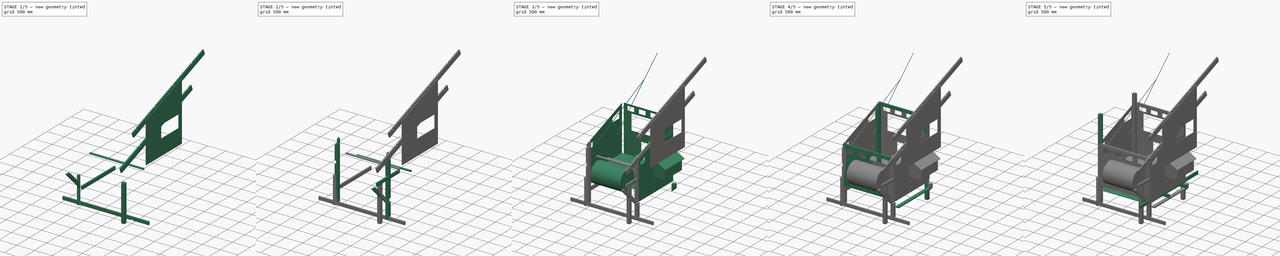
[diagram: build sequence overview — one tinted view per stage of 5, left to right]
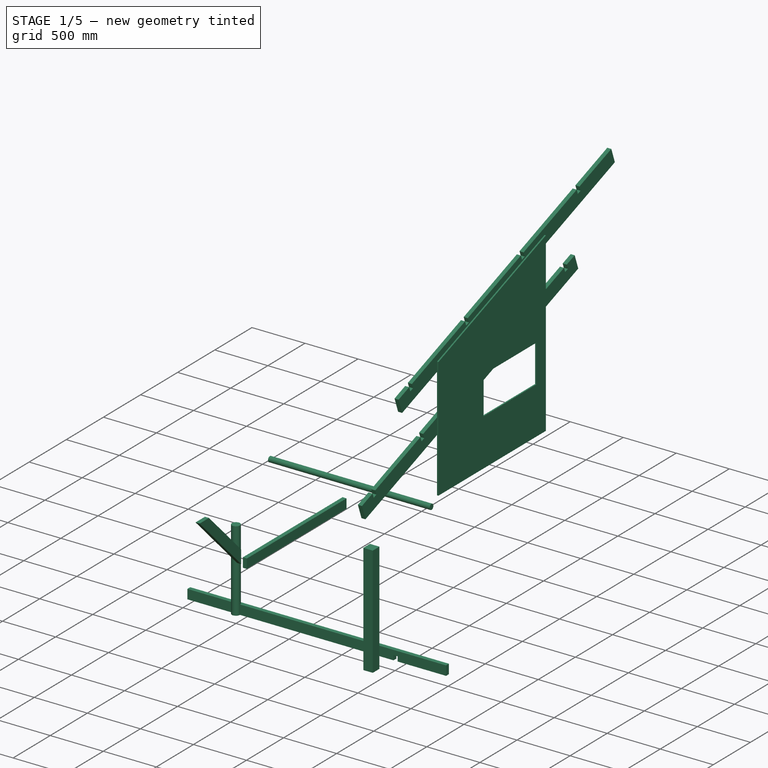
[diagram: stage 1 of 5 — iso view after this stage's code; geometry added in this stage tinted green]
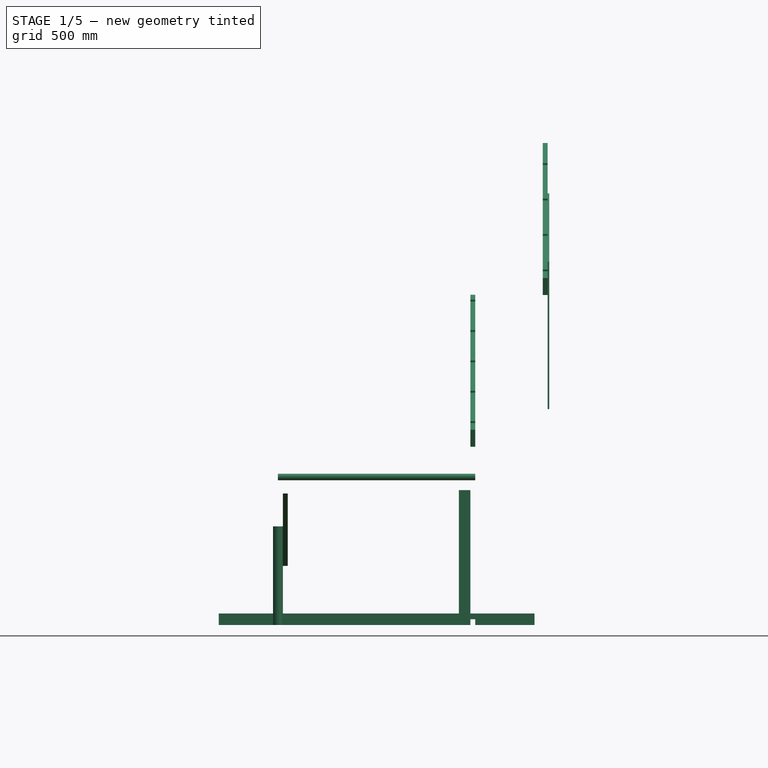
[diagram: stage 1 of 5 — front view after this stage's code; geometry added in this stage tinted green]
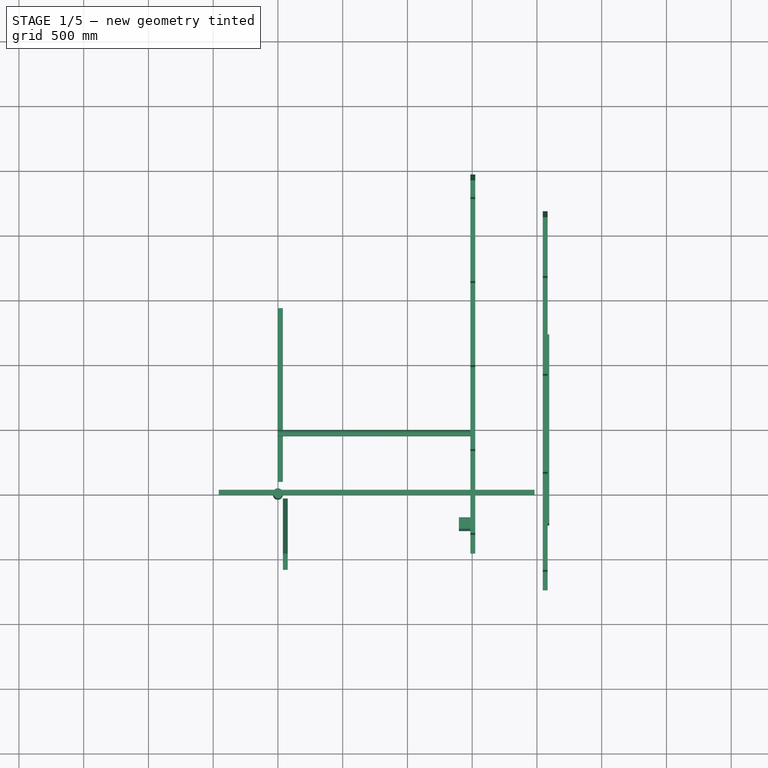
[diagram: stage 1 of 5 — top view after this stage's code; geometry added in this stage tinted green]
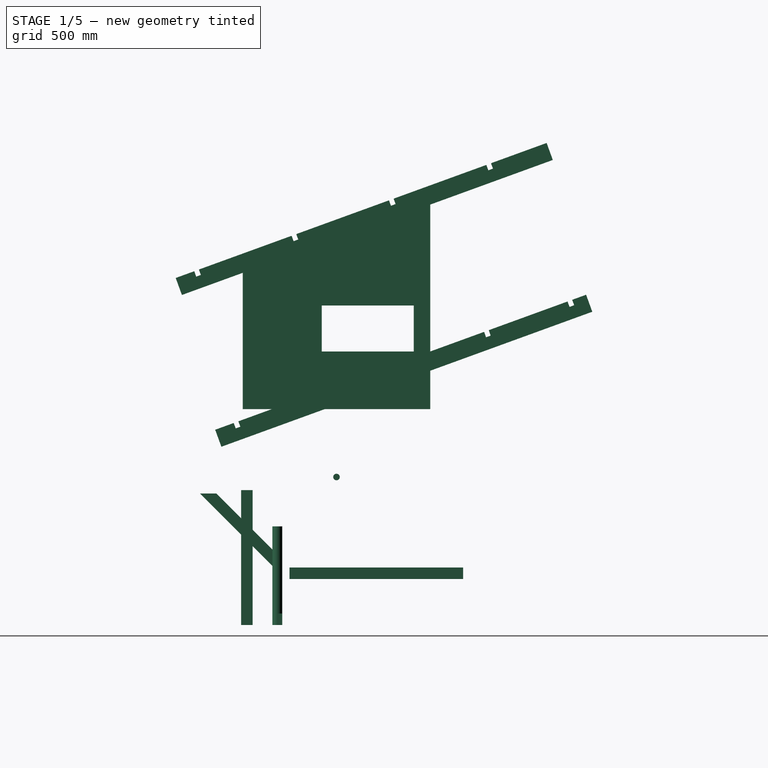
[diagram: stage 1 of 5 — right view after this stage's code; geometry added in this stage tinted green]
FCSTD DOCUMENT  (FreeCAD 0.16R)
Label: ChickenChalet
Comment: Define +y as North, then +x is East, -y is South, and -x is West.
License: CreativeCommons Attribution-NonCommercial-ShareAlike
LicenseURL: http://creativecommons.org/licenses/by-nc-sa/4.0/
objects: Drawing::FeatureViewPython×160, Sketcher::SketchObject×37, Drawing::FeatureViewPart×27, PartDesign::Pocket×26, Part::Box×22, Drawing::FeaturePage×14, PartDesign::Pad×11, Part::Mirroring×10, PartDesign::LinearPattern×4, Part::Cylinder×4, Part::Feature×3, Part::Compound×1
note: 155 computed .brp shape members not serialized (recipe doc carries the construction recipe); baked Part::Feature solids carry a one-line shape summary decoded from their .brp

FEATURE [Part::Box] Box004  label="SWpost003"
  Height = 2438.4
  Length = 88.9
  Width = 88.9
FEATURE [Part::Box] Box012  label="RoofBeamEast"
  Height = 139.7
  Length = 38.1
  Placement = pos=(0,-431.8,1376.68) rot=(1,0,0;0.349066rad)
  Width = 3048
FEATURE [Sketcher::SketchObject] Sketch015
  Placement = pos=(1524,0,0) rot=(0.57735,0.57735,0.57735;2.0944rad)
  sketch-geometry (8):
    g0: LineSegment StartX=38.1 StartY=495.3 StartZ=0 EndX=1485.9 EndY=495.3 EndZ=0
    g1: LineSegment StartX=1485.9 StartY=495.3 StartZ=0 EndX=1485.9 EndY=2161.02 EndZ=0
    g2: LineSegment StartX=1485.9 StartY=2161.02 StartZ=0 EndX=38.1 EndY=1634.06 EndZ=0
    g3: LineSegment StartX=38.1 StartY=1634.06 StartZ=0 EndX=38.1 EndY=495.3 EndZ=0
    g4: LineSegment StartX=647.7 StartY=1295.4 StartZ=0 EndX=1358.9 EndY=1295.4 EndZ=0
    g5: LineSegment StartX=1358.9 StartY=1295.4 StartZ=0 EndX=1358.9 EndY=939.8 EndZ=0
    g6: LineSegment StartX=1358.9 StartY=939.8 StartZ=0 EndX=647.7 EndY=939.8 EndZ=0
    g7: LineSegment StartX=647.7 StartY=939.8 StartZ=0 EndX=647.7 EndY=1295.4 EndZ=0
  constraints (24):
    c: Horizontal(g0)
    c: Coincident(g0,g1)
    c: Vertical(g1)
    c: Coincident(g1,g2)
    c: Coincident(g2,g3)
    c: Vertical(g3)
    c: Coincident(g0,g3)
    c: DistanceX(g0) = 38.1
    c: DistanceY(g0) = 495.3
    c: DistanceX(g0,g0) = 1447.8
    c: Angle(g0,g2) = 0.349066
    c: Coincident(g4,g5)
    c: Coincident(g5,g6)
    c: Coincident(g6,g7)
    c: Coincident(g7,g4)
    c: Horizontal(g4)
    c: Horizontal(g6)
    c: Vertical(g5)
    c: Vertical(g7)
    c: DistanceX(g6) = 647.7
    c: DistanceY(g6) = 939.8
    c: DistanceY(g5,g5) = 355.6
    c: DistanceX(g4,g4) = 711.2
    c: DistanceY(g1,g1) = 1665.72
FEATURE [PartDesign::Pad] Pad001
  Length = 12.7
  Length2 = 100
  Placement = pos=(1524,0,0) rot=(0.57735,0.57735,0.57735;2.0944rad)
  Sketch = -> Sketch015
  Type = 0
FEATURE [Part::Feature] Pad005001  label="Pad009"
  Placement = pos=(0,1003.3,0) rot=(1,0,0;1.5708rad)
  shape: bbox 355.6 x 12.7 x 510.1 mm, 6 faces (baked)
FEATURE [Part::Feature] Pad005001001  label="Pad010"
  Placement = pos=(0,1358.9,0) rot=(1,0,0;1.5708rad)
  shape: bbox 355.6 x 12.7 x 510.1 mm, 6 faces (baked)
FEATURE [Sketcher::SketchObject] Sketch031
  Placement = pos=(0,-431.8,1376.68) rot=(0.633687,-0.443713,-0.633687;2.30637rad)
  Support = -> Box012 [Face1]
  sketch-geometry (4):
    g0: LineSegment StartX=-152.4 StartY=139.7 StartZ=0 EndX=-190.5 EndY=139.7 EndZ=0
    g1: LineSegment StartX=-190.5 StartY=139.7 StartZ=0 EndX=-190.5 EndY=95.25 EndZ=0
    g2: LineSegment StartX=-190.5 StartY=95.25 StartZ=0 EndX=-152.4 EndY=95.25 EndZ=0
    g3: LineSegment StartX=-152.4 StartY=95.25 StartZ=0 EndX=-152.4 EndY=139.7 EndZ=0
  constraints (12):
    c: Coincident(g0,g1)
    c: Coincident(g1,g2)
    c: Coincident(g2,g3)
    c: Coincident(g3,g0)
    c: Horizontal(g0)
    c: Horizontal(g2)
    c: Vertical(g1)
    c: Vertical(g3)
    c: DistanceX(g2,g2) = 38.1
    c: DistanceY(g3,g3) = 44.45
    c: DistanceY(g-1,g0) = 139.7
    c: DistanceX(g2,g-1) = 152.4
FEATURE [PartDesign::Pocket] Pocket022
  Length = 4.99999
  Placement = pos=(0,-431.8,1376.68) rot=(1,0,0;0.349066rad)
  Sketch = -> Sketch031
  Type = 1
FEATURE [PartDesign::LinearPattern] LinearPattern002
  Direction = -> Sketch031 [H_Axis]
  Length = 2400.3
  Occurrences = 4
  Originals = -> [Pocket022]
  Placement = pos=(0,-431.8,1376.68) rot=(1,0,0;0.349066rad)
  Reversed = true
FEATURE [Part::Mirroring] Part__Mirroring005  label="LinearPattern002 (Mirror #6)"
  Base = (762,0,0)
  Normal = (1,0,0)
  Source = -> LinearPattern002
FEATURE [Sketcher::SketchObject] Sketch035
  Placement = pos=(38.1,0,0) rot=(0.57735,0.57735,0.57735;2.0944rad)
  sketch-geometry (4):
    g0: LineSegment StartX=-596.9 StartY=1016 StartZ=0 EndX=-471.176 EndY=1016 EndZ=0
    g1: LineSegment StartX=-471.176 StartY=1016 StartZ=0 EndX=-38.1 EndY=582.924 EndZ=0
    g2: LineSegment StartX=-38.1 StartY=582.924 StartZ=0 EndX=-38.1 EndY=457.2 EndZ=0
    g3: LineSegment StartX=-38.1 StartY=457.2 StartZ=0 EndX=-596.9 EndY=1016 EndZ=0
  constraints (12):
    c: Horizontal(g0)
    c: Coincident(g0,g1)
    c: Coincident(g1,g2)
    c: Vertical(g2)
    c: Coincident(g3,g0)
    c: Distance(g0,g3) = 88.9
    c: Angle(g3,g0) = 0.785398
    c: Parallel(g1,g3)
    c: DistanceY(g-1,g0) = 1016
    c: DistanceX(g2) = -38.1
    c: DistanceY(g2) = 457.2
    c: Coincident(g2,g3)
FEATURE [PartDesign::Pad] Pad005001003
  Length = 38.1
  Length2 = 100
  Placement = pos=(38.1,0,0) rot=(0.57735,0.57735,0.57735;2.0944rad)
  Sketch = -> Sketch035
  Type = 0
FEATURE [Part::Box] Box017003  label="Cube004"
  Height = 1041.4
  Length = 88.9
  Placement = pos=(1397,-279.4,0) rot=(0,0,1;0rad)
  Width = 88.9
FEATURE [Part::Cylinder] Cylinder001  label="Perch1"
  Angle = 360
  Height = 1524
  Placement = pos=(0,457.2,1143) rot=(0,1,0;1.5708rad)
  Radius = 25.4
FEATURE [Part::Compound] Compound  label="Rainbarrel+Stand"
  Links = -> [Part__Mirroring005,Pad001,Sketch001]
  Placement = pos=(558.79,-304.8,1171.99) rot=(0,0,1;0rad)
FEATURE [PartDesign::LinearPattern] LinearPattern003
  Direction = -> Sketch031 [H_Axis]
  Length = 2743.2
  Occurrences = 5
  Originals = -> [Pocket022]
  Placement = pos=(0,-431.8,1376.68) rot=(1,0,0;0.349066rad)
  Reversed = true
FEATURE [Part::Mirroring] Part__Mirroring009  label="LinearPattern003 (Mirror #10)"
  Base = (762,0,0)
  Normal = (1,0,0)
  Source = -> LinearPattern003
FEATURE [Part::Box] Box017004  label="Cube005"
  Height = 88.9
  Length = 2438.4
  Placement = pos=(-457.2,0,0) rot=(0,0,1;0rad)
  Width = 38.1
FEATURE [Part::Box] Box017005  label="FloorBraceEast"
  Height = 88.9
  Length = 38.1
  Placement = pos=(0,93.98,355.6) rot=(0,0,1;0rad)
  Width = 1341.12
FEATURE [Sketcher::SketchObject] Sketch036
  Placement = pos=(-457.2,0,0) rot=(1,0,0;1.5708rad)
  Support = -> Box017004 [Face3]
  sketch-geometry (8):
    g0: LineSegment StartX=457.2 StartY=0 StartZ=0 EndX=495.3 EndY=0 EndZ=0
    g1: LineSegment StartX=495.3 StartY=0 StartZ=0 EndX=495.3 EndY=44.45 EndZ=0
    g2: LineSegment StartX=495.3 StartY=44.45 StartZ=0 EndX=457.2 EndY=44.45 EndZ=0
    g3: LineSegment StartX=457.2 StartY=44.45 StartZ=0 EndX=457.2 EndY=0 EndZ=0
    g4: LineSegment StartX=1981.2 StartY=0 StartZ=0 EndX=1943.1 EndY=0 EndZ=0
    g5: LineSegment StartX=1943.1 StartY=0 StartZ=0 EndX=1943.1 EndY=44.45 EndZ=0
    g6: LineSegment StartX=1943.1 StartY=44.45 StartZ=0 EndX=1981.2 EndY=44.45 EndZ=0
    g7: LineSegment StartX=1981.2 StartY=44.45 StartZ=0 EndX=1981.2 EndY=0 EndZ=0
  constraints (24):
    c: Coincident(g0,g1)
    c: Coincident(g1,g2)
    c: Coincident(g2,g3)
    c: Coincident(g3,g0)
    c: Horizontal(g0)
    c: Horizontal(g2)
    c: Vertical(g1)
    c: Vertical(g3)
    c: Coincident(g4,g5)
    c: Coincident(g5,g6)
    c: Coincident(g6,g7)
    c: Coincident(g7,g4)
    c: Horizontal(g4)
    c: Horizontal(g6)
    c: Vertical(g5)
    c: Vertical(g7)
    c: DistanceX(g0,g4) = 1524
    c: DistanceX(g2,g2) = 38.1
    c: DistanceY(g1,g1) = 44.45
    c: Equal(g1,g5)
    c: Equal(g6,g2)
    c: PointOnObject(g4,g-1)
    c: DistanceX(g0) = 457.2
    c: DistanceY(g0) = 0
FEATURE [PartDesign::Pocket] Pocket025  label="RoofBeam"
  Length = 4.99999
  Placement = pos=(-457.2,0,0) rot=(0,0,1;0rad)
  Sketch = -> Sketch036
  Type = 1
FEATURE [Drawing::FeatureViewPart] Ortho  label="Ortho_0_0"
  Direction = (0,1,0)
  HiddenWidth = 0.15
  LineWidth = 0.35
  Rotation = 0
  Scale = 0.125
  ShowHiddenLines = true
  ShowSmoothLines = false
  Source = -> Pocket023
  Tolerance = 0.05
  ViewResult = <blob: 2364 chars omitted>
  Visible = true
  X = 68.8124
  Y = 341.462
FEATURE [Drawing::FeatureViewPart] Ortho001  label="Ortho_1_0"
  Direction = (0,0,1)
  HiddenWidth = 0.15
  LineWidth = 0.35
  Rotation = -90
  Scale = 0.125
  ShowHiddenLines = true
  ShowSmoothLines = false
  Source = -> Pocket023
  Tolerance = 0.05
  ViewResult = <blob: 2074 chars omitted>
  Visible = true
  X = 351.188
  Y = 341.462
FEATURE [Drawing::FeatureViewPart] Ortho002  label="Ortho_0_1"
  Direction = (1,0,0)
  HiddenWidth = 0.15
  LineWidth = 0.35
  Rotation = 0
  Scale = 0.125
  ShowHiddenLines = true
  ShowSmoothLines = false
  Source = -> Pocket023
  Tolerance = 0.05
  ViewResult = <blob: 2107 chars omitted>
  Visible = true
  X = 68.8124
  Y = 74.925
FEATURE [Drawing::FeatureViewPart] Ortho003  label="Ortho_1_1"
  Direction = (0.57735,0.57735,0.57735)
  HiddenWidth = 0.15
  LineWidth = 0.35
  Rotation = -120
  Scale = 0.125
  ShowHiddenLines = true
  ShowSmoothLines = false
  Source = -> Pocket023
  Tolerance = 0.05
  ViewResult = <blob: 3614 chars omitted>
  Visible = true
  X = 274.448
  Y = 185.853
FEATURE [Drawing::FeatureViewPython] dimStack003  # drawing view (typed FeaturePython)
  Rotation = 0
  ViewResult = <g> <line x1="125.962400" y1="72.924999" x2="125.962400" y2="44.440474" style="stroke:rgb(0,0,255);stroke-width:0.30" />\n<line x1="137.074900" y1="72.924999" x2="137.074900" y2="44.440474" style="stroke:rgb(0,0,255);stroke-width:0.30" />\n<line x1="125.962400" y1="45.440474" x2="137.074900" y2="45.440474" style="stroke:rgb(0,0,255);stroke-width:0.30" />\n<polygon points="125.962400,45.440474 128.962400,46.190474 129.962400,45.440474 128.962400,44.690474" style="fill:rgb(0,0,255);stroke:rgb(0,0,255);stroke-width:0" />\n<polygon points="137.074900,45.440474 134.074900,44.690474 133.074900,45.440474 134.074900,46.190474" style="fill:rgb(0,0,255);stroke:rgb(0,0,255);stroke-width:0" />\n<text x="131.518650" y="43.440474" font-family="inherit" font-size="3.6" fill="rgb(0,0,255)" text-anchor="middle" transform="rotate(0.000000 131.518650,43.440474)" >3.5</text> </g> 
  Visible = true
  X = 0
  Y = 0
  arrowL1 = 3
  arrowL2 = 1
  arrowW = 1.5
  arrow_scheme = 0
  autoPlaceOffset = 2
  click1_x = 134.744
  click1_y = 45.4405
  comma_decimal_place = false
  dimension_line_overshoot = 1
  gap_datum_points = 2
  lineColor = rgb(0,0,255)
  stack_offset = 7
  stack_offset0 = 0
  strokeWidth = 0.3
  textFormat_linear = %(value)3.3f
  textRenderer_color = rgb(0,0,255)
  textRenderer_family = inherit
  textRenderer_size = 3.6
  unit_custom_scale = 1
  unit_scheme = 2
FEATURE [Drawing::FeatureViewPython] dimStack004  # drawing view (typed FeaturePython)
  Rotation = 0
  ViewResult = <g> <line x1="68.812400" y1="88.037501" x2="68.812400" y2="196.962044" style="stroke:rgb(0,0,255);stroke-width:0.30" />\n<line x1="198.987400" y1="88.037501" x2="198.987400" y2="196.962044" style="stroke:rgb(0,0,255);stroke-width:0.30" />\n<line x1="68.812400" y1="195.962044" x2="198.987400" y2="195.962044" style="stroke:rgb(0,0,255);stroke-width:0.30" />\n<polygon points="68.812400,195.962044 71.812400,196.712044 72.812400,195.962044 71.812400,195.212044" style="fill:rgb(0,0,255);stroke:rgb(0,0,255);stroke-width:0" />\n<polygon points="198.987400,195.962044 195.987400,195.212044 194.987400,195.962044 195.987400,196.712044" style="fill:rgb(0,0,255);stroke:rgb(0,0,255);stroke-width:0" />\n<text x="133.899900" y="193.962044" font-family="inherit" font-size="3.6" fill="rgb(0,0,255)" text-anchor="middle" transform="rotate(0.000000 133.899900,193.962044)" >41</text> </g> 
  Visible = true
  X = 0
  Y = 0
  arrowL1 = 3
  arrowL2 = 1
  arrowW = 1.5
  arrow_scheme = 0
  autoPlaceOffset = 2
  click1_x = 127.17
  click1_y = 195.962
  comma_decimal_place = false
  dimension_line_overshoot = 1
  gap_datum_points = 2
  lineColor = rgb(0,0,255)
  stack_offset = 7
  stack_offset0 = 0
  strokeWidth = 0.3
  textFormat_linear = %(value)3.3f
  textRenderer_color = rgb(0,0,255)
  textRenderer_family = inherit
  textRenderer_size = 3.6
  unit_custom_scale = 1
  unit_scheme = 2
FEATURE [Drawing::FeatureViewPython] dimStack005  # drawing view (typed FeaturePython)
  Rotation = 0
  ViewResult = <g> <line x1="198.987400" y1="72.924999" x2="198.987400" y2="44.440474" style="stroke:rgb(0,0,255);stroke-width:0.30" />\n<line x1="210.099900" y1="72.924999" x2="210.099900" y2="44.440474" style="stroke:rgb(0,0,255);stroke-width:0.30" />\n<line x1="198.987400" y1="45.440474" x2="210.099900" y2="45.440474" style="stroke:rgb(0,0,255);stroke-width:0.30" />\n<polygon points="198.987400,45.440474 201.987400,46.190474 202.987400,45.440474 201.987400,44.690474" style="fill:rgb(0,0,255);stroke:rgb(0,0,255);stroke-width:0" />\n<polygon points="210.099900,45.440474 207.099900,44.690474 206.099900,45.440474 207.099900,46.190474" style="fill:rgb(0,0,255);stroke:rgb(0,0,255);stroke-width:0" />\n<text x="204.543650" y="43.440474" font-family="inherit" font-size="3.6" fill="rgb(0,0,255)" text-anchor="middle" transform="rotate(0.000000 204.543650,43.440474)" >3.5</text> </g> 
  Visible = true
  X = 0
  Y = 0
  arrowL1 = 3
  arrowL2 = 1
  arrowW = 1.5
  arrow_scheme = 0
  autoPlaceOffset = 2
  click1_x = 205.744
  click1_y = 45.4405
  comma_decimal_place = false
  dimension_line_overshoot = 1
  gap_datum_points = 2
  lineColor = rgb(0,0,255)
  stack_offset = 7
  stack_offset0 = 0
  strokeWidth = 0.3
  textFormat_linear = %(value)3.3f
  textRenderer_color = rgb(0,0,255)
  textRenderer_family = inherit
  textRenderer_size = 3.6
  unit_custom_scale = 1
  unit_scheme = 2
FEATURE [Drawing::FeatureViewPython] dimStack006  # drawing view (typed FeaturePython)
  Rotation = 0
  ViewResult = <g> <line x1="123.962399" y1="155.724500" x2="37.813738" y2="155.724500" style="stroke:rgb(0,0,255);stroke-width:0.30" />\n<line x1="123.962399" y1="150.962000" x2="37.813738" y2="150.962000" style="stroke:rgb(0,0,255);stroke-width:0.30" />\n<line x1="38.813738" y1="155.724500" x2="38.813738" y2="150.962000" style="stroke:rgb(0,0,255);stroke-width:0.30" />\n<polygon points="38.813738,155.724500 38.063738,158.724500 38.813738,159.724500 39.563738,158.724500" style="fill:rgb(0,0,255);stroke:rgb(0,0,255);stroke-width:0" />\n<polygon points="38.813738,150.962000 39.563738,147.962000 38.813738,146.962000 38.063738,147.962000" style="fill:rgb(0,0,255);stroke:rgb(0,0,255);stroke-width:0" />\n<text x="36.813738" y="153.343250" font-family="inherit" font-size="3.6" fill="rgb(0,0,255)" text-anchor="middle" transform="rotate(-90.000000 36.813738,153.343250)" >1.5</text> </g> 
  Visible = true
  X = 0
  Y = 0
  arrowL1 = 3
  arrowL2 = 1
  arrowW = 1.5
  arrow_scheme = 0
  autoPlaceOffset = 2
  click1_x = 38.8137
  click1_y = 148.628
  comma_decimal_place = false
  dimension_line_overshoot = 1
  gap_datum_points = 2
  lineColor = rgb(0,0,255)
  stack_offset = 7
  stack_offset0 = 0
  strokeWidth = 0.3
  textFormat_linear = %(value)3.3f
  textRenderer_color = rgb(0,0,255)
  textRenderer_family = inherit
  textRenderer_size = 3.6
  unit_custom_scale = 1
  unit_scheme = 2
FEATURE [Drawing::FeatureViewPython] dimStack007  # drawing view (typed FeaturePython)
  Rotation = 0
  ViewResult = <g> <line x1="259.756150" y1="72.924999" x2="259.756150" y2="22.351355" style="stroke:rgb(0,0,255);stroke-width:0.30" />\n<line x1="68.812400" y1="72.924999" x2="68.812400" y2="22.351355" style="stroke:rgb(0,0,255);stroke-width:0.30" />\n<line x1="259.756150" y1="23.351355" x2="68.812400" y2="23.351355" style="stroke:rgb(0,0,255);stroke-width:0.30" />\n<polygon points="259.756150,23.351355 256.756150,22.601355 255.756150,23.351355 256.756150,24.101355" style="fill:rgb(0,0,255);stroke:rgb(0,0,255);stroke-width:0" />\n<polygon points="68.812400,23.351355 71.812400,24.101355 72.812400,23.351355 71.812400,22.601355" style="fill:rgb(0,0,255);stroke:rgb(0,0,255);stroke-width:0" />\n<text x="164.284275" y="21.351355" font-family="inherit" font-size="3.6" fill="rgb(0,0,255)" text-anchor="middle" transform="rotate(0.000000 164.284275,21.351355)" >60.14</text> </g> 
  Visible = true
  X = 0
  Y = 0
  arrowL1 = 3
  arrowL2 = 1
  arrowW = 1.5
  arrow_scheme = 0
  autoPlaceOffset = 2
  click1_x = 224.362
  click1_y = 23.3514
  comma_decimal_place = false
  dimension_line_overshoot = 1
  gap_datum_points = 2
  lineColor = rgb(0,0,255)
  stack_offset = 7
  stack_offset0 = 0
  strokeWidth = 0.3
  textFormat_linear = %(value)3.3f
  textRenderer_color = rgb(0,0,255)
  textRenderer_family = inherit
  textRenderer_size = 3.6
  unit_custom_scale = 1
  unit_scheme = 2
FEATURE [Drawing::FeatureViewPython] dimStack008  # drawing view (typed FeaturePython)
  Rotation = 0
  ViewResult = <g> <line x1="263.801150" y1="88.037501" x2="263.801150" y2="226.624576" style="stroke:rgb(0,0,255);stroke-width:0.30" />\n<line x1="68.812400" y1="88.037501" x2="68.812400" y2="226.624576" style="stroke:rgb(0,0,255);stroke-width:0.30" />\n<line x1="263.801150" y1="225.624576" x2="68.812400" y2="225.624576" style="stroke:rgb(0,0,255);stroke-width:0.30" />\n<polygon points="263.801150,225.624576 260.801150,224.874576 259.801150,225.624576 260.801150,226.374576" style="fill:rgb(0,0,255);stroke:rgb(0,0,255);stroke-width:0" />\n<polygon points="68.812400,225.624576 71.812400,226.374576 72.812400,225.624576 71.812400,224.874576" style="fill:rgb(0,0,255);stroke:rgb(0,0,255);stroke-width:0" />\n<text x="166.306775" y="223.624576" font-family="inherit" font-size="3.6" fill="rgb(0,0,255)" text-anchor="middle" transform="rotate(0.000000 166.306775,223.624576)" >61.414</text> </g> 
  Visible = true
  X = 0
  Y = 0
  arrowL1 = 3
  arrowL2 = 1
  arrowW = 1.5
  arrow_scheme = 0
  autoPlaceOffset = 2
  click1_x = 176.397
  click1_y = 225.625
  comma_decimal_place = false
  dimension_line_overshoot = 1
  gap_datum_points = 2
  lineColor = rgb(0,0,255)
  stack_offset = 7
  stack_offset0 = 0
  strokeWidth = 0.3
  textFormat_linear = %(value)3.3f
  textRenderer_color = rgb(0,0,255)
  textRenderer_family = inherit
  textRenderer_size = 3.6
  unit_custom_scale = 1
  unit_scheme = 2
FEATURE [Drawing::FeatureViewPython] dimStack009  # drawing view (typed FeaturePython)
  Rotation = 0
  ViewResult = <g> <line x1="280.951151" y1="79.687500" x2="294.785287" y2="79.687500" style="stroke:rgb(0,0,255);stroke-width:0.30" />\n<line x1="268.058651" y1="74.925000" x2="294.785287" y2="74.925000" style="stroke:rgb(0,0,255);stroke-width:0.30" />\n<line x1="293.785287" y1="79.687500" x2="293.785287" y2="74.925000" style="stroke:rgb(0,0,255);stroke-width:0.30" />\n<polygon points="293.785287,79.687500 293.035287,82.687500 293.785287,83.687500 294.535287,82.687500" style="fill:rgb(0,0,255);stroke:rgb(0,0,255);stroke-width:0" />\n<polygon points="293.785287,74.925000 294.535287,71.925000 293.785287,70.925000 293.035287,71.925000" style="fill:rgb(0,0,255);stroke:rgb(0,0,255);stroke-width:0" />\n<text x="291.785287" y="77.306250" font-family="inherit" font-size="3.6" fill="rgb(0,0,255)" text-anchor="middle" transform="rotate(-90.000000 291.785287,77.306250)" >1.5</text> </g> 
  Visible = true
  X = 0
  Y = 0
  arrowL1 = 3
  arrowL2 = 1
  arrowW = 1.5
  arrow_scheme = 0
  autoPlaceOffset = 2
  click1_x = 293.785
  click1_y = 75.7341
  comma_decimal_place = false
  dimension_line_overshoot = 1
  gap_datum_points = 2
  lineColor = rgb(0,0,255)
  stack_offset = 7
  stack_offset0 = 0
  strokeWidth = 0.3
  textFormat_linear = %(value)3.3f
  textRenderer_color = rgb(0,0,255)
  textRenderer_family = inherit
  textRenderer_size = 3.6
  unit_custom_scale = 1
  unit_scheme = 2
FEATURE [Drawing::FeatureViewPython] dimStack010  # drawing view (typed FeaturePython)
  Rotation = 0
  ViewResult = <g> <line x1="278.951150" y1="77.687499" x2="278.951150" y2="63.689564" style="stroke:rgb(0,0,255);stroke-width:0.30" />\n<line x1="266.058650" y1="72.924999" x2="266.058650" y2="63.689564" style="stroke:rgb(0,0,255);stroke-width:0.30" />\n<line x1="278.951150" y1="64.689564" x2="266.058650" y2="64.689564" style="stroke:rgb(0,0,255);stroke-width:0.30" />\n<polygon points="278.951150,64.689564 275.951150,63.939564 274.951150,64.689564 275.951150,65.439564" style="fill:rgb(0,0,255);stroke:rgb(0,0,255);stroke-width:0" />\n<polygon points="266.058650,64.689564 269.058650,65.439564 270.058650,64.689564 269.058650,63.939564" style="fill:rgb(0,0,255);stroke:rgb(0,0,255);stroke-width:0" />\n<text x="272.504900" y="62.689564" font-family="inherit" font-size="3.6" fill="rgb(0,0,255)" text-anchor="middle" transform="rotate(0.000000 272.504900,62.689564)" >4.061</text> </g> 
  Visible = true
  X = 0
  Y = 0
  arrowL1 = 3
  arrowL2 = 1
  arrowW = 1.5
  arrow_scheme = 0
  autoPlaceOffset = 2
  click1_x = 267.594
  click1_y = 64.6896
  comma_decimal_place = false
  dimension_line_overshoot = 1
  gap_datum_points = 2
  lineColor = rgb(0,0,255)
  stack_offset = 7
  stack_offset0 = 0
  strokeWidth = 0.3
  textFormat_linear = %(value)3.3f
  textRenderer_color = rgb(0,0,255)
  textRenderer_family = inherit
  textRenderer_size = 3.6
  unit_custom_scale = 1
  unit_scheme = 2
FEATURE [Drawing::FeatureViewPython] dimStack011  # drawing view (typed FeaturePython)
  Rotation = 0
  ViewResult = <g> <line x1="266.058650" y1="76.925001" x2="266.058650" y2="210.999019" style="stroke:rgb(0,0,255);stroke-width:0.30" />\n<line x1="68.812400" y1="76.925001" x2="68.812400" y2="210.999019" style="stroke:rgb(0,0,255);stroke-width:0.30" />\n<line x1="266.058650" y1="209.999019" x2="68.812400" y2="209.999019" style="stroke:rgb(0,0,255);stroke-width:0.30" />\n<polygon points="266.058650,209.999019 263.058650,209.249019 262.058650,209.999019 263.058650,210.749019" style="fill:rgb(0,0,255);stroke:rgb(0,0,255);stroke-width:0" />\n<polygon points="68.812400,209.999019 71.812400,210.749019 72.812400,209.999019 71.812400,209.249019" style="fill:rgb(0,0,255);stroke:rgb(0,0,255);stroke-width:0" />\n<text x="167.435525" y="207.999019" font-family="inherit" font-size="3.6" fill="rgb(0,0,255)" text-anchor="middle" transform="rotate(0.000000 167.435525,207.999019)" >62.125</text> </g> 
  Visible = true
  X = 0
  Y = 0
  arrowL1 = 3
  arrowL2 = 1
  arrowW = 1.5
  arrow_scheme = 0
  autoPlaceOffset = 2
  click1_x = 161.892
  click1_y = 209.999
  comma_decimal_place = false
  dimension_line_overshoot = 1
  gap_datum_points = 2
  lineColor = rgb(0,0,255)
  stack_offset = 7
  stack_offset0 = 0
  strokeWidth = 0.3
  textFormat_linear = %(value)3.3f
  textRenderer_color = rgb(0,0,255)
  textRenderer_family = inherit
  textRenderer_size = 3.6
  unit_custom_scale = 1
  unit_scheme = 2
FEATURE [Drawing::FeatureViewPython] dim001  # drawing view (typed FeaturePython)
  Rotation = 0
  ViewResult = <g> <path d = "M 262.685814 82.973429 A 8.565053 8.565053 0 0 1 251.191097 74.925000" style="stroke:rgb(0,0,255);stroke-width:0.30;fill:none" />\n<polygon points="262.685814,82.973429 259.610231,83.294813 258.927085,84.341623 260.123304,84.704336" style="fill:rgb(0,0,255);stroke:rgb(0,0,255);stroke-width:0" />\n<polygon points="251.191097,74.925000 250.441097,77.925000 251.191097,78.925000 251.941097,77.925000" style="fill:rgb(0,0,255);stroke:rgb(0,0,255);stroke-width:0" />\n<text x="242.262243" y="83.538705" font-family="inherit" font-size="3.6" fill="rgb(0,0,255)" text-anchor="2.68405709128"  >110.0°</text> </g>
  Visible = true
  X = 0
  Y = 0
  arrowL1 = 3
  arrowL2 = 1
  arrowW = 1.5
  arrow_scheme = 0
  click1_x = 252.345
  click1_y = 79.2177
  click2_x = 242.262
  click2_y = 83.5387
  comma_decimal_place = false
  dimension_line_overshoot = 1
  gap_datum_points = 2
  lineColor = rgb(0,0,255)
  strokeWidth = 0.3
  textFormat_angular = %(value)3.1f°
  textRenderer_color = rgb(0,0,255)
  textRenderer_family = inherit
  textRenderer_size = 3.6
FEATURE [Drawing::FeatureViewPython] dim002  # drawing view (typed FeaturePython)
  Rotation = 0
  ViewResult = <g> <path d = "M 273.505891 79.687500 A 5.445259 5.445259 0 0 0 280.813566 84.804359" style="stroke:rgb(0,0,255);stroke-width:0.30;fill:none" />\n<polygon points="273.505891,79.687500 272.755891,82.687500 273.505891,83.687500 274.255891,82.687500" style="fill:rgb(0,0,255);stroke:rgb(0,0,255);stroke-width:0" />\n<polygon points="280.813566,84.804359 277.737975,85.125667 277.054803,86.172460 278.251013,86.535203" style="fill:rgb(0,0,255);stroke:rgb(0,0,255);stroke-width:0" />\n<text x="280.574821" y="84.114834" font-family="inherit" font-size="3.6" fill="rgb(0,0,255)" text-anchor="1.21928866276"  >110.0°</text> </g>
  Visible = true
  X = 0
  Y = 0
  arrowL1 = 3
  arrowL2 = 1
  arrowW = 1.5
  arrow_scheme = 0
  click1_x = 275.102
  click1_y = 83.5387
  click2_x = 280.575
  click2_y = 84.1148
  comma_decimal_place = false
  dimension_line_overshoot = 1
  gap_datum_points = 2
  lineColor = rgb(0,0,255)
  strokeWidth = 0.3
  textFormat_angular = %(value)3.1f°
  textRenderer_color = rgb(0,0,255)
  textRenderer_family = inherit
  textRenderer_size = 3.6
FEATURE [Drawing::FeatureViewPython] dim003  # drawing view (typed FeaturePython)
  Rotation = 0
  ViewResult = <g> \n  <line x1="281.262400" y1="88.037500" x2="281.262400" y2="108.290008" style="stroke:rgb(0,0,255);stroke-width:0.30" />\n<line x1="68.812400" y1="88.037500" x2="68.812400" y2="108.290008" style="stroke:rgb(0,0,255);stroke-width:0.30" />\n<line x1="281.262400" y1="107.290008" x2="68.812400" y2="107.290008" style="stroke:rgb(0,0,255);stroke-width:0.30" /> \n  <polygon points="68.812400,107.290008 71.812400,108.040008 72.812400,107.290008 71.812400,106.540008" style="fill:rgb(0,0,255);stroke:rgb(0,0,255);stroke-width:0" /><polygon points="281.262400,107.290008 278.262400,106.540008 277.262400,107.290008 278.262400,108.040008" style="fill:rgb(0,0,255);stroke:rgb(0,0,255);stroke-width:0" /> \n  <text x="175.037400" y="105.290008" font-family="inherit" font-size="3.6" fill="rgb(0,0,255)" text-anchor="middle" transform="rotate(0.000000 175.037400,105.290008)" >66.913</text> </g>
  Visible = true
  X = 0
  Y = 0
  arrowL1 = 3
  arrowL2 = 1
  arrowW = 1.5
  arrow_scheme = 0
  autoPlaceOffset = 2
  autoPlaceText = true
  click1_x = 139.793
  click1_y = 107.29
  click2_x = 139.793
  click2_y = 107.29
  comma_decimal_place = false
  dimension_line_overshoot = 1
  gap_datum_points = 2
  halfDimension_linear = false
  lineColor = rgb(0,0,255)
  strokeWidth = 0.3
  textFormat_linear = %(value)3.3f
  textRenderer_color = rgb(0,0,255)
  textRenderer_family = inherit
  textRenderer_size = 3.6
  unit_custom_scale = 1
  unit_scheme = 2
FEATURE [Drawing::FeatureViewPython] dim004  # drawing view (typed FeaturePython)
  Rotation = 0
  ViewResult = <g> \n  <line x1="68.812400" y1="72.925000" x2="68.812400" y2="46.649386" style="stroke:rgb(0,0,255);stroke-width:0.30" />\n<line x1="125.962400" y1="72.925000" x2="125.962400" y2="46.649386" style="stroke:rgb(0,0,255);stroke-width:0.30" />\n<line x1="68.812400" y1="47.649386" x2="125.962400" y2="47.649386" style="stroke:rgb(0,0,255);stroke-width:0.30" /> \n  <polygon points="125.962400,47.649386 122.962400,46.899386 121.962400,47.649386 122.962400,48.399386" style="fill:rgb(0,0,255);stroke:rgb(0,0,255);stroke-width:0" /><polygon points="68.812400,47.649386 71.812400,48.399386 72.812400,47.649386 71.812400,46.899386" style="fill:rgb(0,0,255);stroke:rgb(0,0,255);stroke-width:0" /> \n  <text x="97.387400" y="45.649386" font-family="inherit" font-size="3.6" fill="rgb(0,0,255)" text-anchor="middle" transform="rotate(0.000000 97.387400,45.649386)" >18</text> </g>
  Visible = true
  X = 0
  Y = 0
  arrowL1 = 3
  arrowL2 = 1
  arrowW = 1.5
  arrow_scheme = 0
  autoPlaceOffset = 2
  autoPlaceText = true
  click1_x = 101.61
  click1_y = 47.6494
  click2_x = 101.61
  click2_y = 47.6494
  comma_decimal_place = false
  dimension_line_overshoot = 1
  gap_datum_points = 2
  halfDimension_linear = false
  lineColor = rgb(0,0,255)
  strokeWidth = 0.3
  textFormat_linear = %(value)3.3f
  textRenderer_color = rgb(0,0,255)
  textRenderer_family = inherit
  textRenderer_size = 3.6
  unit_custom_scale = 1
  unit_scheme = 2
FEATURE [Drawing::FeatureViewPython] dim005  # drawing view (typed FeaturePython)
  Rotation = 0
  ViewResult = <g> \n  <line x1="283.262400" y1="155.724500" x2="297.309758" y2="155.724500" style="stroke:rgb(0,0,255);stroke-width:0.30" />\n<line x1="265.801150" y1="150.962000" x2="297.309758" y2="150.962000" style="stroke:rgb(0,0,255);stroke-width:0.30" />\n<line x1="296.309758" y1="155.724500" x2="296.309758" y2="150.962000" style="stroke:rgb(0,0,255);stroke-width:0.30" /> \n  <polygon points="296.309758,150.962000 297.059758,147.962000 296.309758,146.962000 295.559758,147.962000" style="fill:rgb(0,0,255);stroke:rgb(0,0,255);stroke-width:0" /><polygon points="296.309758,155.724500 295.559758,158.724500 296.309758,159.724500 297.059758,158.724500" style="fill:rgb(0,0,255);stroke:rgb(0,0,255);stroke-width:0" /> \n  <text x="294.309758" y="153.343250" font-family="inherit" font-size="3.6" fill="rgb(0,0,255)" text-anchor="middle" transform="rotate(-90.000000 294.309758,153.343250)" >1.5</text> </g>
  Visible = true
  X = 0
  Y = 0
  arrowL1 = 3
  arrowL2 = 1
  arrowW = 1.5
  arrow_scheme = 0
  autoPlaceOffset = 2
  autoPlaceText = true
  click1_x = 296.31
  click1_y = 151.784
  click2_x = 296.31
  click2_y = 151.784
  comma_decimal_place = false
  dimension_line_overshoot = 1
  gap_datum_points = 2
  halfDimension_linear = false
  lineColor = rgb(0,0,255)
  strokeWidth = 0.3
  textFormat_linear = %(value)3.3f
  textRenderer_color = rgb(0,0,255)
  textRenderer_family = inherit
  textRenderer_size = 3.6
  unit_custom_scale = 1
  unit_scheme = 2
FEATURE [Drawing::FeaturePage] Page  label="NorthWestPost"
  EditableTexts = William Ryan | May 2019 | SUPERVISOR NAME | CHECK DATE | inches | WEIGHT | NUMBER | SHEET | North West Post | Part of DinoHome Modern
  Group = -> [Ortho,Ortho001,Ortho002,Ortho003,dimStack003,dimStack004,dimStack005,dimStack006,dimStack007,dimStack008,dimStack009,dimStack010,dimStack011,dim001,dim002,dim003,dim004,dim005]
FEATURE [Drawing::FeatureViewPart] Ortho004  label="Ortho_0_002"
  Direction = (1,0,0)
  HiddenWidth = 0.15
  LineWidth = 0.35
  Rotation = -90
  Scale = 0.1
  ShowHiddenLines = false
  ShowSmoothLines = false
  Source = -> Pocket020
  Tolerance = 0.05
  ViewResult = <g id="Ortho_0_002"\n   transform="rotate(-90,38.8,281.316) translate(38.8,281.316) scale(0.1,0.1)"\n  >\n<g   stroke="rgb(0, 0, 0)"\n   stroke-width="3.5"\n   stroke-linecap="butt"\n   stroke-linejoin="miter"\n   fill="none"\n   transform="scale(1,-1)"\n  >\n<path id= "1" d=" M 495.3 -38.1 L 495.3 -1485.9 " />\n<path id= "2" d=" M 1634.06 -38.1 L 495.3 -38.1 " />\n<path id= "3" d=" M 495.3 -1485.9 L 2161.02 -1485.9 " />\n<path id= "4" d=" M 2161.02 -1485.9 L 1634.06 -38.1 " />\n<path id= "5" d=" M 1600.2 -304.8 L 1447.8 -304.8 " />\n<path id= "6" d=" M 1526.24 -101.6 L 1600.2 -304.8 " />\n<path id= "7" d=" M 1447.8 -101.6 L 1526.24 -101.6 " />\n<path id= "8" d=" M 1447.8 -304.8 L 1447.8 -101.6 " />\n<path id= "9" d=" M 1295.4 -647.7 L 1295.4 -1358.9 " />\n<path id= "10" d=" M 939.8 -647.7 L 1295.4 -647.7 " />\n<path id= "11" d=" M 1295.4 -1358.9 L 939.8 -1358.9 " />\n<path id= "12" d=" M 939.8 -1358.9 L 939.8 -647.7 " />\n<path id= "13" d=" M 1778 -1117.6 L 1895.66 -1117.6 " />\n<path id= "14" d=" M 1778 -1422.4 L 1778 -1117.6 " />\n<path id= "15" d=" M 2006.6 -1422.4 L 1778 -1422.4 " />\n<path id= "16" d=" M 1895.66 -1117.6 L 2006.6 -1422.4 " />\n</g>\n</g>
  Visible = true
  X = 38.8
  Y = 281.316
FEATURE [Drawing::FeatureViewPython] dim006  # drawing view (typed FeaturePython)
  Rotation = 0
  ViewResult = <g> \n  <line x1="40.610000" y1="117.910000" x2="23.613590" y2="117.910000" style="stroke:rgb(0,0,255);stroke-width:0.30" />\n<line x1="40.610000" y1="231.786000" x2="23.613590" y2="231.786000" style="stroke:rgb(0,0,255);stroke-width:0.30" />\n<line x1="24.613590" y1="117.910000" x2="24.613590" y2="231.786000" style="stroke:rgb(0,0,255);stroke-width:0.30" /> \n  <polygon points="24.613590,231.786000 25.363590,228.786000 24.613590,227.786000 23.863590,228.786000" style="fill:rgb(0,0,255);stroke:rgb(0,0,255);stroke-width:0" /><polygon points="24.613590,117.910000 23.863590,120.910000 24.613590,121.910000 25.363590,120.910000" style="fill:rgb(0,0,255);stroke:rgb(0,0,255);stroke-width:0" /> \n  <text x="22.613590" y="174.848000" font-family="inherit" font-size="3.6" fill="rgb(0,0,255)" text-anchor="middle" transform="rotate(-90.000000 22.613590,174.848000)" >44.833</text> </g>
  Visible = true
  X = 0
  Y = 0
  arrowL1 = 3
  arrowL2 = 1
  arrowW = 1.5
  arrow_scheme = 0
  autoPlaceOffset = 2
  autoPlaceText = true
  click1_x = 24.6136
  click1_y = 177.975
  click2_x = 24.6136
  click2_y = 177.975
  comma_decimal_place = false
  dimension_line_overshoot = 1
  gap_datum_points = 2
  halfDimension_linear = false
  lineColor = rgb(0,0,255)
  strokeWidth = 0.3
  textFormat_linear = %(value)3.3f
  textRenderer_color = rgb(0,0,255)
  textRenderer_family = inherit
  textRenderer_size = 3.6
  unit_custom_scale = 1
  unit_scheme = 2
FEATURE [Drawing::FeatureViewPython] dim007  # drawing view (typed FeaturePython)
  Rotation = 0
  ViewResult = <g> \n  <line x1="42.610000" y1="233.786000" x2="42.610000" y2="251.869284" style="stroke:rgb(0,0,255);stroke-width:0.30" />\n<line x1="187.390000" y1="233.786000" x2="187.390000" y2="251.869284" style="stroke:rgb(0,0,255);stroke-width:0.30" />\n<line x1="42.610000" y1="250.869284" x2="187.390000" y2="250.869284" style="stroke:rgb(0,0,255);stroke-width:0.30" /> \n  <polygon points="187.390000,250.869284 184.390000,250.119284 183.390000,250.869284 184.390000,251.619284" style="fill:rgb(0,0,255);stroke:rgb(0,0,255);stroke-width:0" /><polygon points="42.610000,250.869284 45.610000,251.619284 46.610000,250.869284 45.610000,250.119284" style="fill:rgb(0,0,255);stroke:rgb(0,0,255);stroke-width:0" /> \n  <text x="115.000000" y="248.869284" font-family="inherit" font-size="3.6" fill="rgb(0,0,255)" text-anchor="middle" transform="rotate(0.000000 115.000000,248.869284)" >57</text> </g>
  Visible = true
  X = 0
  Y = 0
  arrowL1 = 3
  arrowL2 = 1
  arrowW = 1.5
  arrow_scheme = 0
  autoPlaceOffset = 2
  autoPlaceText = true
  click1_x = 79.5208
  click1_y = 250.869
  click2_x = 79.5208
  click2_y = 250.869
  comma_decimal_place = false
  dimension_line_overshoot = 1
  gap_datum_points = 2
  halfDimension_linear = false
  lineColor = rgb(0,0,255)
  strokeWidth = 0.3
  textFormat_linear = %(value)3.3f
  textRenderer_color = rgb(0,0,255)
  textRenderer_family = inherit
  textRenderer_size = 3.6
  unit_custom_scale = 1
  unit_scheme = 2
FEATURE [Drawing::FeatureViewPython] dim008  # drawing view (typed FeaturePython)
  Rotation = 0
  ViewResult = <g> \n  <line x1="189.390000" y1="231.786000" x2="209.899957" y2="231.786000" style="stroke:rgb(0,0,255);stroke-width:0.30" />\n<line x1="189.390000" y1="65.214000" x2="209.899957" y2="65.214000" style="stroke:rgb(0,0,255);stroke-width:0.30" />\n<line x1="208.899957" y1="231.786000" x2="208.899957" y2="65.214000" style="stroke:rgb(0,0,255);stroke-width:0.30" /> \n  <polygon points="208.899957,65.214000 208.149957,68.214000 208.899957,69.214000 209.649957,68.214000" style="fill:rgb(0,0,255);stroke:rgb(0,0,255);stroke-width:0" /><polygon points="208.899957,231.786000 209.649957,228.786000 208.899957,227.786000 208.149957,228.786000" style="fill:rgb(0,0,255);stroke:rgb(0,0,255);stroke-width:0" /> \n  <text x="206.899957" y="148.500000" font-family="inherit" font-size="3.6" fill="rgb(0,0,255)" text-anchor="middle" transform="rotate(-90.000000 206.899957,148.500000)" >65.58</text> </g>
  Visible = true
  X = 0
  Y = 0
  arrowL1 = 3
  arrowL2 = 1
  arrowW = 1.5
  arrow_scheme = 0
  autoPlaceOffset = 2
  autoPlaceText = true
  click1_x = 208.9
  click1_y = 155.571
  click2_x = 208.9
  click2_y = 155.571
  comma_decimal_place = false
  dimension_line_overshoot = 1
  gap_datum_points = 2
  halfDimension_linear = false
  lineColor = rgb(0,0,255)
  strokeWidth = 0.3
  textFormat_linear = %(value)3.3f
  textRenderer_color = rgb(0,0,255)
  textRenderer_family = inherit
  textRenderer_size = 3.6
  unit_custom_scale = 1
  unit_scheme = 2
FEATURE [Drawing::FeatureViewPython] dim009  # drawing view (typed FeaturePython)
  Rotation = 0
  ViewResult = <g> \n  <line x1="46.960000" y1="136.536000" x2="33.080356" y2="136.536000" style="stroke:rgb(0,0,255);stroke-width:0.30" />\n<line x1="40.610000" y1="231.786000" x2="33.080356" y2="231.786000" style="stroke:rgb(0,0,255);stroke-width:0.30" />\n<line x1="34.080356" y1="136.536000" x2="34.080356" y2="231.786000" style="stroke:rgb(0,0,255);stroke-width:0.30" /> \n  <polygon points="34.080356,231.786000 34.830356,228.786000 34.080356,227.786000 33.330356,228.786000" style="fill:rgb(0,0,255);stroke:rgb(0,0,255);stroke-width:0" /><polygon points="34.080356,136.536000 33.330356,139.536000 34.080356,140.536000 34.830356,139.536000" style="fill:rgb(0,0,255);stroke:rgb(0,0,255);stroke-width:0" /> \n  <text x="32.080356" y="184.161000" font-family="inherit" font-size="3.6" fill="rgb(0,0,255)" text-anchor="middle" transform="rotate(-90.000000 32.080356,184.161000)" >37.5</text> </g>
  Visible = true
  X = 0
  Y = 0
  arrowL1 = 3
  arrowL2 = 1
  arrowW = 1.5
  arrow_scheme = 0
  autoPlaceOffset = 2
  autoPlaceText = true
  click1_x = 34.0804
  click1_y = 179.237
  click2_x = 34.0804
  click2_y = 179.237
  comma_decimal_place = false
  dimension_line_overshoot = 1
  gap_datum_points = 2
  halfDimension_linear = false
  lineColor = rgb(0,0,255)
  strokeWidth = 0.3
  textFormat_linear = %(value)3.3f
  textRenderer_color = rgb(0,0,255)
  textRenderer_family = inherit
  textRenderer_size = 3.6
  unit_custom_scale = 1
  unit_scheme = 2
FEATURE [Drawing::FeatureViewPython] dim010  # drawing view (typed FeaturePython)
  Rotation = 0
  ViewResult = <g> \n  <line x1="48.960000" y1="126.692000" x2="48.960000" y2="100.609949" style="stroke:rgb(0,0,255);stroke-width:0.30" />\n<line x1="42.610000" y1="115.910000" x2="42.610000" y2="100.609949" style="stroke:rgb(0,0,255);stroke-width:0.30" />\n<line x1="48.960000" y1="101.609949" x2="42.610000" y2="101.609949" style="stroke:rgb(0,0,255);stroke-width:0.30" /> \n  <polygon points="42.610000,101.609949 39.610000,100.859949 38.610000,101.609949 39.610000,102.359949" style="fill:rgb(0,0,255);stroke:rgb(0,0,255);stroke-width:0" /><polygon points="48.960000,101.609949 51.960000,102.359949 52.960000,101.609949 51.960000,100.859949" style="fill:rgb(0,0,255);stroke:rgb(0,0,255);stroke-width:0" /> \n  <text x="45.785000" y="99.609949" font-family="inherit" font-size="3.6" fill="rgb(0,0,255)" text-anchor="middle" transform="rotate(0.000000 45.785000,99.609949)" >2.5</text> </g>
  Visible = true
  X = 0
  Y = 0
  arrowL1 = 3
  arrowL2 = 1
  arrowW = 1.5
  arrow_scheme = 0
  autoPlaceOffset = 2
  autoPlaceText = true
  click1_x = 47.0183
  click1_y = 101.61
  click2_x = 47.0183
  click2_y = 101.61
  comma_decimal_place = false
  dimension_line_overshoot = 1
  gap_datum_points = 2
  halfDimension_linear = false
  lineColor = rgb(0,0,255)
  strokeWidth = 0.3
  textFormat_linear = %(value)3.3f
  textRenderer_color = rgb(0,0,255)
  textRenderer_family = inherit
  textRenderer_size = 3.6
  unit_custom_scale = 1
  unit_scheme = 2
FEATURE [Drawing::FeatureViewPython] dim011  # drawing view (typed FeaturePython)
  Rotation = 0
  ViewResult = <g> \n  <line x1="46.960000" y1="136.536000" x2="32.449238" y2="136.536000" style="stroke:rgb(0,0,255);stroke-width:0.30" />\n<line x1="46.960000" y1="128.692000" x2="32.449238" y2="128.692000" style="stroke:rgb(0,0,255);stroke-width:0.30" />\n<line x1="33.449238" y1="136.536000" x2="33.449238" y2="128.692000" style="stroke:rgb(0,0,255);stroke-width:0.30" /> \n  <polygon points="33.449238,128.692000 34.199238,125.692000 33.449238,124.692000 32.699238,125.692000" style="fill:rgb(0,0,255);stroke:rgb(0,0,255);stroke-width:0" /><polygon points="33.449238,136.536000 32.699238,139.536000 33.449238,140.536000 34.199238,139.536000" style="fill:rgb(0,0,255);stroke:rgb(0,0,255);stroke-width:0" /> \n  <text x="31.449238" y="132.614000" font-family="inherit" font-size="3.6" fill="rgb(0,0,255)" text-anchor="middle" transform="rotate(-90.000000 31.449238,132.614000)" >3.088</text> </g>
  Visible = true
  X = 0
  Y = 0
  arrowL1 = 3
  arrowL2 = 1
  arrowW = 1.5
  arrow_scheme = 0
  autoPlaceOffset = 2
  autoPlaceText = true
  click1_x = 33.4492
  click1_y = 133.797
  click2_x = 33.4492
  click2_y = 133.797
  comma_decimal_place = false
  dimension_line_overshoot = 1
  gap_datum_points = 2
  halfDimension_linear = false
  lineColor = rgb(0,0,255)
  strokeWidth = 0.3
  textFormat_linear = %(value)3.3f
  textRenderer_color = rgb(0,0,255)
  textRenderer_family = inherit
  textRenderer_size = 3.6
  unit_custom_scale = 1
  unit_scheme = 2
FEATURE [Drawing::FeatureViewPython] dim012  # drawing view (typed FeaturePython)
  Rotation = 0
  ViewResult = <g> \n  <line x1="71.280000" y1="121.296000" x2="80.205271" y2="121.296000" style="stroke:rgb(0,0,255);stroke-width:0.30" />\n<line x1="71.280000" y1="136.536000" x2="80.205271" y2="136.536000" style="stroke:rgb(0,0,255);stroke-width:0.30" />\n<line x1="79.205271" y1="121.296000" x2="79.205271" y2="136.536000" style="stroke:rgb(0,0,255);stroke-width:0.30" /> \n  <polygon points="79.205271,136.536000 79.955271,133.536000 79.205271,132.536000 78.455271,133.536000" style="fill:rgb(0,0,255);stroke:rgb(0,0,255);stroke-width:0" /><polygon points="79.205271,121.296000 78.455271,124.296000 79.205271,125.296000 79.955271,124.296000" style="fill:rgb(0,0,255);stroke:rgb(0,0,255);stroke-width:0" /> \n  <text x="77.205271" y="128.916000" font-family="inherit" font-size="3.6" fill="rgb(0,0,255)" text-anchor="middle" transform="rotate(-90.000000 77.205271,128.916000)" >6</text> </g>
  Visible = true
  X = 0
  Y = 0
  arrowL1 = 3
  arrowL2 = 1
  arrowW = 1.5
  arrow_scheme = 0
  autoPlaceOffset = 2
  autoPlaceText = true
  click1_x = 79.2053
  click1_y = 132.85
  click2_x = 79.2053
  click2_y = 132.85
  comma_decimal_place = false
  dimension_line_overshoot = 1
  gap_datum_points = 2
  halfDimension_linear = false
  lineColor = rgb(0,0,255)
  strokeWidth = 0.3
  textFormat_linear = %(value)3.3f
  textRenderer_color = rgb(0,0,255)
  textRenderer_family = inherit
  textRenderer_size = 3.6
  unit_custom_scale = 1
  unit_scheme = 2
FEATURE [Drawing::FeatureViewPython] dim013  # drawing view (typed FeaturePython)
  Rotation = 0
  ViewResult = <g> \n  <line x1="69.280000" y1="138.536000" x2="69.280000" y2="147.419305" style="stroke:rgb(0,0,255);stroke-width:0.30" />\n<line x1="48.960000" y1="138.536000" x2="48.960000" y2="147.419305" style="stroke:rgb(0,0,255);stroke-width:0.30" />\n<line x1="69.280000" y1="146.419305" x2="48.960000" y2="146.419305" style="stroke:rgb(0,0,255);stroke-width:0.30" /> \n  <polygon points="48.960000,146.419305 51.960000,147.169305 52.960000,146.419305 51.960000,145.669305" style="fill:rgb(0,0,255);stroke:rgb(0,0,255);stroke-width:0" /><polygon points="69.280000,146.419305 66.280000,145.669305 65.280000,146.419305 66.280000,147.169305" style="fill:rgb(0,0,255);stroke:rgb(0,0,255);stroke-width:0" /> \n  <text x="59.120000" y="144.419305" font-family="inherit" font-size="3.6" fill="rgb(0,0,255)" text-anchor="middle" transform="rotate(0.000000 59.120000,144.419305)" >8</text> </g>
  Visible = true
  X = 0
  Y = 0
  arrowL1 = 3
  arrowL2 = 1
  arrowW = 1.5
  arrow_scheme = 0
  autoPlaceOffset = 2
  autoPlaceText = true
  click1_x = 56.8006
  click1_y = 146.419
  click2_x = 56.8006
  click2_y = 146.419
  comma_decimal_place = false
  dimension_line_overshoot = 1
  gap_datum_points = 2
  halfDimension_linear = false
  lineColor = rgb(0,0,255)
  strokeWidth = 0.3
  textFormat_linear = %(value)3.3f
  textRenderer_color = rgb(0,0,255)
  textRenderer_family = inherit
  textRenderer_size = 3.6
  unit_custom_scale = 1
  unit_scheme = 2
FEATURE [Drawing::FeatureViewPython] dim014  # drawing view (typed FeaturePython)
  Rotation = 0
  ViewResult = <g> \n  <line x1="101.570000" y1="187.336000" x2="87.356477" y2="187.336000" style="stroke:rgb(0,0,255);stroke-width:0.30" />\n<line x1="101.570000" y1="151.776000" x2="87.356477" y2="151.776000" style="stroke:rgb(0,0,255);stroke-width:0.30" />\n<line x1="88.356477" y1="187.336000" x2="88.356477" y2="151.776000" style="stroke:rgb(0,0,255);stroke-width:0.30" /> \n  <polygon points="88.356477,151.776000 87.606477,154.776000 88.356477,155.776000 89.106477,154.776000" style="fill:rgb(0,0,255);stroke:rgb(0,0,255);stroke-width:0" /><polygon points="88.356477,187.336000 89.106477,184.336000 88.356477,183.336000 87.606477,184.336000" style="fill:rgb(0,0,255);stroke:rgb(0,0,255);stroke-width:0" /> \n  <text x="86.356477" y="169.556000" font-family="inherit" font-size="3.6" fill="rgb(0,0,255)" text-anchor="middle" transform="rotate(-90.000000 86.356477,169.556000)" >14</text> </g>
  Visible = true
  X = 0
  Y = 0
  arrowL1 = 3
  arrowL2 = 1
  arrowW = 1.5
  arrow_scheme = 0
  autoPlaceOffset = 2
  autoPlaceText = true
  click1_x = 88.3565
  click1_y = 175.135
  click2_x = 88.3565
  click2_y = 175.135
  comma_decimal_place = false
  dimension_line_overshoot = 1
  gap_datum_points = 2
  halfDimension_linear = false
  lineColor = rgb(0,0,255)
  strokeWidth = 0.3
  textFormat_linear = %(value)3.3f
  textRenderer_color = rgb(0,0,255)
  textRenderer_family = inherit
  textRenderer_size = 3.6
  unit_custom_scale = 1
  unit_scheme = 2
FEATURE [Drawing::FeatureViewPython] dim015  # drawing view (typed FeaturePython)
  Rotation = 0
  ViewResult = <g> \n  <line x1="103.570000" y1="149.776000" x2="103.570000" y2="139.739246" style="stroke:rgb(0,0,255);stroke-width:0.30" />\n<line x1="174.690000" y1="149.776000" x2="174.690000" y2="139.739246" style="stroke:rgb(0,0,255);stroke-width:0.30" />\n<line x1="103.570000" y1="140.739246" x2="174.690000" y2="140.739246" style="stroke:rgb(0,0,255);stroke-width:0.30" /> \n  <polygon points="174.690000,140.739246 171.690000,139.989246 170.690000,140.739246 171.690000,141.489246" style="fill:rgb(0,0,255);stroke:rgb(0,0,255);stroke-width:0" /><polygon points="103.570000,140.739246 106.570000,141.489246 107.570000,140.739246 106.570000,139.989246" style="fill:rgb(0,0,255);stroke:rgb(0,0,255);stroke-width:0" /> \n  <text x="139.130000" y="138.739246" font-family="inherit" font-size="3.6" fill="rgb(0,0,255)" text-anchor="middle" transform="rotate(0.000000 139.130000,138.739246)" >28</text> </g>
  Visible = true
  X = 0
  Y = 0
  arrowL1 = 3
  arrowL2 = 1
  arrowW = 1.5
  arrow_scheme = 0
  autoPlaceOffset = 2
  autoPlaceText = true
  click1_x = 125.908
  click1_y = 140.739
  click2_x = 125.908
  click2_y = 140.739
  comma_decimal_place = false
  dimension_line_overshoot = 1
  gap_datum_points = 2
  halfDimension_linear = false
  lineColor = rgb(0,0,255)
  strokeWidth = 0.3
  textFormat_linear = %(value)3.3f
  textRenderer_color = rgb(0,0,255)
  textRenderer_family = inherit
  textRenderer_size = 3.6
  unit_custom_scale = 1
  unit_scheme = 2
FEATURE [Drawing::FeatureViewPython] dim016  # drawing view (typed FeaturePython)
  Rotation = 0
  ViewResult = <g> \n  <line x1="101.570000" y1="187.336000" x2="87.672036" y2="187.336000" style="stroke:rgb(0,0,255);stroke-width:0.30" />\n<line x1="185.390000" y1="231.786000" x2="87.672036" y2="231.786000" style="stroke:rgb(0,0,255);stroke-width:0.30" />\n<line x1="88.672036" y1="187.336000" x2="88.672036" y2="231.786000" style="stroke:rgb(0,0,255);stroke-width:0.30" /> \n  <polygon points="88.672036,231.786000 89.422036,228.786000 88.672036,227.786000 87.922036,228.786000" style="fill:rgb(0,0,255);stroke:rgb(0,0,255);stroke-width:0" /><polygon points="88.672036,187.336000 87.922036,190.336000 88.672036,191.336000 89.422036,190.336000" style="fill:rgb(0,0,255);stroke:rgb(0,0,255);stroke-width:0" /> \n  <text x="86.672036" y="209.561000" font-family="inherit" font-size="3.6" fill="rgb(0,0,255)" text-anchor="middle" transform="rotate(-90.000000 86.672036,209.561000)" >17.5</text> </g>
  Visible = true
  X = 0
  Y = 0
  arrowL1 = 3
  arrowL2 = 1
  arrowW = 1.5
  arrow_scheme = 0
  autoPlaceOffset = 2
  autoPlaceText = true
  click1_x = 88.672
  click1_y = 212.056
  click2_x = 88.672
  click2_y = 212.056
  comma_decimal_place = false
  dimension_line_overshoot = 1
  gap_datum_points = 2
  halfDimension_linear = false
  lineColor = rgb(0,0,255)
  strokeWidth = 0.3
  textFormat_linear = %(value)3.3f
  textRenderer_color = rgb(0,0,255)
  textRenderer_family = inherit
  textRenderer_size = 3.6
  unit_custom_scale = 1
  unit_scheme = 2
FEATURE [Drawing::FeatureViewPython] dim017  # drawing view (typed FeaturePython)
  Rotation = 0
  ViewResult = <g> \n  <line x1="103.570000" y1="185.336000" x2="103.570000" y2="148.259335" style="stroke:rgb(0,0,255);stroke-width:0.30" />\n<line x1="42.610000" y1="229.786000" x2="42.610000" y2="148.259335" style="stroke:rgb(0,0,255);stroke-width:0.30" />\n<line x1="103.570000" y1="149.259335" x2="42.610000" y2="149.259335" style="stroke:rgb(0,0,255);stroke-width:0.30" /> \n  <polygon points="42.610000,149.259335 45.610000,150.009335 46.610000,149.259335 45.610000,148.509335" style="fill:rgb(0,0,255);stroke:rgb(0,0,255);stroke-width:0" /><polygon points="103.570000,149.259335 100.570000,148.509335 99.570000,149.259335 100.570000,150.009335" style="fill:rgb(0,0,255);stroke:rgb(0,0,255);stroke-width:0" /> \n  <text x="73.090000" y="147.259335" font-family="inherit" font-size="3.6" fill="rgb(0,0,255)" text-anchor="middle" transform="rotate(0.000000 73.090000,147.259335)" >24</text> </g>
  Visible = true
  X = 0
  Y = 0
  arrowL1 = 3
  arrowL2 = 1
  arrowW = 1.5
  arrow_scheme = 0
  autoPlaceOffset = 2
  autoPlaceText = true
  click1_x = 74.4719
  click1_y = 149.259
  click2_x = 74.4719
  click2_y = 149.259
  comma_decimal_place = false
  dimension_line_overshoot = 1
  gap_datum_points = 2
  halfDimension_linear = false
  lineColor = rgb(0,0,255)
  strokeWidth = 0.3
  textFormat_linear = %(value)3.3f
  textRenderer_color = rgb(0,0,255)
  textRenderer_family = inherit
  textRenderer_size = 3.6
  unit_custom_scale = 1
  unit_scheme = 2
FEATURE [Drawing::FeatureViewPython] dim018  # drawing view (typed FeaturePython)
  Rotation = 0
  ViewResult = <g> \n  <line x1="148.560000" y1="103.516000" x2="141.001481" y2="103.516000" style="stroke:rgb(0,0,255);stroke-width:0.30" />\n<line x1="148.560000" y1="91.750000" x2="141.001481" y2="91.750000" style="stroke:rgb(0,0,255);stroke-width:0.30" />\n<line x1="142.001481" y1="103.516000" x2="142.001481" y2="91.750000" style="stroke:rgb(0,0,255);stroke-width:0.30" /> \n  <polygon points="142.001481,91.750000 141.251481,94.750000 142.001481,95.750000 142.751481,94.750000" style="fill:rgb(0,0,255);stroke:rgb(0,0,255);stroke-width:0" /><polygon points="142.001481,103.516000 142.751481,100.516000 142.001481,99.516000 141.251481,100.516000" style="fill:rgb(0,0,255);stroke:rgb(0,0,255);stroke-width:0" /> \n  <text x="140.001481" y="97.633000" font-family="inherit" font-size="3.6" fill="rgb(0,0,255)" text-anchor="middle" transform="rotate(-90.000000 140.001481,97.633000)" >4.632</text> </g>
  Visible = true
  X = 0
  Y = 0
  arrowL1 = 3
  arrowL2 = 1
  arrowW = 1.5
  arrow_scheme = 0
  autoPlaceOffset = 2
  autoPlaceText = true
  click1_x = 142.001
  click1_y = 98.4544
  click2_x = 142.001
  click2_y = 98.4544
  comma_decimal_place = false
  dimension_line_overshoot = 1
  gap_datum_points = 2
  halfDimension_linear = false
  lineColor = rgb(0,0,255)
  strokeWidth = 0.3
  textFormat_linear = %(value)3.3f
  textRenderer_color = rgb(0,0,255)
  textRenderer_family = inherit
  textRenderer_size = 3.6
  unit_custom_scale = 1
  unit_scheme = 2
FEATURE [Drawing::FeatureViewPython] dim019  # drawing view (typed FeaturePython)
  Rotation = 0
  ViewResult = <g> \n  <line x1="179.040000" y1="80.656000" x2="172.557366" y2="80.656000" style="stroke:rgb(0,0,255);stroke-width:0.30" />\n<line x1="179.040000" y1="103.516000" x2="172.557366" y2="103.516000" style="stroke:rgb(0,0,255);stroke-width:0.30" />\n<line x1="173.557366" y1="80.656000" x2="173.557366" y2="103.516000" style="stroke:rgb(0,0,255);stroke-width:0.30" /> \n  <polygon points="173.557366,103.516000 174.307366,100.516000 173.557366,99.516000 172.807366,100.516000" style="fill:rgb(0,0,255);stroke:rgb(0,0,255);stroke-width:0" /><polygon points="173.557366,80.656000 172.807366,83.656000 173.557366,84.656000 174.307366,83.656000" style="fill:rgb(0,0,255);stroke:rgb(0,0,255);stroke-width:0" /> \n  <text x="171.557366" y="92.086000" font-family="inherit" font-size="3.6" fill="rgb(0,0,255)" text-anchor="middle" transform="rotate(-90.000000 171.557366,92.086000)" >9</text> </g>
  Visible = true
  X = 0
  Y = 0
  arrowL1 = 3
  arrowL2 = 1
  arrowW = 1.5
  arrow_scheme = 0
  autoPlaceOffset = 2
  autoPlaceText = true
  click1_x = 173.557
  click1_y = 94.3521
  click2_x = 173.557
  click2_y = 94.3521
  comma_decimal_place = false
  dimension_line_overshoot = 1
  gap_datum_points = 2
  halfDimension_linear = false
  lineColor = rgb(0,0,255)
  strokeWidth = 0.3
  textFormat_linear = %(value)3.3f
  textRenderer_color = rgb(0,0,255)
  textRenderer_family = inherit
  textRenderer_size = 3.6
  unit_custom_scale = 1
  unit_scheme = 2
FEATURE [Drawing::FeatureViewPython] dim020  # drawing view (typed FeaturePython)
  Rotation = 0
  ViewResult = <g> \n  <line x1="181.040000" y1="105.516000" x2="181.040000" y2="114.916744" style="stroke:rgb(0,0,255);stroke-width:0.30" />\n<line x1="150.560000" y1="105.516000" x2="150.560000" y2="114.916744" style="stroke:rgb(0,0,255);stroke-width:0.30" />\n<line x1="181.040000" y1="113.916744" x2="150.560000" y2="113.916744" style="stroke:rgb(0,0,255);stroke-width:0.30" /> \n  <polygon points="150.560000,113.916744 153.560000,114.666744 154.560000,113.916744 153.560000,113.166744" style="fill:rgb(0,0,255);stroke:rgb(0,0,255);stroke-width:0" /><polygon points="181.040000,113.916744 178.040000,113.166744 177.040000,113.916744 178.040000,114.666744" style="fill:rgb(0,0,255);stroke:rgb(0,0,255);stroke-width:0" /> \n  <text x="165.800000" y="111.916744" font-family="inherit" font-size="3.6" fill="rgb(0,0,255)" text-anchor="middle" transform="rotate(0.000000 165.800000,111.916744)" >12</text> </g>
  Visible = true
  X = 0
  Y = 0
  arrowL1 = 3
  arrowL2 = 1
  arrowW = 1.5
  arrow_scheme = 0
  autoPlaceOffset = 2
  autoPlaceText = true
  click1_x = 162.513
  click1_y = 113.917
  click2_x = 162.513
  click2_y = 113.917
  comma_decimal_place = false
  dimension_line_overshoot = 1
  gap_datum_points = 2
  halfDimension_linear = false
  lineColor = rgb(0,0,255)
  strokeWidth = 0.3
  textFormat_linear = %(value)3.3f
  textRenderer_color = rgb(0,0,255)
  textRenderer_family = inherit
  textRenderer_size = 3.6
  unit_custom_scale = 1
  unit_scheme = 2
FEATURE [Drawing::FeatureViewPython] dim021  # drawing view (typed FeaturePython)
  Rotation = 0
  ViewResult = <g> \n  <line x1="181.040000" y1="78.656000" x2="181.040000" y2="43.809356" style="stroke:rgb(0,0,255);stroke-width:0.30" />\n<line x1="187.390000" y1="63.214000" x2="187.390000" y2="43.809356" style="stroke:rgb(0,0,255);stroke-width:0.30" />\n<line x1="181.040000" y1="44.809356" x2="187.390000" y2="44.809356" style="stroke:rgb(0,0,255);stroke-width:0.30" /> \n  <polygon points="187.390000,44.809356 190.390000,45.559356 191.390000,44.809356 190.390000,44.059356" style="fill:rgb(0,0,255);stroke:rgb(0,0,255);stroke-width:0" /><polygon points="181.040000,44.809356 178.040000,44.059356 177.040000,44.809356 178.040000,45.559356" style="fill:rgb(0,0,255);stroke:rgb(0,0,255);stroke-width:0" /> \n  <text x="184.215000" y="42.809356" font-family="inherit" font-size="3.6" fill="rgb(0,0,255)" text-anchor="middle" transform="rotate(0.000000 184.215000,42.809356)" >2.5</text> </g>
  Visible = true
  X = 0
  Y = 0
  arrowL1 = 3
  arrowL2 = 1
  arrowW = 1.5
  arrow_scheme = 0
  autoPlaceOffset = 2
  autoPlaceText = true
  click1_x = 185.549
  click1_y = 44.8094
  click2_x = 185.549
  click2_y = 44.8094
  comma_decimal_place = false
  dimension_line_overshoot = 1
  gap_datum_points = 2
  halfDimension_linear = false
  lineColor = rgb(0,0,255)
  strokeWidth = 0.3
  textFormat_linear = %(value)3.3f
  textRenderer_color = rgb(0,0,255)
  textRenderer_family = inherit
  textRenderer_size = 3.6
  unit_custom_scale = 1
  unit_scheme = 2
FEATURE [Drawing::FeatureViewPython] dim022  # drawing view (typed FeaturePython)
  Rotation = 0
  ViewResult = <g> \n  <line x1="183.040000" y1="103.516000" x2="196.962044" y2="103.516000" style="stroke:rgb(0,0,255);stroke-width:0.30" />\n<line x1="189.390000" y1="231.786000" x2="196.962044" y2="231.786000" style="stroke:rgb(0,0,255);stroke-width:0.30" />\n<line x1="195.962044" y1="103.516000" x2="195.962044" y2="231.786000" style="stroke:rgb(0,0,255);stroke-width:0.30" /> \n  <polygon points="195.962044,231.786000 196.712044,228.786000 195.962044,227.786000 195.212044,228.786000" style="fill:rgb(0,0,255);stroke:rgb(0,0,255);stroke-width:0" /><polygon points="195.962044,103.516000 195.212044,106.516000 195.962044,107.516000 196.712044,106.516000" style="fill:rgb(0,0,255);stroke:rgb(0,0,255);stroke-width:0" /> \n  <text x="193.962044" y="167.651000" font-family="inherit" font-size="3.6" fill="rgb(0,0,255)" text-anchor="middle" transform="rotate(-90.000000 193.962044,167.651000)" >50.5</text> </g>
  Visible = true
  X = 0
  Y = 0
  arrowL1 = 3
  arrowL2 = 1
  arrowW = 1.5
  arrow_scheme = 0
  autoPlaceOffset = 2
  autoPlaceText = true
  click1_x = 195.962
  click1_y = 213.633
  click2_x = 195.962
  click2_y = 213.633
  comma_decimal_place = false
  dimension_line_overshoot = 1
  gap_datum_points = 2
  halfDimension_linear = false
  lineColor = rgb(0,0,255)
  strokeWidth = 0.3
  textFormat_linear = %(value)3.3f
  textRenderer_color = rgb(0,0,255)
  textRenderer_family = inherit
  textRenderer_size = 3.6
  unit_custom_scale = 1
  unit_scheme = 2
FEATURE [Drawing::FeatureViewPython] dim023  # drawing view (typed FeaturePython)
  Rotation = 0
  ViewResult = <g> <path d = "M 119.967567 89.753940 A 71.749516 71.749516 0 0 0 187.390000 136.963516" style="stroke:rgb(0,0,255);stroke-width:0.30;fill:none" />\n<polygon points="119.967567,89.753940 120.288865,92.829532 121.335657,93.512707 121.698403,92.316499" style="fill:rgb(0,0,255);stroke:rgb(0,0,255);stroke-width:0" />\n<polygon points="187.390000,136.963516 184.390000,136.213516 183.390000,136.963516 184.390000,137.713516" style="fill:rgb(0,0,255);stroke:rgb(0,0,255);stroke-width:0" />\n<text x="133.165834" y="124.014627" font-family="inherit" font-size="3.6" fill="rgb(0,0,255)" text-anchor="2.31572582823"  >70.0°</text> </g>
  Visible = true
  X = 0
  Y = 0
  arrowL1 = 3
  arrowL2 = 1
  arrowW = 1.5
  arrow_scheme = 0
  click1_x = 144.526
  click1_y = 122.752
  click2_x = 133.166
  click2_y = 124.015
  comma_decimal_place = false
  dimension_line_overshoot = 1
  gap_datum_points = 2
  lineColor = rgb(0,0,255)
  strokeWidth = 0.3
  textFormat_angular = %(value)3.1f°
  textRenderer_color = rgb(0,0,255)
  textRenderer_family = inherit
  textRenderer_size = 3.6
FEATURE [Drawing::FeatureViewPython] dim024  # drawing view (typed FeaturePython)
  Rotation = 0
  ViewResult = <g> <path d = "M 59.882770 124.716370 A 10.000343 10.000343 0 0 0 69.280000 131.296343" style="stroke:rgb(0,0,255);stroke-width:0.30;fill:none" />\n<polygon points="59.882770,124.716370 60.204078,127.791961 61.250871,128.475133 61.613614,127.278923" style="fill:rgb(0,0,255);stroke:rgb(0,0,255);stroke-width:0" />\n<polygon points="69.280000,131.296343 66.280000,130.546343 65.280000,131.296343 66.280000,132.046343" style="fill:rgb(0,0,255);stroke:rgb(0,0,255);stroke-width:0" />\n<text x="56.485034" y="133.165834" font-family="inherit" font-size="3.6" fill="rgb(0,0,255)" text-anchor="2.39368513087"  >70.0°</text> </g>
  Visible = true
  X = 0
  Y = 0
  arrowL1 = 3
  arrowL2 = 1
  arrowW = 1.5
  arrow_scheme = 0
  click1_x = 64.374
  click1_y = 130.01
  click2_x = 56.485
  click2_y = 133.166
  comma_decimal_place = false
  dimension_line_overshoot = 1
  gap_datum_points = 2
  lineColor = rgb(0,0,255)
  strokeWidth = 0.3
  textFormat_angular = %(value)3.1f°
  textRenderer_color = rgb(0,0,255)
  textRenderer_family = inherit
  textRenderer_size = 3.6
FEATURE [Drawing::FeatureViewPython] dim025  # drawing view (typed FeaturePython)
  Rotation = 0
  ViewResult = <g> <path d = "M 170.861523 84.360725 A 10.831730 10.831730 0 0 0 181.040000 91.487730" style="stroke:rgb(0,0,255);stroke-width:0.30;fill:none" />\n<polygon points="170.861523,84.360725 171.182831,87.436316 172.229624,88.119488 172.592367,86.923279" style="fill:rgb(0,0,255);stroke:rgb(0,0,255);stroke-width:0" />\n<polygon points="181.040000,91.487730 178.040000,90.737730 177.040000,91.487730 178.040000,92.237730" style="fill:rgb(0,0,255);stroke:rgb(0,0,255);stroke-width:0" />\n<text x="175.450719" y="88.040918" font-family="inherit" font-size="3.6" fill="rgb(0,0,255)" text-anchor="2.218667491"  >70.0°</text> </g>
  Visible = true
  X = 0
  Y = 0
  arrowL1 = 3
  arrowL2 = 1
  arrowW = 1.5
  arrow_scheme = 0
  click1_x = 175.451
  click1_y = 89.9343
  click2_x = 175.451
  click2_y = 88.0409
  comma_decimal_place = false
  dimension_line_overshoot = 1
  gap_datum_points = 2
  lineColor = rgb(0,0,255)
  strokeWidth = 0.3
  textFormat_angular = %(value)3.1f°
  textRenderer_color = rgb(0,0,255)
  textRenderer_family = inherit
  textRenderer_size = 3.6
FEATURE [Drawing::FeaturePage] Page001  label="WestWall"
  EditableTexts = William Ryan | May 2019 | SUPERVISOR NAME | CHECK DATE | Inches | OSB | NUMBER | SHEET | Western Wall | Part of DinoHome modern
  Group = -> [Ortho004,dim006,dim007,dim008,dim009,dim010,dim011,dim012,dim013,dim014,dim015,dim016,dim017,dim018,dim019,dim020,dim021,dim022,dim023,dim024,dim025]
FEATURE [Drawing::FeatureViewPart] Ortho005  label="Ortho_0_003"
  Direction = (0,-1,0)
  HiddenWidth = 0.15
  LineWidth = 0.35
  Rotation = 90
  Scale = 0.125
  ShowHiddenLines = false
  ShowSmoothLines = false
  Source = -> LinearPattern
  Tolerance = 0.05
  ViewResult = <g id="Ortho_0_003"\n   transform="rotate(90,114.75,255.025) translate(114.75,255.025) scale(0.125,0.125)"\n  >\n<g   stroke="rgb(0, 0, 0)"\n   stroke-width="2.8"\n   stroke-linecap="butt"\n   stroke-linejoin="miter"\n   fill="none"\n   transform="scale(1,-1)"\n  >\n<path id= "1" d=" M -1638.3 50.8 L -1638.3 1473.2 " />\n<path id= "2" d=" M -546.1 50.8 L -1638.3 50.8 " />\n<path id= "3" d=" M -1638.3 1473.2 L -546.1 1473.2 " />\n<path id= "4" d=" M -546.1 1473.2 L -546.1 50.8 " />\n<path id= "5" d=" M -1447.8 1168.4 L -1574.8 1168.4 " />\n<path id= "6" d=" M -1574.8 1168.4 L -1574.8 1371.6 " />\n<path id= "7" d=" M -1574.8 1371.6 L -1447.8 1371.6 " />\n<path id= "8" d=" M -1447.8 1371.6 L -1447.8 1168.4 " />\n<path id= "9" d=" M -1447.8 1032.93 L -1447.8 829.733 " />\n<path id= "10" d=" M -1447.8 829.733 L -1574.8 829.733 " />\n<path id= "11" d=" M -1574.8 829.733 L -1574.8 1032.93 " />\n<path id= "12" d=" M -1574.8 1032.93 L -1447.8 1032.93 " />\n<path id= "13" d=" M -1574.8 491.067 L -1574.8 694.267 " />\n<path id= "14" d=" M -1574.8 694.267 L -1447.8 694.267 " />\n<path id= "15" d=" M -1447.8 694.267 L -1447.8 491.067 " />\n<path id= "16" d=" M -1447.8 491.067 L -1574.8 491.067 " />\n<path id= "17" d=" M -1574.8 152.4 L -1574.8 355.6 " />\n<path id= "18" d=" M -1447.8 152.4 L -1574.8 152.4 " />\n<path id= "19" d=" M -1574.8 355.6 L -1447.8 355.6 " />\n<path id= "20" d=" M -1447.8 355.6 L -1447.8 152.4 " />\n</g>\n</g>
  Visible = true
  X = 114.75
  Y = 255.025
FEATURE [Drawing::FeatureViewPython] dim026  # drawing view (typed FeaturePython)
  Rotation = 0
  ViewResult = <g> \n  <line x1="119.100000" y1="186.762500" x2="91.143183" y2="186.762500" style="stroke:rgb(0,0,255);stroke-width:0.30" />\n<line x1="119.100000" y1="50.237500" x2="91.143183" y2="50.237500" style="stroke:rgb(0,0,255);stroke-width:0.30" />\n<line x1="92.143183" y1="186.762500" x2="92.143183" y2="50.237500" style="stroke:rgb(0,0,255);stroke-width:0.30" /> \n  <polygon points="92.143183,50.237500 91.393183,53.237500 92.143183,54.237500 92.893183,53.237500" style="fill:rgb(0,0,255);stroke:rgb(0,0,255);stroke-width:0" /><polygon points="92.143183,186.762500 92.893183,183.762500 92.143183,182.762500 91.393183,183.762500" style="fill:rgb(0,0,255);stroke:rgb(0,0,255);stroke-width:0" /> \n  <text x="90.143183" y="118.500000" font-family="inherit" font-size="3.6" fill="rgb(0,0,255)" text-anchor="middle" transform="rotate(-90.000000 90.143183,118.500000)" >43</text> </g>
  Visible = true
  X = 0
  Y = 0
  arrowL1 = 3
  arrowL2 = 1
  arrowW = 1.5
  arrow_scheme = 0
  autoPlaceOffset = 2
  autoPlaceText = true
  click1_x = 92.1432
  click1_y = 112.023
  click2_x = 92.1432
  click2_y = 112.023
  comma_decimal_place = false
  dimension_line_overshoot = 1
  gap_datum_points = 2
  halfDimension_linear = false
  lineColor = rgb(0,0,255)
  strokeWidth = 0.3
  textFormat_linear = %(value)3.3f
  textRenderer_color = rgb(0,0,255)
  textRenderer_family = inherit
  textRenderer_size = 3.6
  unit_custom_scale = 1
  unit_scheme = 2
FEATURE [Drawing::FeatureViewPython] dim027  # drawing view (typed FeaturePython)
  Rotation = 0
  ViewResult = <g> \n  <line x1="298.900000" y1="188.762500" x2="298.900000" y2="206.428810" style="stroke:rgb(0,0,255);stroke-width:0.30" />\n<line x1="121.100000" y1="188.762500" x2="121.100000" y2="206.428810" style="stroke:rgb(0,0,255);stroke-width:0.30" />\n<line x1="298.900000" y1="205.428810" x2="121.100000" y2="205.428810" style="stroke:rgb(0,0,255);stroke-width:0.30" /> \n  <polygon points="121.100000,205.428810 124.100000,206.178810 125.100000,205.428810 124.100000,204.678810" style="fill:rgb(0,0,255);stroke:rgb(0,0,255);stroke-width:0" /><polygon points="298.900000,205.428810 295.900000,204.678810 294.900000,205.428810 295.900000,206.178810" style="fill:rgb(0,0,255);stroke:rgb(0,0,255);stroke-width:0" /> \n  <text x="210.000000" y="203.428810" font-family="inherit" font-size="3.6" fill="rgb(0,0,255)" text-anchor="middle" transform="rotate(0.000000 210.000000,203.428810)" >56</text> </g>
  Visible = true
  X = 0
  Y = 0
  arrowL1 = 3
  arrowL2 = 1
  arrowW = 1.5
  arrow_scheme = 0
  autoPlaceOffset = 2
  autoPlaceText = true
  click1_x = 188.389
  click1_y = 205.429
  click2_x = 188.389
  click2_y = 205.429
  comma_decimal_place = false
  dimension_line_overshoot = 1
  gap_datum_points = 2
  halfDimension_linear = false
  lineColor = rgb(0,0,255)
  strokeWidth = 0.3
  textFormat_linear = %(value)3.3f
  textRenderer_color = rgb(0,0,255)
  textRenderer_family = inherit
  textRenderer_size = 3.6
  unit_custom_scale = 1
  unit_scheme = 2
FEATURE [Drawing::FeatureViewPython] dim028  # drawing view (typed FeaturePython)
  Rotation = 0
  ViewResult = <g> \n  <line x1="176.133375" y1="56.175000" x2="176.133375" y2="39.075974" style="stroke:rgb(0,0,255);stroke-width:0.30" />\n<line x1="201.533375" y1="56.175000" x2="201.533375" y2="39.075974" style="stroke:rgb(0,0,255);stroke-width:0.30" />\n<line x1="176.133375" y1="40.075974" x2="201.533375" y2="40.075974" style="stroke:rgb(0,0,255);stroke-width:0.30" /> \n  <polygon points="201.533375,40.075974 198.533375,39.325974 197.533375,40.075974 198.533375,40.825974" style="fill:rgb(0,0,255);stroke:rgb(0,0,255);stroke-width:0" /><polygon points="176.133375,40.075974 179.133375,40.825974 180.133375,40.075974 179.133375,39.325974" style="fill:rgb(0,0,255);stroke:rgb(0,0,255);stroke-width:0" /> \n  <text x="188.833375" y="38.075974" font-family="inherit" font-size="3.6" fill="rgb(0,0,255)" text-anchor="middle" transform="rotate(0.000000 188.833375,38.075974)" >8</text> </g>
  Visible = true
  X = 0
  Y = 0
  arrowL1 = 3
  arrowL2 = 1
  arrowW = 1.5
  arrow_scheme = 0
  autoPlaceOffset = 2
  autoPlaceText = true
  click1_x = 184.286
  click1_y = 40.076
  click2_x = 184.286
  click2_y = 40.076
  comma_decimal_place = false
  dimension_line_overshoot = 1
  gap_datum_points = 2
  halfDimension_linear = false
  lineColor = rgb(0,0,255)
  strokeWidth = 0.3
  textFormat_linear = %(value)3.3f
  textRenderer_color = rgb(0,0,255)
  textRenderer_family = inherit
  textRenderer_size = 3.6
  unit_custom_scale = 1
  unit_scheme = 2
FEATURE [Drawing::FeatureViewPython] dim029  # drawing view (typed FeaturePython)
  Rotation = 0
  ViewResult = <g> \n  <line x1="203.533375" y1="58.175000" x2="209.268839" y2="58.175000" style="stroke:rgb(0,0,255);stroke-width:0.30" />\n<line x1="203.533375" y1="74.050000" x2="209.268839" y2="74.050000" style="stroke:rgb(0,0,255);stroke-width:0.30" />\n<line x1="208.268839" y1="58.175000" x2="208.268839" y2="74.050000" style="stroke:rgb(0,0,255);stroke-width:0.30" /> \n  <polygon points="208.268839,74.050000 209.018839,71.050000 208.268839,70.050000 207.518839,71.050000" style="fill:rgb(0,0,255);stroke:rgb(0,0,255);stroke-width:0" /><polygon points="208.268839,58.175000 207.518839,61.175000 208.268839,62.175000 209.018839,61.175000" style="fill:rgb(0,0,255);stroke:rgb(0,0,255);stroke-width:0" /> \n  <text x="206.268839" y="66.112500" font-family="inherit" font-size="3.6" fill="rgb(0,0,255)" text-anchor="middle" transform="rotate(-90.000000 206.268839,66.112500)" >5</text> </g>
  Visible = true
  X = 0
  Y = 0
  arrowL1 = 3
  arrowL2 = 1
  arrowW = 1.5
  arrow_scheme = 0
  autoPlaceOffset = 2
  autoPlaceText = true
  click1_x = 208.269
  click1_y = 66.5829
  click2_x = 208.269
  click2_y = 66.5829
  comma_decimal_place = false
  dimension_line_overshoot = 1
  gap_datum_points = 2
  halfDimension_linear = false
  lineColor = rgb(0,0,255)
  strokeWidth = 0.3
  textFormat_linear = %(value)3.3f
  textRenderer_color = rgb(0,0,255)
  textRenderer_family = inherit
  textRenderer_size = 3.6
  unit_custom_scale = 1
  unit_scheme = 2
FEATURE [Drawing::FeatureViewPython] dim030  # drawing view (typed FeaturePython)
  Rotation = 0
  ViewResult = <g> \n  <line x1="133.800000" y1="72.050000" x2="133.800000" y2="40.022650" style="stroke:rgb(0,0,255);stroke-width:0.30" />\n<line x1="121.100000" y1="48.237500" x2="121.100000" y2="40.022650" style="stroke:rgb(0,0,255);stroke-width:0.30" />\n<line x1="133.800000" y1="41.022650" x2="121.100000" y2="41.022650" style="stroke:rgb(0,0,255);stroke-width:0.30" /> \n  <polygon points="121.100000,41.022650 124.100000,41.772650 125.100000,41.022650 124.100000,40.272650" style="fill:rgb(0,0,255);stroke:rgb(0,0,255);stroke-width:0" /><polygon points="133.800000,41.022650 130.800000,40.272650 129.800000,41.022650 130.800000,41.772650" style="fill:rgb(0,0,255);stroke:rgb(0,0,255);stroke-width:0" /> \n  <text x="127.450000" y="39.022650" font-family="inherit" font-size="3.6" fill="rgb(0,0,255)" text-anchor="middle" transform="rotate(0.000000 127.450000,39.022650)" >4</text> </g>
  Visible = true
  X = 0
  Y = 0
  arrowL1 = 3
  arrowL2 = 1
  arrowW = 1.5
  arrow_scheme = 0
  autoPlaceOffset = 2
  autoPlaceText = true
  click1_x = 128.117
  click1_y = 41.0227
  click2_x = 128.117
  click2_y = 41.0227
  comma_decimal_place = false
  dimension_line_overshoot = 1
  gap_datum_points = 2
  halfDimension_linear = false
  lineColor = rgb(0,0,255)
  strokeWidth = 0.3
  textFormat_linear = %(value)3.3f
  textRenderer_color = rgb(0,0,255)
  textRenderer_family = inherit
  textRenderer_size = 3.6
  unit_custom_scale = 1
  unit_scheme = 2
FEATURE [Drawing::FeatureViewPython] dim031  # drawing view (typed FeaturePython)
  Rotation = 0
  ViewResult = <g> \n  <line x1="176.133375" y1="56.175000" x2="176.133375" y2="33.395914" style="stroke:rgb(0,0,255);stroke-width:0.30" />\n<line x1="121.100000" y1="48.237500" x2="121.100000" y2="33.395914" style="stroke:rgb(0,0,255);stroke-width:0.30" />\n<line x1="176.133375" y1="34.395914" x2="121.100000" y2="34.395914" style="stroke:rgb(0,0,255);stroke-width:0.30" /> \n  <polygon points="121.100000,34.395914 124.100000,35.145914 125.100000,34.395914 124.100000,33.645914" style="fill:rgb(0,0,255);stroke:rgb(0,0,255);stroke-width:0" /><polygon points="176.133375,34.395914 173.133375,33.645914 172.133375,34.395914 173.133375,35.145914" style="fill:rgb(0,0,255);stroke:rgb(0,0,255);stroke-width:0" /> \n  <text x="148.616687" y="32.395914" font-family="inherit" font-size="3.6" fill="rgb(0,0,255)" text-anchor="middle" transform="rotate(0.000000 148.616687,32.395914)" >17.333</text> </g>
  Visible = true
  X = 0
  Y = 0
  arrowL1 = 3
  arrowL2 = 1
  arrowW = 1.5
  arrow_scheme = 0
  autoPlaceOffset = 2
  autoPlaceText = true
  click1_x = 133.166
  click1_y = 34.3959
  click2_x = 133.166
  click2_y = 34.3959
  comma_decimal_place = false
  dimension_line_overshoot = 1
  gap_datum_points = 2
  halfDimension_linear = false
  lineColor = rgb(0,0,255)
  strokeWidth = 0.3
  textFormat_linear = %(value)3.3f
  textRenderer_color = rgb(0,0,255)
  textRenderer_family = inherit
  textRenderer_size = 3.6
  unit_custom_scale = 1
  unit_scheme = 2
FEATURE [Drawing::FeatureViewPython] dim032  # drawing view (typed FeaturePython)
  Rotation = 0
  ViewResult = <g> \n  <line x1="218.466625" y1="56.175000" x2="218.466625" y2="22.982472" style="stroke:rgb(0,0,255);stroke-width:0.30" />\n<line x1="121.100000" y1="48.237500" x2="121.100000" y2="22.982472" style="stroke:rgb(0,0,255);stroke-width:0.30" />\n<line x1="218.466625" y1="23.982472" x2="121.100000" y2="23.982472" style="stroke:rgb(0,0,255);stroke-width:0.30" /> \n  <polygon points="121.100000,23.982472 124.100000,24.732472 125.100000,23.982472 124.100000,23.232472" style="fill:rgb(0,0,255);stroke:rgb(0,0,255);stroke-width:0" /><polygon points="218.466625,23.982472 215.466625,23.232472 214.466625,23.982472 215.466625,24.732472" style="fill:rgb(0,0,255);stroke:rgb(0,0,255);stroke-width:0" /> \n  <text x="169.783312" y="21.982472" font-family="inherit" font-size="3.6" fill="rgb(0,0,255)" text-anchor="middle" transform="rotate(0.000000 169.783312,21.982472)" >30.667</text> </g>
  Visible = true
  X = 0
  Y = 0
  arrowL1 = 3
  arrowL2 = 1
  arrowW = 1.5
  arrow_scheme = 0
  autoPlaceOffset = 2
  autoPlaceText = true
  click1_x = 148.944
  click1_y = 23.9825
  click2_x = 148.944
  click2_y = 23.9825
  comma_decimal_place = false
  dimension_line_overshoot = 1
  gap_datum_points = 2
  halfDimension_linear = false
  lineColor = rgb(0,0,255)
  strokeWidth = 0.3
  textFormat_linear = %(value)3.3f
  textRenderer_color = rgb(0,0,255)
  textRenderer_family = inherit
  textRenderer_size = 3.6
  unit_custom_scale = 1
  unit_scheme = 2
FEATURE [Drawing::FeatureViewPython] dim033  # drawing view (typed FeaturePython)
  Rotation = 0
  ViewResult = <g> \n  <line x1="159.200000" y1="76.050000" x2="159.200000" y2="84.938653" style="stroke:rgb(0,0,255);stroke-width:0.30" />\n<line x1="176.133375" y1="76.050000" x2="176.133375" y2="84.938653" style="stroke:rgb(0,0,255);stroke-width:0.30" />\n<line x1="159.200000" y1="83.938653" x2="176.133375" y2="83.938653" style="stroke:rgb(0,0,255);stroke-width:0.30" /> \n  <polygon points="176.133375,83.938653 173.133375,83.188653 172.133375,83.938653 173.133375,84.688653" style="fill:rgb(0,0,255);stroke:rgb(0,0,255);stroke-width:0" /><polygon points="159.200000,83.938653 162.200000,84.688653 163.200000,83.938653 162.200000,83.188653" style="fill:rgb(0,0,255);stroke:rgb(0,0,255);stroke-width:0" /> \n  <text x="167.666687" y="81.938653" font-family="inherit" font-size="3.6" fill="rgb(0,0,255)" text-anchor="middle" transform="rotate(0.000000 167.666687,81.938653)" >5.333</text> </g>
  Visible = true
  X = 0
  Y = 0
  arrowL1 = 3
  arrowL2 = 1
  arrowW = 1.5
  arrow_scheme = 0
  autoPlaceOffset = 2
  autoPlaceText = true
  click1_x = 174.504
  click1_y = 83.9387
  click2_x = 174.504
  click2_y = 83.9387
  comma_decimal_place = false
  dimension_line_overshoot = 1
  gap_datum_points = 2
  halfDimension_linear = false
  lineColor = rgb(0,0,255)
  strokeWidth = 0.3
  textFormat_linear = %(value)3.3f
  textRenderer_color = rgb(0,0,255)
  textRenderer_family = inherit
  textRenderer_size = 3.6
  unit_custom_scale = 1
  unit_scheme = 2
FEATURE [Drawing::FeatureViewPython] dim034  # drawing view (typed FeaturePython)
  Rotation = 0
  ViewResult = <g> \n  <line x1="201.533375" y1="76.050000" x2="201.533375" y2="83.991977" style="stroke:rgb(0,0,255);stroke-width:0.30" />\n<line x1="218.466625" y1="76.050000" x2="218.466625" y2="83.991977" style="stroke:rgb(0,0,255);stroke-width:0.30" />\n<line x1="201.533375" y1="82.991977" x2="218.466625" y2="82.991977" style="stroke:rgb(0,0,255);stroke-width:0.30" /> \n  <polygon points="218.466625,82.991977 215.466625,82.241977 214.466625,82.991977 215.466625,83.741977" style="fill:rgb(0,0,255);stroke:rgb(0,0,255);stroke-width:0" /><polygon points="201.533375,82.991977 204.533375,83.741977 205.533375,82.991977 204.533375,82.241977" style="fill:rgb(0,0,255);stroke:rgb(0,0,255);stroke-width:0" /> \n  <text x="210.000000" y="80.991977" font-family="inherit" font-size="3.6" fill="rgb(0,0,255)" text-anchor="middle" transform="rotate(0.000000 210.000000,80.991977)" >5.333</text> </g>
  Visible = true
  X = 0
  Y = 0
  arrowL1 = 3
  arrowL2 = 1
  arrowW = 1.5
  arrow_scheme = 0
  autoPlaceOffset = 2
  autoPlaceText = true
  click1_x = 217.736
  click1_y = 82.992
  click2_x = 217.736
  click2_y = 82.992
  comma_decimal_place = false
  dimension_line_overshoot = 1
  gap_datum_points = 2
  halfDimension_linear = false
  lineColor = rgb(0,0,255)
  strokeWidth = 0.3
  textFormat_linear = %(value)3.3f
  textRenderer_color = rgb(0,0,255)
  textRenderer_family = inherit
  textRenderer_size = 3.6
  unit_custom_scale = 1
  unit_scheme = 2
FEATURE [Drawing::FeatureViewPython] dim035  # drawing view (typed FeaturePython)
  Rotation = 0
  ViewResult = <g> \n  <line x1="286.200000" y1="56.175000" x2="286.200000" y2="41.284886" style="stroke:rgb(0,0,255);stroke-width:0.30" />\n<line x1="298.900000" y1="48.237500" x2="298.900000" y2="41.284886" style="stroke:rgb(0,0,255);stroke-width:0.30" />\n<line x1="286.200000" y1="42.284886" x2="298.900000" y2="42.284886" style="stroke:rgb(0,0,255);stroke-width:0.30" /> \n  <polygon points="298.900000,42.284886 295.900000,41.534886 294.900000,42.284886 295.900000,43.034886" style="fill:rgb(0,0,255);stroke:rgb(0,0,255);stroke-width:0" /><polygon points="286.200000,42.284886 289.200000,43.034886 290.200000,42.284886 289.200000,41.534886" style="fill:rgb(0,0,255);stroke:rgb(0,0,255);stroke-width:0" /> \n  <text x="292.550000" y="40.284886" font-family="inherit" font-size="3.6" fill="rgb(0,0,255)" text-anchor="middle" transform="rotate(0.000000 292.550000,40.284886)" >4</text> </g>
  Visible = true
  X = 0
  Y = 0
  arrowL1 = 3
  arrowL2 = 1
  arrowW = 1.5
  arrow_scheme = 0
  autoPlaceOffset = 2
  autoPlaceText = true
  click1_x = 295.994
  click1_y = 42.2849
  click2_x = 295.994
  click2_y = 42.2849
  comma_decimal_place = false
  dimension_line_overshoot = 1
  gap_datum_points = 2
  halfDimension_linear = false
  lineColor = rgb(0,0,255)
  strokeWidth = 0.3
  textFormat_linear = %(value)3.3f
  textRenderer_color = rgb(0,0,255)
  textRenderer_family = inherit
  textRenderer_size = 3.6
  unit_custom_scale = 1
  unit_scheme = 2
FEATURE [Drawing::FeatureViewPython] dim036  # drawing view (typed FeaturePython)
  Rotation = 0
  ViewResult = <g> \n  <line x1="288.200000" y1="58.175000" x2="319.083318" y2="58.175000" style="stroke:rgb(0,0,255);stroke-width:0.30" />\n<line x1="300.900000" y1="50.237500" x2="319.083318" y2="50.237500" style="stroke:rgb(0,0,255);stroke-width:0.30" />\n<line x1="318.083318" y1="58.175000" x2="318.083318" y2="50.237500" style="stroke:rgb(0,0,255);stroke-width:0.30" /> \n  <polygon points="318.083318,50.237500 318.833318,47.237500 318.083318,46.237500 317.333318,47.237500" style="fill:rgb(0,0,255);stroke:rgb(0,0,255);stroke-width:0" /><polygon points="318.083318,58.175000 317.333318,61.175000 318.083318,62.175000 318.833318,61.175000" style="fill:rgb(0,0,255);stroke:rgb(0,0,255);stroke-width:0" /> \n  <text x="316.083318" y="54.206250" font-family="inherit" font-size="3.6" fill="rgb(0,0,255)" text-anchor="middle" transform="rotate(-90.000000 316.083318,54.206250)" >2.5</text> </g>
  Visible = true
  X = 0
  Y = 0
  arrowL1 = 3
  arrowL2 = 1
  arrowW = 1.5
  arrow_scheme = 0
  autoPlaceOffset = 2
  autoPlaceText = true
  click1_x = 318.083
  click1_y = 56.485
  click2_x = 318.083
  click2_y = 56.485
  comma_decimal_place = false
  dimension_line_overshoot = 1
  gap_datum_points = 2
  halfDimension_linear = false
  lineColor = rgb(0,0,255)
  strokeWidth = 0.3
  textFormat_linear = %(value)3.3f
  textRenderer_color = rgb(0,0,255)
  textRenderer_family = inherit
  textRenderer_size = 3.6
  unit_custom_scale = 1
  unit_scheme = 2
FEATURE [Drawing::FeaturePage] Page002  label="NorthWall001"
  EditableTexts = William Ryan | May 2019 | SUPERVISOR NAME | CHECK DATE | SCALE | OSB | NUMBER | SHEET | North Wall | Part of DinoHome modern
  Group = -> [Ortho005,dim026,dim027,dim028,dim029,dim030,dim031,dim032,dim033,dim034,dim035,dim036]
FEATURE [Drawing::FeatureViewPart] Ortho006  label="Ortho_0_004"
  Direction = (0,-1,0)
  HiddenWidth = 0.15
  LineWidth = 0.35
  Rotation = 180
  Scale = 0.125
  ShowHiddenLines = true
  ShowSmoothLines = false
  Source = -> Pocket024
  Tolerance = 0.05
  ViewResult = <blob: 2522 chars omitted>
  Visible = true
  X = 68.8124
  Y = 112.944
FEATURE [Drawing::FeatureViewPart] Ortho009  label="Ortho_1_-1"
  Direction = (0.57735,-0.57735,0.57735)
  HiddenWidth = 0.15
  LineWidth = 0.35
  Rotation = 120
  Scale = 0.125
  ShowHiddenLines = true
  ShowSmoothLines = false
  Source = -> Pocket024
  Tolerance = 0.05
  ViewResult = <blob: 3585 chars omitted>
  Visible = true
  X = 266.59
  Y = 212.089
FEATURE [Drawing::FeatureViewPart] Ortho010  label="Ortho_1_002"
  Direction = (0,0,1)
  HiddenWidth = 0.15
  LineWidth = 0.35
  Rotation = 90
  Scale = 0.125
  ShowHiddenLines = true
  ShowSmoothLines = false
  Source = -> Pocket024
  Tolerance = 0.05
  ViewResult = <blob: 2123 chars omitted>
  Visible = true
  X = 340.075
  Y = 112.944
FEATURE [Drawing::FeatureViewPart] Ortho011  label="Ortho_0_005"
  Direction = (-1,0,0)
  HiddenWidth = 0.15
  LineWidth = 0.35
  Rotation = 180
  Scale = 0.125
  ShowHiddenLines = true
  ShowSmoothLines = false
  Source = -> Pocket024
  Tolerance = 0.05
  ViewResult = <blob: 2169 chars omitted>
  Visible = true
  X = 68.8124
  Y = 67.0281
FEATURE [Drawing::FeatureViewPython] dim037  # drawing view (typed FeaturePython)
  Rotation = 0
  ViewResult = <g> \n  <line x1="66.812400" y1="67.028100" x2="43.493798" y2="67.028100" style="stroke:rgb(0,0,255);stroke-width:0.30" />\n<line x1="66.812400" y1="55.915600" x2="43.493798" y2="55.915600" style="stroke:rgb(0,0,255);stroke-width:0.30" />\n<line x1="44.493798" y1="67.028100" x2="44.493798" y2="55.915600" style="stroke:rgb(0,0,255);stroke-width:0.30" /> \n  <polygon points="44.493798,55.915600 43.743798,58.915600 44.493798,59.915600 45.243798,58.915600" style="fill:rgb(0,0,255);stroke:rgb(0,0,255);stroke-width:0" /><polygon points="44.493798,67.028100 45.243798,64.028100 44.493798,63.028100 43.743798,64.028100" style="fill:rgb(0,0,255);stroke:rgb(0,0,255);stroke-width:0" /> \n  <text x="42.493798" y="61.471850" font-family="inherit" font-size="3.6" fill="rgb(0,0,255)" text-anchor="middle" transform="rotate(-90.000000 42.493798,61.471850)" >3.5</text> </g>
  Visible = true
  X = 0
  Y = 0
  arrowL1 = 3
  arrowL2 = 1
  arrowW = 1.5
  arrow_scheme = 0
  autoPlaceOffset = 2
  autoPlaceText = true
  click1_x = 44.4938
  click1_y = 61.8495
  click2_x = 44.4938
  click2_y = 61.8495
  comma_decimal_place = false
  dimension_line_overshoot = 1
  gap_datum_points = 2
  halfDimension_linear = false
  lineColor = rgb(0,0,255)
  strokeWidth = 0.3
  textFormat_linear = %(value)3.3f
  textRenderer_color = rgb(0,0,255)
  textRenderer_family = inherit
  textRenderer_size = 3.6
  unit_custom_scale = 1
  unit_scheme = 2
FEATURE [Drawing::FeatureViewPython] dim038  # drawing view (typed FeaturePython)
  Rotation = 0
  ViewResult = <g> \n  <line x1="66.812400" y1="124.056500" x2="46.018268" y2="124.056500" style="stroke:rgb(0,0,255);stroke-width:0.30" />\n<line x1="66.812400" y1="112.944000" x2="46.018268" y2="112.944000" style="stroke:rgb(0,0,255);stroke-width:0.30" />\n<line x1="47.018268" y1="124.056500" x2="47.018268" y2="112.944000" style="stroke:rgb(0,0,255);stroke-width:0.30" /> \n  <polygon points="47.018268,112.944000 46.268268,115.944000 47.018268,116.944000 47.768268,115.944000" style="fill:rgb(0,0,255);stroke:rgb(0,0,255);stroke-width:0" /><polygon points="47.018268,124.056500 47.768268,121.056500 47.018268,120.056500 46.268268,121.056500" style="fill:rgb(0,0,255);stroke:rgb(0,0,255);stroke-width:0" /> \n  <text x="45.018268" y="118.500250" font-family="inherit" font-size="3.6" fill="rgb(0,0,255)" text-anchor="middle" transform="rotate(-90.000000 45.018268,118.500250)" >3.5</text> </g>
  Visible = true
  X = 0
  Y = 0
  arrowL1 = 3
  arrowL2 = 1
  arrowW = 1.5
  arrow_scheme = 0
  autoPlaceOffset = 2
  autoPlaceText = true
  click1_x = 47.0183
  click1_y = 118.019
  click2_x = 47.0183
  click2_y = 118.019
  comma_decimal_place = false
  dimension_line_overshoot = 1
  gap_datum_points = 2
  halfDimension_linear = false
  lineColor = rgb(0,0,255)
  strokeWidth = 0.3
  textFormat_linear = %(value)3.3f
  textRenderer_color = rgb(0,0,255)
  textRenderer_family = inherit
  textRenderer_size = 3.6
  unit_custom_scale = 1
  unit_scheme = 2
FEATURE [Drawing::FeatureViewPython] dim039  # drawing view (typed FeaturePython)
  Rotation = 0
  ViewResult = <g> \n  <line x1="68.812400" y1="53.915600" x2="68.812400" y2="34.658150" style="stroke:rgb(0,0,255);stroke-width:0.30" />\n<line x1="125.962400" y1="53.915600" x2="125.962400" y2="34.658150" style="stroke:rgb(0,0,255);stroke-width:0.30" />\n<line x1="68.812400" y1="35.658150" x2="125.962400" y2="35.658150" style="stroke:rgb(0,0,255);stroke-width:0.30" /> \n  <polygon points="125.962400,35.658150 122.962400,34.908150 121.962400,35.658150 122.962400,36.408150" style="fill:rgb(0,0,255);stroke:rgb(0,0,255);stroke-width:0" /><polygon points="68.812400,35.658150 71.812400,36.408150 72.812400,35.658150 71.812400,34.908150" style="fill:rgb(0,0,255);stroke:rgb(0,0,255);stroke-width:0" /> \n  <text x="97.387400" y="33.658150" font-family="inherit" font-size="3.6" fill="rgb(0,0,255)" text-anchor="middle" transform="rotate(0.000000 97.387400,33.658150)" >18</text> </g>
  Visible = true
  X = 0
  Y = 0
  arrowL1 = 3
  arrowL2 = 1
  arrowW = 1.5
  arrow_scheme = 0
  autoPlaceOffset = 2
  autoPlaceText = true
  click1_x = 98.7699
  click1_y = 35.6581
  click2_x = 98.7699
  click2_y = 35.6581
  comma_decimal_place = false
  dimension_line_overshoot = 1
  gap_datum_points = 2
  halfDimension_linear = false
  lineColor = rgb(0,0,255)
  strokeWidth = 0.3
  textFormat_linear = %(value)3.3f
  textRenderer_color = rgb(0,0,255)
  textRenderer_family = inherit
  textRenderer_size = 3.6
  unit_custom_scale = 1
  unit_scheme = 2
FEATURE [Drawing::FeatureViewPython] dim040  # drawing view (typed FeaturePython)
  Rotation = 0
  ViewResult = <g> \n  <line x1="125.962400" y1="53.915600" x2="125.962400" y2="37.182621" style="stroke:rgb(0,0,255);stroke-width:0.30" />\n<line x1="137.074900" y1="53.915600" x2="137.074900" y2="37.182621" style="stroke:rgb(0,0,255);stroke-width:0.30" />\n<line x1="125.962400" y1="38.182621" x2="137.074900" y2="38.182621" style="stroke:rgb(0,0,255);stroke-width:0.30" /> \n  <polygon points="137.074900,38.182621 134.074900,37.432621 133.074900,38.182621 134.074900,38.932621" style="fill:rgb(0,0,255);stroke:rgb(0,0,255);stroke-width:0" /><polygon points="125.962400,38.182621 128.962400,38.932621 129.962400,38.182621 128.962400,37.432621" style="fill:rgb(0,0,255);stroke:rgb(0,0,255);stroke-width:0" /> \n  <text x="131.518650" y="36.182621" font-family="inherit" font-size="3.6" fill="rgb(0,0,255)" text-anchor="middle" transform="rotate(0.000000 131.518650,36.182621)" >3.5</text> </g>
  Visible = true
  X = 0
  Y = 0
  arrowL1 = 3
  arrowL2 = 1
  arrowW = 1.5
  arrow_scheme = 0
  autoPlaceOffset = 2
  autoPlaceText = true
  click1_x = 130.01
  click1_y = 38.1826
  click2_x = 130.01
  click2_y = 38.1826
  comma_decimal_place = false
  dimension_line_overshoot = 1
  gap_datum_points = 2
  halfDimension_linear = false
  lineColor = rgb(0,0,255)
  strokeWidth = 0.3
  textFormat_linear = %(value)3.3f
  textRenderer_color = rgb(0,0,255)
  textRenderer_family = inherit
  textRenderer_size = 3.6
  unit_custom_scale = 1
  unit_scheme = 2
FEATURE [Drawing::FeatureViewPython] dim041  # drawing view (typed FeaturePython)
  Rotation = 0
  ViewResult = <g> \n  <line x1="198.987400" y1="53.915600" x2="198.987400" y2="21.720237" style="stroke:rgb(0,0,255);stroke-width:0.30" />\n<line x1="68.812400" y1="53.915600" x2="68.812400" y2="21.720237" style="stroke:rgb(0,0,255);stroke-width:0.30" />\n<line x1="198.987400" y1="22.720237" x2="68.812400" y2="22.720237" style="stroke:rgb(0,0,255);stroke-width:0.30" /> \n  <polygon points="68.812400,22.720237 71.812400,23.470237 72.812400,22.720237 71.812400,21.970237" style="fill:rgb(0,0,255);stroke:rgb(0,0,255);stroke-width:0" /><polygon points="198.987400,22.720237 195.987400,21.970237 194.987400,22.720237 195.987400,23.470237" style="fill:rgb(0,0,255);stroke:rgb(0,0,255);stroke-width:0" /> \n  <text x="133.899900" y="20.720237" font-family="inherit" font-size="3.6" fill="rgb(0,0,255)" text-anchor="middle" transform="rotate(0.000000 133.899900,20.720237)" >41</text> </g>
  Visible = true
  X = 0
  Y = 0
  arrowL1 = 3
  arrowL2 = 1
  arrowW = 1.5
  arrow_scheme = 0
  autoPlaceOffset = 2
  autoPlaceText = true
  click1_x = 94.0365
  click1_y = 22.7202
  click2_x = 94.0365
  click2_y = 22.7202
  comma_decimal_place = false
  dimension_line_overshoot = 1
  gap_datum_points = 2
  halfDimension_linear = false
  lineColor = rgb(0,0,255)
  strokeWidth = 0.3
  textFormat_linear = %(value)3.3f
  textRenderer_color = rgb(0,0,255)
  textRenderer_family = inherit
  textRenderer_size = 3.6
  unit_custom_scale = 1
  unit_scheme = 2
FEATURE [Drawing::FeatureViewPython] dim042  # drawing view (typed FeaturePython)
  Rotation = 0
  ViewResult = <g> \n  <line x1="210.099900" y1="53.915600" x2="210.099900" y2="28.346973" style="stroke:rgb(0,0,255);stroke-width:0.30" />\n<line x1="198.987400" y1="53.915600" x2="198.987400" y2="28.346973" style="stroke:rgb(0,0,255);stroke-width:0.30" />\n<line x1="210.099900" y1="29.346973" x2="198.987400" y2="29.346973" style="stroke:rgb(0,0,255);stroke-width:0.30" /> \n  <polygon points="198.987400,29.346973 201.987400,30.096973 202.987400,29.346973 201.987400,28.596973" style="fill:rgb(0,0,255);stroke:rgb(0,0,255);stroke-width:0" /><polygon points="210.099900,29.346973 207.099900,28.596973 206.099900,29.346973 207.099900,30.096973" style="fill:rgb(0,0,255);stroke:rgb(0,0,255);stroke-width:0" /> \n  <text x="204.543650" y="27.346973" font-family="inherit" font-size="3.6" fill="rgb(0,0,255)" text-anchor="middle" transform="rotate(0.000000 204.543650,27.346973)" >3.5</text> </g>
  Visible = true
  X = 0
  Y = 0
  arrowL1 = 3
  arrowL2 = 1
  arrowW = 1.5
  arrow_scheme = 0
  autoPlaceOffset = 2
  autoPlaceText = true
  click1_x = 202.589
  click1_y = 29.347
  click2_x = 202.589
  click2_y = 29.347
  comma_decimal_place = false
  dimension_line_overshoot = 1
  gap_datum_points = 2
  halfDimension_linear = false
  lineColor = rgb(0,0,255)
  strokeWidth = 0.3
  textFormat_linear = %(value)3.3f
  textRenderer_color = rgb(0,0,255)
  textRenderer_family = inherit
  textRenderer_size = 3.6
  unit_custom_scale = 1
  unit_scheme = 2
FEATURE [Drawing::FeatureViewPython] dim043  # drawing view (typed FeaturePython)
  Rotation = 0
  ViewResult = <g> \n  <line x1="263.801150" y1="53.915600" x2="263.801150" y2="15.093501" style="stroke:rgb(0,0,255);stroke-width:0.30" />\n<line x1="68.812400" y1="53.915600" x2="68.812400" y2="15.093501" style="stroke:rgb(0,0,255);stroke-width:0.30" />\n<line x1="263.801150" y1="16.093501" x2="68.812400" y2="16.093501" style="stroke:rgb(0,0,255);stroke-width:0.30" /> \n  <polygon points="68.812400,16.093501 71.812400,16.843501 72.812400,16.093501 71.812400,15.343501" style="fill:rgb(0,0,255);stroke:rgb(0,0,255);stroke-width:0" /><polygon points="263.801150,16.093501 260.801150,15.343501 259.801150,16.093501 260.801150,16.843501" style="fill:rgb(0,0,255);stroke:rgb(0,0,255);stroke-width:0" /> \n  <text x="166.306775" y="14.093501" font-family="inherit" font-size="3.6" fill="rgb(0,0,255)" text-anchor="middle" transform="rotate(0.000000 166.306775,14.093501)" >61.414</text> </g>
  Visible = true
  X = 0
  Y = 0
  arrowL1 = 3
  arrowL2 = 1
  arrowW = 1.5
  arrow_scheme = 0
  autoPlaceOffset = 2
  autoPlaceText = true
  click1_x = 122.121
  click1_y = 16.0935
  click2_x = 122.121
  click2_y = 16.0935
  comma_decimal_place = false
  dimension_line_overshoot = 1
  gap_datum_points = 2
  halfDimension_linear = false
  lineColor = rgb(0,0,255)
  strokeWidth = 0.3
  textFormat_linear = %(value)3.3f
  textRenderer_color = rgb(0,0,255)
  textRenderer_family = inherit
  textRenderer_size = 3.6
  unit_custom_scale = 1
  unit_scheme = 2
FEATURE [Drawing::FeatureViewPython] dim044  # drawing view (typed FeaturePython)
  Rotation = 0
  ViewResult = <g> \n  <line x1="123.962400" y1="112.944000" x2="112.601185" y2="112.944000" style="stroke:rgb(0,0,255);stroke-width:0.30" />\n<line x1="123.962400" y1="117.706500" x2="112.601185" y2="117.706500" style="stroke:rgb(0,0,255);stroke-width:0.30" />\n<line x1="113.601185" y1="112.944000" x2="113.601185" y2="117.706500" style="stroke:rgb(0,0,255);stroke-width:0.30" /> \n  <polygon points="113.601185,117.706500 112.851185,120.706500 113.601185,121.706500 114.351185,120.706500" style="fill:rgb(0,0,255);stroke:rgb(0,0,255);stroke-width:0" /><polygon points="113.601185,112.944000 114.351185,109.944000 113.601185,108.944000 112.851185,109.944000" style="fill:rgb(0,0,255);stroke:rgb(0,0,255);stroke-width:0" /> \n  <text x="111.601185" y="115.325250" font-family="inherit" font-size="3.6" fill="rgb(0,0,255)" text-anchor="middle" transform="rotate(-90.000000 111.601185,115.325250)" >1.5</text> </g>
  Visible = true
  X = 0
  Y = 0
  arrowL1 = 3
  arrowL2 = 1
  arrowW = 1.5
  arrow_scheme = 0
  autoPlaceOffset = 2
  autoPlaceText = true
  click1_x = 113.601
  click1_y = 117.072
  click2_x = 113.601
  click2_y = 117.072
  comma_decimal_place = false
  dimension_line_overshoot = 1
  gap_datum_points = 2
  halfDimension_linear = false
  lineColor = rgb(0,0,255)
  strokeWidth = 0.3
  textFormat_linear = %(value)3.3f
  textRenderer_color = rgb(0,0,255)
  textRenderer_family = inherit
  textRenderer_size = 3.6
  unit_custom_scale = 1
  unit_scheme = 2
FEATURE [Drawing::FeatureViewPython] dim045  # drawing view (typed FeaturePython)
  Rotation = 0
  ViewResult = <g> \n  <line x1="259.756150" y1="69.028100" x2="259.756150" y2="77.680800" style="stroke:rgb(0,0,255);stroke-width:0.30" />\n<line x1="68.812400" y1="69.028100" x2="68.812400" y2="77.680800" style="stroke:rgb(0,0,255);stroke-width:0.30" />\n<line x1="259.756150" y1="76.680800" x2="68.812400" y2="76.680800" style="stroke:rgb(0,0,255);stroke-width:0.30" /> \n  <polygon points="68.812400,76.680800 71.812400,77.430800 72.812400,76.680800 71.812400,75.930800" style="fill:rgb(0,0,255);stroke:rgb(0,0,255);stroke-width:0" /><polygon points="259.756150,76.680800 256.756150,75.930800 255.756150,76.680800 256.756150,77.430800" style="fill:rgb(0,0,255);stroke:rgb(0,0,255);stroke-width:0" /> \n  <text x="164.284275" y="74.680800" font-family="inherit" font-size="3.6" fill="rgb(0,0,255)" text-anchor="middle" transform="rotate(0.000000 164.284275,74.680800)" >60.14</text> </g>
  Visible = true
  X = 0
  Y = 0
  arrowL1 = 3
  arrowL2 = 1
  arrowW = 1.5
  arrow_scheme = 0
  autoPlaceOffset = 2
  autoPlaceText = true
  click1_x = 88.3565
  click1_y = 76.6808
  click2_x = 88.3565
  click2_y = 76.6808
  comma_decimal_place = false
  dimension_line_overshoot = 1
  gap_datum_points = 2
  halfDimension_linear = false
  lineColor = rgb(0,0,255)
  strokeWidth = 0.3
  textFormat_linear = %(value)3.3f
  textRenderer_color = rgb(0,0,255)
  textRenderer_family = inherit
  textRenderer_size = 3.6
  unit_custom_scale = 1
  unit_scheme = 2
FEATURE [Drawing::FeatureViewPython] dim046  # drawing view (typed FeaturePython)
  Rotation = 0
  ViewResult = <g> \n  <line x1="266.059900" y1="69.028100" x2="266.059900" y2="84.307536" style="stroke:rgb(0,0,255);stroke-width:0.30" />\n<line x1="68.812400" y1="69.028100" x2="68.812400" y2="84.307536" style="stroke:rgb(0,0,255);stroke-width:0.30" />\n<line x1="266.059900" y1="83.307536" x2="68.812400" y2="83.307536" style="stroke:rgb(0,0,255);stroke-width:0.30" /> \n  <polygon points="68.812400,83.307536 71.812400,84.057536 72.812400,83.307536 71.812400,82.557536" style="fill:rgb(0,0,255);stroke:rgb(0,0,255);stroke-width:0" /><polygon points="266.059900,83.307536 263.059900,82.557536 262.059900,83.307536 263.059900,84.057536" style="fill:rgb(0,0,255);stroke:rgb(0,0,255);stroke-width:0" /> \n  <text x="167.436150" y="81.307536" font-family="inherit" font-size="3.6" fill="rgb(0,0,255)" text-anchor="middle" transform="rotate(0.000000 167.436150,81.307536)" >62.125</text> </g>
  Visible = true
  X = 0
  Y = 0
  arrowL1 = 3
  arrowL2 = 1
  arrowW = 1.5
  arrow_scheme = 0
  autoPlaceOffset = 2
  autoPlaceText = true
  click1_x = 78.8897
  click1_y = 83.3075
  click2_x = 78.8897
  click2_y = 83.3075
  comma_decimal_place = false
  dimension_line_overshoot = 1
  gap_datum_points = 2
  halfDimension_linear = false
  lineColor = rgb(0,0,255)
  strokeWidth = 0.3
  textFormat_linear = %(value)3.3f
  textRenderer_color = rgb(0,0,255)
  textRenderer_family = inherit
  textRenderer_size = 3.6
  unit_custom_scale = 1
  unit_scheme = 2
FEATURE [Drawing::FeatureViewPython] dim047  # drawing view (typed FeaturePython)
  Rotation = 0
  ViewResult = <g> \n  <line x1="268.059900" y1="67.028100" x2="290.051904" y2="67.028100" style="stroke:rgb(0,0,255);stroke-width:0.30" />\n<line x1="268.059900" y1="62.265600" x2="290.051904" y2="62.265600" style="stroke:rgb(0,0,255);stroke-width:0.30" />\n<line x1="289.051904" y1="67.028100" x2="289.051904" y2="62.265600" style="stroke:rgb(0,0,255);stroke-width:0.30" /> \n  <polygon points="289.051904,62.265600 289.801904,59.265600 289.051904,58.265600 288.301904,59.265600" style="fill:rgb(0,0,255);stroke:rgb(0,0,255);stroke-width:0" /><polygon points="289.051904,67.028100 288.301904,70.028100 289.051904,71.028100 289.801904,70.028100" style="fill:rgb(0,0,255);stroke:rgb(0,0,255);stroke-width:0" /> \n  <text x="287.051904" y="64.646850" font-family="inherit" font-size="3.6" fill="rgb(0,0,255)" text-anchor="middle" transform="rotate(-90.000000 287.051904,64.646850)" >1.5</text> </g>
  Visible = true
  X = 0
  Y = 0
  arrowL1 = 3
  arrowL2 = 1
  arrowW = 1.5
  arrow_scheme = 0
  autoPlaceOffset = 2
  autoPlaceText = true
  click1_x = 289.052
  click1_y = 63.1118
  click2_x = 289.052
  click2_y = 63.1118
  comma_decimal_place = false
  dimension_line_overshoot = 1
  gap_datum_points = 2
  halfDimension_linear = false
  lineColor = rgb(0,0,255)
  strokeWidth = 0.3
  textFormat_linear = %(value)3.3f
  textRenderer_color = rgb(0,0,255)
  textRenderer_family = inherit
  textRenderer_size = 3.6
  unit_custom_scale = 1
  unit_scheme = 2
FEATURE [Drawing::FeatureViewPython] dim048  # drawing view (typed FeaturePython)
  Rotation = 0
  ViewResult = <g> \n  <line x1="281.262400" y1="53.915600" x2="281.262400" y2="14.462384" style="stroke:rgb(0,0,255);stroke-width:0.30" />\n<line x1="263.801150" y1="53.915600" x2="263.801150" y2="14.462384" style="stroke:rgb(0,0,255);stroke-width:0.30" />\n<line x1="281.262400" y1="15.462384" x2="263.801150" y2="15.462384" style="stroke:rgb(0,0,255);stroke-width:0.30" /> \n  <polygon points="263.801150,15.462384 266.801150,16.212384 267.801150,15.462384 266.801150,14.712384" style="fill:rgb(0,0,255);stroke:rgb(0,0,255);stroke-width:0" /><polygon points="281.262400,15.462384 278.262400,14.712384 277.262400,15.462384 278.262400,16.212384" style="fill:rgb(0,0,255);stroke:rgb(0,0,255);stroke-width:0" /> \n  <text x="272.531775" y="13.462384" font-family="inherit" font-size="3.6" fill="rgb(0,0,255)" text-anchor="middle" transform="rotate(0.000000 272.531775,13.462384)" >5.5</text> </g>
  Visible = true
  X = 0
  Y = 0
  arrowL1 = 3
  arrowL2 = 1
  arrowW = 1.5
  arrow_scheme = 0
  autoPlaceOffset = 2
  autoPlaceText = true
  click1_x = 272.643
  click1_y = 15.4624
  click2_x = 272.643
  click2_y = 15.4624
  comma_decimal_place = false
  dimension_line_overshoot = 1
  gap_datum_points = 2
  halfDimension_linear = false
  lineColor = rgb(0,0,255)
  strokeWidth = 0.3
  textFormat_linear = %(value)3.3f
  textRenderer_color = rgb(0,0,255)
  textRenderer_family = inherit
  textRenderer_size = 3.6
  unit_custom_scale = 1
  unit_scheme = 2
FEATURE [Drawing::FeatureViewPython] dim049  # drawing view (typed FeaturePython)
  Rotation = 0
  ViewResult = <g> \n  <line x1="265.801150" y1="112.944000" x2="293.330210" y2="112.944000" style="stroke:rgb(0,0,255);stroke-width:0.30" />\n<line x1="265.801150" y1="117.706500" x2="293.330210" y2="117.706500" style="stroke:rgb(0,0,255);stroke-width:0.30" />\n<line x1="292.330210" y1="112.944000" x2="292.330210" y2="117.706500" style="stroke:rgb(0,0,255);stroke-width:0.30" /> \n  <polygon points="292.330210,117.706500 291.580210,120.706500 292.330210,121.706500 293.080210,120.706500" style="fill:rgb(0,0,255);stroke:rgb(0,0,255);stroke-width:0" /><polygon points="292.330210,112.944000 293.080210,109.944000 292.330210,108.944000 291.580210,109.944000" style="fill:rgb(0,0,255);stroke:rgb(0,0,255);stroke-width:0" /> \n  <text x="290.330210" y="115.325250" font-family="inherit" font-size="3.6" fill="rgb(0,0,255)" text-anchor="middle" transform="rotate(-90.000000 290.330210,115.325250)" >1.5</text> </g>
  Visible = true
  X = 0
  Y = 0
  arrowL1 = 3
  arrowL2 = 1
  arrowW = 1.5
  arrow_scheme = 0
  autoPlaceOffset = 2
  autoPlaceText = true
  click1_x = 292.33
  click1_y = 113.514
  click2_x = 292.33
  click2_y = 113.514
  comma_decimal_place = false
  dimension_line_overshoot = 1
  gap_datum_points = 2
  halfDimension_linear = false
  lineColor = rgb(0,0,255)
  strokeWidth = 0.3
  textFormat_linear = %(value)3.3f
  textRenderer_color = rgb(0,0,255)
  textRenderer_family = inherit
  textRenderer_size = 3.6
  unit_custom_scale = 1
  unit_scheme = 2
FEATURE [Drawing::FeaturePage] Page003  label="NorthEastPost"
  EditableTexts = William Ryan | May 2019 | SUPERVISOR NAME | CHECK DATE | inches | WEIGHT | NUMBER | SHEET | North East Post | Part of DinoHome modern
  Group = -> [Ortho006,Ortho009,Ortho010,Ortho011,dim037,dim038,dim039,dim040,dim041,dim042,dim043,dim044,dim045,dim046,dim047,dim048,dim049]
FEATURE [Drawing::FeatureViewPart] Ortho012  label="Ortho_0_006"
  Direction = (0,1,0)
  HiddenWidth = 0.15
  LineWidth = 0.35
  Rotation = 0
  Scale = 0.1
  ShowHiddenLines = true
  ShowSmoothLines = false
  Source = -> Pocket015
  Tolerance = 0.05
  ViewResult = <g id="Ortho_0_006"\n   transform="rotate(0,25.7676,60.63) translate(25.7676,60.63) scale(0.1,0.1)"\n  >\n<g   stroke="rgb(0, 0, 0)"\n   stroke-width="1.5"\n   stroke-linecap="butt"\n   stroke-linejoin="miter"\n   stroke-dasharray="0.2,0.1"\n   fill="none"\n   transform="scale(1,-1)"\n  >\n<path id= "1" d=" M 0 88.9 L 2189.58 88.9 " />\n<path id= "2" d=" M 2208.07 88.9 L 2189.58 88.9 " />\n<path id= "3" d=" M 0 8.52651e-14 L 457.2 8.52651e-14 " />\n<path id= "4" d=" M 457.2 38.1 L 457.2 9.23706e-14 " />\n<path id= "5" d=" M 546.1 38.1 L 457.2 38.1 " />\n<path id= "6" d=" M 546.1 8.52651e-14 L 546.1 38.1 " />\n<path id= "7" d=" M 546.1 8.52651e-14 L 2049.88 8.52651e-14 " />\n<path id= "8" d=" M 2049.88 8.52651e-14 L 2049.88 38.1 " />\n<path id= "9" d=" M 2189.58 38.1 L 2049.88 38.1 " />\n<path id= "10" d=" M 2189.58 88.9 L 2189.58 38.1 " />\n<path id= "11" d=" M 0 88.9 L 0 8.52651e-14 " />\n<path id= "12" d=" M 2189.58 38.1 L 2208.07 38.1 " />\n<path id= "13" d=" M 2049.88 8.52651e-14 L 2082.24 8.52651e-14 " />\n<path id= "14" d=" M 2049.88 38.1 L 2082.24 38.1 " />\n</g>\n<g   stroke="rgb(0, 0, 0)"\n   stroke-width="3.5"\n   stroke-linecap="butt"\n   stroke-linejoin="miter"\n   fill="none"\n   transform="scale(1,-1)"\n  >\n<path id= "1" d=" M 2208.07 88.9 L 2120.9 88.9 " />\n<path id= "2" d=" M 0 88.9 L 2120.9 88.9 " />\n<path id= "3" d=" M 2208.07 38.1 L 2208.07 88.9 " />\n<path id= "4" d=" M 2120.9 88.9 L 2120.9 38.1 " />\n<path id= "5" d=" M 2208.07 38.1 L 2120.9 38.1 " />\n<path id= "6" d=" M 2120.9 88.9 L 2120.9 38.1 " />\n<path id= "7" d=" M 0 8.52651e-14 L 457.2 8.52651e-14 " />\n<path id= "8" d=" M 457.2 9.23706e-14 L 457.2 38.1 " />\n<path id= "9" d=" M 457.2 38.1 L 546.1 38.1 " />\n<path id= "10" d=" M 546.1 38.1 L 546.1 8.52651e-14 " />\n<path id= "11" d=" M 546.1 8.52651e-14 L 2082.24 8.52651e-14 " />\n<path id= "12" d=" M 2082.24 8.52651e-14 L 2082.24 38.1 " />\n<path id= "13" d=" M 2082.24 38.1 L 2120.9 38.1 " />\n<path id= "14" d=" M 0 88.9 L 0 8.52651e-14 " />\n</g>\n</g>
  Visible = true
  X = 25.7676
  Y = 60.63
FEATURE [Drawing::FeatureViewPart] Ortho013  label="Ortho_1_003"
  Direction = (0,0,1)
  HiddenWidth = 0.15
  LineWidth = 0.35
  Rotation = -90
  Scale = 0.1
  ShowHiddenLines = true
  ShowSmoothLines = false
  Source = -> Pocket015
  Tolerance = 0.05
  ViewResult = <g id="Ortho_1_003"\n   transform="rotate(-90,414.742,60.63) translate(414.742,60.63) scale(0.1,0.1)"\n  >\n<g   stroke="rgb(0, 0, 0)"\n   stroke-width="1.5"\n   stroke-linecap="butt"\n   stroke-linejoin="miter"\n   stroke-dasharray="0.2,0.1"\n   fill="none"\n   transform="scale(1,-1)"\n  >\n<path id= "1" d=" M 88.9 1435.1 L 88.9 1524 " />\n<path id= "2" d=" M 38.1 1435.1 L 9.23706e-14 1435.1 " />\n<path id= "3" d=" M 8.52651e-14 1435.1 L 38.1 1435.1 " />\n<path id= "4" d=" M 88.9 1435.1 L 8.52651e-14 1435.1 " />\n<path id= "5" d=" M 38.1 1524 L 8.52651e-14 1524 " />\n<path id= "6" d=" M 88.9 1524 L 8.52651e-14 1524 " />\n<path id= "7" d=" M 8.52651e-14 1435.1 L 8.52651e-14 1524 " />\n<path id= "8" d=" M 38.1 1435.1 L 38.1 1524 " />\n<path id= "9" d=" M 38.1 1435.1 L 38.1 1524 " />\n<path id= "10" d=" M 0 1435.1 L 0 1524 " />\n<path id= "11" d=" M 38.1 1435.1 L 38.1 1485.9 " />\n</g>\n<g   stroke="rgb(0, 0, 0)"\n   stroke-width="3.5"\n   stroke-linecap="butt"\n   stroke-linejoin="miter"\n   fill="none"\n   transform="scale(1,-1)"\n  >\n<path id= "1" d=" M 88.9 1485.9 L 88.9 1435.1 " />\n<path id= "2" d=" M 88.9 1485.9 L 88.9 1524 " />\n<path id= "3" d=" M 8.52651e-14 1435.1 L 38.1 1435.1 " />\n<path id= "4" d=" M 88.9 1435.1 L 38.1 1435.1 " />\n<path id= "5" d=" M 38.1 1435.1 L 38.1 1485.9 " />\n<path id= "6" d=" M 38.1 1485.9 L 88.9 1485.9 " />\n<path id= "7" d=" M 88.9 1485.9 L 38.1 1485.9 " />\n<path id= "8" d=" M 88.9 1524 L 38.1 1524 " />\n<path id= "9" d=" M 38.1 1485.9 L 38.1 1524 " />\n<path id= "10" d=" M 9.23706e-14 1524 L 38.1 1524 " />\n<path id= "11" d=" M 8.52651e-14 1524 L 38.1 1524 " />\n<path id= "12" d=" M 0 1435.1 L 0 1524 " />\n<path id= "13" d=" M 8.52651e-14 1435.1 L 8.52651e-14 1524 " />\n<path id= "14" d=" M 38.1 1485.9 L 38.1 1524 " />\n</g>\n</g>
  Visible = true
  X = 414.742
  Y = 60.63
FEATURE [Drawing::FeatureViewPart] Ortho014  label="Ortho_0_-1"
  Direction = (-1,0,0)
  HiddenWidth = 0.15
  LineWidth = 0.35
  Rotation = 180
  Scale = 0.1
  ShowHiddenLines = true
  ShowSmoothLines = false
  Source = -> Pocket015
  Tolerance = 0.05
  ViewResult = <g id="Ortho_0_-1"\n   transform="rotate(180,25.7676,254.77) translate(25.7676,254.77) scale(0.1,0.1)"\n  >\n<g   stroke="rgb(0, 0, 0)"\n   stroke-width="1.5"\n   stroke-linecap="butt"\n   stroke-linejoin="miter"\n   stroke-dasharray="0.2,0.1"\n   fill="none"\n   transform="scale(1,-1)"\n  >\n<path id= "1" d=" M 0 -1435.1 L -2189.58 -1435.1 " />\n<path id= "2" d=" M -2208.07 -1485.9 L -2189.58 -1435.1 " />\n<path id= "3" d=" M -2208.07 -1485.9 L -2120.9 -1485.9 " />\n<path id= "4" d=" M -2120.9 -1485.9 L -2120.9 -1524 " />\n<path id= "5" d=" M 0 -1524 L -2120.9 -1524 " />\n<path id= "6" d=" M 0 -1435.1 L 0 -1524 " />\n<path id= "7" d=" M -546.1 -1435.1 L -546.1 -1524 " />\n<path id= "8" d=" M -2049.88 -1435.1 L -2082.24 -1524 " />\n</g>\n<g   stroke="rgb(0, 0, 0)"\n   stroke-width="3.5"\n   stroke-linecap="butt"\n   stroke-linejoin="miter"\n   fill="none"\n   transform="scale(1,-1)"\n  >\n<path id= "1" d=" M 0 -1435.1 L -457.2 -1435.1 " />\n<path id= "2" d=" M -546.1 -1435.1 L -457.2 -1435.1 " />\n<path id= "3" d=" M -546.1 -1435.1 L -2049.88 -1435.1 " />\n<path id= "4" d=" M -2189.58 -1435.1 L -2049.88 -1435.1 " />\n<path id= "5" d=" M -2189.58 -1435.1 L -2208.07 -1485.9 " />\n<path id= "6" d=" M -2208.07 -1485.9 L -2120.9 -1485.9 " />\n<path id= "7" d=" M -2120.9 -1485.9 L -2120.9 -1524 " />\n<path id= "8" d=" M 0 -1524 L -457.2 -1524 " />\n<path id= "9" d=" M -457.2 -1524 L -546.1 -1524 " />\n<path id= "10" d=" M -546.1 -1524 L -2082.24 -1524 " />\n<path id= "11" d=" M -2082.24 -1524 L -2120.9 -1524 " />\n<path id= "12" d=" M 0 -1435.1 L 0 -1524 " />\n<path id= "13" d=" M -457.2 -1435.1 L -457.2 -1524 " />\n<path id= "14" d=" M -457.2 -1435.1 L -457.2 -1524 " />\n<path id= "15" d=" M -546.1 -1435.1 L -546.1 -1524 " />\n<path id= "16" d=" M -2049.88 -1435.1 L -2082.24 -1524 " />\n</g>\n</g>
  Visible = true
  X = 25.7676
  Y = 254.77
FEATURE [Drawing::FeatureViewPython] dim050  # drawing view (typed FeaturePython)
  Rotation = 0
  ViewResult = <g> \n  <line x1="25.767600" y1="113.260000" x2="25.767600" y2="142.601494" style="stroke:rgb(0,0,255);stroke-width:0.30" />\n<line x1="71.487600" y1="113.260000" x2="71.487600" y2="142.601494" style="stroke:rgb(0,0,255);stroke-width:0.30" />\n<line x1="25.767600" y1="141.601494" x2="71.487600" y2="141.601494" style="stroke:rgb(0,0,255);stroke-width:0.30" /> \n  <polygon points="71.487600,141.601494 68.487600,140.851494 67.487600,141.601494 68.487600,142.351494" style="fill:rgb(0,0,255);stroke:rgb(0,0,255);stroke-width:0" /><polygon points="25.767600,141.601494 28.767600,142.351494 29.767600,141.601494 28.767600,140.851494" style="fill:rgb(0,0,255);stroke:rgb(0,0,255);stroke-width:0" /> \n  <text x="48.627600" y="139.601494" font-family="inherit" font-size="3.6" fill="rgb(0,0,255)" text-anchor="middle" transform="rotate(0.000000 48.627600,139.601494)" >18</text> </g>
  Visible = true
  X = 0
  Y = 0
  arrowL1 = 3
  arrowL2 = 1
  arrowW = 1.5
  arrow_scheme = 0
  autoPlaceOffset = 2
  autoPlaceText = true
  click1_x = 46.6794
  click1_y = 141.601
  click2_x = 46.6794
  click2_y = 141.601
  comma_decimal_place = false
  dimension_line_overshoot = 1
  gap_datum_points = 2
  halfDimension_linear = false
  lineColor = rgb(0,0,255)
  strokeWidth = 0.3
  textFormat_linear = %(value)3.3f
  textRenderer_color = rgb(0,0,255)
  textRenderer_family = inherit
  textRenderer_size = 3.6
  unit_custom_scale = 1
  unit_scheme = 2
FEATURE [Drawing::FeatureViewPython] dim051  # drawing view (typed FeaturePython)
  Rotation = 0
  ViewResult = <g> \n  <line x1="80.377600" y1="113.260000" x2="80.377600" y2="142.824840" style="stroke:rgb(0,0,255);stroke-width:0.30" />\n<line x1="71.487600" y1="113.260000" x2="71.487600" y2="142.824840" style="stroke:rgb(0,0,255);stroke-width:0.30" />\n<line x1="80.377600" y1="141.824840" x2="71.487600" y2="141.824840" style="stroke:rgb(0,0,255);stroke-width:0.30" /> \n  <polygon points="71.487600,141.824840 68.487600,141.074840 67.487600,141.824840 68.487600,142.574840" style="fill:rgb(0,0,255);stroke:rgb(0,0,255);stroke-width:0" /><polygon points="80.377600,141.824840 83.377600,142.574840 84.377600,141.824840 83.377600,141.074840" style="fill:rgb(0,0,255);stroke:rgb(0,0,255);stroke-width:0" /> \n  <text x="75.932600" y="139.824840" font-family="inherit" font-size="3.6" fill="rgb(0,0,255)" text-anchor="middle" transform="rotate(0.000000 75.932600,139.824840)" >3.5</text> </g>
  Visible = true
  X = 0
  Y = 0
  arrowL1 = 3
  arrowL2 = 1
  arrowW = 1.5
  arrow_scheme = 0
  autoPlaceOffset = 2
  autoPlaceText = true
  click1_x = 74.821
  click1_y = 141.825
  click2_x = 74.821
  click2_y = 141.825
  comma_decimal_place = false
  dimension_line_overshoot = 1
  gap_datum_points = 2
  halfDimension_linear = false
  lineColor = rgb(0,0,255)
  strokeWidth = 0.3
  textFormat_linear = %(value)3.3f
  textRenderer_color = rgb(0,0,255)
  textRenderer_family = inherit
  textRenderer_size = 3.6
  unit_custom_scale = 1
  unit_scheme = 2
FEATURE [Drawing::FeatureViewPython] dim052  # drawing view (typed FeaturePython)
  Rotation = 0
  ViewResult = <g> \n  <line x1="244.725600" y1="109.260000" x2="244.725600" y2="23.121390" style="stroke:rgb(0,0,255);stroke-width:0.30" />\n<line x1="25.767600" y1="109.260000" x2="25.767600" y2="23.121390" style="stroke:rgb(0,0,255);stroke-width:0.30" />\n<line x1="244.725600" y1="24.121390" x2="25.767600" y2="24.121390" style="stroke:rgb(0,0,255);stroke-width:0.30" /> \n  <polygon points="25.767600,24.121390 28.767600,24.871390 29.767600,24.121390 28.767600,23.371390" style="fill:rgb(0,0,255);stroke:rgb(0,0,255);stroke-width:0" /><polygon points="244.725600,24.121390 241.725600,23.371390 240.725600,24.121390 241.725600,24.871390" style="fill:rgb(0,0,255);stroke:rgb(0,0,255);stroke-width:0" /> \n  <text x="135.246600" y="22.121390" font-family="inherit" font-size="3.6" fill="rgb(0,0,255)" text-anchor="middle" transform="rotate(0.000000 135.246600,22.121390)" >86.204</text> </g>
  Visible = true
  X = 0
  Y = 0
  arrowL1 = 3
  arrowL2 = 1
  arrowW = 1.5
  arrow_scheme = 0
  autoPlaceOffset = 2
  autoPlaceText = true
  click1_x = 79.2879
  click1_y = 24.1214
  click2_x = 79.2879
  click2_y = 24.1214
  comma_decimal_place = false
  dimension_line_overshoot = 1
  gap_datum_points = 2
  halfDimension_linear = false
  lineColor = rgb(0,0,255)
  strokeWidth = 0.3
  textFormat_linear = %(value)3.3f
  textRenderer_color = rgb(0,0,255)
  textRenderer_family = inherit
  textRenderer_size = 3.6
  unit_custom_scale = 1
  unit_scheme = 2
FEATURE [Drawing::FeatureViewPython] dim053  # drawing view (typed FeaturePython)
  Rotation = 0
  ViewResult = <g> \n  <line x1="230.755600" y1="113.260000" x2="230.755600" y2="151.982035" style="stroke:rgb(0,0,255);stroke-width:0.30" />\n<line x1="25.767600" y1="113.260000" x2="25.767600" y2="151.982035" style="stroke:rgb(0,0,255);stroke-width:0.30" />\n<line x1="230.755600" y1="150.982035" x2="25.767600" y2="150.982035" style="stroke:rgb(0,0,255);stroke-width:0.30" /> \n  <polygon points="25.767600,150.982035 28.767600,151.732035 29.767600,150.982035 28.767600,150.232035" style="fill:rgb(0,0,255);stroke:rgb(0,0,255);stroke-width:0" /><polygon points="230.755600,150.982035 227.755600,150.232035 226.755600,150.982035 227.755600,151.732035" style="fill:rgb(0,0,255);stroke:rgb(0,0,255);stroke-width:0" /> \n  <text x="128.261600" y="148.982035" font-family="inherit" font-size="3.6" fill="rgb(0,0,255)" text-anchor="middle" transform="rotate(0.000000 128.261600,148.982035)" >80.704</text> </g>
  Visible = true
  X = 0
  Y = 0
  arrowL1 = 3
  arrowL2 = 1
  arrowW = 1.5
  arrow_scheme = 0
  autoPlaceOffset = 2
  autoPlaceText = true
  click1_x = 52.0397
  click1_y = 150.982
  click2_x = 52.0397
  click2_y = 150.982
  comma_decimal_place = false
  dimension_line_overshoot = 1
  gap_datum_points = 2
  halfDimension_linear = false
  lineColor = rgb(0,0,255)
  strokeWidth = 0.3
  textFormat_linear = %(value)3.3f
  textRenderer_color = rgb(0,0,255)
  textRenderer_family = inherit
  textRenderer_size = 3.6
  unit_custom_scale = 1
  unit_scheme = 2
FEATURE [Drawing::FeatureViewPython] dim054  # drawing view (typed FeaturePython)
  Rotation = 0
  ViewResult = <g> \n  <line x1="237.857600" y1="100.370000" x2="237.857600" y2="89.231867" style="stroke:rgb(0,0,255);stroke-width:0.30" />\n<line x1="25.767600" y1="100.370000" x2="25.767600" y2="89.231867" style="stroke:rgb(0,0,255);stroke-width:0.30" />\n<line x1="237.857600" y1="90.231867" x2="25.767600" y2="90.231867" style="stroke:rgb(0,0,255);stroke-width:0.30" /> \n  <polygon points="25.767600,90.231867 28.767600,90.981867 29.767600,90.231867 28.767600,89.481867" style="fill:rgb(0,0,255);stroke:rgb(0,0,255);stroke-width:0" /><polygon points="237.857600,90.231867 234.857600,89.481867 233.857600,90.231867 234.857600,90.981867" style="fill:rgb(0,0,255);stroke:rgb(0,0,255);stroke-width:0" /> \n  <text x="131.812600" y="88.231867" font-family="inherit" font-size="3.6" fill="rgb(0,0,255)" text-anchor="middle" transform="rotate(0.000000 131.812600,88.231867)" >83.5</text> </g>
  Visible = true
  X = 0
  Y = 0
  arrowL1 = 3
  arrowL2 = 1
  arrowW = 1.5
  arrow_scheme = 0
  autoPlaceOffset = 2
  autoPlaceText = true
  click1_x = 50.0295
  click1_y = 90.2319
  click2_x = 50.0295
  click2_y = 90.2319
  comma_decimal_place = false
  dimension_line_overshoot = 1
  gap_datum_points = 2
  halfDimension_linear = false
  lineColor = rgb(0,0,255)
  strokeWidth = 0.3
  textFormat_linear = %(value)3.3f
  textRenderer_color = rgb(0,0,255)
  textRenderer_family = inherit
  textRenderer_size = 3.6
  unit_custom_scale = 1
  unit_scheme = 2
FEATURE [Drawing::FeatureViewPython] dim055  # drawing view (typed FeaturePython)
  Rotation = 0
  ViewResult = <g> \n  <line x1="239.857600" y1="106.180000" x2="259.188213" y2="106.180000" style="stroke:rgb(0,0,255);stroke-width:0.30" />\n<line x1="239.857600" y1="102.370000" x2="259.188213" y2="102.370000" style="stroke:rgb(0,0,255);stroke-width:0.30" />\n<line x1="258.188213" y1="106.180000" x2="258.188213" y2="102.370000" style="stroke:rgb(0,0,255);stroke-width:0.30" /> \n  <polygon points="258.188213,102.370000 258.938213,99.370000 258.188213,98.370000 257.438213,99.370000" style="fill:rgb(0,0,255);stroke:rgb(0,0,255);stroke-width:0" /><polygon points="258.188213,106.180000 257.438213,109.180000 258.188213,110.180000 258.938213,109.180000" style="fill:rgb(0,0,255);stroke:rgb(0,0,255);stroke-width:0" /> \n  <text x="256.188213" y="104.275000" font-family="inherit" font-size="3.6" fill="rgb(0,0,255)" text-anchor="middle" transform="rotate(-90.000000 256.188213,104.275000)" >1.5</text> </g>
  Visible = true
  X = 0
  Y = 0
  arrowL1 = 3
  arrowL2 = 1
  arrowW = 1.5
  arrow_scheme = 0
  autoPlaceOffset = 2
  autoPlaceText = true
  click1_x = 258.188
  click1_y = 103.633
  click2_x = 258.188
  click2_y = 103.633
  comma_decimal_place = false
  dimension_line_overshoot = 1
  gap_datum_points = 2
  halfDimension_linear = false
  lineColor = rgb(0,0,255)
  strokeWidth = 0.3
  textFormat_linear = %(value)3.3f
  textRenderer_color = rgb(0,0,255)
  textRenderer_family = inherit
  textRenderer_size = 3.6
  unit_custom_scale = 1
  unit_scheme = 2
FEATURE [Drawing::FeatureViewPython] dim056  # drawing view (typed FeaturePython)
  Rotation = 0
  ViewResult = <g> \n  <line x1="235.991600" y1="60.630000" x2="255.614674" y2="60.630000" style="stroke:rgb(0,0,255);stroke-width:0.30" />\n<line x1="235.991600" y1="56.820000" x2="255.614674" y2="56.820000" style="stroke:rgb(0,0,255);stroke-width:0.30" />\n<line x1="254.614674" y1="60.630000" x2="254.614674" y2="56.820000" style="stroke:rgb(0,0,255);stroke-width:0.30" /> \n  <polygon points="254.614674,56.820000 255.364674,53.820000 254.614674,52.820000 253.864674,53.820000" style="fill:rgb(0,0,255);stroke:rgb(0,0,255);stroke-width:0" /><polygon points="254.614674,60.630000 253.864674,63.630000 254.614674,64.630000 255.364674,63.630000" style="fill:rgb(0,0,255);stroke:rgb(0,0,255);stroke-width:0" /> \n  <text x="252.614674" y="58.725000" font-family="inherit" font-size="3.6" fill="rgb(0,0,255)" text-anchor="middle" transform="rotate(-90.000000 252.614674,58.725000)" >1.5</text> </g>
  Visible = true
  X = 0
  Y = 0
  arrowL1 = 3
  arrowL2 = 1
  arrowW = 1.5
  arrow_scheme = 0
  autoPlaceOffset = 2
  autoPlaceText = true
  click1_x = 254.615
  click1_y = 59.8568
  click2_x = 254.615
  click2_y = 59.8568
  comma_decimal_place = false
  dimension_line_overshoot = 1
  gap_datum_points = 2
  halfDimension_linear = false
  lineColor = rgb(0,0,255)
  strokeWidth = 0.3
  textFormat_linear = %(value)3.3f
  textRenderer_color = rgb(0,0,255)
  textRenderer_family = inherit
  textRenderer_size = 3.6
  unit_custom_scale = 1
  unit_scheme = 2
FEATURE [Drawing::FeatureViewPython] dim057  # drawing view (typed FeaturePython)
  Rotation = 0
  ViewResult = <g> \n  <line x1="69.487600" y1="60.630000" x2="60.420206" y2="60.630000" style="stroke:rgb(0,0,255);stroke-width:0.30" />\n<line x1="69.487600" y1="56.820000" x2="60.420206" y2="56.820000" style="stroke:rgb(0,0,255);stroke-width:0.30" />\n<line x1="61.420206" y1="60.630000" x2="61.420206" y2="56.820000" style="stroke:rgb(0,0,255);stroke-width:0.30" /> \n  <polygon points="61.420206,56.820000 62.170206,53.820000 61.420206,52.820000 60.670206,53.820000" style="fill:rgb(0,0,255);stroke:rgb(0,0,255);stroke-width:0" /><polygon points="61.420206,60.630000 60.670206,63.630000 61.420206,64.630000 62.170206,63.630000" style="fill:rgb(0,0,255);stroke:rgb(0,0,255);stroke-width:0" /> \n  <text x="59.420206" y="58.725000" font-family="inherit" font-size="3.6" fill="rgb(0,0,255)" text-anchor="middle" transform="rotate(-90.000000 59.420206,58.725000)" >1.5</text> </g>
  Visible = true
  X = 0
  Y = 0
  arrowL1 = 3
  arrowL2 = 1
  arrowW = 1.5
  arrow_scheme = 0
  autoPlaceOffset = 2
  autoPlaceText = true
  click1_x = 61.4202
  click1_y = 58.07
  click2_x = 61.4202
  click2_y = 58.07
  comma_decimal_place = false
  dimension_line_overshoot = 1
  gap_datum_points = 2
  halfDimension_linear = false
  lineColor = rgb(0,0,255)
  strokeWidth = 0.3
  textFormat_linear = %(value)3.3f
  textRenderer_color = rgb(0,0,255)
  textRenderer_family = inherit
  textRenderer_size = 3.6
  unit_custom_scale = 1
  unit_scheme = 2
FEATURE [Drawing::FeaturePage] Page004  label="SouthWestPost"
  EditableTexts = Wiliam Ryan | May 2019 | Inches | Weight | SouthWest Post | Part of DinoHome modern | Drawing number | Sheet
  Group = -> [Ortho012,Ortho013,Ortho014,dim050,dim051,dim052,dim053,dim054,dim055,dim056,dim057]
FEATURE [Drawing::FeatureViewPart] Ortho015  label="Ortho_0_007"
  Direction = (0,-1,0)
  HiddenWidth = 0.15
  LineWidth = 0.35
  Rotation = 90
  Scale = 0.25
  ShowHiddenLines = false
  ShowSmoothLines = false
  Source = -> Pad005
  Tolerance = 0.05
  ViewResult = <g id="Ortho_0_007"\n   transform="rotate(90,-356.95,423.71) translate(-356.95,423.71) scale(0.25,0.25)"\n  >\n<g   stroke="rgb(0, 0, 0)"\n   stroke-width="1.4"\n   stroke-linecap="butt"\n   stroke-linejoin="miter"\n   fill="none"\n   transform="scale(1,-1)"\n  >\n<path id= "1" d=" M -939.8 1524 L -939.8 1879.6 " />\n<path id= "2" d=" M -939.8 1879.6 L -1244.6 1879.6 " />\n<path id= "3" d=" M -1244.6 1879.6 L -1449.91 1524 " />\n<path id= "4" d=" M -1449.91 1524 L -939.8 1524 " />\n</g>\n</g>
  Visible = true
  X = -356.95
  Y = 423.71
FEATURE [Drawing::FeatureViewPython] text001  # drawing view (typed FeaturePython)
  Rotation = 0
  ViewResult = <g> <text x="46.232664" y="102.515908" font-family="inherit" font-size="5" fill="rgb(0,0,0)" text-anchor="inherit" transform="rotate(0.000000 46.232664,102.515908)" >Side Wall, make 3.</text> </g>
  Visible = true
  X = 0
  Y = 0
  click1_x = 46.2327
  click1_y = 102.516
  rotation = 0
  text = Side Wall, make 3.
  textRenderer_addText_color = rgb(0,0,0)
  textRenderer_addText_family = inherit
  textRenderer_addText_size = 5
FEATURE [Drawing::FeatureViewPart] Ortho016  label="Ortho_0_008"
  Direction = (0,0,1)
  HiddenWidth = 0.15
  LineWidth = 0.35
  Rotation = 90
  Scale = 0.25
  ShowHiddenLines = false
  ShowSmoothLines = false
  Source = -> Pad006
  Tolerance = 0.05
  ViewResult = <g id="Ortho_0_008"\n   transform="rotate(90,-53.7375,-365.45) translate(-53.7375,-365.45) scale(0.25,0.25)"\n  >\n<g   stroke="rgb(0, 0, 0)"\n   stroke-width="1.4"\n   stroke-linecap="butt"\n   stroke-linejoin="miter"\n   fill="none"\n   transform="scale(1,-1)"\n  >\n<path id= "1" d=" M 1879.6 635 L 1524 635 " />\n<path id= "2" d=" M 1524 635 L 1524 1358.9 " />\n<path id= "3" d=" M 1524 1358.9 L 1879.6 1358.9 " />\n<path id= "4" d=" M 1879.6 1358.9 L 1879.6 635 " />\n</g>\n</g>
  Visible = true
  X = -53.7375
  Y = -365.45
FEATURE [Drawing::FeatureViewPython] text002  # drawing view (typed FeaturePython)
  Rotation = 0
  ViewResult = <g> <text x="149.418611" y="46.679357" font-family="inherit" font-size="5" fill="rgb(0,0,0)" text-anchor="inherit" transform="rotate(0.000000 149.418611,46.679357)" >Bottom, make 1.</text> </g>
  Visible = true
  X = 0
  Y = 0
  click1_x = 149.419
  click1_y = 46.6794
  rotation = 0
  text = Bottom, make 1.
  textRenderer_addText_color = rgb(0,0,0)
  textRenderer_addText_family = inherit
  textRenderer_addText_size = 5
FEATURE [Drawing::FeatureViewPython] dim058  # drawing view (typed FeaturePython)
  Rotation = 0
  ViewResult = <g> \n  <line x1="22.050000" y1="61.232500" x2="15.080927" y2="61.232500" style="stroke:rgb(0,0,255);stroke-width:0.30" />\n<line x1="22.050000" y1="188.760000" x2="15.080927" y2="188.760000" style="stroke:rgb(0,0,255);stroke-width:0.30" />\n<line x1="16.080927" y1="61.232500" x2="16.080927" y2="188.760000" style="stroke:rgb(0,0,255);stroke-width:0.30" /> \n  <polygon points="16.080927,188.760000 16.830927,185.760000 16.080927,184.760000 15.330927,185.760000" style="fill:rgb(0,0,255);stroke:rgb(0,0,255);stroke-width:0" /><polygon points="16.080927,61.232500 15.330927,64.232500 16.080927,65.232500 16.830927,64.232500" style="fill:rgb(0,0,255);stroke:rgb(0,0,255);stroke-width:0" /> \n  <text x="14.080927" y="124.996250" font-family="inherit" font-size="3.6" fill="rgb(0,0,255)" text-anchor="middle" transform="rotate(-90.000000 14.080927,124.996250)" >20.083</text> </g>
  Visible = true
  X = 0
  Y = 0
  arrowL1 = 3
  arrowL2 = 1
  arrowW = 1.5
  arrow_scheme = 0
  autoPlaceOffset = 2
  autoPlaceText = true
  click1_x = 16.0809
  click1_y = 113.237
  click2_x = 16.0809
  click2_y = 113.237
  comma_decimal_place = false
  dimension_line_overshoot = 1
  gap_datum_points = 2
  halfDimension_linear = false
  lineColor = rgb(0,0,255)
  strokeWidth = 0.3
  textFormat_linear = %(value)3.3f
  textRenderer_color = rgb(0,0,255)
  textRenderer_family = inherit
  textRenderer_size = 3.6
  unit_custom_scale = 1
  unit_scheme = 2
FEATURE [Drawing::FeatureViewPython] dim059  # drawing view (typed FeaturePython)
  Rotation = 0
  ViewResult = <g> \n  <line x1="24.050000" y1="186.760000" x2="24.050000" y2="181.250503" style="stroke:rgb(0,0,255);stroke-width:0.30" />\n<line x1="112.950000" y1="186.760000" x2="112.950000" y2="181.250503" style="stroke:rgb(0,0,255);stroke-width:0.30" />\n<line x1="24.050000" y1="182.250503" x2="112.950000" y2="182.250503" style="stroke:rgb(0,0,255);stroke-width:0.30" /> \n  <polygon points="112.950000,182.250503 109.950000,181.500503 108.950000,182.250503 109.950000,183.000503" style="fill:rgb(0,0,255);stroke:rgb(0,0,255);stroke-width:0" /><polygon points="24.050000,182.250503 27.050000,183.000503 28.050000,182.250503 27.050000,181.500503" style="fill:rgb(0,0,255);stroke:rgb(0,0,255);stroke-width:0" /> \n  <text x="68.500000" y="180.250503" font-family="inherit" font-size="3.6" fill="rgb(0,0,255)" text-anchor="middle" transform="rotate(0.000000 68.500000,180.250503)" >14</text> </g>
  Visible = true
  X = 0
  Y = 0
  arrowL1 = 3
  arrowL2 = 1
  arrowW = 1.5
  arrow_scheme = 0
  autoPlaceOffset = 2
  autoPlaceText = true
  click1_x = 54.4965
  click1_y = 182.251
  click2_x = 54.4965
  click2_y = 182.251
  comma_decimal_place = false
  dimension_line_overshoot = 1
  gap_datum_points = 2
  halfDimension_linear = false
  lineColor = rgb(0,0,255)
  strokeWidth = 0.3
  textFormat_linear = %(value)3.3f
  textRenderer_color = rgb(0,0,255)
  textRenderer_family = inherit
  textRenderer_size = 3.6
  unit_custom_scale = 1
  unit_scheme = 2
FEATURE [Drawing::FeatureViewPython] dim060  # drawing view (typed FeaturePython)
  Rotation = 0
  ViewResult = <g> \n  <line x1="114.950000" y1="188.760000" x2="120.713566" y2="188.760000" style="stroke:rgb(0,0,255);stroke-width:0.30" />\n<line x1="114.950000" y1="112.560000" x2="120.713566" y2="112.560000" style="stroke:rgb(0,0,255);stroke-width:0.30" />\n<line x1="119.713566" y1="188.760000" x2="119.713566" y2="112.560000" style="stroke:rgb(0,0,255);stroke-width:0.30" /> \n  <polygon points="119.713566,112.560000 118.963566,115.560000 119.713566,116.560000 120.463566,115.560000" style="fill:rgb(0,0,255);stroke:rgb(0,0,255);stroke-width:0" /><polygon points="119.713566,188.760000 120.463566,185.760000 119.713566,184.760000 118.963566,185.760000" style="fill:rgb(0,0,255);stroke:rgb(0,0,255);stroke-width:0" /> \n  <text x="117.713566" y="150.660000" font-family="inherit" font-size="3.6" fill="rgb(0,0,255)" text-anchor="middle" transform="rotate(-90.000000 117.713566,150.660000)" >12</text> </g>
  Visible = true
  X = 0
  Y = 0
  arrowL1 = 3
  arrowL2 = 1
  arrowW = 1.5
  arrow_scheme = 0
  autoPlaceOffset = 2
  autoPlaceText = true
  click1_x = 119.714
  click1_y = 153.215
  click2_x = 119.714
  click2_y = 153.215
  comma_decimal_place = false
  dimension_line_overshoot = 1
  gap_datum_points = 2
  halfDimension_linear = false
  lineColor = rgb(0,0,255)
  strokeWidth = 0.3
  textFormat_linear = %(value)3.3f
  textRenderer_color = rgb(0,0,255)
  textRenderer_family = inherit
  textRenderer_size = 3.6
  unit_custom_scale = 1
  unit_scheme = 2
FEATURE [Drawing::FeatureViewPython] dim061  # drawing view (typed FeaturePython)
  Rotation = 0
  ViewResult = <g> \n  <line x1="285.987500" y1="102.450000" x2="285.987500" y2="96.602292" style="stroke:rgb(0,0,255);stroke-width:0.30" />\n<line x1="105.012500" y1="102.450000" x2="105.012500" y2="96.602292" style="stroke:rgb(0,0,255);stroke-width:0.30" />\n<line x1="285.987500" y1="97.602292" x2="105.012500" y2="97.602292" style="stroke:rgb(0,0,255);stroke-width:0.30" /> \n  <polygon points="105.012500,97.602292 108.012500,98.352292 109.012500,97.602292 108.012500,96.852292" style="fill:rgb(0,0,255);stroke:rgb(0,0,255);stroke-width:0" /><polygon points="285.987500,97.602292 282.987500,96.852292 281.987500,97.602292 282.987500,98.352292" style="fill:rgb(0,0,255);stroke:rgb(0,0,255);stroke-width:0" /> \n  <text x="195.500000" y="95.602292" font-family="inherit" font-size="3.6" fill="rgb(0,0,255)" text-anchor="middle" transform="rotate(0.000000 195.500000,95.602292)" >28.5</text> </g>
  Visible = true
  X = 0
  Y = 0
  arrowL1 = 3
  arrowL2 = 1
  arrowW = 1.5
  arrow_scheme = 0
  autoPlaceOffset = 2
  autoPlaceText = true
  click1_x = 150.312
  click1_y = 97.6023
  click2_x = 150.312
  click2_y = 97.6023
  comma_decimal_place = false
  dimension_line_overshoot = 1
  gap_datum_points = 2
  halfDimension_linear = false
  lineColor = rgb(0,0,255)
  strokeWidth = 0.3
  textFormat_linear = %(value)3.3f
  textRenderer_color = rgb(0,0,255)
  textRenderer_family = inherit
  textRenderer_size = 3.6
  unit_custom_scale = 1
  unit_scheme = 2
FEATURE [Drawing::FeatureViewPython] dim062  # drawing view (typed FeaturePython)
  Rotation = 0
  ViewResult = <g> \n  <line x1="107.012500" y1="104.450000" x2="115.799949" y2="104.450000" style="stroke:rgb(0,0,255);stroke-width:0.30" />\n<line x1="107.012500" y1="15.550000" x2="115.799949" y2="15.550000" style="stroke:rgb(0,0,255);stroke-width:0.30" />\n<line x1="114.799949" y1="104.450000" x2="114.799949" y2="15.550000" style="stroke:rgb(0,0,255);stroke-width:0.30" /> \n  <polygon points="114.799949,15.550000 114.049949,18.550000 114.799949,19.550000 115.549949,18.550000" style="fill:rgb(0,0,255);stroke:rgb(0,0,255);stroke-width:0" /><polygon points="114.799949,104.450000 115.549949,101.450000 114.799949,100.450000 114.049949,101.450000" style="fill:rgb(0,0,255);stroke:rgb(0,0,255);stroke-width:0" /> \n  <text x="112.799949" y="60.000000" font-family="inherit" font-size="3.6" fill="rgb(0,0,255)" text-anchor="middle" transform="rotate(-90.000000 112.799949,60.000000)" >14</text> </g>
  Visible = true
  X = 0
  Y = 0
  arrowL1 = 3
  arrowL2 = 1
  arrowW = 1.5
  arrow_scheme = 0
  autoPlaceOffset = 2
  autoPlaceText = true
  click1_x = 114.8
  click1_y = 63.6537
  click2_x = 114.8
  click2_y = 63.6537
  comma_decimal_place = false
  dimension_line_overshoot = 1
  gap_datum_points = 2
  halfDimension_linear = false
  lineColor = rgb(0,0,255)
  strokeWidth = 0.3
  textFormat_linear = %(value)3.3f
  textRenderer_color = rgb(0,0,255)
  textRenderer_family = inherit
  textRenderer_size = 3.6
  unit_custom_scale = 1
  unit_scheme = 2
FEATURE [Drawing::FeatureViewPython] dim063  # drawing view (typed FeaturePython)
  Rotation = 0
  ViewResult = <g> <path d = "M 102.143803 106.320910 A 164.875624 164.875624 0 0 0 80.053920 188.760000" style="stroke:rgb(0,0,255);stroke-width:0.30;fill:none" />\n<polygon points="102.143803,106.320910 99.994264,108.543967 100.143772,109.784994 101.293295,109.293979" style="fill:rgb(0,0,255);stroke:rgb(0,0,255);stroke-width:0" />\n<polygon points="80.053920,188.760000 80.803920,185.760000 80.053920,184.760000 79.303920,185.760000" style="fill:rgb(0,0,255);stroke:rgb(0,0,255);stroke-width:0" />\n<text x="81.298019" y="129.094107" font-family="inherit" font-size="3.6" fill="rgb(0,0,255)" text-anchor="-2.79193931895"  >30.0°</text> </g>
  Visible = true
  X = 0
  Y = 0
  arrowL1 = 3
  arrowL2 = 1
  arrowW = 1.5
  arrow_scheme = 0
  click1_x = 85.0949
  click1_y = 148.302
  click2_x = 81.298
  click2_y = 129.094
  comma_decimal_place = false
  dimension_line_overshoot = 1
  gap_datum_points = 2
  lineColor = rgb(0,0,255)
  strokeWidth = 0.3
  textFormat_angular = %(value)3.1f°
  textRenderer_color = rgb(0,0,255)
  textRenderer_family = inherit
  textRenderer_size = 3.6
FEATURE [Drawing::FeaturePage] Page005  label="NestBox Parts"
  EditableTexts = William Ryan | May 2019 | Inches | Plywood/osb | NestBox Parts | Part of DinoHome modern | Drawing number | Sheet
  Group = -> [Ortho015,text001,Ortho016,text002,dim058,dim059,dim060,dim061,dim062,dim063]
FEATURE [Drawing::FeatureViewPart] Ortho017  label="Ortho_0_009"
  Direction = (1,0,0)
  HiddenWidth = 0.15
  LineWidth = 0.35
  Rotation = -90
  Scale = 0.15
  ShowHiddenLines = false
  ShowSmoothLines = false
  Source = -> Pad007
  Tolerance = 0.05
  ViewResult = <g id="Ortho_0_009"\n   transform="rotate(-90,-61.85,249.066) translate(-61.85,249.066) scale(0.15,0.15)"\n  >\n<g   stroke="rgb(0, 0, 0)"\n   stroke-width="2.33333"\n   stroke-linecap="butt"\n   stroke-linejoin="miter"\n   fill="none"\n   transform="scale(1,-1)"\n  >\n<path id= "1" d=" M 1220.73 -590.55 L 1220.73 -1403.35 " />\n<path id= "2" d=" M 1231.73 -590.55 L 1231.73 -1403.35 " />\n<path id= "3" d=" M 1220.73 -590.55 L 1231.73 -590.55 " />\n<path id= "4" d=" M 1220.73 -1403.35 L 1231.73 -1403.35 " />\n<path id= "5" d=" M 1460.33 -590.55 L 1460.33 -1403.35 " />\n<path id= "6" d=" M 1231.73 -590.55 L 1460.33 -590.55 " />\n<path id= "7" d=" M 1231.73 -1403.35 L 1460.33 -1403.35 " />\n</g>\n</g>
  Visible = true
  X = -61.85
  Y = 249.066
FEATURE [Drawing::FeatureViewPart] Ortho018  label="Ortho_1_004"
  Direction = (0,1,0)
  HiddenWidth = 0.15
  LineWidth = 0.35
  Rotation = -90
  Scale = 0.15
  ShowHiddenLines = false
  ShowSmoothLines = false
  Source = -> Pad007
  Tolerance = 0.05
  ViewResult = <g id="Ortho_1_004"\n   transform="rotate(-90,482.28,249.066) translate(482.28,249.066) scale(0.15,0.15)"\n  >\n<g   stroke="rgb(0, 0, 0)"\n   stroke-width="2.33333"\n   stroke-linecap="butt"\n   stroke-linejoin="miter"\n   fill="none"\n   transform="scale(1,-1)"\n  >\n<path id= "1" d=" M 1445.67 1538.01 L 1220.73 1927.61 " />\n<path id= "2" d=" M 1220.73 1927.61 L 1231.73 1933.96 " />\n<path id= "3" d=" M 1231.73 1933.96 L 1460.33 1538.01 " />\n<path id= "4" d=" M 1460.33 1538.01 L 1445.67 1538.01 " />\n</g>\n</g>
  Visible = true
  X = 482.28
  Y = 249.066
FEATURE [Drawing::FeaturePage] Page006  label="NestBox Parts2"
  EditableTexts = William Ryan | May 2019 | Inches | osb/plywood | NestBox Roof & back wall. | Part of DinoHome modern | Drawing number | Sheet
  Group = -> [Ortho017,Ortho018]
FEATURE [Drawing::FeatureViewPart] Ortho019  label="Ortho_0_010"
  Direction = (1,0,0)
  HiddenWidth = 0.15
  LineWidth = 0.35
  Rotation = -90
  Scale = 0.075
  ShowHiddenLines = false
  ShowSmoothLines = false
  Source = -> Part__Mirroring009
  Tolerance = 0.05
  ViewResult = <g id="Ortho_0_010"\n   transform="rotate(-90,75.2699,228.767) translate(75.2699,228.767) scale(0.075,0.075)"\n  >\n<g   stroke="rgb(0, 0, 0)"\n   stroke-width="4.66667"\n   stroke-linecap="butt"\n   stroke-linejoin="miter"\n   fill="none"\n   transform="scale(1,-1)"\n  >\n<path id= "1" d=" M 1507.96 479.58 L 1560.08 336.371 " />\n<path id= "2" d=" M 1518.31 321.168 L 1560.08 336.371 " />\n<path id= "3" d=" M 1531.34 285.366 L 1518.31 321.168 " />\n<path id= "4" d=" M 1573.11 300.569 L 1531.34 285.366 " />\n<path id= "5" d=" M 1573.11 300.569 L 1794.64 -308.07 " />\n<path id= "6" d=" M 1752.87 -323.273 L 1794.64 -308.07 " />\n<path id= "7" d=" M 1765.9 -359.075 L 1752.87 -323.273 " />\n<path id= "8" d=" M 1807.67 -343.872 L 1765.9 -359.075 " />\n<path id= "9" d=" M 1807.67 -343.872 L 2029.19 -952.511 " />\n<path id= "10" d=" M 1987.42 -967.714 L 2029.19 -952.511 " />\n<path id= "11" d=" M 2000.46 -1003.52 L 1987.42 -967.714 " />\n<path id= "12" d=" M 2042.22 -988.314 L 2000.46 -1003.52 " />\n<path id= "13" d=" M 2042.22 -988.314 L 2263.75 -1596.95 " />\n<path id= "14" d=" M 2221.98 -1612.16 L 2263.75 -1596.95 " />\n<path id= "15" d=" M 2235.01 -1647.96 L 2221.98 -1612.16 " />\n<path id= "16" d=" M 2276.78 -1632.75 L 2235.01 -1647.96 " />\n<path id= "17" d=" M 2276.78 -1632.75 L 2498.31 -2241.39 " />\n<path id= "18" d=" M 2456.54 -2256.6 L 2498.31 -2241.39 " />\n<path id= "19" d=" M 2469.57 -2292.4 L 2456.54 -2256.6 " />\n<path id= "20" d=" M 2511.34 -2277.2 L 2469.57 -2292.4 " />\n<path id= "21" d=" M 2511.34 -2277.2 L 2550.43 -2384.6 " />\n<path id= "22" d=" M 2419.16 -2432.38 L 2550.43 -2384.6 " />\n<path id= "23" d=" M 1376.68 431.8 L 2419.16 -2432.38 " />\n<path id= "24" d=" M 1376.68 431.8 L 1507.96 479.58 " />\n</g>\n</g>
  Visible = true
  X = 75.2699
  Y = 228.767
FEATURE [Drawing::FeatureViewPython] dim064  # drawing view (typed FeaturePython)
  Rotation = 0
  ViewResult = <g> \n  <line x1="41.005505" y1="126.200015" x2="25.876052" y2="131.706454" style="stroke:rgb(0,0,255);stroke-width:0.30" />\n<line x1="37.422005" y1="116.354015" x2="22.292552" y2="121.860454" style="stroke:rgb(0,0,255);stroke-width:0.30" />\n<line x1="26.815749" y1="131.364446" x2="23.232249" y2="121.518446" style="stroke:rgb(0,0,255);stroke-width:0.30" /> \n  <polygon points="23.232249,121.518446 23.553498,124.594044 24.600279,125.277235 24.963044,124.081033" style="fill:rgb(0,0,255);stroke:rgb(0,0,255);stroke-width:0" /><polygon points="26.815749,131.364446 26.494500,128.288849 25.447719,127.605657 25.084954,128.801860" style="fill:rgb(0,0,255);stroke:rgb(0,0,255);stroke-width:0" /> \n  <text x="24.339984" y="124.562052" font-family="inherit" font-size="3.6" fill="rgb(0,0,255)" text-anchor="middle" transform="rotate(-19.999224 24.339984,124.562052)" >5.5</text> </g>
  Visible = true
  X = 0
  Y = 0
  arrowL1 = 3
  arrowL2 = 1
  arrowW = 1.5
  arrow_scheme = 0
  autoPlaceOffset = 2
  autoPlaceText = true
  click1_x = 25.9082
  click1_y = 128.871
  click2_x = 25.9082
  click2_y = 128.871
  comma_decimal_place = false
  dimension_line_overshoot = 1
  gap_datum_points = 2
  halfDimension_linear = false
  lineColor = rgb(0,0,255)
  strokeWidth = 0.3
  textFormat_linear = %(value)3.3f
  textRenderer_color = rgb(0,0,255)
  textRenderer_family = inherit
  textRenderer_size = 3.6
  unit_custom_scale = 1
  unit_scheme = 2
FEATURE [Drawing::FeatureViewPython] dim065  # drawing view (typed FeaturePython)
  Rotation = 0
  ViewResult = <g> \n  <line x1="38.617404" y1="113.790599" x2="33.499466" y2="99.728152" style="stroke:rgb(0,0,255);stroke-width:0.30" />\n<line x1="49.358079" y1="109.881599" x2="44.240141" y2="95.819152" style="stroke:rgb(0,0,255);stroke-width:0.30" />\n<line x1="33.841464" y1="100.667853" x2="44.582139" y2="96.758853" style="stroke:rgb(0,0,255);stroke-width:0.30" /> \n  <polygon points="44.582139,96.758853 41.506539,97.080071 40.823337,98.126845 42.019536,98.489622" style="fill:rgb(0,0,255);stroke:rgb(0,0,255);stroke-width:0" /><polygon points="33.841464,100.667853 36.917065,100.346634 37.600267,99.299860 36.404068,98.937083" style="fill:rgb(0,0,255);stroke:rgb(0,0,255);stroke-width:0" /> \n  <text x="38.527806" y="96.833951" font-family="inherit" font-size="3.6" fill="rgb(0,0,255)" text-anchor="middle" transform="rotate(-19.998653 38.527806,96.833951)" >6</text> </g>
  Visible = true
  X = 0
  Y = 0
  arrowL1 = 3
  arrowL2 = 1
  arrowW = 1.5
  arrow_scheme = 0
  autoPlaceOffset = 2
  autoPlaceText = true
  click1_x = 37.9689
  click1_y = 99.1657
  click2_x = 37.9689
  click2_y = 99.1657
  comma_decimal_place = false
  dimension_line_overshoot = 1
  gap_datum_points = 2
  halfDimension_linear = false
  lineColor = rgb(0,0,255)
  strokeWidth = 0.3
  textFormat_linear = %(value)3.3f
  textRenderer_color = rgb(0,0,255)
  textRenderer_family = inherit
  textRenderer_size = 3.6
  unit_custom_scale = 1
  unit_scheme = 2
FEATURE [Drawing::FeatureViewPython] dim066  # drawing view (typed FeaturePython)
  Rotation = 0
  ViewResult = <g> \n  <line x1="54.551450" y1="115.795900" x2="59.820444" y2="130.273299" style="stroke:rgb(0,0,255);stroke-width:0.30" />\n<line x1="51.866300" y1="116.773150" x2="57.135294" y2="131.250549" style="stroke:rgb(0,0,255);stroke-width:0.30" />\n<line x1="59.478444" y1="129.333599" x2="56.793294" y2="130.310849" style="stroke:rgb(0,0,255);stroke-width:0.30" /> \n  <polygon points="56.793294,130.310849 53.717694,130.632075 53.034494,131.678850 54.230694,132.041625" style="fill:rgb(0,0,255);stroke:rgb(0,0,255);stroke-width:0" /><polygon points="59.478444,129.333599 62.554044,129.012374 63.237244,127.965599 62.041044,127.602824" style="fill:rgb(0,0,255);stroke:rgb(0,0,255);stroke-width:0" /> \n  <text x="57.451869" y="127.942825" font-family="inherit" font-size="3.6" fill="rgb(0,0,255)" text-anchor="middle" transform="rotate(-19.998781 57.451869,127.942825)" >1.5</text> </g>
  Visible = true
  X = 0
  Y = 0
  arrowL1 = 3
  arrowL2 = 1
  arrowW = 1.5
  arrow_scheme = 0
  autoPlaceOffset = 2
  autoPlaceText = true
  click1_x = 60.7502
  click1_y = 128.871
  click2_x = 60.7502
  click2_y = 128.871
  comma_decimal_place = false
  dimension_line_overshoot = 1
  gap_datum_points = 2
  halfDimension_linear = false
  lineColor = rgb(0,0,255)
  strokeWidth = 0.3
  textFormat_linear = %(value)3.3f
  textRenderer_color = rgb(0,0,255)
  textRenderer_family = inherit
  textRenderer_size = 3.6
  unit_custom_scale = 1
  unit_scheme = 2
FEATURE [Drawing::FeatureViewPython] dim067  # drawing view (typed FeaturePython)
  Rotation = 0
  ViewResult = <g> \n  <line x1="48.162689" y1="112.445039" x2="34.881329" y2="117.279047" style="stroke:rgb(0,0,255);stroke-width:0.30" />\n<line x1="49.302914" y1="115.577789" x2="36.021554" y2="120.411797" style="stroke:rgb(0,0,255);stroke-width:0.30" />\n<line x1="35.821022" y1="116.937028" x2="36.961247" y2="120.069778" style="stroke:rgb(0,0,255);stroke-width:0.30" /> \n  <polygon points="36.961247,120.069778 37.282535,123.145371 38.329324,123.828549 38.692075,122.632342" style="fill:rgb(0,0,255);stroke:rgb(0,0,255);stroke-width:0" /><polygon points="35.821022,116.937028 35.499733,113.861434 34.452944,113.178256 34.090194,114.374464" style="fill:rgb(0,0,255);stroke:rgb(0,0,255);stroke-width:0" /> \n  <text x="35.707095" y="116.624017" font-family="inherit" font-size="3.6" fill="rgb(0,0,255)" text-anchor="middle" transform="rotate(-19.999956 35.707095,116.624017)" >1.75</text> </g>
  Visible = true
  X = 0
  Y = 0
  arrowL1 = 3
  arrowL2 = 1
  arrowW = 1.5
  arrow_scheme = 0
  autoPlaceOffset = 2
  autoPlaceText = true
  click1_x = 37.0755
  click1_y = 120.384
  click2_x = 37.0755
  click2_y = 120.384
  comma_decimal_place = false
  dimension_line_overshoot = 1
  gap_datum_points = 2
  halfDimension_linear = false
  lineColor = rgb(0,0,255)
  strokeWidth = 0.3
  textFormat_linear = %(value)3.3f
  textRenderer_color = rgb(0,0,255)
  textRenderer_family = inherit
  textRenderer_size = 3.6
  unit_custom_scale = 1
  unit_scheme = 2
FEATURE [Drawing::FeatureViewPython] dim068  # drawing view (typed FeaturePython)
  Rotation = 0
  ViewResult = <g> \n  <line x1="52.043175" y1="108.904368" x2="46.717331" y2="94.271965" style="stroke:rgb(0,0,255);stroke-width:0.30" />\n<line x1="97.691100" y1="92.289618" x2="92.365256" y2="77.657215" style="stroke:rgb(0,0,255);stroke-width:0.30" />\n<line x1="47.059356" y1="95.211656" x2="92.707281" y2="78.596906" style="stroke:rgb(0,0,255);stroke-width:0.30" /> \n  <polygon points="92.707281,78.596906 89.631690,78.918213 88.948518,79.965006 90.144727,80.327749" style="fill:rgb(0,0,255);stroke:rgb(0,0,255);stroke-width:0" /><polygon points="47.059356,95.211656 50.134948,94.890349 50.818120,93.843556 49.621910,93.480813" style="fill:rgb(0,0,255);stroke:rgb(0,0,255);stroke-width:0" /> \n  <text x="69.199269" y="85.024899" font-family="inherit" font-size="3.6" fill="rgb(0,0,255)" text-anchor="middle" transform="rotate(-20.000293 69.199269,85.024899)" >25.5</text> </g>
  Visible = true
  X = 0
  Y = 0
  arrowL1 = 3
  arrowL2 = 1
  arrowW = 1.5
  arrow_scheme = 0
  autoPlaceOffset = 2
  autoPlaceText = true
  click1_x = 50.9229
  click1_y = 93.8054
  click2_x = 50.9229
  click2_y = 93.8054
  comma_decimal_place = false
  dimension_line_overshoot = 1
  gap_datum_points = 2
  halfDimension_linear = false
  lineColor = rgb(0,0,255)
  strokeWidth = 0.3
  textFormat_linear = %(value)3.3f
  textRenderer_color = rgb(0,0,255)
  textRenderer_family = inherit
  textRenderer_size = 3.6
  unit_custom_scale = 1
  unit_scheme = 2
FEATURE [Drawing::FeatureViewPython] dim069  # drawing view (typed FeaturePython)
  Rotation = 0
  ViewResult = <g> \n  <line x1="100.376264" y1="91.312363" x2="89.704740" y2="61.992394" style="stroke:rgb(0,0,255);stroke-width:0.30" />\n<line x1="38.617364" y1="113.790613" x2="27.945840" y2="84.470644" style="stroke:rgb(0,0,255);stroke-width:0.30" />\n<line x1="90.046758" y1="62.932088" x2="28.287858" y2="85.410338" style="stroke:rgb(0,0,255);stroke-width:0.30" /> \n  <polygon points="28.287858,85.410338 31.363451,85.089053 32.046631,84.042265 30.850424,83.679513" style="fill:rgb(0,0,255);stroke:rgb(0,0,255);stroke-width:0" /><polygon points="90.046758,62.932088 86.971164,63.253372 86.287984,64.300160 87.484191,64.662912" style="fill:rgb(0,0,255);stroke:rgb(0,0,255);stroke-width:0" /> \n  <text x="58.483271" y="72.291826" font-family="inherit" font-size="3.6" fill="rgb(0,0,255)" text-anchor="middle" transform="rotate(-19.999876 58.483271,72.291826)" >34.5</text> </g>
  Visible = true
  X = 0
  Y = 0
  arrowL1 = 3
  arrowL2 = 1
  arrowW = 1.5
  arrow_scheme = 0
  autoPlaceOffset = 2
  autoPlaceText = true
  click1_x = 37.7455
  click1_y = 81.9681
  click2_x = 37.7455
  click2_y = 81.9681
  comma_decimal_place = false
  dimension_line_overshoot = 1
  gap_datum_points = 2
  halfDimension_linear = false
  lineColor = rgb(0,0,255)
  strokeWidth = 0.3
  textFormat_linear = %(value)3.3f
  textRenderer_color = rgb(0,0,255)
  textRenderer_family = inherit
  textRenderer_size = 3.6
  unit_custom_scale = 1
  unit_scheme = 2
FEATURE [Drawing::FeatureViewPython] dim070  # drawing view (typed FeaturePython)
  Rotation = 0
  ViewResult = <g> \n  <line x1="100.376277" y1="91.312358" x2="89.619918" y2="61.758639" style="stroke:rgb(0,0,255);stroke-width:0.30" />\n<line x1="146.024202" y1="74.698358" x2="135.267843" y2="45.144639" style="stroke:rgb(0,0,255);stroke-width:0.30" />\n<line x1="89.961929" y1="62.698334" x2="135.609854" y2="46.084334" style="stroke:rgb(0,0,255);stroke-width:0.30" /> \n  <polygon points="135.609854,46.084334 132.534258,46.405597 131.851071,47.452380 133.047275,47.815140" style="fill:rgb(0,0,255);stroke:rgb(0,0,255);stroke-width:0" /><polygon points="89.961929,62.698334 93.037525,62.377072 93.720712,61.330289 92.524508,60.967529" style="fill:rgb(0,0,255);stroke:rgb(0,0,255);stroke-width:0" /> \n  <text x="112.101869" y="52.511943" font-family="inherit" font-size="3.6" fill="rgb(0,0,255)" text-anchor="middle" transform="rotate(-19.999461 112.101869,52.511943)" >25.5</text> </g>
  Visible = true
  X = 0
  Y = 0
  arrowL1 = 3
  arrowL2 = 1
  arrowW = 1.5
  arrow_scheme = 0
  autoPlaceOffset = 2
  autoPlaceText = true
  click1_x = 97.1556
  click1_y = 60.0801
  click2_x = 97.1556
  click2_y = 60.0801
  comma_decimal_place = false
  dimension_line_overshoot = 1
  gap_datum_points = 2
  halfDimension_linear = false
  lineColor = rgb(0,0,255)
  strokeWidth = 0.3
  textFormat_linear = %(value)3.3f
  textRenderer_color = rgb(0,0,255)
  textRenderer_family = inherit
  textRenderer_size = 3.6
  unit_custom_scale = 1
  unit_scheme = 2
FEATURE [Drawing::FeatureViewPython] dim071  # drawing view (typed FeaturePython)
  Rotation = 0
  ViewResult = <g> \n  <line x1="148.709397" y1="73.721119" x2="137.957962" y2="44.182410" style="stroke:rgb(0,0,255);stroke-width:0.30" />\n<line x1="194.357097" y1="57.106369" x2="183.605662" y2="27.567660" style="stroke:rgb(0,0,255);stroke-width:0.30" />\n<line x1="138.299989" y1="45.122101" x2="183.947689" y2="28.507351" style="stroke:rgb(0,0,255);stroke-width:0.30" /> \n  <polygon points="183.947689,28.507351 180.872098,28.828662 180.188928,29.875456 181.385138,30.238198" style="fill:rgb(0,0,255);stroke:rgb(0,0,255);stroke-width:0" /><polygon points="138.299989,45.122101 141.375580,44.800789 142.058750,43.753995 140.862540,43.391254" style="fill:rgb(0,0,255);stroke:rgb(0,0,255);stroke-width:0" /> \n  <text x="160.439786" y="34.935345" font-family="inherit" font-size="3.6" fill="rgb(0,0,255)" text-anchor="middle" transform="rotate(-20.000383 160.439786,34.935345)" >25.5</text> </g>
  Visible = true
  X = 0
  Y = 0
  arrowL1 = 3
  arrowL2 = 1
  arrowW = 1.5
  arrow_scheme = 0
  autoPlaceOffset = 2
  autoPlaceText = true
  click1_x = 148.749
  click1_y = 41.319
  click2_x = 148.749
  click2_y = 41.319
  comma_decimal_place = false
  dimension_line_overshoot = 1
  gap_datum_points = 2
  halfDimension_linear = false
  lineColor = rgb(0,0,255)
  strokeWidth = 0.3
  textFormat_linear = %(value)3.3f
  textRenderer_color = rgb(0,0,255)
  textRenderer_family = inherit
  textRenderer_size = 3.6
  unit_custom_scale = 1
  unit_scheme = 2
FEATURE [Drawing::FeatureViewPython] dim072  # drawing view (typed FeaturePython)
  Rotation = 0
  ViewResult = <g> \n  <line x1="197.042101" y1="56.129118" x2="185.962245" y2="25.687896" style="stroke:rgb(0,0,255);stroke-width:0.30" />\n<line x1="242.690101" y1="39.514368" x2="231.610245" y2="9.073146" style="stroke:rgb(0,0,255);stroke-width:0.30" />\n<line x1="186.304269" y1="26.627587" x2="231.952269" y2="10.012837" style="stroke:rgb(0,0,255);stroke-width:0.30" /> \n  <polygon points="231.952269,10.012837 228.876678,10.334142 228.193505,11.380935 229.389714,11.743679" style="fill:rgb(0,0,255);stroke:rgb(0,0,255);stroke-width:0" /><polygon points="186.304269,26.627587 189.379861,26.306282 190.063033,25.259489 188.866824,24.896745" style="fill:rgb(0,0,255);stroke:rgb(0,0,255);stroke-width:0" /> \n  <text x="208.444220" y="16.440830" font-family="inherit" font-size="3.6" fill="rgb(0,0,255)" text-anchor="middle" transform="rotate(-20.000262 208.444220,16.440830)" >25.5</text> </g>
  Visible = true
  X = 0
  Y = 0
  arrowL1 = 3
  arrowL2 = 1
  arrowW = 1.5
  arrow_scheme = 0
  autoPlaceOffset = 2
  autoPlaceText = true
  click1_x = 188.281
  click1_y = 25.9082
  click2_x = 188.281
  click2_y = 25.9082
  comma_decimal_place = false
  dimension_line_overshoot = 1
  gap_datum_points = 2
  halfDimension_linear = false
  lineColor = rgb(0,0,255)
  strokeWidth = 0.3
  textFormat_linear = %(value)3.3f
  textRenderer_color = rgb(0,0,255)
  textRenderer_family = inherit
  textRenderer_size = 3.6
  unit_custom_scale = 1
  unit_scheme = 2
FEATURE [Drawing::FeatureViewPython] dim073  # drawing view (typed FeaturePython)
  Rotation = 0
  ViewResult = <g> \n  <line x1="245.375866" y1="38.537112" x2="239.300342" y2="21.844574" style="stroke:rgb(0,0,255);stroke-width:0.30" />\n<line x1="253.430866" y1="35.605362" x2="247.355342" y2="18.912824" style="stroke:rgb(0,0,255);stroke-width:0.30" />\n<line x1="239.642359" y1="22.784268" x2="247.697359" y2="19.852518" style="stroke:rgb(0,0,255);stroke-width:0.30" /> \n  <polygon points="247.697359,19.852518 250.772953,19.531237 251.456134,18.484450 250.259927,18.121697" style="fill:rgb(0,0,255);stroke:rgb(0,0,255);stroke-width:0" /><polygon points="239.642359,22.784268 236.566765,23.105549 235.883584,24.152336 237.079790,24.515090" style="fill:rgb(0,0,255);stroke:rgb(0,0,255);stroke-width:0" /> \n  <text x="242.985825" y="19.439006" font-family="inherit" font-size="3.6" fill="rgb(0,0,255)" text-anchor="middle" transform="rotate(-19.999810 242.985825,19.439006)" >4.5</text> </g>
  Visible = true
  X = 0
  Y = 0
  arrowL1 = 3
  arrowL2 = 1
  arrowW = 1.5
  arrow_scheme = 0
  autoPlaceOffset = 2
  autoPlaceText = true
  click1_x = 239.65
  click1_y = 22.7813
  click2_x = 239.65
  click2_y = 22.7813
  comma_decimal_place = false
  dimension_line_overshoot = 1
  gap_datum_points = 2
  halfDimension_linear = false
  lineColor = rgb(0,0,255)
  strokeWidth = 0.3
  textFormat_linear = %(value)3.3f
  textRenderer_color = rgb(0,0,255)
  textRenderer_family = inherit
  textRenderer_size = 3.6
  unit_custom_scale = 1
  unit_scheme = 2
FEATURE [Drawing::FeatureViewPython] dim074  # drawing view (typed FeaturePython)
  Rotation = 0
  ViewResult = <g> \n  <line x1="43.568942" y1="127.395384" x2="70.391696" y2="201.090030" style="stroke:rgb(0,0,255);stroke-width:0.30" />\n<line x1="258.382442" y1="49.209384" x2="285.205196" y2="122.904030" style="stroke:rgb(0,0,255);stroke-width:0.30" />\n<line x1="70.049675" y1="200.150337" x2="284.863175" y2="121.964337" style="stroke:rgb(0,0,255);stroke-width:0.30" /> \n  <polygon points="284.863175,121.964337 281.787582,122.285632 281.104406,123.332422 282.300614,123.695170" style="fill:rgb(0,0,255);stroke:rgb(0,0,255);stroke-width:0" /><polygon points="70.049675,200.150337 73.125267,199.829043 73.808443,198.782252 72.612235,198.419505" style="fill:rgb(0,0,255);stroke:rgb(0,0,255);stroke-width:0" /> \n  <text x="176.772382" y="159.177953" font-family="inherit" font-size="3.6" fill="rgb(0,0,255)" text-anchor="middle" transform="rotate(-20.000066 176.772382,159.177953)" >120</text> </g>
  Visible = true
  X = 0
  Y = 0
  arrowL1 = 3
  arrowL2 = 1
  arrowW = 1.5
  arrow_scheme = 0
  autoPlaceOffset = 2
  autoPlaceText = true
  click1_x = 259.752
  click1_y = 131.104
  click2_x = 259.752
  click2_y = 131.104
  comma_decimal_place = false
  dimension_line_overshoot = 1
  gap_datum_points = 2
  halfDimension_linear = false
  lineColor = rgb(0,0,255)
  strokeWidth = 0.3
  textFormat_linear = %(value)3.3f
  textRenderer_color = rgb(0,0,255)
  textRenderer_family = inherit
  textRenderer_size = 3.6
  unit_custom_scale = 1
  unit_scheme = 2
FEATURE [Drawing::FeatureViewPython] dim075  # drawing view (typed FeaturePython)
  Rotation = 0
  ViewResult = <g> \n  <line x1="102.884525" y1="98.203900" x2="109.992863" y2="117.735188" style="stroke:rgb(0,0,255);stroke-width:0.30" />\n<line x1="100.199375" y1="99.181150" x2="107.307713" y2="118.712438" style="stroke:rgb(0,0,255);stroke-width:0.30" />\n<line x1="109.650862" y1="116.795488" x2="106.965712" y2="117.772738" style="stroke:rgb(0,0,255);stroke-width:0.30" /> \n  <polygon points="106.965712,117.772738 103.890113,118.093964 103.206913,119.140739 104.403113,119.503514" style="fill:rgb(0,0,255);stroke:rgb(0,0,255);stroke-width:0" /><polygon points="109.650862,116.795488 112.726462,116.474263 113.409662,115.427488 112.213462,115.064713" style="fill:rgb(0,0,255);stroke:rgb(0,0,255);stroke-width:0" /> \n  <text x="107.624287" y="115.404714" font-family="inherit" font-size="3.6" fill="rgb(0,0,255)" text-anchor="middle" transform="rotate(-19.998781 107.624287,115.404714)" >1.5</text> </g>
  Visible = true
  X = 0
  Y = 0
  arrowL1 = 3
  arrowL2 = 1
  arrowW = 1.5
  arrow_scheme = 0
  autoPlaceOffset = 2
  autoPlaceText = true
  click1_x = 113.907
  click1_y = 115.247
  click2_x = 113.907
  click2_y = 115.247
  comma_decimal_place = false
  dimension_line_overshoot = 1
  gap_datum_points = 2
  halfDimension_linear = false
  lineColor = rgb(0,0,255)
  strokeWidth = 0.3
  textFormat_linear = %(value)3.3f
  textRenderer_color = rgb(0,0,255)
  textRenderer_family = inherit
  textRenderer_size = 3.6
  unit_custom_scale = 1
  unit_scheme = 2
FEATURE [Drawing::FeatureViewPython] dim076  # drawing view (typed FeaturePython)
  Rotation = 0
  ViewResult = <g> \n  <line x1="148.532846" y1="81.589756" x2="153.776294" y2="95.987524" style="stroke:rgb(0,0,255);stroke-width:0.30" />\n<line x1="151.218296" y1="80.611756" x2="156.461744" y2="95.009524" style="stroke:rgb(0,0,255);stroke-width:0.30" />\n<line x1="153.434096" y1="95.047896" x2="156.119546" y2="94.069896" style="stroke:rgb(0,0,255);stroke-width:0.30" /> \n  <polygon points="156.119546,94.069896 159.195078,93.748022 159.878057,92.701103 158.681781,92.338581" style="fill:rgb(0,0,255);stroke:rgb(0,0,255);stroke-width:0" /><polygon points="153.434096,95.047896 150.358564,95.369769 149.675585,96.416688 150.871861,96.779211" style="fill:rgb(0,0,255);stroke:rgb(0,0,255);stroke-width:0" /> \n  <text x="154.092425" y="92.679640" font-family="inherit" font-size="3.6" fill="rgb(0,0,255)" text-anchor="middle" transform="rotate(-20.010854 154.092425,92.679640)" >1.5</text> </g>
  Visible = true
  X = 0
  Y = 0
  arrowL1 = 3
  arrowL2 = 1
  arrowW = 1.5
  arrow_scheme = 0
  autoPlaceOffset = 2
  autoPlaceText = true
  click1_x = 157.459
  click1_y = 93.5821
  click2_x = 157.459
  click2_y = 93.5821
  comma_decimal_place = false
  dimension_line_overshoot = 1
  gap_datum_points = 2
  halfDimension_linear = false
  lineColor = rgb(0,0,255)
  strokeWidth = 0.3
  textFormat_linear = %(value)3.3f
  textRenderer_color = rgb(0,0,255)
  textRenderer_family = inherit
  textRenderer_size = 3.6
  unit_custom_scale = 1
  unit_scheme = 2
FEATURE [Drawing::FeatureViewPython] dim077  # drawing view (typed FeaturePython)
  Rotation = 0
  ViewResult = <g> \n  <line x1="196.865934" y1="63.997888" x2="202.418271" y2="79.252966" style="stroke:rgb(0,0,255);stroke-width:0.30" />\n<line x1="199.550934" y1="63.020638" x2="205.103271" y2="78.275716" style="stroke:rgb(0,0,255);stroke-width:0.30" />\n<line x1="202.076254" y1="78.313273" x2="204.761254" y2="77.336023" style="stroke:rgb(0,0,255);stroke-width:0.30" /> \n  <polygon points="204.761254,77.336023 207.836848,77.014742 208.520029,75.967955 207.323823,75.605201" style="fill:rgb(0,0,255);stroke:rgb(0,0,255);stroke-width:0" /><polygon points="202.076254,78.313273 199.000660,78.634553 198.317479,79.681341 199.513686,80.044094" style="fill:rgb(0,0,255);stroke:rgb(0,0,255);stroke-width:0" /> \n  <text x="202.734720" y="75.945260" font-family="inherit" font-size="3.6" fill="rgb(0,0,255)" text-anchor="middle" transform="rotate(-19.999810 202.734720,75.945260)" >1.5</text> </g>
  Visible = true
  X = 0
  Y = 0
  arrowL1 = 3
  arrowL2 = 1
  arrowW = 1.5
  arrow_scheme = 0
  autoPlaceOffset = 2
  autoPlaceText = true
  click1_x = 206.149
  click1_y = 76.8311
  click2_x = 206.149
  click2_y = 76.8311
  comma_decimal_place = false
  dimension_line_overshoot = 1
  gap_datum_points = 2
  halfDimension_linear = false
  lineColor = rgb(0,0,255)
  strokeWidth = 0.3
  textFormat_linear = %(value)3.3f
  textRenderer_color = rgb(0,0,255)
  textRenderer_family = inherit
  textRenderer_size = 3.6
  unit_custom_scale = 1
  unit_scheme = 2
FEATURE [Drawing::FeatureViewPython] dim078  # drawing view (typed FeaturePython)
  Rotation = 0
  ViewResult = <g> \n  <line x1="245.198934" y1="46.405888" x2="250.742901" y2="61.637969" style="stroke:rgb(0,0,255);stroke-width:0.30" />\n<line x1="247.883934" y1="45.428638" x2="253.427901" y2="60.660719" style="stroke:rgb(0,0,255);stroke-width:0.30" />\n<line x1="250.400884" y1="60.698275" x2="253.085884" y2="59.721025" style="stroke:rgb(0,0,255);stroke-width:0.30" /> \n  <polygon points="253.085884,59.721025 256.161478,59.399744 256.844659,58.352957 255.648453,57.990204" style="fill:rgb(0,0,255);stroke:rgb(0,0,255);stroke-width:0" /><polygon points="250.400884,60.698275 247.325290,61.019556 246.642109,62.066343 247.838316,62.429097" style="fill:rgb(0,0,255);stroke:rgb(0,0,255);stroke-width:0" /> \n  <text x="251.059350" y="58.330263" font-family="inherit" font-size="3.6" fill="rgb(0,0,255)" text-anchor="middle" transform="rotate(-19.999810 251.059350,58.330263)" >1.5</text> </g>
  Visible = true
  X = 0
  Y = 0
  arrowL1 = 3
  arrowL2 = 1
  arrowW = 1.5
  arrow_scheme = 0
  autoPlaceOffset = 2
  autoPlaceText = true
  click1_x = 249.031
  click1_y = 61.1969
  click2_x = 249.031
  click2_y = 61.1969
  comma_decimal_place = false
  dimension_line_overshoot = 1
  gap_datum_points = 2
  halfDimension_linear = false
  lineColor = rgb(0,0,255)
  strokeWidth = 0.3
  textFormat_linear = %(value)3.3f
  textRenderer_color = rgb(0,0,255)
  textRenderer_family = inherit
  textRenderer_size = 3.6
  unit_custom_scale = 1
  unit_scheme = 2
FEATURE [Drawing::FeaturePage] Page007  label="Roof Beam"
  EditableTexts = William Ryan | May 2019 | Inches | 2x6x8ft lumber | Rafter (make 2) | Part of DinoHome modern | Drawing number | Sheet
  Group = -> [Ortho019,dim064,dim065,dim066,dim067,dim068,dim069,dim070,dim071,dim072,dim073,dim074,dim075,dim076,dim077,dim078]
FEATURE [Drawing::FeatureViewPart] Ortho020  label="Ortho_0_011"
  Direction = (1,0,0)
  HiddenWidth = 0.15
  LineWidth = 0.35
  Rotation = -90
  Scale = 0.1
  ShowHiddenLines = false
  ShowSmoothLines = false
  Source = -> Part__Mirroring002
  Tolerance = 0.05
  ViewResult = <g id="Ortho_0_011"\n   transform="rotate(-90,64.68,131.665) translate(64.68,131.665) scale(0.1,0.1)"\n  >\n<g   stroke="rgb(0, 0, 0)"\n   stroke-width="3.5"\n   stroke-linecap="butt"\n   stroke-linejoin="miter"\n   fill="none"\n   transform="scale(1,-1)"\n  >\n<path id= "1" d=" M 546.1 381 L 546.1 38.1 " />\n<path id= "2" d=" M 546.1 38.1 L 501.65 38.1 " />\n<path id= "3" d=" M 501.65 38.1 L 501.65 2.13163e-14 " />\n<path id= "4" d=" M 501.65 0 L 546.1 0 " />\n<path id= "5" d=" M 546.1 0 L 546.1 -1524 " />\n<path id= "6" d=" M 546.1 -1524 L 501.65 -1524 " />\n<path id= "7" d=" M 501.65 -1524 L 501.65 -1562.1 " />\n<path id= "8" d=" M 501.65 -1562.1 L 546.1 -1562.1 " />\n<path id= "9" d=" M 546.1 -1562.1 L 546.1 -2057.4 " />\n<path id= "10" d=" M 457.2 -2057.4 L 546.1 -2057.4 " />\n<path id= "11" d=" M 457.2 381 L 457.2 -2057.4 " />\n<path id= "12" d=" M 457.2 381 L 546.1 381 " />\n</g>\n</g>
  Visible = true
  X = 64.68
  Y = 131.665
FEATURE [Drawing::FeatureViewPart] Ortho021  label="Ortho_0_012"
  Direction = (0,1,0)
  HiddenWidth = 0.15
  LineWidth = 0.35
  Rotation = 90
  Scale = 0.125
  ShowHiddenLines = false
  ShowSmoothLines = false
  Source = -> Pocket005
  Tolerance = 0.05
  ViewResult = <g id="Ortho_0_012"\n   transform="rotate(90,53.25,68.7937) translate(53.25,68.7937) scale(0.125,0.125)"\n  >\n<g   stroke="rgb(0, 0, 0)"\n   stroke-width="2.8"\n   stroke-linecap="butt"\n   stroke-linejoin="miter"\n   fill="none"\n   transform="scale(1,-1)"\n  >\n<path id= "1" d=" M 457.2 38.1 L 457.2 1485.9 " />\n<path id= "2" d=" M 501.65 1485.9 L 457.2 1485.9 " />\n<path id= "3" d=" M 501.65 1524 L 501.65 1485.9 " />\n<path id= "4" d=" M 501.65 1524 L 546.1 1524 " />\n<path id= "5" d=" M 546.1 0 L 546.1 1524 " />\n<path id= "6" d=" M 501.65 0 L 546.1 0 " />\n<path id= "7" d=" M 501.65 -7.10543e-15 L 501.65 38.1 " />\n<path id= "8" d=" M 501.65 38.1 L 457.2 38.1 " />\n</g>\n</g>
  Visible = true
  X = 53.25
  Y = 68.7937
FEATURE [Drawing::FeatureViewPython] dim079  # drawing view (typed FeaturePython)
  Rotation = 0
  ViewResult = <g> \n  <line x1="24.580000" y1="77.055000" x2="12.847465" y2="77.055000" style="stroke:rgb(0,0,255);stroke-width:0.30" />\n<line x1="24.580000" y1="85.945000" x2="12.847465" y2="85.945000" style="stroke:rgb(0,0,255);stroke-width:0.30" />\n<line x1="13.847465" y1="77.055000" x2="13.847465" y2="85.945000" style="stroke:rgb(0,0,255);stroke-width:0.30" /> \n  <polygon points="13.847465,85.945000 13.097465,88.945000 13.847465,89.945000 14.597465,88.945000" style="fill:rgb(0,0,255);stroke:rgb(0,0,255);stroke-width:0" /><polygon points="13.847465,77.055000 14.597465,74.055000 13.847465,73.055000 13.097465,74.055000" style="fill:rgb(0,0,255);stroke:rgb(0,0,255);stroke-width:0" /> \n  <text x="11.847465" y="81.500000" font-family="inherit" font-size="3.6" fill="rgb(0,0,255)" text-anchor="middle" transform="rotate(-90.000000 11.847465,81.500000)" >3.5</text> </g>
  Visible = true
  X = 0
  Y = 0
  arrowL1 = 3
  arrowL2 = 1
  arrowW = 1.5
  arrow_scheme = 0
  autoPlaceOffset = 2
  autoPlaceText = true
  click1_x = 13.8475
  click1_y = 80.8513
  click2_x = 13.8475
  click2_y = 80.8513
  comma_decimal_place = false
  dimension_line_overshoot = 1
  gap_datum_points = 2
  halfDimension_linear = false
  lineColor = rgb(0,0,255)
  strokeWidth = 0.3
  textFormat_linear = %(value)3.3f
  textRenderer_color = rgb(0,0,255)
  textRenderer_family = inherit
  textRenderer_size = 3.6
  unit_custom_scale = 1
  unit_scheme = 2
FEATURE [Drawing::FeatureViewPython] dim080  # drawing view (typed FeaturePython)
  Rotation = 0
  ViewResult = <g> \n  <line x1="58.870000" y1="77.055000" x2="20.664582" y2="77.055000" style="stroke:rgb(0,0,255);stroke-width:0.30" />\n<line x1="58.870000" y1="81.500000" x2="20.664582" y2="81.500000" style="stroke:rgb(0,0,255);stroke-width:0.30" />\n<line x1="21.664582" y1="77.055000" x2="21.664582" y2="81.500000" style="stroke:rgb(0,0,255);stroke-width:0.30" /> \n  <polygon points="21.664582,81.500000 20.914582,84.500000 21.664582,85.500000 22.414582,84.500000" style="fill:rgb(0,0,255);stroke:rgb(0,0,255);stroke-width:0" /><polygon points="21.664582,77.055000 22.414582,74.055000 21.664582,73.055000 20.914582,74.055000" style="fill:rgb(0,0,255);stroke:rgb(0,0,255);stroke-width:0" /> \n  <text x="19.664582" y="79.277500" font-family="inherit" font-size="3.6" fill="rgb(0,0,255)" text-anchor="middle" transform="rotate(-90.000000 19.664582,79.277500)" >1.75</text> </g>
  Visible = true
  X = 0
  Y = 0
  arrowL1 = 3
  arrowL2 = 1
  arrowW = 1.5
  arrow_scheme = 0
  autoPlaceOffset = 2
  autoPlaceText = true
  click1_x = 21.6646
  click1_y = 79.5112
  click2_x = 21.6646
  click2_y = 79.5112
  comma_decimal_place = false
  dimension_line_overshoot = 1
  gap_datum_points = 2
  halfDimension_linear = false
  lineColor = rgb(0,0,255)
  strokeWidth = 0.3
  textFormat_linear = %(value)3.3f
  textRenderer_color = rgb(0,0,255)
  textRenderer_family = inherit
  textRenderer_size = 3.6
  unit_custom_scale = 1
  unit_scheme = 2
FEATURE [Drawing::FeatureViewPython] dim081  # drawing view (typed FeaturePython)
  Rotation = 0
  ViewResult = <g> \n  <line x1="56.012500" y1="125.943700" x2="30.715161" y2="125.943700" style="stroke:rgb(0,0,255);stroke-width:0.30" />\n<line x1="51.250000" y1="137.056200" x2="30.715161" y2="137.056200" style="stroke:rgb(0,0,255);stroke-width:0.30" />\n<line x1="31.715161" y1="125.943700" x2="31.715161" y2="137.056200" style="stroke:rgb(0,0,255);stroke-width:0.30" /> \n  <polygon points="31.715161,137.056200 32.465161,134.056200 31.715161,133.056200 30.965161,134.056200" style="fill:rgb(0,0,255);stroke:rgb(0,0,255);stroke-width:0" /><polygon points="31.715161,125.943700 30.965161,128.943700 31.715161,129.943700 32.465161,128.943700" style="fill:rgb(0,0,255);stroke:rgb(0,0,255);stroke-width:0" /> \n  <text x="29.715161" y="131.499950" font-family="inherit" font-size="3.6" fill="rgb(0,0,255)" text-anchor="middle" transform="rotate(-90.000000 29.715161,131.499950)" >3.5</text> </g>
  Visible = true
  X = 0
  Y = 0
  arrowL1 = 3
  arrowL2 = 1
  arrowW = 1.5
  arrow_scheme = 0
  autoPlaceOffset = 2
  autoPlaceText = true
  click1_x = 31.7152
  click1_y = 132.221
  click2_x = 31.7152
  click2_y = 132.221
  comma_decimal_place = false
  dimension_line_overshoot = 1
  gap_datum_points = 2
  halfDimension_linear = false
  lineColor = rgb(0,0,255)
  strokeWidth = 0.3
  textFormat_linear = %(value)3.3f
  textRenderer_color = rgb(0,0,255)
  textRenderer_family = inherit
  textRenderer_size = 3.6
  unit_custom_scale = 1
  unit_scheme = 2
FEATURE [Drawing::FeatureViewPython] dim082  # drawing view (typed FeaturePython)
  Rotation = 0
  ViewResult = <g> \n  <line x1="56.012500" y1="131.499950" x2="40.542394" y2="131.499950" style="stroke:rgb(0,0,255);stroke-width:0.30" />\n<line x1="56.012500" y1="125.943700" x2="40.542394" y2="125.943700" style="stroke:rgb(0,0,255);stroke-width:0.30" />\n<line x1="41.542394" y1="131.499950" x2="41.542394" y2="125.943700" style="stroke:rgb(0,0,255);stroke-width:0.30" /> \n  <polygon points="41.542394,125.943700 42.292394,122.943700 41.542394,121.943700 40.792394,122.943700" style="fill:rgb(0,0,255);stroke:rgb(0,0,255);stroke-width:0" /><polygon points="41.542394,131.499950 40.792394,134.499950 41.542394,135.499950 42.292394,134.499950" style="fill:rgb(0,0,255);stroke:rgb(0,0,255);stroke-width:0" /> \n  <text x="39.542394" y="128.721825" font-family="inherit" font-size="3.6" fill="rgb(0,0,255)" text-anchor="middle" transform="rotate(-90.000000 39.542394,128.721825)" >1.75</text> </g>
  Visible = true
  X = 0
  Y = 0
  arrowL1 = 3
  arrowL2 = 1
  arrowW = 1.5
  arrow_scheme = 0
  autoPlaceOffset = 2
  autoPlaceText = true
  click1_x = 41.5424
  click1_y = 129.764
  click2_x = 41.5424
  click2_y = 129.764
  comma_decimal_place = false
  dimension_line_overshoot = 1
  gap_datum_points = 2
  halfDimension_linear = false
  lineColor = rgb(0,0,255)
  strokeWidth = 0.3
  textFormat_linear = %(value)3.3f
  textRenderer_color = rgb(0,0,255)
  textRenderer_family = inherit
  textRenderer_size = 3.6
  unit_custom_scale = 1
  unit_scheme = 2
FEATURE [Drawing::FeatureViewPython] dim083  # drawing view (typed FeaturePython)
  Rotation = 0
  ViewResult = <g> \n  <line x1="53.250000" y1="129.499950" x2="53.250000" y2="115.140027" style="stroke:rgb(0,0,255);stroke-width:0.30" />\n<line x1="58.012500" y1="129.499950" x2="58.012500" y2="115.140027" style="stroke:rgb(0,0,255);stroke-width:0.30" />\n<line x1="53.250000" y1="116.140027" x2="58.012500" y2="116.140027" style="stroke:rgb(0,0,255);stroke-width:0.30" /> \n  <polygon points="58.012500,116.140027 61.012500,116.890027 62.012500,116.140027 61.012500,115.390027" style="fill:rgb(0,0,255);stroke:rgb(0,0,255);stroke-width:0" /><polygon points="53.250000,116.140027 50.250000,115.390027 49.250000,116.140027 50.250000,116.890027" style="fill:rgb(0,0,255);stroke:rgb(0,0,255);stroke-width:0" /> \n  <text x="55.631250" y="114.140027" font-family="inherit" font-size="3.6" fill="rgb(0,0,255)" text-anchor="middle" transform="rotate(0.000000 55.631250,114.140027)" >1.5</text> </g>
  Visible = true
  X = 0
  Y = 0
  arrowL1 = 3
  arrowL2 = 1
  arrowW = 1.5
  arrow_scheme = 0
  autoPlaceOffset = 2
  autoPlaceText = true
  click1_x = 56.7299
  click1_y = 116.14
  click2_x = 56.7299
  click2_y = 116.14
  comma_decimal_place = false
  dimension_line_overshoot = 1
  gap_datum_points = 2
  halfDimension_linear = false
  lineColor = rgb(0,0,255)
  strokeWidth = 0.3
  textFormat_linear = %(value)3.3f
  textRenderer_color = rgb(0,0,255)
  textRenderer_family = inherit
  textRenderer_size = 3.6
  unit_custom_scale = 1
  unit_scheme = 2
FEATURE [Drawing::FeatureViewPython] dim084  # drawing view (typed FeaturePython)
  Rotation = 0
  ViewResult = <g> \n  <line x1="240.987500" y1="131.499950" x2="262.761752" y2="131.499950" style="stroke:rgb(0,0,255);stroke-width:0.30" />\n<line x1="240.987500" y1="125.943700" x2="262.761752" y2="125.943700" style="stroke:rgb(0,0,255);stroke-width:0.30" />\n<line x1="261.761752" y1="131.499950" x2="261.761752" y2="125.943700" style="stroke:rgb(0,0,255);stroke-width:0.30" /> \n  <polygon points="261.761752,125.943700 262.511752,122.943700 261.761752,121.943700 261.011752,122.943700" style="fill:rgb(0,0,255);stroke:rgb(0,0,255);stroke-width:0" /><polygon points="261.761752,131.499950 261.011752,134.499950 261.761752,135.499950 262.511752,134.499950" style="fill:rgb(0,0,255);stroke:rgb(0,0,255);stroke-width:0" /> \n  <text x="259.761752" y="128.721825" font-family="inherit" font-size="3.6" fill="rgb(0,0,255)" text-anchor="middle" transform="rotate(-90.000000 259.761752,128.721825)" >1.75</text> </g>
  Visible = true
  X = 0
  Y = 0
  arrowL1 = 3
  arrowL2 = 1
  arrowW = 1.5
  arrow_scheme = 0
  autoPlaceOffset = 2
  autoPlaceText = true
  click1_x = 261.762
  click1_y = 129.541
  click2_x = 261.762
  click2_y = 129.541
  comma_decimal_place = false
  dimension_line_overshoot = 1
  gap_datum_points = 2
  halfDimension_linear = false
  lineColor = rgb(0,0,255)
  strokeWidth = 0.3
  textFormat_linear = %(value)3.3f
  textRenderer_color = rgb(0,0,255)
  textRenderer_family = inherit
  textRenderer_size = 3.6
  unit_custom_scale = 1
  unit_scheme = 2
FEATURE [Drawing::FeatureViewPython] dim085  # drawing view (typed FeaturePython)
  Rotation = 0
  ViewResult = <g> \n  <line x1="243.750000" y1="129.499950" x2="243.750000" y2="117.150143" style="stroke:rgb(0,0,255);stroke-width:0.30" />\n<line x1="238.987500" y1="129.499950" x2="238.987500" y2="117.150143" style="stroke:rgb(0,0,255);stroke-width:0.30" />\n<line x1="243.750000" y1="118.150143" x2="238.987500" y2="118.150143" style="stroke:rgb(0,0,255);stroke-width:0.30" /> \n  <polygon points="238.987500,118.150143 235.987500,117.400143 234.987500,118.150143 235.987500,118.900143" style="fill:rgb(0,0,255);stroke:rgb(0,0,255);stroke-width:0" /><polygon points="243.750000,118.150143 246.750000,118.900143 247.750000,118.150143 246.750000,117.400143" style="fill:rgb(0,0,255);stroke:rgb(0,0,255);stroke-width:0" /> \n  <text x="241.368750" y="116.150143" font-family="inherit" font-size="3.6" fill="rgb(0,0,255)" text-anchor="middle" transform="rotate(0.000000 241.368750,116.150143)" >1.5</text> </g>
  Visible = true
  X = 0
  Y = 0
  arrowL1 = 3
  arrowL2 = 1
  arrowW = 1.5
  arrow_scheme = 0
  autoPlaceOffset = 2
  autoPlaceText = true
  click1_x = 241.214
  click1_y = 118.15
  click2_x = 241.214
  click2_y = 118.15
  comma_decimal_place = false
  dimension_line_overshoot = 1
  gap_datum_points = 2
  halfDimension_linear = false
  lineColor = rgb(0,0,255)
  strokeWidth = 0.3
  textFormat_linear = %(value)3.3f
  textRenderer_color = rgb(0,0,255)
  textRenderer_family = inherit
  textRenderer_size = 3.6
  unit_custom_scale = 1
  unit_scheme = 2
FEATURE [Drawing::FeatureViewPython] dim086  # drawing view (typed FeaturePython)
  Rotation = 0
  ViewResult = <g> \n  <line x1="58.012500" y1="123.943700" x2="58.012500" y2="108.439641" style="stroke:rgb(0,0,255);stroke-width:0.30" />\n<line x1="238.987500" y1="123.943700" x2="238.987500" y2="108.439641" style="stroke:rgb(0,0,255);stroke-width:0.30" />\n<line x1="58.012500" y1="109.439641" x2="238.987500" y2="109.439641" style="stroke:rgb(0,0,255);stroke-width:0.30" /> \n  <polygon points="238.987500,109.439641 235.987500,108.689641 234.987500,109.439641 235.987500,110.189641" style="fill:rgb(0,0,255);stroke:rgb(0,0,255);stroke-width:0" /><polygon points="58.012500,109.439641 61.012500,110.189641 62.012500,109.439641 61.012500,108.689641" style="fill:rgb(0,0,255);stroke:rgb(0,0,255);stroke-width:0" /> \n  <text x="148.500000" y="107.439641" font-family="inherit" font-size="3.6" fill="rgb(0,0,255)" text-anchor="middle" transform="rotate(0.000000 148.500000,107.439641)" >57</text> </g>
  Visible = true
  X = 0
  Y = 0
  arrowL1 = 3
  arrowL2 = 1
  arrowW = 1.5
  arrow_scheme = 0
  autoPlaceOffset = 2
  autoPlaceText = true
  click1_x = 160.139
  click1_y = 109.44
  click2_x = 160.139
  click2_y = 109.44
  comma_decimal_place = false
  dimension_line_overshoot = 1
  gap_datum_points = 2
  halfDimension_linear = false
  lineColor = rgb(0,0,255)
  strokeWidth = 0.3
  textFormat_linear = %(value)3.3f
  textRenderer_color = rgb(0,0,255)
  textRenderer_family = inherit
  textRenderer_size = 3.6
  unit_custom_scale = 1
  unit_scheme = 2
FEATURE [Drawing::FeatureViewPython] dim087  # drawing view (typed FeaturePython)
  Rotation = 0
  ViewResult = <g> \n  <line x1="53.250000" y1="139.056200" x2="53.250000" y2="151.982035" style="stroke:rgb(0,0,255);stroke-width:0.30" />\n<line x1="243.750000" y1="139.056200" x2="243.750000" y2="151.982035" style="stroke:rgb(0,0,255);stroke-width:0.30" />\n<line x1="53.250000" y1="150.982035" x2="243.750000" y2="150.982035" style="stroke:rgb(0,0,255);stroke-width:0.30" /> \n  <polygon points="243.750000,150.982035 240.750000,150.232035 239.750000,150.982035 240.750000,151.732035" style="fill:rgb(0,0,255);stroke:rgb(0,0,255);stroke-width:0" /><polygon points="53.250000,150.982035 56.250000,151.732035 57.250000,150.982035 56.250000,150.232035" style="fill:rgb(0,0,255);stroke:rgb(0,0,255);stroke-width:0" /> \n  <text x="148.500000" y="148.982035" font-family="inherit" font-size="3.6" fill="rgb(0,0,255)" text-anchor="middle" transform="rotate(0.000000 148.500000,148.982035)" >60</text> </g>
  Visible = true
  X = 0
  Y = 0
  arrowL1 = 3
  arrowL2 = 1
  arrowW = 1.5
  arrow_scheme = 0
  autoPlaceOffset = 2
  autoPlaceText = true
  click1_x = 137.805
  click1_y = 150.982
  click2_x = 137.805
  click2_y = 150.982
  comma_decimal_place = false
  dimension_line_overshoot = 1
  gap_datum_points = 2
  halfDimension_linear = false
  lineColor = rgb(0,0,255)
  strokeWidth = 0.3
  textFormat_linear = %(value)3.3f
  textRenderer_color = rgb(0,0,255)
  textRenderer_family = inherit
  textRenderer_size = 3.6
  unit_custom_scale = 1
  unit_scheme = 2
FEATURE [Drawing::FeatureViewPython] dim088  # drawing view (typed FeaturePython)
  Rotation = 0
  ViewResult = <g> \n  <line x1="26.580000" y1="87.945000" x2="26.580000" y2="97.262214" style="stroke:rgb(0,0,255);stroke-width:0.30" />\n<line x1="270.420000" y1="87.945000" x2="270.420000" y2="97.262214" style="stroke:rgb(0,0,255);stroke-width:0.30" />\n<line x1="26.580000" y1="96.262214" x2="270.420000" y2="96.262214" style="stroke:rgb(0,0,255);stroke-width:0.30" /> \n  <polygon points="270.420000,96.262214 267.420000,95.512214 266.420000,96.262214 267.420000,97.012214" style="fill:rgb(0,0,255);stroke:rgb(0,0,255);stroke-width:0" /><polygon points="26.580000,96.262214 29.580000,97.012214 30.580000,96.262214 29.580000,95.512214" style="fill:rgb(0,0,255);stroke:rgb(0,0,255);stroke-width:0" /> \n  <text x="148.500000" y="94.262214" font-family="inherit" font-size="3.6" fill="rgb(0,0,255)" text-anchor="middle" transform="rotate(0.000000 148.500000,94.262214)" >96</text> </g>
  Visible = true
  X = 0
  Y = 0
  arrowL1 = 3
  arrowL2 = 1
  arrowW = 1.5
  arrow_scheme = 0
  autoPlaceOffset = 2
  autoPlaceText = true
  click1_x = 142.718
  click1_y = 96.2622
  click2_x = 142.718
  click2_y = 96.2622
  comma_decimal_place = false
  dimension_line_overshoot = 1
  gap_datum_points = 2
  halfDimension_linear = false
  lineColor = rgb(0,0,255)
  strokeWidth = 0.3
  textFormat_linear = %(value)3.3f
  textRenderer_color = rgb(0,0,255)
  textRenderer_family = inherit
  textRenderer_size = 3.6
  unit_custom_scale = 1
  unit_scheme = 2
FEATURE [Drawing::FeatureViewPython] dim089  # drawing view (typed FeaturePython)
  Rotation = 0
  ViewResult = <g> \n  <line x1="26.580000" y1="75.055000" x2="26.580000" y2="66.897246" style="stroke:rgb(0,0,255);stroke-width:0.30" />\n<line x1="60.870000" y1="75.055000" x2="60.870000" y2="66.897246" style="stroke:rgb(0,0,255);stroke-width:0.30" />\n<line x1="26.580000" y1="67.897246" x2="60.870000" y2="67.897246" style="stroke:rgb(0,0,255);stroke-width:0.30" /> \n  <polygon points="60.870000,67.897246 57.870000,67.147246 56.870000,67.897246 57.870000,68.647246" style="fill:rgb(0,0,255);stroke:rgb(0,0,255);stroke-width:0" /><polygon points="26.580000,67.897246 29.580000,68.647246 30.580000,67.897246 29.580000,67.147246" style="fill:rgb(0,0,255);stroke:rgb(0,0,255);stroke-width:0" /> \n  <text x="43.725000" y="65.897246" font-family="inherit" font-size="3.6" fill="rgb(0,0,255)" text-anchor="middle" transform="rotate(0.000000 43.725000,65.897246)" >13.5</text> </g>
  Visible = true
  X = 0
  Y = 0
  arrowL1 = 3
  arrowL2 = 1
  arrowW = 1.5
  arrow_scheme = 0
  autoPlaceOffset = 2
  autoPlaceText = true
  click1_x = 42.8825
  click1_y = 67.8972
  click2_x = 42.8825
  click2_y = 67.8972
  comma_decimal_place = false
  dimension_line_overshoot = 1
  gap_datum_points = 2
  halfDimension_linear = false
  lineColor = rgb(0,0,255)
  strokeWidth = 0.3
  textFormat_linear = %(value)3.3f
  textRenderer_color = rgb(0,0,255)
  textRenderer_family = inherit
  textRenderer_size = 3.6
  unit_custom_scale = 1
  unit_scheme = 2
FEATURE [Drawing::FeatureViewPython] dim090  # drawing view (typed FeaturePython)
  Rotation = 0
  ViewResult = <g> \n  <line x1="60.870000" y1="79.500000" x2="60.870000" y2="63.100361" style="stroke:rgb(0,0,255);stroke-width:0.30" />\n<line x1="64.680000" y1="79.500000" x2="64.680000" y2="63.100361" style="stroke:rgb(0,0,255);stroke-width:0.30" />\n<line x1="60.870000" y1="64.100361" x2="64.680000" y2="64.100361" style="stroke:rgb(0,0,255);stroke-width:0.30" /> \n  <polygon points="64.680000,64.100361 67.680000,64.850361 68.680000,64.100361 67.680000,63.350361" style="fill:rgb(0,0,255);stroke:rgb(0,0,255);stroke-width:0" /><polygon points="60.870000,64.100361 57.870000,63.350361 56.870000,64.100361 57.870000,64.850361" style="fill:rgb(0,0,255);stroke:rgb(0,0,255);stroke-width:0" /> \n  <text x="62.775000" y="62.100361" font-family="inherit" font-size="3.6" fill="rgb(0,0,255)" text-anchor="middle" transform="rotate(0.000000 62.775000,62.100361)" >1.5</text> </g>
  Visible = true
  X = 0
  Y = 0
  arrowL1 = 3
  arrowL2 = 1
  arrowW = 1.5
  arrow_scheme = 0
  autoPlaceOffset = 2
  autoPlaceText = true
  click1_x = 63.877
  click1_y = 64.1004
  click2_x = 63.877
  click2_y = 64.1004
  comma_decimal_place = false
  dimension_line_overshoot = 1
  gap_datum_points = 2
  halfDimension_linear = false
  lineColor = rgb(0,0,255)
  strokeWidth = 0.3
  textFormat_linear = %(value)3.3f
  textRenderer_color = rgb(0,0,255)
  textRenderer_family = inherit
  textRenderer_size = 3.6
  unit_custom_scale = 1
  unit_scheme = 2
FEATURE [Drawing::FeatureViewPython] dim091  # drawing view (typed FeaturePython)
  Rotation = 0
  ViewResult = <g> \n  <line x1="26.580000" y1="75.055000" x2="26.580000" y2="55.506590" style="stroke:rgb(0,0,255);stroke-width:0.30" />\n<line x1="217.080000" y1="75.055000" x2="217.080000" y2="55.506590" style="stroke:rgb(0,0,255);stroke-width:0.30" />\n<line x1="26.580000" y1="56.506590" x2="217.080000" y2="56.506590" style="stroke:rgb(0,0,255);stroke-width:0.30" /> \n  <polygon points="217.080000,56.506590 214.080000,55.756590 213.080000,56.506590 214.080000,57.256590" style="fill:rgb(0,0,255);stroke:rgb(0,0,255);stroke-width:0" /><polygon points="26.580000,56.506590 29.580000,57.256590 30.580000,56.506590 29.580000,55.756590" style="fill:rgb(0,0,255);stroke:rgb(0,0,255);stroke-width:0" /> \n  <text x="121.830000" y="54.506590" font-family="inherit" font-size="3.6" fill="rgb(0,0,255)" text-anchor="middle" transform="rotate(0.000000 121.830000,54.506590)" >75</text> </g>
  Visible = true
  X = 0
  Y = 0
  arrowL1 = 3
  arrowL2 = 1
  arrowW = 1.5
  arrow_scheme = 0
  autoPlaceOffset = 2
  autoPlaceText = true
  click1_x = 215.082
  click1_y = 56.5066
  click2_x = 215.082
  click2_y = 56.5066
  comma_decimal_place = false
  dimension_line_overshoot = 1
  gap_datum_points = 2
  halfDimension_linear = false
  lineColor = rgb(0,0,255)
  strokeWidth = 0.3
  textFormat_linear = %(value)3.3f
  textRenderer_color = rgb(0,0,255)
  textRenderer_family = inherit
  textRenderer_size = 3.6
  unit_custom_scale = 1
  unit_scheme = 2
FEATURE [Drawing::FeatureViewPython] dim092  # drawing view (typed FeaturePython)
  Rotation = 0
  ViewResult = <g> \n  <line x1="220.890000" y1="75.055000" x2="220.890000" y2="55.506590" style="stroke:rgb(0,0,255);stroke-width:0.30" />\n<line x1="270.420000" y1="75.055000" x2="270.420000" y2="55.506590" style="stroke:rgb(0,0,255);stroke-width:0.30" />\n<line x1="220.890000" y1="56.506590" x2="270.420000" y2="56.506590" style="stroke:rgb(0,0,255);stroke-width:0.30" /> \n  <polygon points="270.420000,56.506590 267.420000,55.756590 266.420000,56.506590 267.420000,57.256590" style="fill:rgb(0,0,255);stroke:rgb(0,0,255);stroke-width:0" /><polygon points="220.890000,56.506590 223.890000,57.256590 224.890000,56.506590 223.890000,55.756590" style="fill:rgb(0,0,255);stroke:rgb(0,0,255);stroke-width:0" /> \n  <text x="245.655000" y="54.506590" font-family="inherit" font-size="3.6" fill="rgb(0,0,255)" text-anchor="middle" transform="rotate(0.000000 245.655000,54.506590)" >19.5</text> </g>
  Visible = true
  X = 0
  Y = 0
  arrowL1 = 3
  arrowL2 = 1
  arrowW = 1.5
  arrow_scheme = 0
  autoPlaceOffset = 2
  autoPlaceText = true
  click1_x = 256.848
  click1_y = 56.5066
  click2_x = 256.848
  click2_y = 56.5066
  comma_decimal_place = false
  dimension_line_overshoot = 1
  gap_datum_points = 2
  halfDimension_linear = false
  lineColor = rgb(0,0,255)
  strokeWidth = 0.3
  textFormat_linear = %(value)3.3f
  textRenderer_color = rgb(0,0,255)
  textRenderer_family = inherit
  textRenderer_size = 3.6
  unit_custom_scale = 1
  unit_scheme = 2
FEATURE [Drawing::FeatureViewPython] dim093  # drawing view (typed FeaturePython)
  Rotation = 0
  ViewResult = <g> \n  <line x1="217.080000" y1="79.500000" x2="217.080000" y2="52.379743" style="stroke:rgb(0,0,255);stroke-width:0.30" />\n<line x1="220.890000" y1="79.500000" x2="220.890000" y2="52.379743" style="stroke:rgb(0,0,255);stroke-width:0.30" />\n<line x1="217.080000" y1="53.379743" x2="220.890000" y2="53.379743" style="stroke:rgb(0,0,255);stroke-width:0.30" /> \n  <polygon points="220.890000,53.379743 223.890000,54.129743 224.890000,53.379743 223.890000,52.629743" style="fill:rgb(0,0,255);stroke:rgb(0,0,255);stroke-width:0" /><polygon points="217.080000,53.379743 214.080000,52.629743 213.080000,53.379743 214.080000,54.129743" style="fill:rgb(0,0,255);stroke:rgb(0,0,255);stroke-width:0" /> \n  <text x="218.985000" y="51.379743" font-family="inherit" font-size="3.6" fill="rgb(0,0,255)" text-anchor="middle" transform="rotate(0.000000 218.985000,51.379743)" >1.5</text> </g>
  Visible = true
  X = 0
  Y = 0
  arrowL1 = 3
  arrowL2 = 1
  arrowW = 1.5
  arrow_scheme = 0
  autoPlaceOffset = 2
  autoPlaceText = true
  click1_x = 224.24
  click1_y = 53.3797
  click2_x = 224.24
  click2_y = 53.3797
  comma_decimal_place = false
  dimension_line_overshoot = 1
  gap_datum_points = 2
  halfDimension_linear = false
  lineColor = rgb(0,0,255)
  strokeWidth = 0.3
  textFormat_linear = %(value)3.3f
  textRenderer_color = rgb(0,0,255)
  textRenderer_family = inherit
  textRenderer_size = 3.6
  unit_custom_scale = 1
  unit_scheme = 2
FEATURE [Drawing::FeatureViewPython] dim094  # drawing view (typed FeaturePython)
  Rotation = 0
  ViewResult = <g> \n  <line x1="222.890000" y1="81.500000" x2="235.513515" y2="81.500000" style="stroke:rgb(0,0,255);stroke-width:0.30" />\n<line x1="222.890000" y1="77.055000" x2="235.513515" y2="77.055000" style="stroke:rgb(0,0,255);stroke-width:0.30" />\n<line x1="234.513515" y1="81.500000" x2="234.513515" y2="77.055000" style="stroke:rgb(0,0,255);stroke-width:0.30" /> \n  <polygon points="234.513515,77.055000 235.263515,74.055000 234.513515,73.055000 233.763515,74.055000" style="fill:rgb(0,0,255);stroke:rgb(0,0,255);stroke-width:0" /><polygon points="234.513515,81.500000 233.763515,84.500000 234.513515,85.500000 235.263515,84.500000" style="fill:rgb(0,0,255);stroke:rgb(0,0,255);stroke-width:0" /> \n  <text x="232.513515" y="79.277500" font-family="inherit" font-size="3.6" fill="rgb(0,0,255)" text-anchor="middle" transform="rotate(-90.000000 232.513515,79.277500)" >1.75</text> </g>
  Visible = true
  X = 0
  Y = 0
  arrowL1 = 3
  arrowL2 = 1
  arrowW = 1.5
  arrow_scheme = 0
  autoPlaceOffset = 2
  autoPlaceText = true
  click1_x = 234.514
  click1_y = 79.5112
  click2_x = 234.514
  click2_y = 79.5112
  comma_decimal_place = false
  dimension_line_overshoot = 1
  gap_datum_points = 2
  halfDimension_linear = false
  lineColor = rgb(0,0,255)
  strokeWidth = 0.3
  textFormat_linear = %(value)3.3f
  textRenderer_color = rgb(0,0,255)
  textRenderer_family = inherit
  textRenderer_size = 3.6
  unit_custom_scale = 1
  unit_scheme = 2
FEATURE [Drawing::FeaturePage] Page008  label="Floor Beams"
  EditableTexts = William Ryan | May 2019 | Inches | 2x4 | Floor Beams (make 2 of each) | Part of DinoHome modern | Drawing number | Sheet
  Group = -> [Ortho020,Ortho021,dim079,dim080,dim081,dim082,dim083,dim084,dim085,dim086,dim087,dim088,dim089,dim090,dim091,dim092,dim093,dim094]
FEATURE [Drawing::FeatureViewPart] Ortho022  label="Ortho_0_013"
  Direction = (0,-1,0)
  HiddenWidth = 0.15
  LineWidth = 0.35
  Rotation = 90
  Scale = 0.1
  ShowHiddenLines = false
  ShowSmoothLines = false
  Source = -> Pocket025
  Tolerance = 0.05
  ViewResult = <g id="Ortho_0_013"\n   transform="rotate(90,72.3,85.945) translate(72.3,85.945) scale(0.1,0.1)"\n  >\n<g   stroke="rgb(0, 0, 0)"\n   stroke-width="3.5"\n   stroke-linecap="butt"\n   stroke-linejoin="miter"\n   fill="none"\n   transform="scale(1,-1)"\n  >\n<path id= "1" d=" M 0 -457.2 L -88.9 -457.2 " />\n<path id= "2" d=" M 0 -457.2 L 0 0 " />\n<path id= "3" d=" M -44.45 0 L 0 0 " />\n<path id= "4" d=" M -44.45 38.1 L -44.45 2.13163e-14 " />\n<path id= "5" d=" M 0 38.1 L -44.45 38.1 " />\n<path id= "6" d=" M 0 38.1 L 0 1485.9 " />\n<path id= "7" d=" M 0 1485.9 L -44.45 1485.9 " />\n<path id= "8" d=" M -44.45 1485.9 L -44.45 1524 " />\n<path id= "9" d=" M -44.45 1524 L 0 1524 " />\n<path id= "10" d=" M 0 1524 L 0 1981.2 " />\n<path id= "11" d=" M 0 1981.2 L -88.9 1981.2 " />\n<path id= "12" d=" M -88.9 -457.2 L -88.9 1981.2 " />\n</g>\n</g>
  Visible = true
  X = 72.3
  Y = 85.945
FEATURE [Drawing::FeatureViewPython] dim095  # drawing view (typed FeaturePython)
  Rotation = 0
  ViewResult = <g> \n  <line x1="24.580000" y1="85.945000" x2="17.761081" y2="85.945000" style="stroke:rgb(0,0,255);stroke-width:0.30" />\n<line x1="24.580000" y1="77.055000" x2="17.761081" y2="77.055000" style="stroke:rgb(0,0,255);stroke-width:0.30" />\n<line x1="18.761081" y1="85.945000" x2="18.761081" y2="77.055000" style="stroke:rgb(0,0,255);stroke-width:0.30" /> \n  <polygon points="18.761081,77.055000 19.511081,74.055000 18.761081,73.055000 18.011081,74.055000" style="fill:rgb(0,0,255);stroke:rgb(0,0,255);stroke-width:0" /><polygon points="18.761081,85.945000 18.011081,88.945000 18.761081,89.945000 19.511081,88.945000" style="fill:rgb(0,0,255);stroke:rgb(0,0,255);stroke-width:0" /> \n  <text x="16.761081" y="81.500000" font-family="inherit" font-size="3.6" fill="rgb(0,0,255)" text-anchor="middle" transform="rotate(-90.000000 16.761081,81.500000)" >3.5</text> </g>
  Visible = true
  X = 0
  Y = 0
  arrowL1 = 3
  arrowL2 = 1
  arrowW = 1.5
  arrow_scheme = 0
  autoPlaceOffset = 2
  autoPlaceText = true
  click1_x = 18.7611
  click1_y = 81.5214
  click2_x = 18.7611
  click2_y = 81.5214
  comma_decimal_place = false
  dimension_line_overshoot = 1
  gap_datum_points = 2
  halfDimension_linear = false
  lineColor = rgb(0,0,255)
  strokeWidth = 0.3
  textFormat_linear = %(value)3.3f
  textRenderer_color = rgb(0,0,255)
  textRenderer_family = inherit
  textRenderer_size = 3.6
  unit_custom_scale = 1
  unit_scheme = 2
FEATURE [Drawing::FeatureViewPython] dim096  # drawing view (typed FeaturePython)
  Rotation = 0
  ViewResult = <g> \n  <line x1="26.580000" y1="75.055000" x2="26.580000" y2="62.653668" style="stroke:rgb(0,0,255);stroke-width:0.30" />\n<line x1="270.420000" y1="75.055000" x2="270.420000" y2="62.653668" style="stroke:rgb(0,0,255);stroke-width:0.30" />\n<line x1="26.580000" y1="63.653668" x2="270.420000" y2="63.653668" style="stroke:rgb(0,0,255);stroke-width:0.30" /> \n  <polygon points="270.420000,63.653668 267.420000,62.903668 266.420000,63.653668 267.420000,64.403668" style="fill:rgb(0,0,255);stroke:rgb(0,0,255);stroke-width:0" /><polygon points="26.580000,63.653668 29.580000,64.403668 30.580000,63.653668 29.580000,62.903668" style="fill:rgb(0,0,255);stroke:rgb(0,0,255);stroke-width:0" /> \n  <text x="148.500000" y="61.653668" font-family="inherit" font-size="3.6" fill="rgb(0,0,255)" text-anchor="middle" transform="rotate(0.000000 148.500000,61.653668)" >96</text> </g>
  Visible = true
  X = 0
  Y = 0
  arrowL1 = 3
  arrowL2 = 1
  arrowW = 1.5
  arrow_scheme = 0
  autoPlaceOffset = 2
  autoPlaceText = true
  click1_x = 109.44
  click1_y = 63.6537
  click2_x = 109.44
  click2_y = 63.6537
  comma_decimal_place = false
  dimension_line_overshoot = 1
  gap_datum_points = 2
  halfDimension_linear = false
  lineColor = rgb(0,0,255)
  strokeWidth = 0.3
  textFormat_linear = %(value)3.3f
  textRenderer_color = rgb(0,0,255)
  textRenderer_family = inherit
  textRenderer_size = 3.6
  unit_custom_scale = 1
  unit_scheme = 2
FEATURE [Drawing::FeatureViewPython] dim097  # drawing view (typed FeaturePython)
  Rotation = 0
  ViewResult = <g> \n  <line x1="26.580000" y1="87.945000" x2="26.580000" y2="102.175831" style="stroke:rgb(0,0,255);stroke-width:0.30" />\n<line x1="72.300000" y1="87.945000" x2="72.300000" y2="102.175831" style="stroke:rgb(0,0,255);stroke-width:0.30" />\n<line x1="26.580000" y1="101.175831" x2="72.300000" y2="101.175831" style="stroke:rgb(0,0,255);stroke-width:0.30" /> \n  <polygon points="72.300000,101.175831 69.300000,100.425831 68.300000,101.175831 69.300000,101.925831" style="fill:rgb(0,0,255);stroke:rgb(0,0,255);stroke-width:0" /><polygon points="26.580000,101.175831 29.580000,101.925831 30.580000,101.175831 29.580000,100.425831" style="fill:rgb(0,0,255);stroke:rgb(0,0,255);stroke-width:0" /> \n  <text x="49.440000" y="99.175831" font-family="inherit" font-size="3.6" fill="rgb(0,0,255)" text-anchor="middle" transform="rotate(0.000000 49.440000,99.175831)" >18</text> </g>
  Visible = true
  X = 0
  Y = 0
  arrowL1 = 3
  arrowL2 = 1
  arrowW = 1.5
  arrow_scheme = 0
  autoPlaceOffset = 2
  autoPlaceText = true
  click1_x = 48.6895
  click1_y = 101.176
  click2_x = 48.6895
  click2_y = 101.176
  comma_decimal_place = false
  dimension_line_overshoot = 1
  gap_datum_points = 2
  halfDimension_linear = false
  lineColor = rgb(0,0,255)
  strokeWidth = 0.3
  textFormat_linear = %(value)3.3f
  textRenderer_color = rgb(0,0,255)
  textRenderer_family = inherit
  textRenderer_size = 3.6
  unit_custom_scale = 1
  unit_scheme = 2
FEATURE [Drawing::FeatureViewPython] dim098  # drawing view (typed FeaturePython)
  Rotation = 0
  ViewResult = <g> \n  <line x1="224.700000" y1="87.945000" x2="224.700000" y2="97.708907" style="stroke:rgb(0,0,255);stroke-width:0.30" />\n<line x1="270.420000" y1="87.945000" x2="270.420000" y2="97.708907" style="stroke:rgb(0,0,255);stroke-width:0.30" />\n<line x1="224.700000" y1="96.708907" x2="270.420000" y2="96.708907" style="stroke:rgb(0,0,255);stroke-width:0.30" /> \n  <polygon points="270.420000,96.708907 267.420000,95.958907 266.420000,96.708907 267.420000,97.458907" style="fill:rgb(0,0,255);stroke:rgb(0,0,255);stroke-width:0" /><polygon points="224.700000,96.708907 227.700000,97.458907 228.700000,96.708907 227.700000,95.958907" style="fill:rgb(0,0,255);stroke:rgb(0,0,255);stroke-width:0" /> \n  <text x="247.560000" y="94.708907" font-family="inherit" font-size="3.6" fill="rgb(0,0,255)" text-anchor="middle" transform="rotate(0.000000 247.560000,94.708907)" >18</text> </g>
  Visible = true
  X = 0
  Y = 0
  arrowL1 = 3
  arrowL2 = 1
  arrowW = 1.5
  arrow_scheme = 0
  autoPlaceOffset = 2
  autoPlaceText = true
  click1_x = 255.955
  click1_y = 96.7089
  click2_x = 255.955
  click2_y = 96.7089
  comma_decimal_place = false
  dimension_line_overshoot = 1
  gap_datum_points = 2
  halfDimension_linear = false
  lineColor = rgb(0,0,255)
  strokeWidth = 0.3
  textFormat_linear = %(value)3.3f
  textRenderer_color = rgb(0,0,255)
  textRenderer_family = inherit
  textRenderer_size = 3.6
  unit_custom_scale = 1
  unit_scheme = 2
FEATURE [Drawing::FeatureViewPython] dim099  # drawing view (typed FeaturePython)
  Rotation = 0
  ViewResult = <g> \n  <line x1="76.110000" y1="87.945000" x2="76.110000" y2="100.165715" style="stroke:rgb(0,0,255);stroke-width:0.30" />\n<line x1="220.890000" y1="87.945000" x2="220.890000" y2="100.165715" style="stroke:rgb(0,0,255);stroke-width:0.30" />\n<line x1="76.110000" y1="99.165715" x2="220.890000" y2="99.165715" style="stroke:rgb(0,0,255);stroke-width:0.30" /> \n  <polygon points="220.890000,99.165715 217.890000,98.415715 216.890000,99.165715 217.890000,99.915715" style="fill:rgb(0,0,255);stroke:rgb(0,0,255);stroke-width:0" /><polygon points="76.110000,99.165715 79.110000,99.915715 80.110000,99.165715 79.110000,98.415715" style="fill:rgb(0,0,255);stroke:rgb(0,0,255);stroke-width:0" /> \n  <text x="148.500000" y="97.165715" font-family="inherit" font-size="3.6" fill="rgb(0,0,255)" text-anchor="middle" transform="rotate(0.000000 148.500000,97.165715)" >57</text> </g>
  Visible = true
  X = 0
  Y = 0
  arrowL1 = 3
  arrowL2 = 1
  arrowW = 1.5
  arrow_scheme = 0
  autoPlaceOffset = 2
  autoPlaceText = true
  click1_x = 175.103
  click1_y = 99.1657
  click2_x = 175.103
  click2_y = 99.1657
  comma_decimal_place = false
  dimension_line_overshoot = 1
  gap_datum_points = 2
  halfDimension_linear = false
  lineColor = rgb(0,0,255)
  strokeWidth = 0.3
  textFormat_linear = %(value)3.3f
  textRenderer_color = rgb(0,0,255)
  textRenderer_family = inherit
  textRenderer_size = 3.6
  unit_custom_scale = 1
  unit_scheme = 2
FEATURE [Drawing::FeatureViewPython] dim100  # drawing view (typed FeaturePython)
  Rotation = 0
  ViewResult = <g> \n  <line x1="76.110000" y1="79.500000" x2="76.110000" y2="72.480902" style="stroke:rgb(0,0,255);stroke-width:0.30" />\n<line x1="72.300000" y1="79.500000" x2="72.300000" y2="72.480902" style="stroke:rgb(0,0,255);stroke-width:0.30" />\n<line x1="76.110000" y1="73.480902" x2="72.300000" y2="73.480902" style="stroke:rgb(0,0,255);stroke-width:0.30" /> \n  <polygon points="72.300000,73.480902 69.300000,72.730902 68.300000,73.480902 69.300000,74.230902" style="fill:rgb(0,0,255);stroke:rgb(0,0,255);stroke-width:0" /><polygon points="76.110000,73.480902 79.110000,74.230902 80.110000,73.480902 79.110000,72.730902" style="fill:rgb(0,0,255);stroke:rgb(0,0,255);stroke-width:0" /> \n  <text x="74.205000" y="71.480902" font-family="inherit" font-size="3.6" fill="rgb(0,0,255)" text-anchor="middle" transform="rotate(0.000000 74.205000,71.480902)" >1.5</text> </g>
  Visible = true
  X = 0
  Y = 0
  arrowL1 = 3
  arrowL2 = 1
  arrowW = 1.5
  arrow_scheme = 0
  autoPlaceOffset = 2
  autoPlaceText = true
  click1_x = 73.9276
  click1_y = 73.4809
  click2_x = 73.9276
  click2_y = 73.4809
  comma_decimal_place = false
  dimension_line_overshoot = 1
  gap_datum_points = 2
  halfDimension_linear = false
  lineColor = rgb(0,0,255)
  strokeWidth = 0.3
  textFormat_linear = %(value)3.3f
  textRenderer_color = rgb(0,0,255)
  textRenderer_family = inherit
  textRenderer_size = 3.6
  unit_custom_scale = 1
  unit_scheme = 2
FEATURE [Drawing::FeatureViewPython] dim101  # drawing view (typed FeaturePython)
  Rotation = 0
  ViewResult = <g> \n  <line x1="220.890000" y1="79.500000" x2="220.890000" y2="72.927594" style="stroke:rgb(0,0,255);stroke-width:0.30" />\n<line x1="224.700000" y1="79.500000" x2="224.700000" y2="72.927594" style="stroke:rgb(0,0,255);stroke-width:0.30" />\n<line x1="220.890000" y1="73.927594" x2="224.700000" y2="73.927594" style="stroke:rgb(0,0,255);stroke-width:0.30" /> \n  <polygon points="224.700000,73.927594 227.700000,74.677594 228.700000,73.927594 227.700000,73.177594" style="fill:rgb(0,0,255);stroke:rgb(0,0,255);stroke-width:0" /><polygon points="220.890000,73.927594 217.890000,73.177594 216.890000,73.927594 217.890000,74.677594" style="fill:rgb(0,0,255);stroke:rgb(0,0,255);stroke-width:0" /> \n  <text x="222.795000" y="71.927594" font-family="inherit" font-size="3.6" fill="rgb(0,0,255)" text-anchor="middle" transform="rotate(0.000000 222.795000,71.927594)" >1.5</text> </g>
  Visible = true
  X = 0
  Y = 0
  arrowL1 = 3
  arrowL2 = 1
  arrowW = 1.5
  arrow_scheme = 0
  autoPlaceOffset = 2
  autoPlaceText = true
  click1_x = 222.453
  click1_y = 73.9276
  click2_x = 222.453
  click2_y = 73.9276
  comma_decimal_place = false
  dimension_line_overshoot = 1
  gap_datum_points = 2
  halfDimension_linear = false
  lineColor = rgb(0,0,255)
  strokeWidth = 0.3
  textFormat_linear = %(value)3.3f
  textRenderer_color = rgb(0,0,255)
  textRenderer_family = inherit
  textRenderer_size = 3.6
  unit_custom_scale = 1
  unit_scheme = 2
FEATURE [Drawing::FeatureViewPython] dim102  # drawing view (typed FeaturePython)
  Rotation = 0
  ViewResult = <g> \n  <line x1="70.300000" y1="81.500000" x2="60.196860" y2="81.500000" style="stroke:rgb(0,0,255);stroke-width:0.30" />\n<line x1="70.300000" y1="85.945000" x2="60.196860" y2="85.945000" style="stroke:rgb(0,0,255);stroke-width:0.30" />\n<line x1="61.196860" y1="81.500000" x2="61.196860" y2="85.945000" style="stroke:rgb(0,0,255);stroke-width:0.30" /> \n  <polygon points="61.196860,85.945000 60.446860,88.945000 61.196860,89.945000 61.946860,88.945000" style="fill:rgb(0,0,255);stroke:rgb(0,0,255);stroke-width:0" /><polygon points="61.196860,81.500000 61.946860,78.500000 61.196860,77.500000 60.446860,78.500000" style="fill:rgb(0,0,255);stroke:rgb(0,0,255);stroke-width:0" /> \n  <text x="59.196860" y="83.722500" font-family="inherit" font-size="3.6" fill="rgb(0,0,255)" text-anchor="middle" transform="rotate(-90.000000 59.196860,83.722500)" >1.75</text> </g>
  Visible = true
  X = 0
  Y = 0
  arrowL1 = 3
  arrowL2 = 1
  arrowW = 1.5
  arrow_scheme = 0
  autoPlaceOffset = 2
  autoPlaceText = true
  click1_x = 61.1969
  click1_y = 82.1914
  click2_x = 61.1969
  click2_y = 82.1914
  comma_decimal_place = false
  dimension_line_overshoot = 1
  gap_datum_points = 2
  halfDimension_linear = false
  lineColor = rgb(0,0,255)
  strokeWidth = 0.3
  textFormat_linear = %(value)3.3f
  textRenderer_color = rgb(0,0,255)
  textRenderer_family = inherit
  textRenderer_size = 3.6
  unit_custom_scale = 1
  unit_scheme = 2
FEATURE [Drawing::FeatureViewPython] dim103  # drawing view (typed FeaturePython)
  Rotation = 0
  ViewResult = <g> \n  <line x1="222.700000" y1="81.500000" x2="11.060695" y2="81.500000" style="stroke:rgb(0,0,255);stroke-width:0.30" />\n<line x1="222.700000" y1="85.945000" x2="11.060695" y2="85.945000" style="stroke:rgb(0,0,255);stroke-width:0.30" />\n<line x1="12.060695" y1="81.500000" x2="12.060695" y2="85.945000" style="stroke:rgb(0,0,255);stroke-width:0.30" /> \n  <polygon points="12.060695,85.945000 11.310695,88.945000 12.060695,89.945000 12.810695,88.945000" style="fill:rgb(0,0,255);stroke:rgb(0,0,255);stroke-width:0" /><polygon points="12.060695,81.500000 12.810695,78.500000 12.060695,77.500000 11.310695,78.500000" style="fill:rgb(0,0,255);stroke:rgb(0,0,255);stroke-width:0" /> \n  <text x="10.060695" y="83.722500" font-family="inherit" font-size="3.6" fill="rgb(0,0,255)" text-anchor="middle" transform="rotate(-90.000000 10.060695,83.722500)" >1.75</text> </g>
  Visible = true
  X = 0
  Y = 0
  arrowL1 = 3
  arrowL2 = 1
  arrowW = 1.5
  arrow_scheme = 0
  autoPlaceOffset = 2
  autoPlaceText = true
  click1_x = 12.0607
  click1_y = 85.0949
  click2_x = 12.0607
  click2_y = 85.0949
  comma_decimal_place = false
  dimension_line_overshoot = 1
  gap_datum_points = 2
  halfDimension_linear = false
  lineColor = rgb(0,0,255)
  strokeWidth = 0.3
  textFormat_linear = %(value)3.3f
  textRenderer_color = rgb(0,0,255)
  textRenderer_family = inherit
  textRenderer_size = 3.6
  unit_custom_scale = 1
  unit_scheme = 2
FEATURE [Drawing::FeaturePage] Page009  label="Rafters"
  EditableTexts = William Ryan | May 2019 | Inches | 2x4 | Rafters (make 5) | Part of DinoHome modern | Drawing number | Sheet
  Group = -> [Ortho022,dim095,dim096,dim097,dim098,dim099,dim100,dim101,dim102,dim103]
FEATURE [Drawing::FeatureViewPart] Ortho023  label="Ortho_0_014"
  Direction = (1,0,0)
  HiddenWidth = 0.15
  LineWidth = 0.35
  Rotation = -90
  Scale = 0.25
  ShowHiddenLines = false
  ShowSmoothLines = false
  Source = -> Part__Mirroring007
  Tolerance = 0.05
  ViewResult = <g id="Ortho_0_014"\n   transform="rotate(-90,148.5,352.962) translate(148.5,352.962) scale(0.25,0.25)"\n  >\n<g   stroke="rgb(0, 0, 0)"\n   stroke-width="1.4"\n   stroke-linecap="butt"\n   stroke-linejoin="miter"\n   fill="none"\n   transform="scale(1,-1)"\n  >\n<path id= "1" d=" M 1041.4 457.2 L 1130.3 457.2 " />\n<path id= "2" d=" M 1130.3 457.2 L 1130.3 -457.2 " />\n<path id= "3" d=" M 1041.4 -457.2 L 1130.3 -457.2 " />\n<path id= "4" d=" M 1041.4 457.2 L 1041.4 -457.2 " />\n</g>\n</g>
  Visible = true
  X = 148.5
  Y = 352.962
FEATURE [Drawing::FeatureViewPython] text003  # drawing view (typed FeaturePython)
  Rotation = 0
  ViewResult = <g> <text x="61.420206" y="78.841210" font-family="inherit" font-size="5" fill="rgb(0,0,0)" text-anchor="inherit" transform="rotate(0.000000 61.420206,78.841210)" >Roost Support</text> </g>
  Visible = true
  X = 0
  Y = 0
  click1_x = 61.4202
  click1_y = 78.8412
  rotation = 0
  text = Roost Support
  textRenderer_addText_color = rgb(0,0,0)
  textRenderer_addText_family = inherit
  textRenderer_addText_size = 5
FEATURE [Drawing::FeatureViewPart] Ortho024  label="Ortho_0_015"
  Direction = (0,1,0)
  HiddenWidth = 0.15
  LineWidth = 0.35
  Rotation = 90
  Scale = 0.125
  ShowHiddenLines = false
  ShowSmoothLines = false
  Source = -> Box013
  Tolerance = 0.05
  ViewResult = <g id="Ortho_0_015"\n   transform="rotate(90,53.25,-81.3025) translate(53.25,-81.3025) scale(0.125,0.125)"\n  >\n<g   stroke="rgb(0, 0, 0)"\n   stroke-width="2.8"\n   stroke-linecap="butt"\n   stroke-linejoin="miter"\n   fill="none"\n   transform="scale(1,-1)"\n  >\n<path id= "1" d=" M 1577.97 38.1 L 1666.87 38.1 " />\n<path id= "2" d=" M 1577.97 1485.9 L 1666.87 1485.9 " />\n<path id= "3" d=" M 1577.97 38.1 L 1577.97 1485.9 " />\n<path id= "4" d=" M 1666.87 38.1 L 1666.87 1485.9 " />\n</g>\n</g>
  Visible = true
  X = 53.25
  Y = -81.3025
FEATURE [Drawing::FeatureViewPython] text004  # drawing view (typed FeaturePython)
  Rotation = 0
  ViewResult = <g> <text x="77.724479" y="122.393720" font-family="inherit" font-size="5" fill="rgb(0,0,0)" text-anchor="inherit" transform="rotate(0.000000 77.724479,122.393720)" >Upper NS wall beam</text> </g>
  Visible = true
  X = 0
  Y = 0
  click1_x = 77.7245
  click1_y = 122.394
  rotation = 0
  text = Upper NS wall beam
  textRenderer_addText_color = rgb(0,0,0)
  textRenderer_addText_family = inherit
  textRenderer_addText_size = 5
FEATURE [Drawing::FeatureViewPython] dim104  # drawing view (typed FeaturePython)
  Rotation = 0
  ViewResult = <g> \n  <line x1="32.200000" y1="92.612000" x2="22.451352" y2="92.612000" style="stroke:rgb(0,0,255);stroke-width:0.30" />\n<line x1="32.200000" y1="70.387000" x2="22.451352" y2="70.387000" style="stroke:rgb(0,0,255);stroke-width:0.30" />\n<line x1="23.451352" y1="92.612000" x2="23.451352" y2="70.387000" style="stroke:rgb(0,0,255);stroke-width:0.30" /> \n  <polygon points="23.451352,70.387000 22.701352,73.387000 23.451352,74.387000 24.201352,73.387000" style="fill:rgb(0,0,255);stroke:rgb(0,0,255);stroke-width:0" /><polygon points="23.451352,92.612000 24.201352,89.612000 23.451352,88.612000 22.701352,89.612000" style="fill:rgb(0,0,255);stroke:rgb(0,0,255);stroke-width:0" /> \n  <text x="21.451352" y="81.499500" font-family="inherit" font-size="3.6" fill="rgb(0,0,255)" text-anchor="middle" transform="rotate(-90.000000 21.451352,81.499500)" >3.5</text> </g>
  Visible = true
  X = 0
  Y = 0
  arrowL1 = 3
  arrowL2 = 1
  arrowW = 1.5
  arrow_scheme = 0
  autoPlaceOffset = 2
  autoPlaceText = true
  click1_x = 23.4514
  click1_y = 80.4046
  click2_x = 23.4514
  click2_y = 80.4046
  comma_decimal_place = false
  dimension_line_overshoot = 1
  gap_datum_points = 2
  halfDimension_linear = false
  lineColor = rgb(0,0,255)
  strokeWidth = 0.3
  textFormat_linear = %(value)3.3f
  textRenderer_color = rgb(0,0,255)
  textRenderer_family = inherit
  textRenderer_size = 3.6
  unit_custom_scale = 1
  unit_scheme = 2
FEATURE [Drawing::FeatureViewPython] dim105  # drawing view (typed FeaturePython)
  Rotation = 0
  ViewResult = <g> \n  <line x1="56.012500" y1="115.943750" x2="36.075470" y2="115.943750" style="stroke:rgb(0,0,255);stroke-width:0.30" />\n<line x1="56.012500" y1="127.056250" x2="36.075470" y2="127.056250" style="stroke:rgb(0,0,255);stroke-width:0.30" />\n<line x1="37.075470" y1="115.943750" x2="37.075470" y2="127.056250" style="stroke:rgb(0,0,255);stroke-width:0.30" /> \n  <polygon points="37.075470,127.056250 37.825470,124.056250 37.075470,123.056250 36.325470,124.056250" style="fill:rgb(0,0,255);stroke:rgb(0,0,255);stroke-width:0" /><polygon points="37.075470,115.943750 36.325470,118.943750 37.075470,119.943750 37.825470,118.943750" style="fill:rgb(0,0,255);stroke:rgb(0,0,255);stroke-width:0" /> \n  <text x="35.075470" y="121.500000" font-family="inherit" font-size="3.6" fill="rgb(0,0,255)" text-anchor="middle" transform="rotate(-90.000000 35.075470,121.500000)" >3.5</text> </g>
  Visible = true
  X = 0
  Y = 0
  arrowL1 = 3
  arrowL2 = 1
  arrowW = 1.5
  arrow_scheme = 0
  autoPlaceOffset = 2
  autoPlaceText = true
  click1_x = 37.0755
  click1_y = 120.607
  click2_x = 37.0755
  click2_y = 120.607
  comma_decimal_place = false
  dimension_line_overshoot = 1
  gap_datum_points = 2
  halfDimension_linear = false
  lineColor = rgb(0,0,255)
  strokeWidth = 0.3
  textFormat_linear = %(value)3.3f
  textRenderer_color = rgb(0,0,255)
  textRenderer_family = inherit
  textRenderer_size = 3.6
  unit_custom_scale = 1
  unit_scheme = 2
FEATURE [Drawing::FeatureViewPython] dim106  # drawing view (typed FeaturePython)
  Rotation = 0
  ViewResult = <g> \n  <line x1="34.200000" y1="68.387000" x2="34.200000" y2="55.059898" style="stroke:rgb(0,0,255);stroke-width:0.30" />\n<line x1="262.800000" y1="68.387000" x2="262.800000" y2="55.059898" style="stroke:rgb(0,0,255);stroke-width:0.30" />\n<line x1="34.200000" y1="56.059898" x2="262.800000" y2="56.059898" style="stroke:rgb(0,0,255);stroke-width:0.30" /> \n  <polygon points="262.800000,56.059898 259.800000,55.309898 258.800000,56.059898 259.800000,56.809898" style="fill:rgb(0,0,255);stroke:rgb(0,0,255);stroke-width:0" /><polygon points="34.200000,56.059898 37.200000,56.809898 38.200000,56.059898 37.200000,55.309898" style="fill:rgb(0,0,255);stroke:rgb(0,0,255);stroke-width:0" /> \n  <text x="148.500000" y="54.059898" font-family="inherit" font-size="3.6" fill="rgb(0,0,255)" text-anchor="middle" transform="rotate(0.000000 148.500000,54.059898)" >36</text> </g>
  Visible = true
  X = 0
  Y = 0
  arrowL1 = 3
  arrowL2 = 1
  arrowW = 1.5
  arrow_scheme = 0
  autoPlaceOffset = 2
  autoPlaceText = true
  click1_x = 126.414
  click1_y = 56.0599
  click2_x = 126.414
  click2_y = 56.0599
  comma_decimal_place = false
  dimension_line_overshoot = 1
  gap_datum_points = 2
  halfDimension_linear = false
  lineColor = rgb(0,0,255)
  strokeWidth = 0.3
  textFormat_linear = %(value)3.3f
  textRenderer_color = rgb(0,0,255)
  textRenderer_family = inherit
  textRenderer_size = 3.6
  unit_custom_scale = 1
  unit_scheme = 2
FEATURE [Drawing::FeatureViewPython] dim107  # drawing view (typed FeaturePython)
  Rotation = 0
  ViewResult = <g> \n  <line x1="58.012500" y1="113.943750" x2="58.012500" y2="105.312794" style="stroke:rgb(0,0,255);stroke-width:0.30" />\n<line x1="238.987500" y1="113.943750" x2="238.987500" y2="105.312794" style="stroke:rgb(0,0,255);stroke-width:0.30" />\n<line x1="58.012500" y1="106.312794" x2="238.987500" y2="106.312794" style="stroke:rgb(0,0,255);stroke-width:0.30" /> \n  <polygon points="238.987500,106.312794 235.987500,105.562794 234.987500,106.312794 235.987500,107.062794" style="fill:rgb(0,0,255);stroke:rgb(0,0,255);stroke-width:0" /><polygon points="58.012500,106.312794 61.012500,107.062794 62.012500,106.312794 61.012500,105.562794" style="fill:rgb(0,0,255);stroke:rgb(0,0,255);stroke-width:0" /> \n  <text x="148.500000" y="104.312794" font-family="inherit" font-size="3.6" fill="rgb(0,0,255)" text-anchor="middle" transform="rotate(0.000000 148.500000,104.312794)" >57</text> </g>
  Visible = true
  X = 0
  Y = 0
  arrowL1 = 3
  arrowL2 = 1
  arrowW = 1.5
  arrow_scheme = 0
  autoPlaceOffset = 2
  autoPlaceText = true
  click1_x = 121.5
  click1_y = 106.313
  click2_x = 121.5
  click2_y = 106.313
  comma_decimal_place = false
  dimension_line_overshoot = 1
  gap_datum_points = 2
  halfDimension_linear = false
  lineColor = rgb(0,0,255)
  strokeWidth = 0.3
  textFormat_linear = %(value)3.3f
  textRenderer_color = rgb(0,0,255)
  textRenderer_family = inherit
  textRenderer_size = 3.6
  unit_custom_scale = 1
  unit_scheme = 2
FEATURE [Drawing::FeaturePage] Page010  label="Roost Supports & NS beams"
  EditableTexts = William Ryan | May 2019 | Inches | 2x4s | Misc. Parts (make 2 of each) | Part of DinoHome modern | Drawing number | Sheet
  Group = -> [Ortho023,text003,Ortho024,text004,dim104,dim105,dim106,dim107]
FEATURE [Drawing::FeatureViewPart] Ortho025  label="Ortho_0_016"
  Direction = (0,0,1)
  HiddenWidth = 0.15
  LineWidth = 0.35
  Rotation = 0
  Scale = 0.05
  ShowHiddenLines = false
  ShowSmoothLines = false
  Source = -> Pad
  Tolerance = 0.05
  ViewResult = <g id="Ortho_0_016"\n   transform="rotate(0,40.3365,143.1) translate(40.3365,143.1) scale(0.05,0.05)"\n  >\n<g   stroke="rgb(0, 0, 0)"\n   stroke-width="7"\n   stroke-linecap="butt"\n   stroke-linejoin="miter"\n   fill="none"\n   transform="scale(1,-1)"\n  >\n<path id= "1" d=" M 0 91.44 L 0 1432.56 " />\n<path id= "2" d=" M 0 1432.56 L 91.44 1432.56 " />\n<path id= "3" d=" M 91.44 1432.56 L 91.44 1559.56 " />\n<path id= "4" d=" M 91.44 1559.56 L 1412.24 1559.56 " />\n<path id= "5" d=" M 1412.24 1559.56 L 1412.24 1432.56 " />\n<path id= "6" d=" M 1412.24 1432.56 L 1526.54 1432.56 " />\n<path id= "7" d=" M 1526.54 1432.56 L 1526.54 91.44 " />\n<path id= "8" d=" M 1526.54 91.44 L 1412.24 91.44 " />\n<path id= "9" d=" M 1412.24 91.44 L 1412.24 -35.56 " />\n<path id= "10" d=" M 1412.24 -35.56 L 91.44 -35.56 " />\n<path id= "11" d=" M 91.44 -35.56 L 91.44 91.44 " />\n<path id= "12" d=" M 91.44 91.44 L -4.26326e-14 91.44 " />\n</g>\n</g>
  Visible = true
  X = 40.3365
  Y = 143.1
FEATURE [Drawing::FeatureViewPart] Ortho026  label="Ortho_0_017"
  Direction = (0,1,0)
  HiddenWidth = 0.15
  LineWidth = 0.35
  Rotation = 90
  Scale = 0.125
  ShowHiddenLines = false
  ShowSmoothLines = false
  Source = -> Box010
  Tolerance = 0.05
  ViewResult = <g id="Ortho_0_017"\n   transform="rotate(90,67.6937,-18.7048) translate(67.6937,-18.7048) scale(0.125,0.125)"\n  >\n<g   stroke="rgb(0, 0, 0)"\n   stroke-width="2.8"\n   stroke-linecap="butt"\n   stroke-linejoin="miter"\n   fill="none"\n   transform="scale(1,-1)"\n  >\n<path id= "1" d=" M 357.188 0 L 446.088 0 " />\n<path id= "2" d=" M 357.188 1612.9 L 446.088 1612.9 " />\n<path id= "3" d=" M 357.188 0 L 357.188 1612.9 " />\n<path id= "4" d=" M 446.088 0 L 446.088 1612.9 " />\n</g>\n</g>
  Visible = true
  X = 67.6937
  Y = -18.7048
FEATURE [Drawing::FeatureViewPython] dim108  # drawing view (typed FeaturePython)
  Rotation = 0
  ViewResult = <g> \n  <line x1="40.336500" y1="140.528000" x2="40.336500" y2="170.296424" style="stroke:rgb(0,0,255);stroke-width:0.30" />\n<line x1="116.663500" y1="140.528000" x2="116.663500" y2="170.296424" style="stroke:rgb(0,0,255);stroke-width:0.30" />\n<line x1="40.336500" y1="169.296424" x2="116.663500" y2="169.296424" style="stroke:rgb(0,0,255);stroke-width:0.30" /> \n  <polygon points="116.663500,169.296424 113.663500,168.546424 112.663500,169.296424 113.663500,170.046424" style="fill:rgb(0,0,255);stroke:rgb(0,0,255);stroke-width:0" /><polygon points="40.336500,169.296424 43.336500,170.046424 44.336500,169.296424 43.336500,168.546424" style="fill:rgb(0,0,255);stroke:rgb(0,0,255);stroke-width:0" /> \n  <text x="78.500000" y="167.296424" font-family="inherit" font-size="3.6" fill="rgb(0,0,255)" text-anchor="middle" transform="rotate(0.000000 78.500000,167.296424)" >60.1</text> </g>
  Visible = true
  X = 0
  Y = 0
  arrowL1 = 3
  arrowL2 = 1
  arrowW = 1.5
  arrow_scheme = 0
  autoPlaceOffset = 2
  autoPlaceText = true
  click1_x = 108.993
  click1_y = 169.296
  click2_x = 108.993
  click2_y = 169.296
  comma_decimal_place = false
  dimension_line_overshoot = 1
  gap_datum_points = 2
  halfDimension_linear = false
  lineColor = rgb(0,0,255)
  strokeWidth = 0.3
  textFormat_linear = %(value)3.3f
  textRenderer_color = rgb(0,0,255)
  textRenderer_family = inherit
  textRenderer_size = 3.6
  unit_custom_scale = 1
  unit_scheme = 2
FEATURE [Drawing::FeatureViewPython] dim109  # drawing view (typed FeaturePython)
  Rotation = 0
  ViewResult = <g> \n  <line x1="42.908500" y1="144.878000" x2="18.431120" y2="144.878000" style="stroke:rgb(0,0,255);stroke-width:0.30" />\n<line x1="42.908500" y1="65.122000" x2="18.431120" y2="65.122000" style="stroke:rgb(0,0,255);stroke-width:0.30" />\n<line x1="19.431120" y1="144.878000" x2="19.431120" y2="65.122000" style="stroke:rgb(0,0,255);stroke-width:0.30" /> \n  <polygon points="19.431120,65.122000 18.681120,68.122000 19.431120,69.122000 20.181120,68.122000" style="fill:rgb(0,0,255);stroke:rgb(0,0,255);stroke-width:0" /><polygon points="19.431120,144.878000 20.181120,141.878000 19.431120,140.878000 18.681120,141.878000" style="fill:rgb(0,0,255);stroke:rgb(0,0,255);stroke-width:0" /> \n  <text x="17.431120" y="105.000000" font-family="inherit" font-size="3.6" fill="rgb(0,0,255)" text-anchor="middle" transform="rotate(-90.000000 17.431120,105.000000)" >62.8</text> </g>
  Visible = true
  X = 0
  Y = 0
  arrowL1 = 3
  arrowL2 = 1
  arrowW = 1.5
  arrow_scheme = 0
  autoPlaceOffset = 2
  autoPlaceText = true
  click1_x = 19.4311
  click1_y = 69.2373
  click2_x = 19.4311
  click2_y = 69.2373
  comma_decimal_place = false
  dimension_line_overshoot = 1
  gap_datum_points = 2
  halfDimension_linear = false
  lineColor = rgb(0,0,255)
  strokeWidth = 0.3
  textFormat_linear = %(value)3.3f
  textRenderer_color = rgb(0,0,255)
  textRenderer_family = inherit
  textRenderer_size = 3.6
  unit_custom_scale = 1
  unit_scheme = 2
FEATURE [Drawing::FeatureViewPython] dim110  # drawing view (typed FeaturePython)
  Rotation = 0
  ViewResult = <g> \n  <line x1="42.908500" y1="144.878000" x2="25.354852" y2="144.878000" style="stroke:rgb(0,0,255);stroke-width:0.30" />\n<line x1="42.908500" y1="138.528000" x2="25.354852" y2="138.528000" style="stroke:rgb(0,0,255);stroke-width:0.30" />\n<line x1="26.354852" y1="144.878000" x2="26.354852" y2="138.528000" style="stroke:rgb(0,0,255);stroke-width:0.30" /> \n  <polygon points="26.354852,138.528000 27.104852,135.528000 26.354852,134.528000 25.604852,135.528000" style="fill:rgb(0,0,255);stroke:rgb(0,0,255);stroke-width:0" /><polygon points="26.354852,144.878000 25.604852,147.878000 26.354852,148.878000 27.104852,147.878000" style="fill:rgb(0,0,255);stroke:rgb(0,0,255);stroke-width:0" /> \n  <text x="24.354852" y="141.703000" font-family="inherit" font-size="3.6" fill="rgb(0,0,255)" text-anchor="middle" transform="rotate(-90.000000 24.354852,141.703000)" >5</text> </g>
  Visible = true
  X = 0
  Y = 0
  arrowL1 = 3
  arrowL2 = 1
  arrowW = 1.5
  arrow_scheme = 0
  autoPlaceOffset = 2
  autoPlaceText = true
  click1_x = 26.3549
  click1_y = 141.155
  click2_x = 26.3549
  click2_y = 141.155
  comma_decimal_place = false
  dimension_line_overshoot = 1
  gap_datum_points = 2
  halfDimension_linear = false
  lineColor = rgb(0,0,255)
  strokeWidth = 0.3
  textFormat_linear = %(value)3.3f
  textRenderer_color = rgb(0,0,255)
  textRenderer_family = inherit
  textRenderer_size = 3.6
  unit_custom_scale = 1
  unit_scheme = 2
FEATURE [Drawing::FeatureViewPython] dim111  # drawing view (typed FeaturePython)
  Rotation = 0
  ViewResult = <g> \n  <line x1="44.908500" y1="140.528000" x2="44.908500" y2="156.225613" style="stroke:rgb(0,0,255);stroke-width:0.30" />\n<line x1="40.336500" y1="140.528000" x2="40.336500" y2="156.225613" style="stroke:rgb(0,0,255);stroke-width:0.30" />\n<line x1="44.908500" y1="155.225613" x2="40.336500" y2="155.225613" style="stroke:rgb(0,0,255);stroke-width:0.30" /> \n  <polygon points="40.336500,155.225613 37.336500,154.475613 36.336500,155.225613 37.336500,155.975613" style="fill:rgb(0,0,255);stroke:rgb(0,0,255);stroke-width:0" /><polygon points="44.908500,155.225613 47.908500,155.975613 48.908500,155.225613 47.908500,154.475613" style="fill:rgb(0,0,255);stroke:rgb(0,0,255);stroke-width:0" /> \n  <text x="42.622500" y="153.225613" font-family="inherit" font-size="3.6" fill="rgb(0,0,255)" text-anchor="middle" transform="rotate(0.000000 42.622500,153.225613)" >3.6</text> </g>
  Visible = true
  X = 0
  Y = 0
  arrowL1 = 3
  arrowL2 = 1
  arrowW = 1.5
  arrow_scheme = 0
  autoPlaceOffset = 2
  autoPlaceText = true
  click1_x = 43.1058
  click1_y = 155.226
  click2_x = 43.1058
  click2_y = 155.226
  comma_decimal_place = false
  dimension_line_overshoot = 1
  gap_datum_points = 2
  halfDimension_linear = false
  lineColor = rgb(0,0,255)
  strokeWidth = 0.3
  textFormat_linear = %(value)3.3f
  textRenderer_color = rgb(0,0,255)
  textRenderer_family = inherit
  textRenderer_size = 3.6
  unit_custom_scale = 1
  unit_scheme = 2
FEATURE [Drawing::FeatureViewPython] dim112  # drawing view (typed FeaturePython)
  Rotation = 0
  ViewResult = <g> \n  <line x1="42.908500" y1="71.472000" x2="30.045123" y2="71.472000" style="stroke:rgb(0,0,255);stroke-width:0.30" />\n<line x1="42.908500" y1="65.122000" x2="30.045123" y2="65.122000" style="stroke:rgb(0,0,255);stroke-width:0.30" />\n<line x1="31.045123" y1="71.472000" x2="31.045123" y2="65.122000" style="stroke:rgb(0,0,255);stroke-width:0.30" /> \n  <polygon points="31.045123,65.122000 31.795123,62.122000 31.045123,61.122000 30.295123,62.122000" style="fill:rgb(0,0,255);stroke:rgb(0,0,255);stroke-width:0" /><polygon points="31.045123,71.472000 30.295123,74.472000 31.045123,75.472000 31.795123,74.472000" style="fill:rgb(0,0,255);stroke:rgb(0,0,255);stroke-width:0" /> \n  <text x="29.045123" y="68.297000" font-family="inherit" font-size="3.6" fill="rgb(0,0,255)" text-anchor="middle" transform="rotate(-90.000000 29.045123,68.297000)" >5</text> </g>
  Visible = true
  X = 0
  Y = 0
  arrowL1 = 3
  arrowL2 = 1
  arrowW = 1.5
  arrow_scheme = 0
  autoPlaceOffset = 2
  autoPlaceText = true
  click1_x = 31.0451
  click1_y = 70.1307
  click2_x = 31.0451
  click2_y = 70.1307
  comma_decimal_place = false
  dimension_line_overshoot = 1
  gap_datum_points = 2
  halfDimension_linear = false
  lineColor = rgb(0,0,255)
  strokeWidth = 0.3
  textFormat_linear = %(value)3.3f
  textRenderer_color = rgb(0,0,255)
  textRenderer_family = inherit
  textRenderer_size = 3.6
  unit_custom_scale = 1
  unit_scheme = 2
FEATURE [Drawing::FeatureViewPython] dim113  # drawing view (typed FeaturePython)
  Rotation = 0
  ViewResult = <g> \n  <line x1="44.908500" y1="69.472000" x2="44.908500" y2="59.303475" style="stroke:rgb(0,0,255);stroke-width:0.30" />\n<line x1="40.336500" y1="69.472000" x2="40.336500" y2="59.303475" style="stroke:rgb(0,0,255);stroke-width:0.30" />\n<line x1="44.908500" y1="60.303475" x2="40.336500" y2="60.303475" style="stroke:rgb(0,0,255);stroke-width:0.30" /> \n  <polygon points="40.336500,60.303475 37.336500,59.553475 36.336500,60.303475 37.336500,61.053475" style="fill:rgb(0,0,255);stroke:rgb(0,0,255);stroke-width:0" /><polygon points="44.908500,60.303475 47.908500,61.053475 48.908500,60.303475 47.908500,59.553475" style="fill:rgb(0,0,255);stroke:rgb(0,0,255);stroke-width:0" /> \n  <text x="42.622500" y="58.303475" font-family="inherit" font-size="3.6" fill="rgb(0,0,255)" text-anchor="middle" transform="rotate(0.000000 42.622500,58.303475)" >3.6</text> </g>
  Visible = true
  X = 0
  Y = 0
  arrowL1 = 3
  arrowL2 = 1
  arrowW = 1.5
  arrow_scheme = 0
  autoPlaceOffset = 2
  autoPlaceText = true
  click1_x = 42.2124
  click1_y = 60.3035
  click2_x = 42.2124
  click2_y = 60.3035
  comma_decimal_place = false
  dimension_line_overshoot = 1
  gap_datum_points = 2
  halfDimension_linear = false
  lineColor = rgb(0,0,255)
  strokeWidth = 0.3
  textFormat_linear = %(value)3.3f
  textRenderer_color = rgb(0,0,255)
  textRenderer_family = inherit
  textRenderer_size = 3.6
  unit_custom_scale = 1
  unit_scheme = 2
FEATURE [Drawing::FeatureViewPython] dim114  # drawing view (typed FeaturePython)
  Rotation = 0
  ViewResult = <g> \n  <line x1="44.908500" y1="63.122000" x2="44.908500" y2="58.633437" style="stroke:rgb(0,0,255);stroke-width:0.30" />\n<line x1="110.948500" y1="63.122000" x2="110.948500" y2="58.633437" style="stroke:rgb(0,0,255);stroke-width:0.30" />\n<line x1="44.908500" y1="59.633437" x2="110.948500" y2="59.633437" style="stroke:rgb(0,0,255);stroke-width:0.30" /> \n  <polygon points="110.948500,59.633437 107.948500,58.883437 106.948500,59.633437 107.948500,60.383437" style="fill:rgb(0,0,255);stroke:rgb(0,0,255);stroke-width:0" /><polygon points="44.908500,59.633437 47.908500,60.383437 48.908500,59.633437 47.908500,58.883437" style="fill:rgb(0,0,255);stroke:rgb(0,0,255);stroke-width:0" /> \n  <text x="77.928500" y="57.633437" font-family="inherit" font-size="3.6" fill="rgb(0,0,255)" text-anchor="middle" transform="rotate(0.000000 77.928500,57.633437)" >52</text> </g>
  Visible = true
  X = 0
  Y = 0
  arrowL1 = 3
  arrowL2 = 1
  arrowW = 1.5
  arrow_scheme = 0
  autoPlaceOffset = 2
  autoPlaceText = true
  click1_x = 69.684
  click1_y = 59.6334
  click2_x = 69.684
  click2_y = 59.6334
  comma_decimal_place = false
  dimension_line_overshoot = 1
  gap_datum_points = 2
  halfDimension_linear = false
  lineColor = rgb(0,0,255)
  strokeWidth = 0.3
  textFormat_linear = %(value)3.3f
  textRenderer_color = rgb(0,0,255)
  textRenderer_family = inherit
  textRenderer_size = 3.6
  unit_custom_scale = 1
  unit_scheme = 2
FEATURE [Drawing::FeatureViewPython] dim115  # drawing view (typed FeaturePython)
  Rotation = 0
  ViewResult = <g> \n  <line x1="110.948500" y1="69.472000" x2="110.948500" y2="57.963398" style="stroke:rgb(0,0,255);stroke-width:0.30" />\n<line x1="116.663500" y1="69.472000" x2="116.663500" y2="57.963398" style="stroke:rgb(0,0,255);stroke-width:0.30" />\n<line x1="110.948500" y1="58.963398" x2="116.663500" y2="58.963398" style="stroke:rgb(0,0,255);stroke-width:0.30" /> \n  <polygon points="116.663500,58.963398 119.663500,59.713398 120.663500,58.963398 119.663500,58.213398" style="fill:rgb(0,0,255);stroke:rgb(0,0,255);stroke-width:0" /><polygon points="110.948500,58.963398 107.948500,58.213398 106.948500,58.963398 107.948500,59.713398" style="fill:rgb(0,0,255);stroke:rgb(0,0,255);stroke-width:0" /> \n  <text x="113.806000" y="56.963398" font-family="inherit" font-size="3.6" fill="rgb(0,0,255)" text-anchor="middle" transform="rotate(0.000000 113.806000,56.963398)" >4.5</text> </g>
  Visible = true
  X = 0
  Y = 0
  arrowL1 = 3
  arrowL2 = 1
  arrowW = 1.5
  arrow_scheme = 0
  autoPlaceOffset = 2
  autoPlaceText = true
  click1_x = 114.577
  click1_y = 58.9634
  click2_x = 114.577
  click2_y = 58.9634
  comma_decimal_place = false
  dimension_line_overshoot = 1
  gap_datum_points = 2
  halfDimension_linear = false
  lineColor = rgb(0,0,255)
  strokeWidth = 0.3
  textFormat_linear = %(value)3.3f
  textRenderer_color = rgb(0,0,255)
  textRenderer_family = inherit
  textRenderer_size = 3.6
  unit_custom_scale = 1
  unit_scheme = 2
FEATURE [Drawing::FeatureViewPython] dim116  # drawing view (typed FeaturePython)
  Rotation = 0
  ViewResult = <g> \n  <line x1="112.948500" y1="65.122000" x2="126.743914" y2="65.122000" style="stroke:rgb(0,0,255);stroke-width:0.30" />\n<line x1="112.948500" y1="71.472000" x2="126.743914" y2="71.472000" style="stroke:rgb(0,0,255);stroke-width:0.30" />\n<line x1="125.743914" y1="65.122000" x2="125.743914" y2="71.472000" style="stroke:rgb(0,0,255);stroke-width:0.30" /> \n  <polygon points="125.743914,71.472000 124.993914,74.472000 125.743914,75.472000 126.493914,74.472000" style="fill:rgb(0,0,255);stroke:rgb(0,0,255);stroke-width:0" /><polygon points="125.743914,65.122000 126.493914,62.122000 125.743914,61.122000 124.993914,62.122000" style="fill:rgb(0,0,255);stroke:rgb(0,0,255);stroke-width:0" /> \n  <text x="123.743914" y="68.297000" font-family="inherit" font-size="3.6" fill="rgb(0,0,255)" text-anchor="middle" transform="rotate(-90.000000 123.743914,68.297000)" >5</text> </g>
  Visible = true
  X = 0
  Y = 0
  arrowL1 = 3
  arrowL2 = 1
  arrowW = 1.5
  arrow_scheme = 0
  autoPlaceOffset = 2
  autoPlaceText = true
  click1_x = 125.744
  click1_y = 69.2373
  click2_x = 125.744
  click2_y = 69.2373
  comma_decimal_place = false
  dimension_line_overshoot = 1
  gap_datum_points = 2
  halfDimension_linear = false
  lineColor = rgb(0,0,255)
  strokeWidth = 0.3
  textFormat_linear = %(value)3.3f
  textRenderer_color = rgb(0,0,255)
  textRenderer_family = inherit
  textRenderer_size = 3.6
  unit_custom_scale = 1
  unit_scheme = 2
FEATURE [Drawing::FeatureViewPython] dim117  # drawing view (typed FeaturePython)
  Rotation = 0
  ViewResult = <g> \n  <line x1="112.948500" y1="138.528000" x2="123.617067" y2="138.528000" style="stroke:rgb(0,0,255);stroke-width:0.30" />\n<line x1="112.948500" y1="144.878000" x2="123.617067" y2="144.878000" style="stroke:rgb(0,0,255);stroke-width:0.30" />\n<line x1="122.617067" y1="138.528000" x2="122.617067" y2="144.878000" style="stroke:rgb(0,0,255);stroke-width:0.30" /> \n  <polygon points="122.617067,144.878000 121.867067,147.878000 122.617067,148.878000 123.367067,147.878000" style="fill:rgb(0,0,255);stroke:rgb(0,0,255);stroke-width:0" /><polygon points="122.617067,138.528000 123.367067,135.528000 122.617067,134.528000 121.867067,135.528000" style="fill:rgb(0,0,255);stroke:rgb(0,0,255);stroke-width:0" /> \n  <text x="120.617067" y="141.703000" font-family="inherit" font-size="3.6" fill="rgb(0,0,255)" text-anchor="middle" transform="rotate(-90.000000 120.617067,141.703000)" >5</text> </g>
  Visible = true
  X = 0
  Y = 0
  arrowL1 = 3
  arrowL2 = 1
  arrowW = 1.5
  arrow_scheme = 0
  autoPlaceOffset = 2
  autoPlaceText = true
  click1_x = 122.617
  click1_y = 142.272
  click2_x = 122.617
  click2_y = 142.272
  comma_decimal_place = false
  dimension_line_overshoot = 1
  gap_datum_points = 2
  halfDimension_linear = false
  lineColor = rgb(0,0,255)
  strokeWidth = 0.3
  textFormat_linear = %(value)3.3f
  textRenderer_color = rgb(0,0,255)
  textRenderer_family = inherit
  textRenderer_size = 3.6
  unit_custom_scale = 1
  unit_scheme = 2
FEATURE [Drawing::FeatureViewPython] dim118  # drawing view (typed FeaturePython)
  Rotation = 0
  ViewResult = <g> \n  <line x1="118.663500" y1="71.472000" x2="133.444300" y2="71.472000" style="stroke:rgb(0,0,255);stroke-width:0.30" />\n<line x1="118.663500" y1="138.528000" x2="133.444300" y2="138.528000" style="stroke:rgb(0,0,255);stroke-width:0.30" />\n<line x1="132.444300" y1="71.472000" x2="132.444300" y2="138.528000" style="stroke:rgb(0,0,255);stroke-width:0.30" /> \n  <polygon points="132.444300,138.528000 133.194300,135.528000 132.444300,134.528000 131.694300,135.528000" style="fill:rgb(0,0,255);stroke:rgb(0,0,255);stroke-width:0" /><polygon points="132.444300,71.472000 131.694300,74.472000 132.444300,75.472000 133.194300,74.472000" style="fill:rgb(0,0,255);stroke:rgb(0,0,255);stroke-width:0" /> \n  <text x="130.444300" y="105.000000" font-family="inherit" font-size="3.6" fill="rgb(0,0,255)" text-anchor="middle" transform="rotate(-90.000000 130.444300,105.000000)" >52.8</text> </g>
  Visible = true
  X = 0
  Y = 0
  arrowL1 = 3
  arrowL2 = 1
  arrowW = 1.5
  arrow_scheme = 0
  autoPlaceOffset = 2
  autoPlaceText = true
  click1_x = 132.444
  click1_y = 90.9019
  click2_x = 132.444
  click2_y = 90.9019
  comma_decimal_place = false
  dimension_line_overshoot = 1
  gap_datum_points = 2
  halfDimension_linear = false
  lineColor = rgb(0,0,255)
  strokeWidth = 0.3
  textFormat_linear = %(value)3.3f
  textRenderer_color = rgb(0,0,255)
  textRenderer_family = inherit
  textRenderer_size = 3.6
  unit_custom_scale = 1
  unit_scheme = 2
FEATURE [Drawing::FeatureViewPython] dim119  # drawing view (typed FeaturePython)
  Rotation = 0
  ViewResult = <g> \n  <line x1="65.693700" y1="25.943700" x2="56.846667" y2="25.943700" style="stroke:rgb(0,0,255);stroke-width:0.30" />\n<line x1="65.693700" y1="37.056200" x2="56.846667" y2="37.056200" style="stroke:rgb(0,0,255);stroke-width:0.30" />\n<line x1="57.846667" y1="25.943700" x2="57.846667" y2="37.056200" style="stroke:rgb(0,0,255);stroke-width:0.30" /> \n  <polygon points="57.846667,37.056200 58.596667,34.056200 57.846667,33.056200 57.096667,34.056200" style="fill:rgb(0,0,255);stroke:rgb(0,0,255);stroke-width:0" /><polygon points="57.846667,25.943700 57.096667,28.943700 57.846667,29.943700 58.596667,28.943700" style="fill:rgb(0,0,255);stroke:rgb(0,0,255);stroke-width:0" /> \n  <text x="55.846667" y="31.499950" font-family="inherit" font-size="3.6" fill="rgb(0,0,255)" text-anchor="middle" transform="rotate(-90.000000 55.846667,31.499950)" >3.5</text> </g>
  Visible = true
  X = 0
  Y = 0
  arrowL1 = 3
  arrowL2 = 1
  arrowW = 1.5
  arrow_scheme = 0
  autoPlaceOffset = 2
  autoPlaceText = true
  click1_x = 57.8467
  click1_y = 30.5984
  click2_x = 57.8467
  click2_y = 30.5984
  comma_decimal_place = false
  dimension_line_overshoot = 1
  gap_datum_points = 2
  halfDimension_linear = false
  lineColor = rgb(0,0,255)
  strokeWidth = 0.3
  textFormat_linear = %(value)3.3f
  textRenderer_color = rgb(0,0,255)
  textRenderer_family = inherit
  textRenderer_size = 3.6
  unit_custom_scale = 1
  unit_scheme = 2
FEATURE [Drawing::FeatureViewPython] dim120  # drawing view (typed FeaturePython)
  Rotation = 0
  ViewResult = <g> \n  <line x1="67.693700" y1="23.943700" x2="67.693700" y2="17.537735" style="stroke:rgb(0,0,255);stroke-width:0.30" />\n<line x1="269.306200" y1="23.943700" x2="269.306200" y2="17.537735" style="stroke:rgb(0,0,255);stroke-width:0.30" />\n<line x1="67.693700" y1="18.537735" x2="269.306200" y2="18.537735" style="stroke:rgb(0,0,255);stroke-width:0.30" /> \n  <polygon points="269.306200,18.537735 266.306200,17.787735 265.306200,18.537735 266.306200,19.287735" style="fill:rgb(0,0,255);stroke:rgb(0,0,255);stroke-width:0" /><polygon points="67.693700,18.537735 70.693700,19.287735 71.693700,18.537735 70.693700,17.787735" style="fill:rgb(0,0,255);stroke:rgb(0,0,255);stroke-width:0" /> \n  <text x="168.499950" y="16.537735" font-family="inherit" font-size="3.6" fill="rgb(0,0,255)" text-anchor="middle" transform="rotate(0.000000 168.499950,16.537735)" >63.5</text> </g>
  Visible = true
  X = 0
  Y = 0
  arrowL1 = 3
  arrowL2 = 1
  arrowW = 1.5
  arrow_scheme = 0
  autoPlaceOffset = 2
  autoPlaceText = true
  click1_x = 106.089
  click1_y = 18.5377
  click2_x = 106.089
  click2_y = 18.5377
  comma_decimal_place = false
  dimension_line_overshoot = 1
  gap_datum_points = 2
  halfDimension_linear = false
  lineColor = rgb(0,0,255)
  strokeWidth = 0.3
  textFormat_linear = %(value)3.3f
  textRenderer_color = rgb(0,0,255)
  textRenderer_family = inherit
  textRenderer_size = 3.6
  unit_custom_scale = 1
  unit_scheme = 2
FEATURE [Drawing::FeaturePage] Page011  label="Floor and Supports"
  EditableTexts = William Ryan | May 2019 | Inches | Weight | Floor and Supports | Part of DinoHome modern | Drawing number | Sheet
  Group = -> [Ortho025,Ortho026,dim108,dim109,dim110,dim111,dim112,dim113,dim114,dim115,dim116,dim117,dim118,dim119,dim120]
FEATURE [Drawing::FeatureViewPart] Ortho027  label="Ortho_0_018"
  Direction = (0,-1,0)
  HiddenWidth = 0.15
  LineWidth = 0.35
  Rotation = 90
  Scale = 0.075
  ShowHiddenLines = false
  ShowSmoothLines = false
  Source = -> LinearPattern001
  Tolerance = 0.05
  ViewResult = <g id="Ortho_0_018"\n   transform="rotate(90,21.35,206.918) translate(21.35,206.918) scale(0.075,0.075)"\n  >\n<g   stroke="rgb(0, 0, 0)"\n   stroke-width="4.66667"\n   stroke-linecap="butt"\n   stroke-linejoin="miter"\n   fill="none"\n   transform="scale(1,-1)"\n  >\n<path id= "1" d=" M -2171.7 1473.2 L -2171.7 50.8 " />\n<path id= "2" d=" M -546.1 1473.2 L -2171.7 1473.2 " />\n<path id= "3" d=" M -2171.7 50.8 L -546.1 50.8 " />\n<path id= "4" d=" M -546.1 50.8 L -546.1 1473.2 " />\n<path id= "5" d=" M -1487.76 1185.97 L -1944.96 1185.97 " />\n<path id= "6" d=" M -1487.76 271.569 L -1487.76 1185.97 " />\n<path id= "7" d=" M -1944.96 1185.97 L -1944.96 271.569 " />\n<path id= "8" d=" M -1944.96 271.569 L -1487.76 271.569 " />\n<path id= "9" d=" M -2120.9 152.4 L -2120.9 355.6 " />\n<path id= "10" d=" M -1993.9 152.4 L -2120.9 152.4 " />\n<path id= "11" d=" M -2120.9 355.6 L -1993.9 355.6 " />\n<path id= "12" d=" M -1993.9 355.6 L -1993.9 152.4 " />\n<path id= "13" d=" M -1993.9 491.067 L -2120.9 491.067 " />\n<path id= "14" d=" M -1993.9 694.267 L -1993.9 491.067 " />\n<path id= "15" d=" M -2120.9 694.267 L -1993.9 694.267 " />\n<path id= "16" d=" M -2120.9 491.067 L -2120.9 694.267 " />\n<path id= "17" d=" M -2120.9 829.733 L -2120.9 1032.93 " />\n<path id= "18" d=" M -1993.9 829.733 L -2120.9 829.733 " />\n<path id= "19" d=" M -1993.9 1032.93 L -1993.9 829.733 " />\n<path id= "20" d=" M -2120.9 1032.93 L -1993.9 1032.93 " />\n<path id= "21" d=" M -1993.9 1371.6 L -1993.9 1168.4 " />\n<path id= "22" d=" M -2120.9 1371.6 L -1993.9 1371.6 " />\n<path id= "23" d=" M -2120.9 1168.4 L -2120.9 1371.6 " />\n<path id= "24" d=" M -1993.9 1168.4 L -2120.9 1168.4 " />\n<path id= "25" d=" M -812.8 965.2 L -1270 965.2 " />\n<path id= "26" d=" M -812.8 558.8 L -812.8 965.2 " />\n<path id= "27" d=" M -1270 965.2 L -1270 558.8 " />\n<path id= "28" d=" M -1270 558.8 L -812.8 558.8 " />\n</g>\n</g>
  Visible = true
  X = 21.35
  Y = 206.918
FEATURE [Drawing::FeatureViewPython] dim121  # drawing view (typed FeaturePython)
  Rotation = 0
  ViewResult = <g> \n  <line x1="25.160000" y1="167.960500" x2="25.160000" y2="181.017041" style="stroke:rgb(0,0,255);stroke-width:0.30" />\n<line x1="131.840000" y1="167.960500" x2="131.840000" y2="181.017041" style="stroke:rgb(0,0,255);stroke-width:0.30" />\n<line x1="25.160000" y1="180.017041" x2="131.840000" y2="180.017041" style="stroke:rgb(0,0,255);stroke-width:0.30" /> \n  <polygon points="131.840000,180.017041 128.840000,179.267041 127.840000,180.017041 128.840000,180.767041" style="fill:rgb(0,0,255);stroke:rgb(0,0,255);stroke-width:0" /><polygon points="25.160000,180.017041 28.160000,180.767041 29.160000,180.017041 28.160000,179.267041" style="fill:rgb(0,0,255);stroke:rgb(0,0,255);stroke-width:0" /> \n  <text x="78.500000" y="178.017041" font-family="inherit" font-size="3.6" fill="rgb(0,0,255)" text-anchor="middle" transform="rotate(0.000000 78.500000,178.017041)" >56</text> </g>
  Visible = true
  X = 0
  Y = 0
  arrowL1 = 3
  arrowL2 = 1
  arrowW = 1.5
  arrow_scheme = 0
  autoPlaceOffset = 2
  autoPlaceText = true
  click1_x = 69.4607
  click1_y = 180.017
  click2_x = 69.4607
  click2_y = 180.017
  comma_decimal_place = false
  dimension_line_overshoot = 1
  gap_datum_points = 2
  halfDimension_linear = false
  lineColor = rgb(0,0,255)
  strokeWidth = 0.3
  textFormat_linear = %(value)3.3f
  textRenderer_color = rgb(0,0,255)
  textRenderer_family = inherit
  textRenderer_size = 3.6
  unit_custom_scale = 1
  unit_scheme = 2
FEATURE [Drawing::FeatureViewPython] dim122  # drawing view (typed FeaturePython)
  Rotation = 0
  ViewResult = <g> \n  <line x1="63.260000" y1="147.958000" x2="63.260000" y2="155.555574" style="stroke:rgb(0,0,255);stroke-width:0.30" />\n<line x1="93.740000" y1="147.958000" x2="93.740000" y2="155.555574" style="stroke:rgb(0,0,255);stroke-width:0.30" />\n<line x1="63.260000" y1="154.555574" x2="93.740000" y2="154.555574" style="stroke:rgb(0,0,255);stroke-width:0.30" /> \n  <polygon points="93.740000,154.555574 90.740000,153.805574 89.740000,154.555574 90.740000,155.305574" style="fill:rgb(0,0,255);stroke:rgb(0,0,255);stroke-width:0" /><polygon points="63.260000,154.555574 66.260000,155.305574 67.260000,154.555574 66.260000,153.805574" style="fill:rgb(0,0,255);stroke:rgb(0,0,255);stroke-width:0" /> \n  <text x="78.500000" y="152.555574" font-family="inherit" font-size="3.6" fill="rgb(0,0,255)" text-anchor="middle" transform="rotate(0.000000 78.500000,152.555574)" >16</text> </g>
  Visible = true
  X = 0
  Y = 0
  arrowL1 = 3
  arrowL2 = 1
  arrowW = 1.5
  arrow_scheme = 0
  autoPlaceOffset = 2
  autoPlaceText = true
  click1_x = 81.0747
  click1_y = 154.556
  click2_x = 81.0747
  click2_y = 154.556
  comma_decimal_place = false
  dimension_line_overshoot = 1
  gap_datum_points = 2
  halfDimension_linear = false
  lineColor = rgb(0,0,255)
  strokeWidth = 0.3
  textFormat_linear = %(value)3.3f
  textRenderer_color = rgb(0,0,255)
  textRenderer_family = inherit
  textRenderer_size = 3.6
  unit_custom_scale = 1
  unit_scheme = 2
FEATURE [Drawing::FeatureViewPython] dim123  # drawing view (typed FeaturePython)
  Rotation = 0
  ViewResult = <g> \n  <line x1="61.260000" y1="111.668000" x2="51.933051" y2="111.668000" style="stroke:rgb(0,0,255);stroke-width:0.30" />\n<line x1="61.260000" y1="145.958000" x2="51.933051" y2="145.958000" style="stroke:rgb(0,0,255);stroke-width:0.30" />\n<line x1="52.933051" y1="111.668000" x2="52.933051" y2="145.958000" style="stroke:rgb(0,0,255);stroke-width:0.30" /> \n  <polygon points="52.933051,145.958000 53.683051,142.958000 52.933051,141.958000 52.183051,142.958000" style="fill:rgb(0,0,255);stroke:rgb(0,0,255);stroke-width:0" /><polygon points="52.933051,111.668000 52.183051,114.668000 52.933051,115.668000 53.683051,114.668000" style="fill:rgb(0,0,255);stroke:rgb(0,0,255);stroke-width:0" /> \n  <text x="50.933051" y="128.813000" font-family="inherit" font-size="3.6" fill="rgb(0,0,255)" text-anchor="middle" transform="rotate(-90.000000 50.933051,128.813000)" >18</text> </g>
  Visible = true
  X = 0
  Y = 0
  arrowL1 = 3
  arrowL2 = 1
  arrowW = 1.5
  arrow_scheme = 0
  autoPlaceOffset = 2
  autoPlaceText = true
  click1_x = 52.9331
  click1_y = 135.571
  click2_x = 52.9331
  click2_y = 135.571
  comma_decimal_place = false
  dimension_line_overshoot = 1
  gap_datum_points = 2
  halfDimension_linear = false
  lineColor = rgb(0,0,255)
  strokeWidth = 0.3
  textFormat_linear = %(value)3.3f
  textRenderer_color = rgb(0,0,255)
  textRenderer_family = inherit
  textRenderer_size = 3.6
  unit_custom_scale = 1
  unit_scheme = 2
FEATURE [Drawing::FeatureViewPython] dim124  # drawing view (typed FeaturePython)
  Rotation = 0
  ViewResult = <g> \n  <line x1="63.260000" y1="147.958000" x2="63.260000" y2="159.799152" style="stroke:rgb(0,0,255);stroke-width:0.30" />\n<line x1="25.160000" y1="163.960500" x2="25.160000" y2="157.799152" style="stroke:rgb(0,0,255);stroke-width:0.30" />\n<line x1="63.260000" y1="158.799152" x2="25.160000" y2="158.799152" style="stroke:rgb(0,0,255);stroke-width:0.30" /> \n  <polygon points="25.160000,158.799152 28.160000,159.549152 29.160000,158.799152 28.160000,158.049152" style="fill:rgb(0,0,255);stroke:rgb(0,0,255);stroke-width:0" /><polygon points="63.260000,158.799152 60.260000,158.049152 59.260000,158.799152 60.260000,159.549152" style="fill:rgb(0,0,255);stroke:rgb(0,0,255);stroke-width:0" /> \n  <text x="44.210000" y="156.799152" font-family="inherit" font-size="3.6" fill="rgb(0,0,255)" text-anchor="middle" transform="rotate(0.000000 44.210000,156.799152)" >20</text> </g>
  Visible = true
  X = 0
  Y = 0
  arrowL1 = 3
  arrowL2 = 1
  arrowW = 1.5
  arrow_scheme = 0
  autoPlaceOffset = 2
  autoPlaceText = true
  click1_x = 33.2786
  click1_y = 158.799
  click2_x = 33.2786
  click2_y = 158.799
  comma_decimal_place = false
  dimension_line_overshoot = 1
  gap_datum_points = 2
  halfDimension_linear = false
  lineColor = rgb(0,0,255)
  strokeWidth = 0.3
  textFormat_linear = %(value)3.3f
  textRenderer_color = rgb(0,0,255)
  textRenderer_family = inherit
  textRenderer_size = 3.6
  unit_custom_scale = 1
  unit_scheme = 2
FEATURE [Drawing::FeatureViewPython] dim125  # drawing view (typed FeaturePython)
  Rotation = 0
  ViewResult = <g> \n  <line x1="95.740000" y1="145.958000" x2="109.992948" y2="145.958000" style="stroke:rgb(0,0,255);stroke-width:0.30" />\n<line x1="27.160000" y1="165.960500" x2="109.992948" y2="165.960500" style="stroke:rgb(0,0,255);stroke-width:0.30" />\n<line x1="108.992948" y1="145.958000" x2="108.992948" y2="165.960500" style="stroke:rgb(0,0,255);stroke-width:0.30" /> \n  <polygon points="108.992948,165.960500 109.742948,162.960500 108.992948,161.960500 108.242948,162.960500" style="fill:rgb(0,0,255);stroke:rgb(0,0,255);stroke-width:0" /><polygon points="108.992948,145.958000 108.242948,148.958000 108.992948,149.958000 109.742948,148.958000" style="fill:rgb(0,0,255);stroke:rgb(0,0,255);stroke-width:0" /> \n  <text x="106.992948" y="155.959250" font-family="inherit" font-size="3.6" fill="rgb(0,0,255)" text-anchor="middle" transform="rotate(-90.000000 106.992948,155.959250)" >10.5</text> </g>
  Visible = true
  X = 0
  Y = 0
  arrowL1 = 3
  arrowL2 = 1
  arrowW = 1.5
  arrow_scheme = 0
  autoPlaceOffset = 2
  autoPlaceText = true
  click1_x = 108.993
  click1_y = 158.129
  click2_x = 108.993
  click2_y = 158.129
  comma_decimal_place = false
  dimension_line_overshoot = 1
  gap_datum_points = 2
  halfDimension_linear = false
  lineColor = rgb(0,0,255)
  strokeWidth = 0.3
  textFormat_linear = %(value)3.3f
  textRenderer_color = rgb(0,0,255)
  textRenderer_family = inherit
  textRenderer_size = 3.6
  unit_custom_scale = 1
  unit_scheme = 2
FEATURE [Drawing::FeatureViewPython] dim126  # drawing view (typed FeaturePython)
  Rotation = 0
  ViewResult = <g> \n  <line x1="23.160000" y1="44.040500" x2="16.867696" y2="44.040500" style="stroke:rgb(0,0,255);stroke-width:0.30" />\n<line x1="23.160000" y1="165.960500" x2="16.867696" y2="165.960500" style="stroke:rgb(0,0,255);stroke-width:0.30" />\n<line x1="17.867696" y1="44.040500" x2="17.867696" y2="165.960500" style="stroke:rgb(0,0,255);stroke-width:0.30" /> \n  <polygon points="17.867696,165.960500 18.617696,162.960500 17.867696,161.960500 17.117696,162.960500" style="fill:rgb(0,0,255);stroke:rgb(0,0,255);stroke-width:0" /><polygon points="17.867696,44.040500 17.117696,47.040500 17.867696,48.040500 18.617696,47.040500" style="fill:rgb(0,0,255);stroke:rgb(0,0,255);stroke-width:0" /> \n  <text x="15.867696" y="105.000500" font-family="inherit" font-size="3.6" fill="rgb(0,0,255)" text-anchor="middle" transform="rotate(-90.000000 15.867696,105.000500)" >64</text> </g>
  Visible = true
  X = 0
  Y = 0
  arrowL1 = 3
  arrowL2 = 1
  arrowW = 1.5
  arrow_scheme = 0
  autoPlaceOffset = 2
  autoPlaceText = true
  click1_x = 17.8677
  click1_y = 104.973
  click2_x = 17.8677
  click2_y = 104.973
  comma_decimal_place = false
  dimension_line_overshoot = 1
  gap_datum_points = 2
  halfDimension_linear = false
  lineColor = rgb(0,0,255)
  strokeWidth = 0.3
  textFormat_linear = %(value)3.3f
  textRenderer_color = rgb(0,0,255)
  textRenderer_family = inherit
  textRenderer_size = 3.6
  unit_custom_scale = 1
  unit_scheme = 2
FEATURE [Drawing::FeatureViewPython] dim127  # drawing view (typed FeaturePython)
  Rotation = 0
  ViewResult = <g> \n  <line x1="126.220000" y1="57.375500" x2="143.941571" y2="57.375500" style="stroke:rgb(0,0,255);stroke-width:0.30" />\n<line x1="133.840000" y1="165.960500" x2="143.941571" y2="165.960500" style="stroke:rgb(0,0,255);stroke-width:0.30" />\n<line x1="142.941571" y1="57.375500" x2="142.941571" y2="165.960500" style="stroke:rgb(0,0,255);stroke-width:0.30" /> \n  <polygon points="142.941571,165.960500 143.691571,162.960500 142.941571,161.960500 142.191571,162.960500" style="fill:rgb(0,0,255);stroke:rgb(0,0,255);stroke-width:0" /><polygon points="142.941571,57.375500 142.191571,60.375500 142.941571,61.375500 143.691571,60.375500" style="fill:rgb(0,0,255);stroke:rgb(0,0,255);stroke-width:0" /> \n  <text x="140.941571" y="111.668000" font-family="inherit" font-size="3.6" fill="rgb(0,0,255)" text-anchor="middle" transform="rotate(-90.000000 140.941571,111.668000)" >57</text> </g>
  Visible = true
  X = 0
  Y = 0
  arrowL1 = 3
  arrowL2 = 1
  arrowW = 1.5
  arrow_scheme = 0
  autoPlaceOffset = 2
  autoPlaceText = true
  click1_x = 142.942
  click1_y = 136.911
  click2_x = 142.942
  click2_y = 136.911
  comma_decimal_place = false
  dimension_line_overshoot = 1
  gap_datum_points = 2
  halfDimension_linear = false
  lineColor = rgb(0,0,255)
  strokeWidth = 0.3
  textFormat_linear = %(value)3.3f
  textRenderer_color = rgb(0,0,255)
  textRenderer_family = inherit
  textRenderer_size = 3.6
  unit_custom_scale = 1
  unit_scheme = 2
FEATURE [Drawing::FeatureViewPython] dim128  # drawing view (typed FeaturePython)
  Rotation = 0
  ViewResult = <g> \n  <line x1="124.220000" y1="59.375500" x2="124.220000" y2="72.694132" style="stroke:rgb(0,0,255);stroke-width:0.30" />\n<line x1="131.840000" y1="46.040500" x2="131.840000" y2="72.694132" style="stroke:rgb(0,0,255);stroke-width:0.30" />\n<line x1="124.220000" y1="71.694132" x2="131.840000" y2="71.694132" style="stroke:rgb(0,0,255);stroke-width:0.30" /> \n  <polygon points="131.840000,71.694132 134.840000,72.444132 135.840000,71.694132 134.840000,70.944132" style="fill:rgb(0,0,255);stroke:rgb(0,0,255);stroke-width:0" /><polygon points="124.220000,71.694132 121.220000,70.944132 120.220000,71.694132 121.220000,72.444132" style="fill:rgb(0,0,255);stroke:rgb(0,0,255);stroke-width:0" /> \n  <text x="128.030000" y="69.694132" font-family="inherit" font-size="3.6" fill="rgb(0,0,255)" text-anchor="middle" transform="rotate(0.000000 128.030000,69.694132)" >4</text> </g>
  Visible = true
  X = 0
  Y = 0
  arrowL1 = 3
  arrowL2 = 1
  arrowW = 1.5
  arrow_scheme = 0
  autoPlaceOffset = 2
  autoPlaceText = true
  click1_x = 126.191
  click1_y = 71.6941
  click2_x = 126.191
  click2_y = 71.6941
  comma_decimal_place = false
  dimension_line_overshoot = 1
  gap_datum_points = 2
  halfDimension_linear = false
  lineColor = rgb(0,0,255)
  strokeWidth = 0.3
  textFormat_linear = %(value)3.3f
  textRenderer_color = rgb(0,0,255)
  textRenderer_family = inherit
  textRenderer_size = 3.6
  unit_custom_scale = 1
  unit_scheme = 2
FEATURE [Drawing::FeatureViewPython] dim129  # drawing view (typed FeaturePython)
  Rotation = 0
  ViewResult = <g> \n  <line x1="126.220000" y1="47.850500" x2="140.814724" y2="47.850500" style="stroke:rgb(0,0,255);stroke-width:0.30" />\n<line x1="126.220000" y1="57.375500" x2="140.814724" y2="57.375500" style="stroke:rgb(0,0,255);stroke-width:0.30" />\n<line x1="139.814724" y1="47.850500" x2="139.814724" y2="57.375500" style="stroke:rgb(0,0,255);stroke-width:0.30" /> \n  <polygon points="139.814724,57.375500 139.064724,60.375500 139.814724,61.375500 140.564724,60.375500" style="fill:rgb(0,0,255);stroke:rgb(0,0,255);stroke-width:0" /><polygon points="139.814724,47.850500 140.564724,44.850500 139.814724,43.850500 139.064724,44.850500" style="fill:rgb(0,0,255);stroke:rgb(0,0,255);stroke-width:0" /> \n  <text x="137.814724" y="52.613000" font-family="inherit" font-size="3.6" fill="rgb(0,0,255)" text-anchor="middle" transform="rotate(-90.000000 137.814724,52.613000)" >5</text> </g>
  Visible = true
  X = 0
  Y = 0
  arrowL1 = 3
  arrowL2 = 1
  arrowW = 1.5
  arrow_scheme = 0
  autoPlaceOffset = 2
  autoPlaceText = true
  click1_x = 139.815
  click1_y = 53.1564
  click2_x = 139.815
  click2_y = 53.1564
  comma_decimal_place = false
  dimension_line_overshoot = 1
  gap_datum_points = 2
  halfDimension_linear = false
  lineColor = rgb(0,0,255)
  strokeWidth = 0.3
  textFormat_linear = %(value)3.3f
  textRenderer_color = rgb(0,0,255)
  textRenderer_family = inherit
  textRenderer_size = 3.6
  unit_custom_scale = 1
  unit_scheme = 2
FEATURE [Drawing::FeatureViewPython] dim130  # drawing view (typed FeaturePython)
  Rotation = 0
  ViewResult = <g> \n  <line x1="108.980000" y1="45.850500" x2="108.980000" y2="35.852124" style="stroke:rgb(0,0,255);stroke-width:0.30" />\n<line x1="124.220000" y1="45.850500" x2="124.220000" y2="35.852124" style="stroke:rgb(0,0,255);stroke-width:0.30" />\n<line x1="108.980000" y1="36.852124" x2="124.220000" y2="36.852124" style="stroke:rgb(0,0,255);stroke-width:0.30" /> \n  <polygon points="124.220000,36.852124 121.220000,36.102124 120.220000,36.852124 121.220000,37.602124" style="fill:rgb(0,0,255);stroke:rgb(0,0,255);stroke-width:0" /><polygon points="108.980000,36.852124 111.980000,37.602124 112.980000,36.852124 111.980000,36.102124" style="fill:rgb(0,0,255);stroke:rgb(0,0,255);stroke-width:0" /> \n  <text x="116.600000" y="34.852124" font-family="inherit" font-size="3.6" fill="rgb(0,0,255)" text-anchor="middle" transform="rotate(0.000000 116.600000,34.852124)" >8</text> </g>
  Visible = true
  X = 0
  Y = 0
  arrowL1 = 3
  arrowL2 = 1
  arrowW = 1.5
  arrow_scheme = 0
  autoPlaceOffset = 2
  autoPlaceText = true
  click1_x = 115.47
  click1_y = 36.8521
  click2_x = 115.47
  click2_y = 36.8521
  comma_decimal_place = false
  dimension_line_overshoot = 1
  gap_datum_points = 2
  halfDimension_linear = false
  lineColor = rgb(0,0,255)
  strokeWidth = 0.3
  textFormat_linear = %(value)3.3f
  textRenderer_color = rgb(0,0,255)
  textRenderer_family = inherit
  textRenderer_size = 3.6
  unit_custom_scale = 1
  unit_scheme = 2
FEATURE [Drawing::FeatureViewPython] dim131  # drawing view (typed FeaturePython)
  Rotation = 0
  ViewResult = <g> \n  <line x1="98.819750" y1="45.850500" x2="98.819750" y2="36.968855" style="stroke:rgb(0,0,255);stroke-width:0.30" />\n<line x1="108.980000" y1="45.850500" x2="108.980000" y2="36.968855" style="stroke:rgb(0,0,255);stroke-width:0.30" />\n<line x1="98.819750" y1="37.968855" x2="108.980000" y2="37.968855" style="stroke:rgb(0,0,255);stroke-width:0.30" /> \n  <polygon points="108.980000,37.968855 105.980000,37.218855 104.980000,37.968855 105.980000,38.718855" style="fill:rgb(0,0,255);stroke:rgb(0,0,255);stroke-width:0" /><polygon points="98.819750,37.968855 101.819750,38.718855 102.819750,37.968855 101.819750,37.218855" style="fill:rgb(0,0,255);stroke:rgb(0,0,255);stroke-width:0" /> \n  <text x="103.899875" y="35.968855" font-family="inherit" font-size="3.6" fill="rgb(0,0,255)" text-anchor="middle" transform="rotate(0.000000 103.899875,35.968855)" >5.333</text> </g>
  Visible = true
  X = 0
  Y = 0
  arrowL1 = 3
  arrowL2 = 1
  arrowW = 1.5
  arrow_scheme = 0
  autoPlaceOffset = 2
  autoPlaceText = true
  click1_x = 106.313
  click1_y = 37.9689
  click2_x = 106.313
  click2_y = 37.9689
  comma_decimal_place = false
  dimension_line_overshoot = 1
  gap_datum_points = 2
  halfDimension_linear = false
  lineColor = rgb(0,0,255)
  strokeWidth = 0.3
  textFormat_linear = %(value)3.3f
  textRenderer_color = rgb(0,0,255)
  textRenderer_family = inherit
  textRenderer_size = 3.6
  unit_custom_scale = 1
  unit_scheme = 2
FEATURE [Drawing::FeatureViewPython] dim132  # drawing view (typed FeaturePython)
  Rotation = 0
  ViewResult = <g> \n  <line x1="112.297750" y1="95.336000" x2="138.581262" y2="95.336000" style="stroke:rgb(0,0,255);stroke-width:0.30" />\n<line x1="133.840000" y1="165.960500" x2="138.581262" y2="165.960500" style="stroke:rgb(0,0,255);stroke-width:0.30" />\n<line x1="137.581262" y1="95.336000" x2="137.581262" y2="165.960500" style="stroke:rgb(0,0,255);stroke-width:0.30" /> \n  <polygon points="137.581262,165.960500 138.331262,162.960500 137.581262,161.960500 136.831262,162.960500" style="fill:rgb(0,0,255);stroke:rgb(0,0,255);stroke-width:0" /><polygon points="137.581262,95.336000 136.831262,98.336000 137.581262,99.336000 138.331262,98.336000" style="fill:rgb(0,0,255);stroke:rgb(0,0,255);stroke-width:0" /> \n  <text x="135.581262" y="130.648250" font-family="inherit" font-size="3.6" fill="rgb(0,0,255)" text-anchor="middle" transform="rotate(-90.000000 135.581262,130.648250)" >37.073</text> </g>
  Visible = true
  X = 0
  Y = 0
  arrowL1 = 3
  arrowL2 = 1
  arrowW = 1.5
  arrow_scheme = 0
  autoPlaceOffset = 2
  autoPlaceText = true
  click1_x = 137.581
  click1_y = 138.921
  click2_x = 137.581
  click2_y = 138.921
  comma_decimal_place = false
  dimension_line_overshoot = 1
  gap_datum_points = 2
  halfDimension_linear = false
  lineColor = rgb(0,0,255)
  strokeWidth = 0.3
  textFormat_linear = %(value)3.3f
  textRenderer_color = rgb(0,0,255)
  textRenderer_family = inherit
  textRenderer_size = 3.6
  unit_custom_scale = 1
  unit_scheme = 2
FEATURE [Drawing::FeaturePage] Page012  label="South Wall"
  EditableTexts = William Ryan | May 2019 | Inchs | Weight | South Wall | Part of DinoHome modern | Drawing number | Sheet
  Group = -> [Ortho027,dim121,dim122,dim123,dim124,dim125,dim126,dim127,dim128,dim129,dim130,dim131,dim132]
FEATURE [Drawing::FeatureViewPart] Ortho028  label="Ortho_0_019"
  Direction = (-1,0,0)
  HiddenWidth = 0.15
  LineWidth = 0.35
  Rotation = 90
  Scale = 0.05
  ShowHiddenLines = false
  ShowSmoothLines = false
  Source = -> Pocket021
  Tolerance = 0.05
  ViewResult = <g id="Ortho_0_019"\n   transform="rotate(90,117.87,171.358) translate(117.87,171.358) scale(0.05,0.05)"\n  >\n<g   stroke="rgb(0, 0, 0)"\n   stroke-width="7"\n   stroke-linecap="butt"\n   stroke-linejoin="miter"\n   fill="none"\n   transform="scale(1,-1)"\n  >\n<path id= "1" d=" M -508 -1524 L -2146.3 -1524 " />\n<path id= "2" d=" M -508 -50.8 L -508 -1524 " />\n<path id= "3" d=" M -2146.3 -1524 L -1610.1 -50.8 " />\n<path id= "4" d=" M -1610.1 -50.8 L -508 -50.8 " />\n<path id= "5" d=" M -1447.8 -101.6 L -1526.24 -101.6 " />\n<path id= "6" d=" M -1447.8 -304.8 L -1447.8 -101.6 " />\n<path id= "7" d=" M -1600.2 -304.8 L -1447.8 -304.8 " />\n<path id= "8" d=" M -1526.24 -101.6 L -1600.2 -304.8 " />\n<path id= "9" d=" M -1778 -1422.4 L -2006.6 -1422.4 " />\n<path id= "10" d=" M -2006.6 -1422.4 L -1895.66 -1117.6 " />\n<path id= "11" d=" M -1895.66 -1117.6 L -1778 -1117.6 " />\n<path id= "12" d=" M -1778 -1117.6 L -1778 -1422.4 " />\n</g>\n</g>
  Visible = true
  X = 117.87
  Y = 171.358
FEATURE [Drawing::FeatureViewPython] dim133  # drawing view (typed FeaturePython)
  Rotation = 0
  ViewResult = <g> \n  <line x1="39.670000" y1="145.958000" x2="28.705045" y2="145.958000" style="stroke:rgb(0,0,255);stroke-width:0.30" />\n<line x1="39.670000" y1="64.043000" x2="28.705045" y2="64.043000" style="stroke:rgb(0,0,255);stroke-width:0.30" />\n<line x1="29.705045" y1="145.958000" x2="29.705045" y2="64.043000" style="stroke:rgb(0,0,255);stroke-width:0.30" /> \n  <polygon points="29.705045,64.043000 28.955045,67.043000 29.705045,68.043000 30.455045,67.043000" style="fill:rgb(0,0,255);stroke:rgb(0,0,255);stroke-width:0" /><polygon points="29.705045,145.958000 30.455045,142.958000 29.705045,141.958000 28.955045,142.958000" style="fill:rgb(0,0,255);stroke:rgb(0,0,255);stroke-width:0" /> \n  <text x="27.705045" y="105.000500" font-family="inherit" font-size="3.6" fill="rgb(0,0,255)" text-anchor="middle" transform="rotate(-90.000000 27.705045,105.000500)" >64.5</text> </g>
  Visible = true
  X = 0
  Y = 0
  arrowL1 = 3
  arrowL2 = 1
  arrowW = 1.5
  arrow_scheme = 0
  autoPlaceOffset = 2
  autoPlaceText = true
  click1_x = 29.705
  click1_y = 108.993
  click2_x = 29.705
  click2_y = 108.993
  comma_decimal_place = false
  dimension_line_overshoot = 1
  gap_datum_points = 2
  halfDimension_linear = false
  lineColor = rgb(0,0,255)
  strokeWidth = 0.3
  textFormat_linear = %(value)3.3f
  textRenderer_color = rgb(0,0,255)
  textRenderer_family = inherit
  textRenderer_size = 3.6
  unit_custom_scale = 1
  unit_scheme = 2
FEATURE [Drawing::FeatureViewPython] dim134  # drawing view (typed FeaturePython)
  Rotation = 0
  ViewResult = <g> \n  <line x1="115.330000" y1="147.958000" x2="115.330000" y2="160.469190" style="stroke:rgb(0,0,255);stroke-width:0.30" />\n<line x1="41.670000" y1="147.958000" x2="41.670000" y2="160.469190" style="stroke:rgb(0,0,255);stroke-width:0.30" />\n<line x1="115.330000" y1="159.469190" x2="41.670000" y2="159.469190" style="stroke:rgb(0,0,255);stroke-width:0.30" /> \n  <polygon points="41.670000,159.469190 44.670000,160.219190 45.670000,159.469190 44.670000,158.719190" style="fill:rgb(0,0,255);stroke:rgb(0,0,255);stroke-width:0" /><polygon points="115.330000,159.469190 112.330000,158.719190 111.330000,159.469190 112.330000,160.219190" style="fill:rgb(0,0,255);stroke:rgb(0,0,255);stroke-width:0" /> \n  <text x="78.500000" y="157.469190" font-family="inherit" font-size="3.6" fill="rgb(0,0,255)" text-anchor="middle" transform="rotate(0.000000 78.500000,157.469190)" >58</text> </g>
  Visible = true
  X = 0
  Y = 0
  arrowL1 = 3
  arrowL2 = 1
  arrowW = 1.5
  arrow_scheme = 0
  autoPlaceOffset = 2
  autoPlaceText = true
  click1_x = 76.3844
  click1_y = 159.469
  click2_x = 76.3844
  click2_y = 159.469
  comma_decimal_place = false
  dimension_line_overshoot = 1
  gap_datum_points = 2
  halfDimension_linear = false
  lineColor = rgb(0,0,255)
  strokeWidth = 0.3
  textFormat_linear = %(value)3.3f
  textRenderer_color = rgb(0,0,255)
  textRenderer_family = inherit
  textRenderer_size = 3.6
  unit_custom_scale = 1
  unit_scheme = 2
FEATURE [Drawing::FeatureViewPython] dim135  # drawing view (typed FeaturePython)
  Rotation = 0
  ViewResult = <g> \n  <line x1="61.990000" y1="84.458000" x2="61.990000" y2="91.008521" style="stroke:rgb(0,0,255);stroke-width:0.30" />\n<line x1="46.750000" y1="84.458000" x2="46.750000" y2="91.008521" style="stroke:rgb(0,0,255);stroke-width:0.30" />\n<line x1="61.990000" y1="90.008521" x2="46.750000" y2="90.008521" style="stroke:rgb(0,0,255);stroke-width:0.30" /> \n  <polygon points="46.750000,90.008521 49.750000,90.758521 50.750000,90.008521 49.750000,89.258521" style="fill:rgb(0,0,255);stroke:rgb(0,0,255);stroke-width:0" /><polygon points="61.990000,90.008521 58.990000,89.258521 57.990000,90.008521 58.990000,90.758521" style="fill:rgb(0,0,255);stroke:rgb(0,0,255);stroke-width:0" /> \n  <text x="54.370000" y="88.008521" font-family="inherit" font-size="3.6" fill="rgb(0,0,255)" text-anchor="middle" transform="rotate(0.000000 54.370000,88.008521)" >12</text> </g>
  Visible = true
  X = 0
  Y = 0
  arrowL1 = 3
  arrowL2 = 1
  arrowW = 1.5
  arrow_scheme = 0
  autoPlaceOffset = 2
  autoPlaceText = true
  click1_x = 55.3899
  click1_y = 90.0085
  click2_x = 55.3899
  click2_y = 90.0085
  comma_decimal_place = false
  dimension_line_overshoot = 1
  gap_datum_points = 2
  halfDimension_linear = false
  lineColor = rgb(0,0,255)
  strokeWidth = 0.3
  textFormat_linear = %(value)3.3f
  textRenderer_color = rgb(0,0,255)
  textRenderer_family = inherit
  textRenderer_size = 3.6
  unit_custom_scale = 1
  unit_scheme = 2
FEATURE [Drawing::FeatureViewPython] dim136  # drawing view (typed FeaturePython)
  Rotation = 0
  ViewResult = <g> \n  <line x1="44.750000" y1="82.458000" x2="36.075470" y2="82.458000" style="stroke:rgb(0,0,255);stroke-width:0.30" />\n<line x1="44.750000" y1="71.028000" x2="36.075470" y2="71.028000" style="stroke:rgb(0,0,255);stroke-width:0.30" />\n<line x1="37.075470" y1="82.458000" x2="37.075470" y2="71.028000" style="stroke:rgb(0,0,255);stroke-width:0.30" /> \n  <polygon points="37.075470,71.028000 36.325470,74.028000 37.075470,75.028000 37.825470,74.028000" style="fill:rgb(0,0,255);stroke:rgb(0,0,255);stroke-width:0" /><polygon points="37.075470,82.458000 37.825470,79.458000 37.075470,78.458000 36.325470,79.458000" style="fill:rgb(0,0,255);stroke:rgb(0,0,255);stroke-width:0" /> \n  <text x="35.075470" y="76.743000" font-family="inherit" font-size="3.6" fill="rgb(0,0,255)" text-anchor="middle" transform="rotate(-90.000000 35.075470,76.743000)" >9</text> </g>
  Visible = true
  X = 0
  Y = 0
  arrowL1 = 3
  arrowL2 = 1
  arrowW = 1.5
  arrow_scheme = 0
  autoPlaceOffset = 2
  autoPlaceText = true
  click1_x = 37.0755
  click1_y = 78.8412
  click2_x = 37.0755
  click2_y = 78.8412
  comma_decimal_place = false
  dimension_line_overshoot = 1
  gap_datum_points = 2
  halfDimension_linear = false
  lineColor = rgb(0,0,255)
  strokeWidth = 0.3
  textFormat_linear = %(value)3.3f
  textRenderer_color = rgb(0,0,255)
  textRenderer_family = inherit
  textRenderer_size = 3.6
  unit_custom_scale = 1
  unit_scheme = 2
FEATURE [Drawing::FeatureViewPython] dim137  # drawing view (typed FeaturePython)
  Rotation = 0
  ViewResult = <g> \n  <line x1="63.990000" y1="76.575000" x2="69.120593" y2="76.575000" style="stroke:rgb(0,0,255);stroke-width:0.30" />\n<line x1="63.990000" y1="82.458000" x2="69.120593" y2="82.458000" style="stroke:rgb(0,0,255);stroke-width:0.30" />\n<line x1="68.120593" y1="76.575000" x2="68.120593" y2="82.458000" style="stroke:rgb(0,0,255);stroke-width:0.30" /> \n  <polygon points="68.120593,82.458000 67.370593,85.458000 68.120593,86.458000 68.870593,85.458000" style="fill:rgb(0,0,255);stroke:rgb(0,0,255);stroke-width:0" /><polygon points="68.120593,76.575000 68.870593,73.575000 68.120593,72.575000 67.370593,73.575000" style="fill:rgb(0,0,255);stroke:rgb(0,0,255);stroke-width:0" /> \n  <text x="66.120593" y="79.516500" font-family="inherit" font-size="3.6" fill="rgb(0,0,255)" text-anchor="middle" transform="rotate(-90.000000 66.120593,79.516500)" >4.632</text> </g>
  Visible = true
  X = 0
  Y = 0
  arrowL1 = 3
  arrowL2 = 1
  arrowW = 1.5
  arrow_scheme = 0
  autoPlaceOffset = 2
  autoPlaceText = true
  click1_x = 68.1206
  click1_y = 79.7346
  click2_x = 68.1206
  click2_y = 79.7346
  comma_decimal_place = false
  dimension_line_overshoot = 1
  gap_datum_points = 2
  halfDimension_linear = false
  lineColor = rgb(0,0,255)
  strokeWidth = 0.3
  textFormat_linear = %(value)3.3f
  textRenderer_color = rgb(0,0,255)
  textRenderer_family = inherit
  textRenderer_size = 3.6
  unit_custom_scale = 1
  unit_scheme = 2
FEATURE [Drawing::FeatureViewPython] dim138  # drawing view (typed FeaturePython)
  Rotation = 0
  ViewResult = <g> \n  <line x1="100.630000" y1="91.348000" x2="89.678559" y2="91.348000" style="stroke:rgb(0,0,255);stroke-width:0.30" />\n<line x1="100.630000" y1="98.968000" x2="89.678559" y2="98.968000" style="stroke:rgb(0,0,255);stroke-width:0.30" />\n<line x1="90.678559" y1="91.348000" x2="90.678559" y2="98.968000" style="stroke:rgb(0,0,255);stroke-width:0.30" /> \n  <polygon points="90.678559,98.968000 89.928559,101.968000 90.678559,102.968000 91.428559,101.968000" style="fill:rgb(0,0,255);stroke:rgb(0,0,255);stroke-width:0" /><polygon points="90.678559,91.348000 91.428559,88.348000 90.678559,87.348000 89.928559,88.348000" style="fill:rgb(0,0,255);stroke:rgb(0,0,255);stroke-width:0" /> \n  <text x="88.678559" y="95.158000" font-family="inherit" font-size="3.6" fill="rgb(0,0,255)" text-anchor="middle" transform="rotate(-90.000000 88.678559,95.158000)" >6</text> </g>
  Visible = true
  X = 0
  Y = 0
  arrowL1 = 3
  arrowL2 = 1
  arrowW = 1.5
  arrow_scheme = 0
  autoPlaceOffset = 2
  autoPlaceText = true
  click1_x = 90.6786
  click1_y = 95.8155
  click2_x = 90.6786
  click2_y = 95.8155
  comma_decimal_place = false
  dimension_line_overshoot = 1
  gap_datum_points = 2
  halfDimension_linear = false
  lineColor = rgb(0,0,255)
  strokeWidth = 0.3
  textFormat_linear = %(value)3.3f
  textRenderer_color = rgb(0,0,255)
  textRenderer_family = inherit
  textRenderer_size = 3.6
  unit_custom_scale = 1
  unit_scheme = 2
FEATURE [Drawing::FeatureViewPython] dim139  # drawing view (typed FeaturePython)
  Rotation = 0
  ViewResult = <g> \n  <line x1="102.630000" y1="100.968000" x2="102.630000" y2="106.196063" style="stroke:rgb(0,0,255);stroke-width:0.30" />\n<line x1="112.790000" y1="100.968000" x2="112.790000" y2="106.196063" style="stroke:rgb(0,0,255);stroke-width:0.30" />\n<line x1="102.630000" y1="105.196063" x2="112.790000" y2="105.196063" style="stroke:rgb(0,0,255);stroke-width:0.30" /> \n  <polygon points="112.790000,105.196063 109.790000,104.446063 108.790000,105.196063 109.790000,105.946063" style="fill:rgb(0,0,255);stroke:rgb(0,0,255);stroke-width:0" /><polygon points="102.630000,105.196063 105.630000,105.946063 106.630000,105.196063 105.630000,104.446063" style="fill:rgb(0,0,255);stroke:rgb(0,0,255);stroke-width:0" /> \n  <text x="107.710000" y="103.196063" font-family="inherit" font-size="3.6" fill="rgb(0,0,255)" text-anchor="middle" transform="rotate(0.000000 107.710000,103.196063)" >8</text> </g>
  Visible = true
  X = 0
  Y = 0
  arrowL1 = 3
  arrowL2 = 1
  arrowW = 1.5
  arrow_scheme = 0
  autoPlaceOffset = 2
  autoPlaceText = true
  click1_x = 106.983
  click1_y = 105.196
  click2_x = 106.983
  click2_y = 105.196
  comma_decimal_place = false
  dimension_line_overshoot = 1
  gap_datum_points = 2
  halfDimension_linear = false
  lineColor = rgb(0,0,255)
  strokeWidth = 0.3
  textFormat_linear = %(value)3.3f
  textRenderer_color = rgb(0,0,255)
  textRenderer_family = inherit
  textRenderer_size = 3.6
  unit_custom_scale = 1
  unit_scheme = 2
FEATURE [Drawing::FeatureViewPython] dim140  # drawing view (typed FeaturePython)
  Rotation = 0
  ViewResult = <g> \n  <line x1="117.330000" y1="90.853000" x2="128.307337" y2="90.853000" style="stroke:rgb(0,0,255);stroke-width:0.30" />\n<line x1="117.330000" y1="145.958000" x2="128.307337" y2="145.958000" style="stroke:rgb(0,0,255);stroke-width:0.30" />\n<line x1="127.307337" y1="90.853000" x2="127.307337" y2="145.958000" style="stroke:rgb(0,0,255);stroke-width:0.30" /> \n  <polygon points="127.307337,145.958000 128.057337,142.958000 127.307337,141.958000 126.557337,142.958000" style="fill:rgb(0,0,255);stroke:rgb(0,0,255);stroke-width:0" /><polygon points="127.307337,90.853000 126.557337,93.853000 127.307337,94.853000 128.057337,93.853000" style="fill:rgb(0,0,255);stroke:rgb(0,0,255);stroke-width:0" /> \n  <text x="125.307337" y="118.405500" font-family="inherit" font-size="3.6" fill="rgb(0,0,255)" text-anchor="middle" transform="rotate(-90.000000 125.307337,118.405500)" >43.39</text> </g>
  Visible = true
  X = 0
  Y = 0
  arrowL1 = 3
  arrowL2 = 1
  arrowW = 1.5
  arrow_scheme = 0
  autoPlaceOffset = 2
  autoPlaceText = true
  click1_x = 127.307
  click1_y = 105.866
  click2_x = 127.307
  click2_y = 105.866
  comma_decimal_place = false
  dimension_line_overshoot = 1
  gap_datum_points = 2
  halfDimension_linear = false
  lineColor = rgb(0,0,255)
  strokeWidth = 0.3
  textFormat_linear = %(value)3.3f
  textRenderer_color = rgb(0,0,255)
  textRenderer_family = inherit
  textRenderer_size = 3.6
  unit_custom_scale = 1
  unit_scheme = 2
FEATURE [Drawing::FeatureViewPython] dim141  # drawing view (typed FeaturePython)
  Rotation = 0
  ViewResult = <g> \n  <line x1="39.670000" y1="145.958000" x2="35.182085" y2="145.958000" style="stroke:rgb(0,0,255);stroke-width:0.30" />\n<line x1="44.750000" y1="82.458000" x2="35.182085" y2="82.458000" style="stroke:rgb(0,0,255);stroke-width:0.30" />\n<line x1="36.182085" y1="145.958000" x2="36.182085" y2="82.458000" style="stroke:rgb(0,0,255);stroke-width:0.30" /> \n  <polygon points="36.182085,82.458000 35.432085,85.458000 36.182085,86.458000 36.932085,85.458000" style="fill:rgb(0,0,255);stroke:rgb(0,0,255);stroke-width:0" /><polygon points="36.182085,145.958000 36.932085,142.958000 36.182085,141.958000 35.432085,142.958000" style="fill:rgb(0,0,255);stroke:rgb(0,0,255);stroke-width:0" /> \n  <text x="34.182085" y="114.208000" font-family="inherit" font-size="3.6" fill="rgb(0,0,255)" text-anchor="middle" transform="rotate(-90.000000 34.182085,114.208000)" >50</text> </g>
  Visible = true
  X = 0
  Y = 0
  arrowL1 = 3
  arrowL2 = 1
  arrowW = 1.5
  arrow_scheme = 0
  autoPlaceOffset = 2
  autoPlaceText = true
  click1_x = 36.1821
  click1_y = 115.693
  click2_x = 36.1821
  click2_y = 115.693
  comma_decimal_place = false
  dimension_line_overshoot = 1
  gap_datum_points = 2
  halfDimension_linear = false
  lineColor = rgb(0,0,255)
  strokeWidth = 0.3
  textFormat_linear = %(value)3.3f
  textRenderer_color = rgb(0,0,255)
  textRenderer_family = inherit
  textRenderer_size = 3.6
  unit_custom_scale = 1
  unit_scheme = 2
FEATURE [Drawing::FeatureViewPython] dim142  # drawing view (typed FeaturePython)
  Rotation = 0
  ViewResult = <g> \n  <line x1="46.750000" y1="84.458000" x2="46.750000" y2="148.855188" style="stroke:rgb(0,0,255);stroke-width:0.30" />\n<line x1="41.670000" y1="147.958000" x2="41.670000" y2="148.855188" style="stroke:rgb(0,0,255);stroke-width:0.30" />\n<line x1="46.750000" y1="147.855188" x2="41.670000" y2="147.855188" style="stroke:rgb(0,0,255);stroke-width:0.30" /> \n  <polygon points="41.670000,147.855188 38.670000,147.105188 37.670000,147.855188 38.670000,148.605188" style="fill:rgb(0,0,255);stroke:rgb(0,0,255);stroke-width:0" /><polygon points="46.750000,147.855188 49.750000,148.605188 50.750000,147.855188 49.750000,147.105188" style="fill:rgb(0,0,255);stroke:rgb(0,0,255);stroke-width:0" /> \n  <text x="44.210000" y="145.855188" font-family="inherit" font-size="3.6" fill="rgb(0,0,255)" text-anchor="middle" transform="rotate(0.000000 44.210000,145.855188)" >4</text> </g>
  Visible = true
  X = 0
  Y = 0
  arrowL1 = 3
  arrowL2 = 1
  arrowW = 1.5
  arrow_scheme = 0
  autoPlaceOffset = 2
  autoPlaceText = true
  click1_x = 46.456
  click1_y = 147.855
  click2_x = 46.456
  click2_y = 147.855
  comma_decimal_place = false
  dimension_line_overshoot = 1
  gap_datum_points = 2
  halfDimension_linear = false
  lineColor = rgb(0,0,255)
  strokeWidth = 0.3
  textFormat_linear = %(value)3.3f
  textRenderer_color = rgb(0,0,255)
  textRenderer_family = inherit
  textRenderer_size = 3.6
  unit_custom_scale = 1
  unit_scheme = 2
FEATURE [Drawing::FeatureViewPython] dim143  # drawing view (typed FeaturePython)
  Rotation = 0
  ViewResult = <g> \n  <line x1="102.630000" y1="100.968000" x2="102.630000" y2="139.921340" style="stroke:rgb(0,0,255);stroke-width:0.30" />\n<line x1="41.670000" y1="143.958000" x2="41.670000" y2="137.921340" style="stroke:rgb(0,0,255);stroke-width:0.30" />\n<line x1="102.630000" y1="138.921340" x2="41.670000" y2="138.921340" style="stroke:rgb(0,0,255);stroke-width:0.30" /> \n  <polygon points="41.670000,138.921340 44.670000,139.671340 45.670000,138.921340 44.670000,138.171340" style="fill:rgb(0,0,255);stroke:rgb(0,0,255);stroke-width:0" /><polygon points="102.630000,138.921340 99.630000,138.171340 98.630000,138.921340 99.630000,139.671340" style="fill:rgb(0,0,255);stroke:rgb(0,0,255);stroke-width:0" /> \n  <text x="72.150000" y="136.921340" font-family="inherit" font-size="3.6" fill="rgb(0,0,255)" text-anchor="middle" transform="rotate(0.000000 72.150000,136.921340)" >48</text> </g>
  Visible = true
  X = 0
  Y = 0
  arrowL1 = 3
  arrowL2 = 1
  arrowW = 1.5
  arrow_scheme = 0
  autoPlaceOffset = 2
  autoPlaceText = true
  click1_x = 74.821
  click1_y = 138.921
  click2_x = 74.821
  click2_y = 138.921
  comma_decimal_place = false
  dimension_line_overshoot = 1
  gap_datum_points = 2
  halfDimension_linear = false
  lineColor = rgb(0,0,255)
  strokeWidth = 0.3
  textFormat_linear = %(value)3.3f
  textRenderer_color = rgb(0,0,255)
  textRenderer_family = inherit
  textRenderer_size = 3.6
  unit_custom_scale = 1
  unit_scheme = 2
FEATURE [Drawing::FeatureViewPython] dim144  # drawing view (typed FeaturePython)
  Rotation = 0
  ViewResult = <g> \n  <line x1="104.630000" y1="98.968000" x2="122.053643" y2="98.968000" style="stroke:rgb(0,0,255);stroke-width:0.30" />\n<line x1="117.330000" y1="145.958000" x2="122.053643" y2="145.958000" style="stroke:rgb(0,0,255);stroke-width:0.30" />\n<line x1="121.053643" y1="98.968000" x2="121.053643" y2="145.958000" style="stroke:rgb(0,0,255);stroke-width:0.30" /> \n  <polygon points="121.053643,145.958000 121.803643,142.958000 121.053643,141.958000 120.303643,142.958000" style="fill:rgb(0,0,255);stroke:rgb(0,0,255);stroke-width:0" /><polygon points="121.053643,98.968000 120.303643,101.968000 121.053643,102.968000 121.803643,101.968000" style="fill:rgb(0,0,255);stroke:rgb(0,0,255);stroke-width:0" /> \n  <text x="119.053643" y="122.463000" font-family="inherit" font-size="3.6" fill="rgb(0,0,255)" text-anchor="middle" transform="rotate(-90.000000 119.053643,122.463000)" >37</text> </g>
  Visible = true
  X = 0
  Y = 0
  arrowL1 = 3
  arrowL2 = 1
  arrowW = 1.5
  arrow_scheme = 0
  autoPlaceOffset = 2
  autoPlaceText = true
  click1_x = 121.054
  click1_y = 131.774
  click2_x = 121.054
  click2_y = 131.774
  comma_decimal_place = false
  dimension_line_overshoot = 1
  gap_datum_points = 2
  halfDimension_linear = false
  lineColor = rgb(0,0,255)
  strokeWidth = 0.3
  textFormat_linear = %(value)3.3f
  textRenderer_color = rgb(0,0,255)
  textRenderer_family = inherit
  textRenderer_size = 3.6
  unit_custom_scale = 1
  unit_scheme = 2
FEATURE [Drawing::FeatureViewPython] dim145  # drawing view (typed FeaturePython)
  Rotation = 0
  ViewResult = <g> <path d = "M 88.309997 81.018541 A 189.870574 189.870574 0 0 0 76.859437 145.958000" style="stroke:rgb(0,0,255);stroke-width:0.30;fill:none" />\n<polygon points="88.309997,81.018541 86.579169,83.581104 86.941919,84.777312 87.988708,84.094134" style="fill:rgb(0,0,255);stroke:rgb(0,0,255);stroke-width:0" />\n<polygon points="76.859437,145.958000 77.609437,142.958000 76.859437,141.958000 76.109437,142.958000" style="fill:rgb(0,0,255);stroke:rgb(0,0,255);stroke-width:0" />\n<text x="80.181288" y="116.140027" font-family="inherit" font-size="3.6" fill="rgb(0,0,255)" text-anchor="-2.9830932691"  >20.0°</text> </g>
  Visible = true
  X = 0
  Y = 0
  arrowL1 = 3
  arrowL2 = 1
  arrowW = 1.5
  arrow_scheme = 0
  click1_x = 78.8412
  click1_y = 118.597
  click2_x = 80.1813
  click2_y = 116.14
  comma_decimal_place = false
  dimension_line_overshoot = 1
  gap_datum_points = 2
  lineColor = rgb(0,0,255)
  strokeWidth = 0.3
  textFormat_angular = %(value)3.1f°
  textRenderer_color = rgb(0,0,255)
  textRenderer_family = inherit
  textRenderer_size = 3.6
FEATURE [Drawing::FeatureViewPython] dim146  # drawing view (typed FeaturePython)
  Rotation = 0
  ViewResult = <g> <path d = "M 57.676861 75.005119 A 21.790440 21.790440 0 0 0 56.362697 82.458000" style="stroke:rgb(0,0,255);stroke-width:0.30;fill:none" />\n<polygon points="57.676861,75.005119 55.946018,77.567673 56.308760,78.763882 57.355554,78.080711" style="fill:rgb(0,0,255);stroke:rgb(0,0,255);stroke-width:0" />\n<polygon points="56.362697,82.458000 57.112697,79.458000 56.362697,78.458000 55.612697,79.458000" style="fill:rgb(0,0,255);stroke:rgb(0,0,255);stroke-width:0" />\n<text x="48.466127" y="78.394518" font-family="inherit" font-size="3.6" fill="rgb(0,0,255)" text-anchor="-3.00556055017"  >20.0°</text> </g>
  Visible = true
  X = 0
  Y = 0
  arrowL1 = 3
  arrowL2 = 1
  arrowW = 1.5
  arrow_scheme = 0
  click1_x = 56.5066
  click1_y = 79.9579
  click2_x = 48.4661
  click2_y = 78.3945
  comma_decimal_place = false
  dimension_line_overshoot = 1
  gap_datum_points = 2
  lineColor = rgb(0,0,255)
  strokeWidth = 0.3
  textFormat_angular = %(value)3.1f°
  textRenderer_color = rgb(0,0,255)
  textRenderer_family = inherit
  textRenderer_size = 3.6
FEATURE [Drawing::FeatureViewPython] dim147  # drawing view (typed FeaturePython)
  Rotation = 0
  ViewResult = <g> <path d = "M 107.647301 98.968000 A 15.918124 15.918124 0 0 1 108.607311 93.523600" style="stroke:rgb(0,0,255);stroke-width:0.30;fill:none" />\n<polygon points="107.647301,98.968000 108.397301,95.968000 107.647301,94.968000 106.897301,95.968000" style="fill:rgb(0,0,255);stroke:rgb(0,0,255);stroke-width:0" />\n<polygon points="108.607311,93.523600 106.876467,96.086153 107.239210,97.282363 108.286003,96.599191" style="fill:rgb(0,0,255);stroke:rgb(0,0,255);stroke-width:0" />\n<text x="102.739254" y="97.602292" font-family="inherit" font-size="3.6" fill="rgb(0,0,255)" text-anchor="-3.07610986361"  >20.0°</text> </g>
  Visible = true
  X = 0
  Y = 0
  arrowL1 = 3
  arrowL2 = 1
  arrowW = 1.5
  arrow_scheme = 0
  click1_x = 107.653
  click1_y = 99.3891
  click2_x = 102.739
  click2_y = 97.6023
  comma_decimal_place = false
  dimension_line_overshoot = 1
  gap_datum_points = 2
  lineColor = rgb(0,0,255)
  strokeWidth = 0.3
  textFormat_angular = %(value)3.1f°
  textRenderer_color = rgb(0,0,255)
  textRenderer_family = inherit
  textRenderer_size = 3.6
FEATURE [Drawing::FeaturePage] Page013  label="East Wall"
  EditableTexts = William Ryan | May 2019 | Inches | Weight | East Wall | Part of DinoHome modern | Drawing number | Sheet
  Group = -> [Ortho028,dim133,dim134,dim135,dim136,dim137,dim138,dim139,dim140,dim141,dim142,dim143,dim144,dim145,dim146,dim147]
FEATURE [Part::Cylinder] Cylinder003  label="NestBoxPerch"
  Angle = 360
  Height = 762
  Radius = 38.1
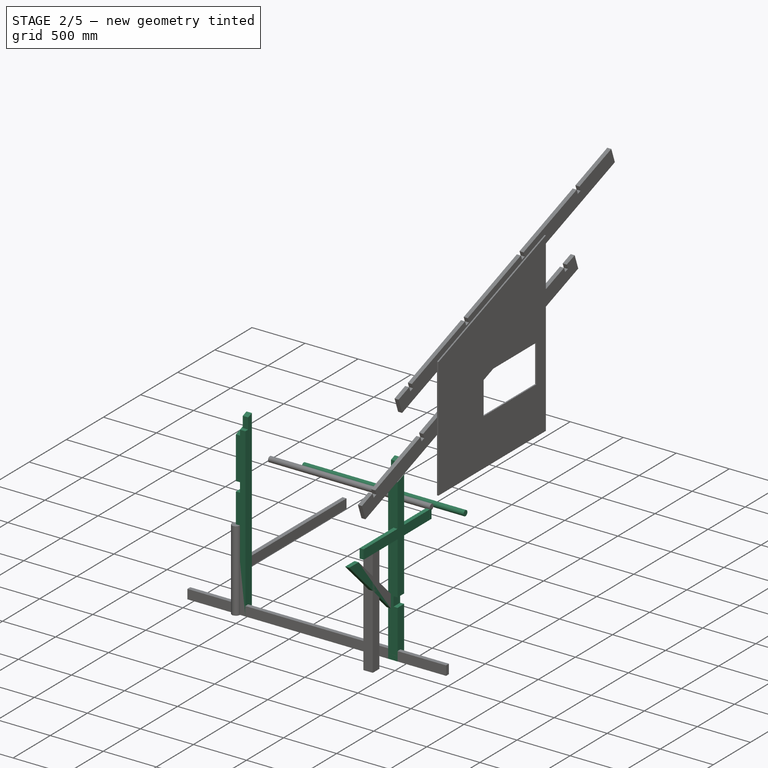
[diagram: stage 2 of 5 — iso view after this stage's code; geometry added in this stage tinted green]
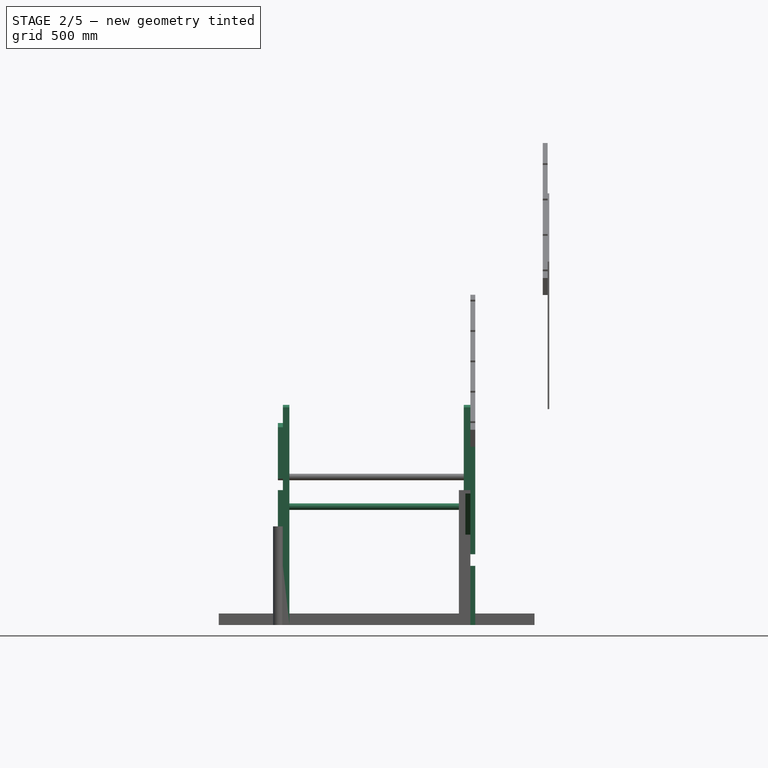
[diagram: stage 2 of 5 — front view after this stage's code; geometry added in this stage tinted green]
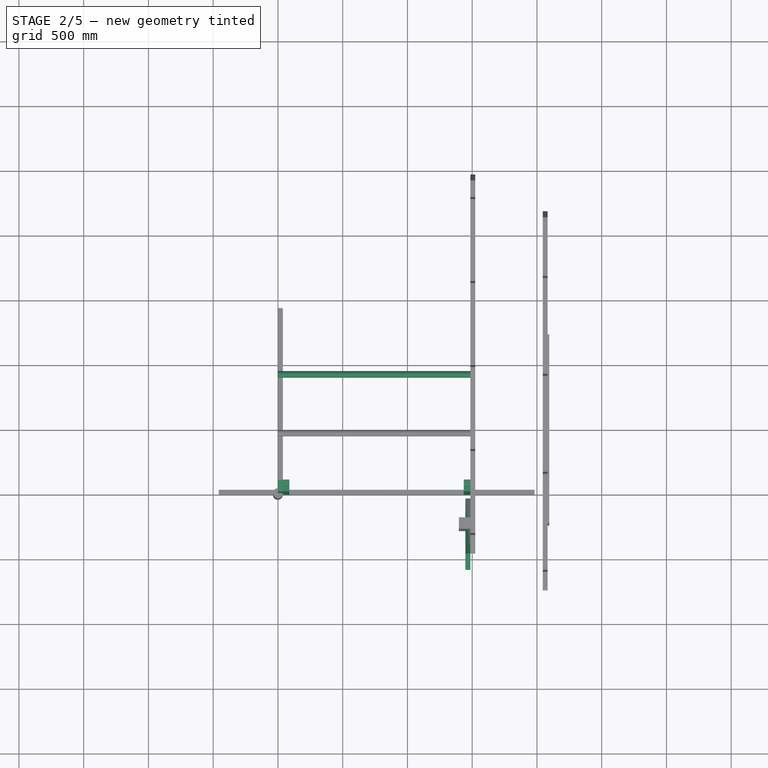
[diagram: stage 2 of 5 — top view after this stage's code; geometry added in this stage tinted green]
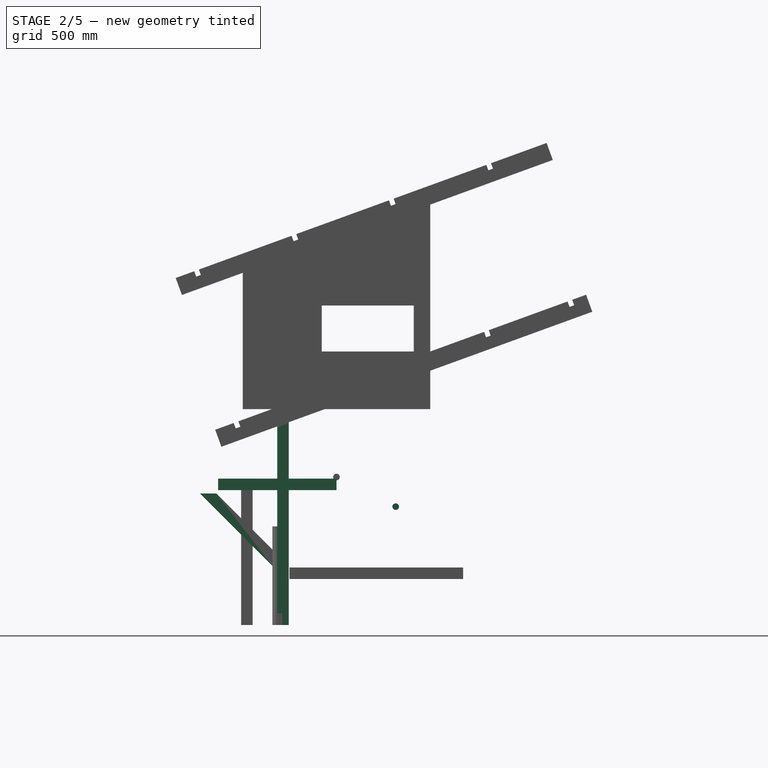
[diagram: stage 2 of 5 — right view after this stage's code; geometry added in this stage tinted green]
FEATURE [Part::Box] Box002  label="SWpost"
  Height = 2438.4
  Length = 88.9
  Placement = pos=(1435.1,0,0) rot=(0,0,1;0rad)
  Width = 88.9
FEATURE [Sketcher::SketchObject] Sketch
  Placement = pos=(1435.1,0,0) rot=(1,0,0;1.5708rad)
  Support = -> Box002 [Face3]
  sketch-geometry (4):
    g0: LineSegment StartX=88.9 StartY=546.1 StartZ=0 EndX=88.9 EndY=457.2 EndZ=0
    g1: LineSegment StartX=88.9 StartY=546.1 StartZ=0 EndX=50.8 EndY=546.1 EndZ=0
    g2: LineSegment StartX=50.8 StartY=546.1 StartZ=0 EndX=50.8 EndY=457.2 EndZ=0
    g3: LineSegment StartX=50.8 StartY=457.2 StartZ=0 EndX=88.9 EndY=457.2 EndZ=0
  constraints (12):
    c: Vertical(g0)
    c: DistanceY(g0,g0) = 88.9
    c: DistanceX(g0) = 88.9
    c: DistanceY(g0) = 457.2
    c: Coincident(g0,g1)
    c: Horizontal(g1)
    c: Coincident(g1,g2)
    c: Vertical(g2)
    c: Coincident(g2,g3)
    c: Coincident(g3,g0)
    c: Horizontal(g3)
    c: DistanceX(g1,g1) = 38.1
FEATURE [PartDesign::Pocket] Pocket  label="SWpost2"
  Length = 4.99999
  Placement = pos=(1435.1,0,0) rot=(0,0,1;0rad)
  Sketch = -> Sketch
  Type = 1
FEATURE [Part::Mirroring] Part__Mirroring001  label="SWpost2 (Mirror #2)"
  Base = (762,0,0)
  Normal = (1,0,0)
  Source = -> Pocket
FEATURE [Sketcher::SketchObject] Sketch007
  Placement = pos=(88.9,0,0) rot=(0.57735,0.57735,0.57735;2.0944rad)
  Support = -> Part__Mirroring001 [Face1]
  sketch-geometry (4):
    g0: LineSegment StartX=0 StartY=1667.25 StartZ=0 EndX=0 EndY=2438.4 EndZ=0
    g1: LineSegment StartX=0 StartY=2438.4 StartZ=0 EndX=88.9 EndY=2438.4 EndZ=0
    g2: LineSegment StartX=88.9 StartY=2438.4 StartZ=0 EndX=88.9 EndY=1699.6 EndZ=0
    g3: LineSegment StartX=88.9 StartY=1699.6 StartZ=0 EndX=0 EndY=1667.25 EndZ=0
  constraints (12):
    c: Vertical(g0)
    c: Coincident(g0,g1)
    c: Horizontal(g1)
    c: Coincident(g1,g2)
    c: Vertical(g2)
    c: Coincident(g2,g3)
    c: PointOnObject(g3,g-2)
    c: Coincident(g0,g3)
    c: Angle(g-1,g3) = 0.349066
    c: DistanceY(g0) = 1667.25
    c: DistanceX(g1,g1) = 88.9
    c: DistanceY(g-1,g0) = 2438.4
FEATURE [PartDesign::Pocket] Pocket006
  Length = 4.99999
  Sketch = -> Sketch007
  Type = 1
FEATURE [Sketcher::SketchObject] Sketch008
  Placement = pos=(1524,0,0) rot=(0.57735,0.57735,0.57735;2.0944rad)
  Support = -> Pocket [Face10]
  sketch-geometry (4):
    g0: LineSegment StartX=0 StartY=1667.25 StartZ=0 EndX=0 EndY=2438.4 EndZ=0
    g1: LineSegment StartX=0 StartY=2438.4 StartZ=0 EndX=88.9 EndY=2438.4 EndZ=0
    g2: LineSegment StartX=88.9 StartY=2438.4 StartZ=0 EndX=88.9 EndY=1699.6 EndZ=0
    g3: LineSegment StartX=88.9 StartY=1699.6 StartZ=0 EndX=0 EndY=1667.25 EndZ=0
  constraints (12):
    c: Vertical(g0)
    c: Coincident(g0,g1)
    c: Horizontal(g1)
    c: Coincident(g1,g2)
    c: Vertical(g2)
    c: Coincident(g2,g3)
    c: Coincident(g3,g0)
    c: DistanceX(g0) = 0
    c: DistanceY(g0) = 1667.25
    c: DistanceX(g1,g1) = 88.9
    c: DistanceY(g-1,g0) = 2438.4
    c: Angle(g-1,g3) = 0.349066
FEATURE [PartDesign::Pocket] Pocket007
  Length = 4.99999
  Placement = pos=(1435.1,0,0) rot=(0,0,1;0rad)
  Sketch = -> Sketch008
  Type = 1
FEATURE [Sketcher::SketchObject] Sketch011
  Placement = pos=(1524,0,0) rot=(0.57735,0.57735,0.57735;2.0944rad)
  Support = -> Pocket007 [Face10]
  sketch-geometry (4):
    g0: LineSegment StartX=0 StartY=1667.25 StartZ=0 EndX=88.9 EndY=1699.61 EndZ=0
    g1: LineSegment StartX=88.9 StartY=1699.61 StartZ=0 EndX=88.9 EndY=1559.91 EndZ=0
    g2: LineSegment StartX=88.9 StartY=1559.91 StartZ=0 EndX=0 EndY=1527.55 EndZ=0
    g3: LineSegment StartX=0 StartY=1527.55 StartZ=0 EndX=0 EndY=1667.25 EndZ=0
  constraints (12):
    c: Coincident(g0,g1)
    c: Vertical(g1)
    c: Coincident(g1,g2)
    c: Coincident(g2,g3)
    c: Coincident(g3,g0)
    c: Vertical(g3)
    c: DistanceX(g2) = 0
    c: DistanceY(g2) = 1527.55
    c: DistanceX(g0,g0) = 88.9
    c: DistanceY(g3,g3) = 139.7
    c: Equal(g0,g2)
    c: Angle(g-1,g2) = 0.349066
FEATURE [PartDesign::Pocket] Pocket010
  Length = 38.1
  Placement = pos=(1435.1,0,0) rot=(0,0,1;0rad)
  Sketch = -> Sketch011
  Type = 0
FEATURE [Sketcher::SketchObject] Sketch013
  Placement = pos=(0,0,0) rot=(0.57735,-0.57735,-0.57735;2.0944rad)
  Support = -> Pocket006 [Face10]
  sketch-geometry (4):
    g0: LineSegment StartX=-88.9 StartY=1699.61 StartZ=0 EndX=-88.9 EndY=1559.91 EndZ=0
    g1: LineSegment StartX=-88.9 StartY=1559.91 StartZ=0 EndX=0 EndY=1527.55 EndZ=0
    g2: LineSegment StartX=0 StartY=1527.55 StartZ=0 EndX=0 EndY=1667.25 EndZ=0
    g3: LineSegment StartX=0 StartY=1667.25 StartZ=0 EndX=-88.9 EndY=1699.61 EndZ=0
  constraints (12):
    c: Coincident(g0,g1)
    c: Coincident(g1,g2)
    c: Vertical(g2)
    c: Coincident(g2,g3)
    c: Coincident(g3,g0)
    c: Vertical(g0)
    c: DistanceY(g0,g0) = 139.7
    c: DistanceX(g0) = -88.9
    c: Angle(g-1,g1) = 2.79253
    c: DistanceX(g0,g2) = 88.9
    c: Equal(g1,g3)
    c: DistanceY(g-1,g1) = 1527.55
FEATURE [PartDesign::Pocket] Pocket012
  Length = 38.1
  Sketch = -> Sketch013
  Type = 0
FEATURE [Sketcher::SketchObject] Sketch017
  Placement = pos=(88.9,0,0) rot=(0.57735,0.57735,0.57735;2.0944rad)
  Support = -> Pocket012 [Face1]
  sketch-geometry (4):
    g0: LineSegment StartX=0 StartY=1689.74 StartZ=0 EndX=38.1 EndY=1689.74 EndZ=0
    g1: LineSegment StartX=38.1 StartY=1689.74 StartZ=0 EndX=38.1 EndY=1577.97 EndZ=0
    g2: LineSegment StartX=38.1 StartY=1577.97 StartZ=0 EndX=0 EndY=1577.97 EndZ=0
    g3: LineSegment StartX=0 StartY=1577.97 StartZ=0 EndX=0 EndY=1689.74 EndZ=0
  constraints (12):
    c: Coincident(g0,g1)
    c: Coincident(g1,g2)
    c: Coincident(g2,g3)
    c: Coincident(g3,g0)
    c: Horizontal(g0)
    c: Horizontal(g2)
    c: Vertical(g1)
    c: Vertical(g3)
    c: DistanceX(g2) = 0
    c: DistanceY(g2) = 1577.97
    c: DistanceY(g1,g1) = 111.76
    c: DistanceX(g0,g0) = 38.1
FEATURE [PartDesign::Pocket] Pocket014
  Length = 4.99999
  Sketch = -> Sketch017
  Type = 1
FEATURE [Sketcher::SketchObject] Sketch020
  Placement = pos=(1435.1,0,0) rot=(0.57735,-0.57735,-0.57735;2.0944rad)
  Support = -> Pocket010 [Face1]
  sketch-geometry (4):
    g0: LineSegment StartX=0 StartY=1577.97 StartZ=0 EndX=-38.1 EndY=1577.97 EndZ=0
    g1: LineSegment StartX=-38.1 StartY=1577.97 StartZ=0 EndX=-38.1 EndY=1692.28 EndZ=0
    g2: LineSegment StartX=-38.1 StartY=1692.28 StartZ=0 EndX=0 EndY=1692.28 EndZ=0
    g3: LineSegment StartX=0 StartY=1692.28 StartZ=0 EndX=0 EndY=1577.97 EndZ=0
  constraints (12):
    c: Coincident(g0,g1)
    c: Coincident(g1,g2)
    c: Coincident(g2,g3)
    c: Coincident(g3,g0)
    c: Horizontal(g0)
    c: Horizontal(g2)
    c: Vertical(g1)
    c: Vertical(g3)
    c: DistanceX(g0) = 0
    c: DistanceY(g0) = 1577.97
    c: DistanceX(g2,g2) = 38.1
    c: DistanceY(g1,g1) = 114.3
FEATURE [PartDesign::Pocket] Pocket017
  Length = 4.99999
  Placement = pos=(1435.1,0,0) rot=(0,0,1;0rad)
  Sketch = -> Sketch020
  Type = 1
FEATURE [Part::Feature] Box017001  label="SummerSolbeam"
  Placement = pos=(-0.0700618,1404.2,687.218) rot=(1,0,0;1.02974rad)
  shape: bbox 10 x 1186 x 1965 mm, 6 faces (baked)
FEATURE [Part::Cylinder] Cylinder002  label="Perch2"
  Angle = 360
  Height = 1524
  Placement = pos=(0,914.4,914.4) rot=(0,1,0;1.5708rad)
  Radius = 25.4
FEATURE [Sketcher::SketchObject] Sketch033
  Placement = pos=(1524,0,0) rot=(0.57735,0.57735,0.57735;2.0944rad)
  Support = -> Pocket017 [Face12]
  sketch-geometry (4):
    g0: LineSegment StartX=0 StartY=1130.3 StartZ=0 EndX=88.9 EndY=1130.3 EndZ=0
    g1: LineSegment StartX=88.9 StartY=1130.3 StartZ=0 EndX=88.9 EndY=1041.4 EndZ=0
    g2: LineSegment StartX=88.9 StartY=1041.4 StartZ=0 EndX=0 EndY=1041.4 EndZ=0
    g3: LineSegment StartX=0 StartY=1041.4 StartZ=0 EndX=0 EndY=1130.3 EndZ=0
  constraints (12):
    c: Coincident(g0,g1)
    c: Coincident(g1,g2)
    c: Coincident(g2,g3)
    c: Coincident(g3,g0)
    c: Horizontal(g0)
    c: Horizontal(g2)
    c: Vertical(g1)
    c: Vertical(g3)
    c: DistanceY(g3,g3) = 88.9
    c: DistanceX(g0,g0) = 88.9
    c: DistanceX(g0) = 0
    c: DistanceY(g0) = 1130.3
FEATURE [PartDesign::Pocket] Pocket023
  Length = 38.1
  Placement = pos=(1435.1,0,0) rot=(0,0,1;0rad)
  Sketch = -> Sketch033
  Type = 0
FEATURE [Sketcher::SketchObject] Sketch034
  Placement = pos=(0,0,0) rot=(0.57735,-0.57735,-0.57735;2.0944rad)
  Support = -> Pocket014 [Face12]
  sketch-geometry (4):
    g0: LineSegment StartX=0 StartY=1130.3 StartZ=0 EndX=-88.9 EndY=1130.3 EndZ=0
    g1: LineSegment StartX=-88.9 StartY=1130.3 StartZ=0 EndX=-88.9 EndY=1041.4 EndZ=0
    g2: LineSegment StartX=-88.9 StartY=1041.4 StartZ=0 EndX=0 EndY=1041.4 EndZ=0
    g3: LineSegment StartX=0 StartY=1041.4 StartZ=0 EndX=0 EndY=1130.3 EndZ=0
  constraints (12):
    c: Coincident(g0,g1)
    c: Coincident(g1,g2)
    c: Coincident(g2,g3)
    c: Coincident(g3,g0)
    c: Horizontal(g0)
    c: Horizontal(g2)
    c: Vertical(g1)
    c: Vertical(g3)
    c: DistanceY(g3,g3) = 88.9
    c: DistanceX(g0,g0) = 88.9
    c: DistanceX(g0) = 0
    c: DistanceY(g0) = 1130.3
FEATURE [PartDesign::Pocket] Pocket024
  Length = 38.1
  Sketch = -> Sketch034
  Type = 0
FEATURE [Part::Box] Box017002  label="Cube003"
  Height = 88.9
  Length = 38.1
  Placement = pos=(0,-457.2,1041.4) rot=(0,0,1;0rad)
  Width = 914.4
FEATURE [Part::Mirroring] Part__Mirroring007  label="Cube003 (Mirror #8)"
  Base = (762,0,0)
  Normal = (1,0,0)
  Source = -> Box017002
FEATURE [Part::Mirroring] Part__Mirroring008  label="Pad005001003 (Mirror #9)"
  Base = (762,0,0)
  Normal = (1,0,0)
  Source = -> Pad005001003
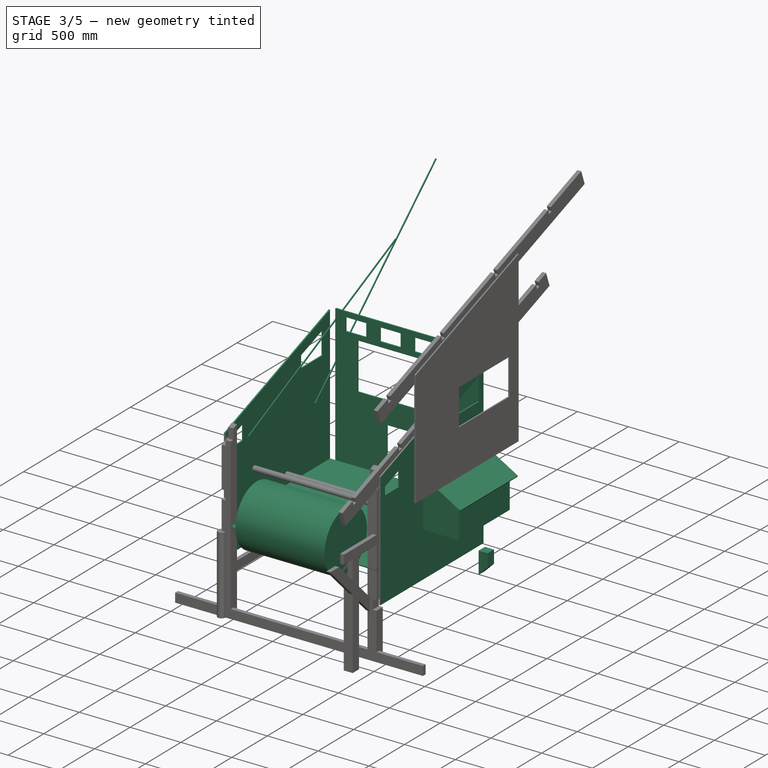
[diagram: stage 3 of 5 — iso view after this stage's code; geometry added in this stage tinted green]
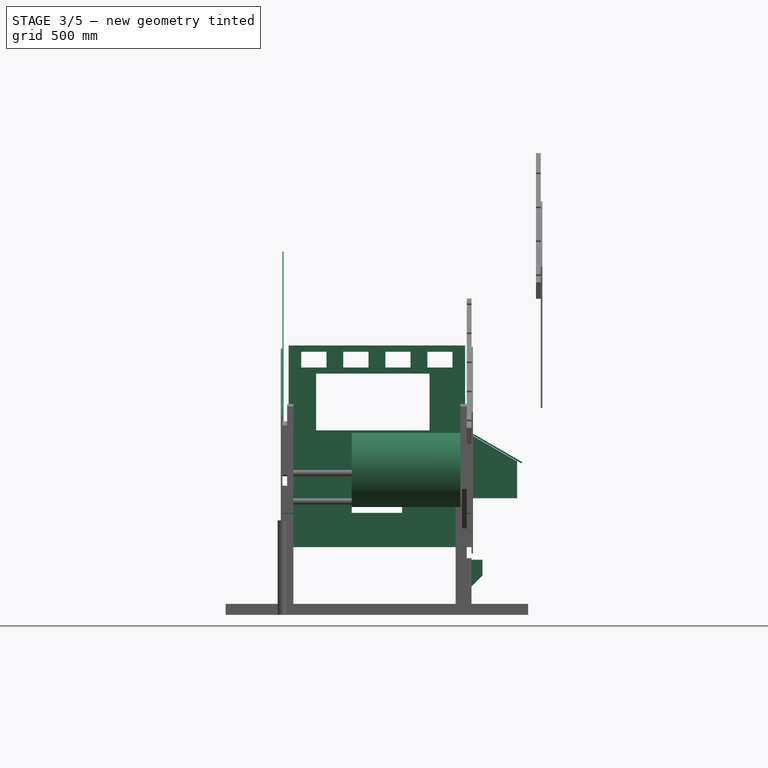
[diagram: stage 3 of 5 — front view after this stage's code; geometry added in this stage tinted green]
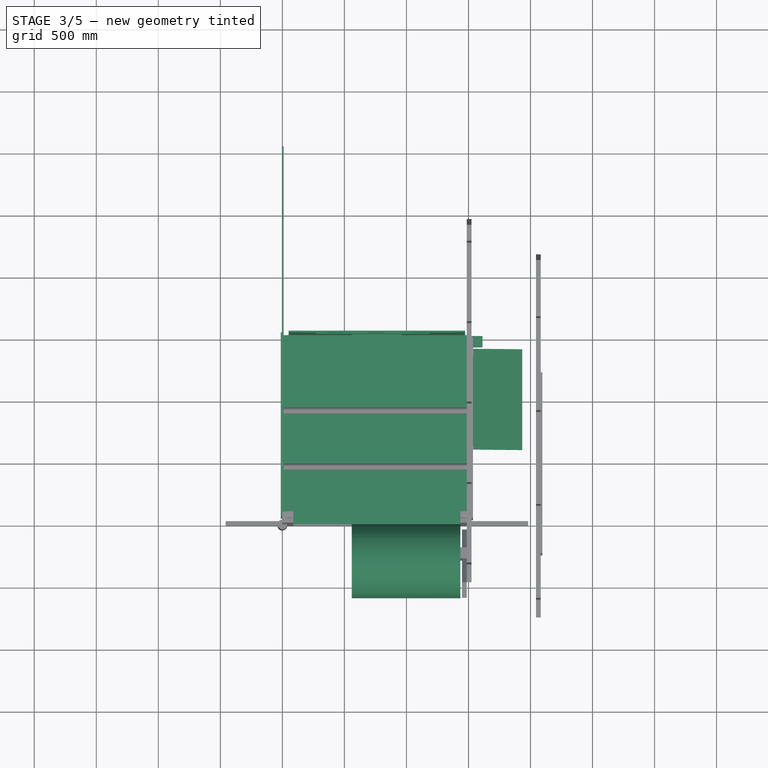
[diagram: stage 3 of 5 — top view after this stage's code; geometry added in this stage tinted green]
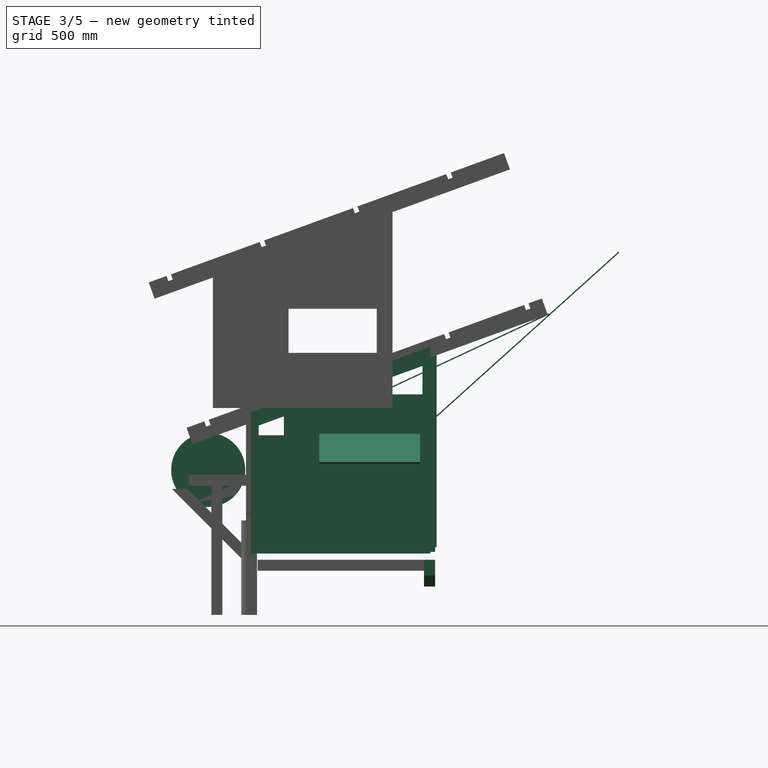
[diagram: stage 3 of 5 — right view after this stage's code; geometry added in this stage tinted green]
FEATURE [Sketcher::SketchObject] Sketch022
  Placement = pos=(0,0,0) rot=(0.57735,0.57735,0.57735;2.0944rad)
  sketch-geometry (4):
    g0: LineSegment StartX=1524 StartY=508 StartZ=0 EndX=1524 EndY=2146.3 EndZ=0
    g1: LineSegment StartX=1524 StartY=2146.3 StartZ=0 EndX=50.8 EndY=1610.1 EndZ=0
    g2: LineSegment StartX=50.8 StartY=1610.1 StartZ=0 EndX=50.8 EndY=508 EndZ=0
    g3: LineSegment StartX=50.8 StartY=508 StartZ=0 EndX=1524 EndY=508 EndZ=0
  constraints (12):
    c: Vertical(g0)
    c: Coincident(g0,g1)
    c: Coincident(g1,g2)
    c: Vertical(g2)
    c: Coincident(g2,g3)
    c: Horizontal(g3)
    c: Coincident(g0,g3)
    c: DistanceX(g0) = 1524
    c: DistanceY(g0) = 508
    c: DistanceX(g3,g3) = 1473.2
    c: Angle(g3,g1) = 0.349066
    c: DistanceY(g0,g0) = 1638.3
FEATURE [PartDesign::Pad] Pad003
  Length = 12.7
  Length2 = 100
  Placement = pos=(0,0,0) rot=(0.57735,0.57735,0.57735;2.0944rad)
  Reversed = true
  Sketch = -> Sketch022
  Type = 0
FEATURE [Sketcher::SketchObject] Sketch023
  Placement = pos=(0,1524,0) rot=(1,0,0;1.5708rad)
  sketch-geometry (12):
    g0: LineSegment StartX=1473.2 StartY=2171.7 StartZ=0 EndX=50.8 EndY=2171.7 EndZ=0
    g1: LineSegment StartX=50.8 StartY=2171.7 StartZ=0 EndX=50.8 EndY=546.1 EndZ=0
    g2: LineSegment StartX=50.8 StartY=546.1 StartZ=0 EndX=1473.2 EndY=546.1 EndZ=0
    g3: LineSegment StartX=1473.2 StartY=546.1 StartZ=0 EndX=1473.2 EndY=2171.7 EndZ=0
    g4: LineSegment StartX=965.2 StartY=1270 StartZ=0 EndX=558.8 EndY=1270 EndZ=0
    g5: LineSegment StartX=558.8 StartY=1270 StartZ=0 EndX=558.8 EndY=812.8 EndZ=0
    g6: LineSegment StartX=558.8 StartY=812.8 StartZ=0 EndX=965.2 EndY=812.8 EndZ=0
    g7: LineSegment StartX=965.2 StartY=812.8 StartZ=0 EndX=965.2 EndY=1270 EndZ=0
    g8: LineSegment StartX=1185.97 StartY=1944.96 StartZ=0 EndX=271.569 EndY=1944.96 EndZ=0
    g9: LineSegment StartX=271.569 StartY=1944.96 StartZ=0 EndX=271.569 EndY=1487.76 EndZ=0
    g10: LineSegment StartX=271.569 StartY=1487.76 StartZ=0 EndX=1185.97 EndY=1487.76 EndZ=0
    g11: LineSegment StartX=1185.97 StartY=1487.76 StartZ=0 EndX=1185.97 EndY=1944.96 EndZ=0
  constraints (36):
    c: Coincident(g0,g1)
    c: Coincident(g1,g2)
    c: Coincident(g2,g3)
    c: Coincident(g3,g0)
    c: Horizontal(g0)
    c: Horizontal(g2)
    c: Vertical(g1)
    c: Vertical(g3)
    c: DistanceX(g3) = 1473.2
    c: DistanceY(g3) = 546.1
    c: DistanceX(g0,g0) = 1422.4
    c: DistanceY(g3,g3) = 1625.6
    c: Coincident(g4,g5)
    c: Coincident(g5,g6)
    c: Coincident(g6,g7)
    c: Coincident(g7,g4)
    c: Horizontal(g4)
    c: Horizontal(g6)
    c: Vertical(g5)
    c: Vertical(g7)
    c: DistanceY(g5,g5) = 457.2
    c: DistanceX(g4,g4) = 406.4
    c: DistanceY(g3,g6) = 266.7
    c: Coincident(g8,g9)
    c: Coincident(g9,g10)
    c: Coincident(g10,g11)
    c: Coincident(g11,g8)
    c: Horizontal(g8)
    c: Horizontal(g10)
    c: Vertical(g9)
    c: Vertical(g11)
    c: DistanceX(g10,g10) = 914.4
    c: DistanceY(g11,g11) = 457.2
    c: DistanceX(g10,g3) = 1201.63
    c: DistanceY(g3,g10) = 941.658
    c: DistanceX(g7,g3) = 508
FEATURE [PartDesign::Pad] Pad004
  Length = 12.7
  Length2 = 100
  Placement = pos=(0,1524,0) rot=(1,0,0;1.5708rad)
  Reversed = true
  Sketch = -> Sketch023
  Type = 0
FEATURE [Sketcher::SketchObject] Sketch024
  Placement = pos=(0,1536.7,0) rot=(-1,0,0;1.5708rad)
  Support = -> Pad004 [Face14]
  sketch-geometry (4):
    g0: LineSegment StartX=355.6 StartY=-2120.9 StartZ=0 EndX=152.4 EndY=-2120.9 EndZ=0
    g1: LineSegment StartX=152.4 StartY=-2120.9 StartZ=0 EndX=152.4 EndY=-1993.9 EndZ=0
    g2: LineSegment StartX=152.4 StartY=-1993.9 StartZ=0 EndX=355.6 EndY=-1993.9 EndZ=0
    g3: LineSegment StartX=355.6 StartY=-1993.9 StartZ=0 EndX=355.6 EndY=-2120.9 EndZ=0
  constraints (12):
    c: Coincident(g0,g1)
    c: Coincident(g1,g2)
    c: Coincident(g2,g3)
    c: Coincident(g3,g0)
    c: Horizontal(g0)
    c: Horizontal(g2)
    c: Vertical(g1)
    c: Vertical(g3)
    c: DistanceY(g3,g3) = 127
    c: DistanceX(g2,g2) = 203.2
    c: DistanceX(g0) = 152.4
    c: DistanceY(g0) = -2120.9
FEATURE [PartDesign::Pocket] Pocket019
  Length = 4.99999
  Placement = pos=(0,1524,0) rot=(1,0,0;1.5708rad)
  Sketch = -> Sketch024
  Type = 1
FEATURE [PartDesign::LinearPattern] LinearPattern001
  Direction = -> Sketch024 [H_Axis]
  Length = 1016
  Occurrences = 4
  Originals = -> [Pocket019]
  Placement = pos=(0,1524,0) rot=(1,0,0;1.5708rad)
FEATURE [Sketcher::SketchObject] Sketch025
  Placement = pos=(1536.7,0,0) rot=(0.57735,0.57735,0.57735;2.0944rad)
  Support = -> Pad001 [Face10]
  sketch-geometry (8):
    g0: LineSegment StartX=1422.4 StartY=2006.6 StartZ=0 EndX=1422.4 EndY=1778 EndZ=0
    g1: LineSegment StartX=1422.4 StartY=1778 StartZ=0 EndX=1117.6 EndY=1778 EndZ=0
    g2: LineSegment StartX=1117.6 StartY=1895.66 StartZ=0 EndX=1422.4 EndY=2006.6 EndZ=0
    g3: LineSegment StartX=1117.6 StartY=1778 StartZ=0 EndX=1117.6 EndY=1895.66 EndZ=0
    g4: LineSegment StartX=304.8 StartY=1600.2 StartZ=0 EndX=304.8 EndY=1447.8 EndZ=0
    g5: LineSegment StartX=304.8 StartY=1447.8 StartZ=0 EndX=101.6 EndY=1447.8 EndZ=0
    g6: LineSegment StartX=101.6 StartY=1447.8 StartZ=0 EndX=101.6 EndY=1526.24 EndZ=0
    g7: LineSegment StartX=101.6 StartY=1526.24 StartZ=0 EndX=304.8 EndY=1600.2 EndZ=0
  constraints (24):
    c: Vertical(g0)
    c: Coincident(g0,g1)
    c: Horizontal(g1)
    c: Coincident(g2,g0)
    c: Angle(g1,g2) = 0.349066
    c: DistanceX(g0) = 1422.4
    c: DistanceY(g0) = 1778
    c: DistanceY(g0,g0) = 228.6
    c: Vertical(g3)
    c: Coincident(g1,g3)
    c: Coincident(g2,g3)
    c: DistanceX(g1,g1) = 304.8
    c: Vertical(g4)
    c: Coincident(g4,g5)
    c: Horizontal(g5)
    c: Coincident(g5,g6)
    c: Vertical(g6)
    c: Coincident(g6,g7)
    c: Coincident(g7,g4)
    c: Angle(g5,g7) = 0.349066
    c: DistanceX(g5,g5) = 203.2
    c: DistanceY(g4,g4) = 152.4
    c: DistanceX(g4) = 304.8
    c: DistanceY(g4) = 1447.8
FEATURE [PartDesign::Pocket] Pocket020
  Length = 4.99999
  Placement = pos=(1524,0,0) rot=(0.57735,0.57735,0.57735;2.0944rad)
  Sketch = -> Sketch025
  Type = 1
FEATURE [Sketcher::SketchObject] Sketch026
  Placement = pos=(-12.7,0,0) rot=(0.57735,0.57735,-0.57735;4.18879rad)
  Support = -> Pad003 [Face6]
  sketch-geometry (8):
    g0: LineSegment StartX=1422.4 StartY=-1778 StartZ=0 EndX=1422.4 EndY=-2006.6 EndZ=0
    g1: LineSegment StartX=1422.4 StartY=-2006.6 StartZ=0 EndX=1117.6 EndY=-1895.66 EndZ=0
    g2: LineSegment StartX=1117.6 StartY=-1895.66 StartZ=0 EndX=1117.6 EndY=-1778 EndZ=0
    g3: LineSegment StartX=1117.6 StartY=-1778 StartZ=0 EndX=1422.4 EndY=-1778 EndZ=0
    g4: LineSegment StartX=101.6 StartY=-1526.24 StartZ=0 EndX=304.8 EndY=-1600.2 EndZ=0
    g5: LineSegment StartX=304.8 StartY=-1600.2 StartZ=0 EndX=304.8 EndY=-1447.8 EndZ=0
    g6: LineSegment StartX=304.8 StartY=-1447.8 StartZ=0 EndX=101.6 EndY=-1447.8 EndZ=0
    g7: LineSegment StartX=101.6 StartY=-1447.8 StartZ=0 EndX=101.6 EndY=-1526.24 EndZ=0
  constraints (24):
    c: Vertical(g0)
    c: Coincident(g0,g1)
    c: Coincident(g1,g2)
    c: Vertical(g2)
    c: Coincident(g2,g3)
    c: Coincident(g3,g0)
    c: Horizontal(g3)
    c: DistanceY(g0,g0) = 228.6
    c: DistanceX(g3,g3) = 304.8
    c: Angle(g1,g3) = 0.349066
    c: DistanceX(g0) = 1422.4
    c: DistanceY(g0) = -1778
    c: Coincident(g4,g5)
    c: Coincident(g5,g6)
    c: Coincident(g6,g7)
    c: Coincident(g7,g4)
    c: Vertical(g7)
    c: Vertical(g5)
    c: Horizontal(g6)
    c: Angle(g4,g6) = 0.349066
    c: DistanceY(g5,g5) = 152.4
    c: DistanceX(g6,g6) = 203.2
    c: DistanceX(g5) = 304.8
    c: DistanceY(g5) = -1447.8
FEATURE [PartDesign::Pocket] Pocket021
  Length = 4.99999
  Placement = pos=(0,0,0) rot=(0.57735,0.57735,0.57735;2.0944rad)
  Sketch = -> Sketch026
  Type = 1
FEATURE [Sketcher::SketchObject] Sketch027
  Placement = pos=(0,647.7,0) rot=(1,0,0;1.5708rad)
  sketch-geometry (4):
    g0: LineSegment StartX=1524 StartY=939.8 StartZ=0 EndX=1879.6 EndY=939.8 EndZ=0
    g1: LineSegment StartX=1879.6 StartY=939.8 StartZ=0 EndX=1879.6 EndY=1244.6 EndZ=0
    g2: LineSegment StartX=1879.6 StartY=1244.6 StartZ=0 EndX=1524 EndY=1449.91 EndZ=0
    g3: LineSegment StartX=1524 StartY=1449.91 StartZ=0 EndX=1524 EndY=939.8 EndZ=0
  constraints (12):
    c: Coincident(g0,g1)
    c: Coincident(g1,g2)
    c: Coincident(g2,g3)
    c: Coincident(g0,g3)
    c: Horizontal(g0)
    c: Vertical(g3)
    c: Vertical(g1)
    c: DistanceX(g0,g0) = 355.6
    c: DistanceX(g0) = 1524
    c: DistanceY(g0) = 939.8
    c: DistanceY(g1,g1) = 304.8
    c: Angle(g2,g0) = 0.523599
FEATURE [PartDesign::Pad] Pad005
  Length = 12.7
  Length2 = 100
  Placement = pos=(0,647.7,0) rot=(1,0,0;1.5708rad)
  Sketch = -> Sketch027
  Type = 0
FEATURE [Sketcher::SketchObject] Sketch028
  Placement = pos=(0,0,939.8) rot=(0,0,1;0rad)
  sketch-geometry (4):
    g0: LineSegment StartX=1879.6 StartY=635 StartZ=0 EndX=1524 EndY=635 EndZ=0
    g1: LineSegment StartX=1524 StartY=635 StartZ=0 EndX=1524 EndY=1358.9 EndZ=0
    g2: LineSegment StartX=1524 StartY=1358.9 StartZ=0 EndX=1879.6 EndY=1358.9 EndZ=0
    g3: LineSegment StartX=1879.6 StartY=1358.9 StartZ=0 EndX=1879.6 EndY=635 EndZ=0
  constraints (12):
    c: Coincident(g0,g1)
    c: Coincident(g1,g2)
    c: Coincident(g2,g3)
    c: Coincident(g3,g0)
    c: Horizontal(g0)
    c: Horizontal(g2)
    c: Vertical(g1)
    c: Vertical(g3)
    c: DistanceY(g3,g3) = 723.9
    c: DistanceX(g2,g2) = 355.6
    c: DistanceX(g0) = 1524
    c: DistanceY(g0) = 635
FEATURE [PartDesign::Pad] Pad006
  Length = 12.7
  Length2 = 100
  Placement = pos=(0,0,939.8) rot=(0,0,1;0rad)
  Sketch = -> Sketch028
  Type = 0
FEATURE [Sketcher::SketchObject] Sketch029
  Placement = pos=(0,590.55,0) rot=(1,0,0;1.5708rad)
  sketch-geometry (4):
    g0: LineSegment StartX=1538.01 StartY=1445.67 StartZ=0 EndX=1927.61 EndY=1220.73 EndZ=0
    g1: LineSegment StartX=1927.61 StartY=1220.73 StartZ=0 EndX=1933.96 EndY=1231.73 EndZ=0
    g2: LineSegment StartX=1933.96 StartY=1231.73 StartZ=0 EndX=1538.01 EndY=1460.33 EndZ=0
    g3: LineSegment StartX=1538.01 StartY=1460.33 StartZ=0 EndX=1538.01 EndY=1445.67 EndZ=0
  constraints (12):
    c: Coincident(g0,g1)
    c: Coincident(g1,g2)
    c: Coincident(g2,g3)
    c: Coincident(g3,g0)
    c: Distance(g2) = 457.2
    c: Perpendicular(g1,g2)
    c: Angle(g3,g2) = 1.0472
    c: DistanceX(g0) = 1538.01
    c: DistanceY(g0) = 1445.67
    c: Distance(g1) = 12.7
    c: Parallel(g0,g2)
    c: Angle(g-2,g2) = 1.0472
FEATURE [PartDesign::Pad] Pad007
  Length = 812.8
  Length2 = 100
  Placement = pos=(0,590.55,0) rot=(1,0,0;1.5708rad)
  Reversed = true
  Sketch = -> Sketch029
  Type = 0
FEATURE [Sketcher::SketchObject] Sketch030
  Placement = pos=(0,635,0) rot=(1,0,0;1.5708rad)
  sketch-geometry (4):
    g0: LineSegment StartX=1879.6 StartY=939.8 StartZ=0 EndX=1879.6 EndY=1244.6 EndZ=0
    g1: LineSegment StartX=1879.6 StartY=1244.6 StartZ=0 EndX=1892.3 EndY=1237.27 EndZ=0
    g2: LineSegment StartX=1892.3 StartY=1237.27 StartZ=0 EndX=1892.3 EndY=939.8 EndZ=0
    g3: LineSegment StartX=1892.3 StartY=939.8 StartZ=0 EndX=1879.6 EndY=939.8 EndZ=0
  constraints (12):
    c: Vertical(g0)
    c: Coincident(g0,g1)
    c: Coincident(g1,g2)
    c: Vertical(g2)
    c: Coincident(g2,g3)
    c: Coincident(g3,g0)
    c: Horizontal(g3)
    c: DistanceX(g3,g3) = 12.7
    c: DistanceX(g0) = 1879.6
    c: DistanceY(g0) = 939.8
    c: DistanceY(g0,g0) = 304.8
    c: Angle(g0,g1) = 1.0472
FEATURE [PartDesign::Pad] Pad008
  Length = 711.199
  Length2 = 100
  Placement = pos=(0,635,0) rot=(1,0,0;1.5708rad)
  Reversed = true
  Sketch = -> Sketch030
  Type = 0
FEATURE [Sketcher::SketchObject] Sketch032
  Placement = pos=(0,0,0) rot=(1,0,0;1.5708rad)
  sketch-geometry (4):
    g0: LineSegment StartX=1524 StartY=444.5 StartZ=0 EndX=1612.9 EndY=444.5 EndZ=0
    g1: LineSegment StartX=1612.9 StartY=444.5 StartZ=0 EndX=1612.9 EndY=317.5 EndZ=0
    g2: LineSegment StartX=1612.9 StartY=317.5 StartZ=0 EndX=1524 EndY=228.6 EndZ=0
    g3: LineSegment StartX=1524 StartY=228.6 StartZ=0 EndX=1524 EndY=444.5 EndZ=0
  constraints (12):
    c: Horizontal(g0)
    c: Coincident(g0,g1)
    c: Vertical(g1)
    c: Coincident(g1,g2)
    c: Coincident(g2,g3)
    c: Coincident(g3,g0)
    c: Vertical(g3)
    c: DistanceX(g0,g0) = 88.9
    c: DistanceX(g0) = 1524
    c: DistanceY(g0) = 444.5
    c: Angle(g2,g3) = 0.785398
    c: DistanceY(g1,g1) = 127
FEATURE [PartDesign::Pad] Pad005001002
  Length = 88.9
  Length2 = 100
  Placement = pos=(0,0,0) rot=(1,0,0;1.5708rad)
  Reversed = true
  Sketch = -> Sketch032
  Type = 0
FEATURE [Part::Mirroring] Part__Mirroring006  label="Pad005001002 (Mirror #7)"
  Base = (0,762,0)
  Normal = (0,1,0)
  Source = -> Pad005001002
FEATURE [Part::Box] Box015  label="MaxLitterHeight"
  Height = 10
  Length = 1524
  Placement = pos=(0,0,812.8) rot=(0,0,1;0rad)
  Width = 1524
FEATURE [Part::Cylinder] Cylinder  label="Rainwater barrel"
  Angle = 360
  Height = 876.3
  Placement = pos=(558.8,-304.8,1168.4) rot=(0,1,0;1.5708rad)
  Radius = 298.45
FEATURE [Part::Box] Box016  label="WinterSolbeam"
  Height = 10
  Length = 10
  Placement = pos=(-0.0268203,372.049,1455.64) rot=(1,0,0;0.436332rad)
  Width = 2286
FEATURE [Part::Box] Box017  label="FalEqbeam"
  Height = 10
  Length = 10
  Placement = pos=(-0.0248899,1310.07,1390.77) rot=(1,0,0;0.733038rad)
  Width = 2286
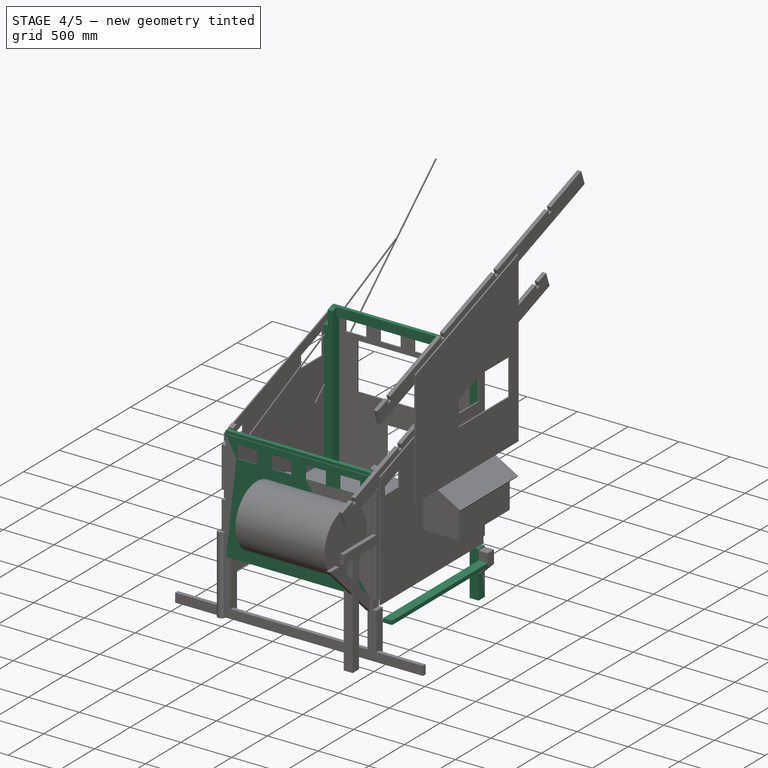
[diagram: stage 4 of 5 — iso view after this stage's code; geometry added in this stage tinted green]
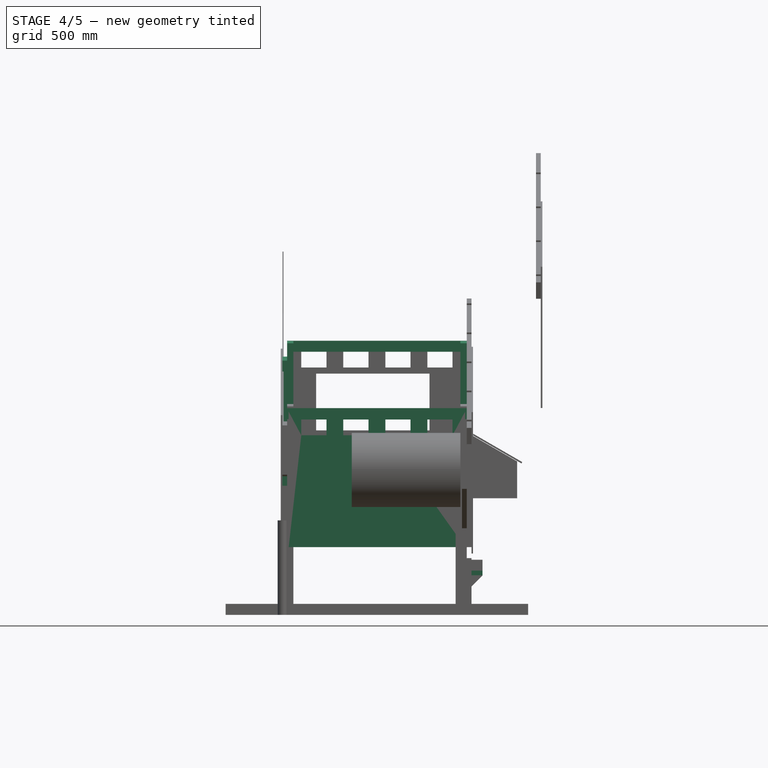
[diagram: stage 4 of 5 — front view after this stage's code; geometry added in this stage tinted green]
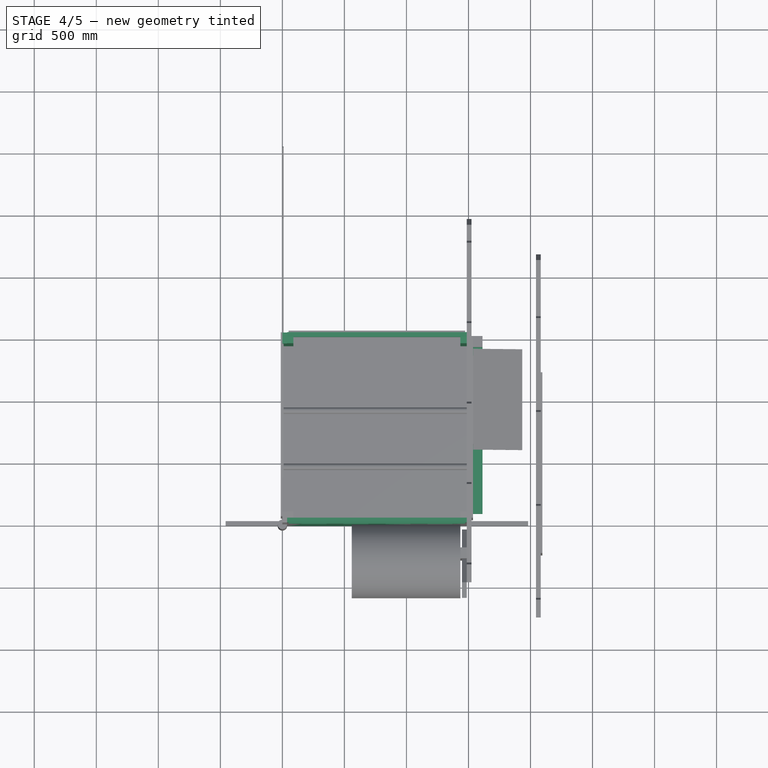
[diagram: stage 4 of 5 — top view after this stage's code; geometry added in this stage tinted green]
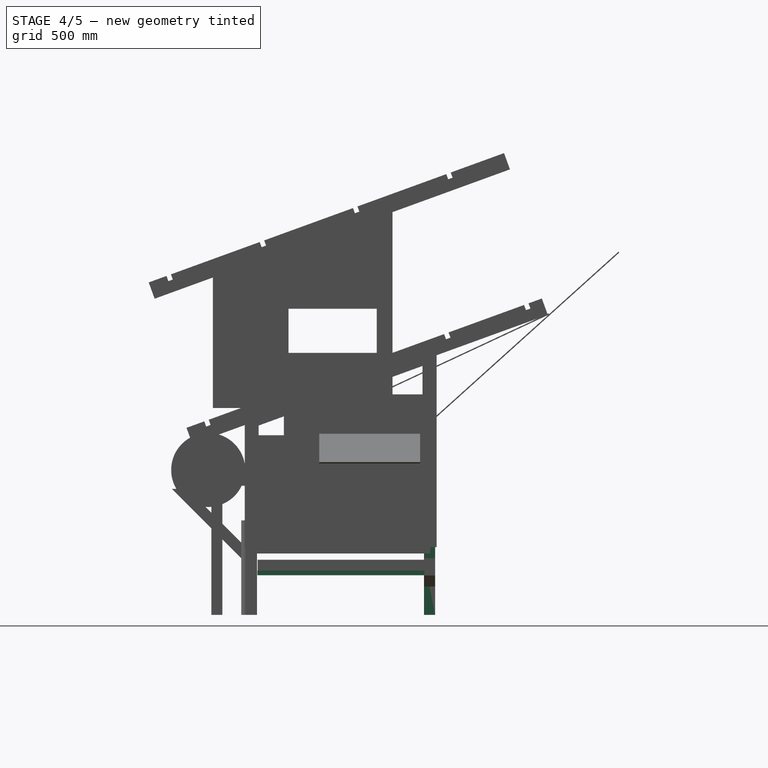
[diagram: stage 4 of 5 — right view after this stage's code; geometry added in this stage tinted green]
FEATURE [Part::Box] Box006  label="SWpost005"
  Height = 2438.4
  Length = 88.9
  Placement = pos=(1435.1,1435.1,0) rot=(0,0,1;0rad)
  Width = 88.9
FEATURE [Sketcher::SketchObject] Sketch003
  Placement = pos=(1435.1,1435.1,0) rot=(1,0,0;1.5708rad)
  Support = -> Box006 [Face3]
  sketch-geometry (4):
    g0: LineSegment StartX=88.9 StartY=546.1 StartZ=0 EndX=88.9 EndY=457.2 EndZ=0
    g1: LineSegment StartX=88.9 StartY=546.1 StartZ=0 EndX=50.8 EndY=546.1 EndZ=0
    g2: LineSegment StartX=50.8 StartY=546.1 StartZ=0 EndX=50.8 EndY=457.2 EndZ=0
    g3: LineSegment StartX=50.8 StartY=457.2 StartZ=0 EndX=88.9 EndY=457.2 EndZ=0
  constraints (12):
    c: Vertical(g0)
    c: DistanceY(g0,g0) = 88.9
    c: DistanceX(g0) = 88.9
    c: DistanceY(g0) = 457.2
    c: Coincident(g0,g1)
    c: Horizontal(g1)
    c: Coincident(g1,g2)
    c: Vertical(g2)
    c: Coincident(g2,g3)
    c: Coincident(g3,g0)
    c: Horizontal(g3)
    c: DistanceX(g1,g1) = 38.1
FEATURE [PartDesign::Pocket] Pocket003  label="NEpost2"
  Length = 4.99999
  Placement = pos=(1435.1,1435.1,0) rot=(0,0,1;0rad)
  Sketch = -> Sketch003
  Type = 1
FEATURE [Part::Mirroring] Part__Mirroring  label="NWpost003"
  Base = (762,0,0)
  Normal = (1,0,0)
  Source = -> Pocket003
FEATURE [Part::Box] Box011  label="FloorReinforcement"
  Height = 38.1
  Length = 88.9
  Placement = pos=(1524,91.44,319.089) rot=(0,0,1;0rad)
  Width = 1346.2
FEATURE [Sketcher::SketchObject] Sketch009
  Placement = pos=(1524,1435.1,0) rot=(0.57735,0.57735,0.57735;2.0944rad)
  Support = -> Pocket003 [Face10]
  sketch-geometry (4):
    g0: LineSegment StartX=88.9 StartY=2221.94 StartZ=0 EndX=88.9 EndY=2438.4 EndZ=0
    g1: LineSegment StartX=88.9 StartY=2438.4 StartZ=0 EndX=0 EndY=2438.4 EndZ=0
    g2: LineSegment StartX=0 StartY=2438.4 StartZ=0 EndX=0 EndY=2189.58 EndZ=0
    g3: LineSegment StartX=0 StartY=2189.58 StartZ=0 EndX=88.9 EndY=2221.94 EndZ=0
  constraints (12):
    c: Vertical(g0)
    c: Coincident(g0,g1)
    c: Coincident(g1,g2)
    c: Vertical(g2)
    c: Coincident(g2,g3)
    c: Coincident(g3,g0)
    c: DistanceX(g1,g1) = 88.9
    c: Horizontal(g1)
    c: DistanceX(g0) = 88.9
    c: DistanceY(g0) = 2221.94
    c: Angle(g-1,g3) = 0.349066
    c: DistanceY(g-1,g1) = 2438.4
FEATURE [PartDesign::Pocket] Pocket008
  Length = 4.99999
  Placement = pos=(1435.1,1435.1,0) rot=(0,0,1;0rad)
  Sketch = -> Sketch009
  Type = 1
FEATURE [Sketcher::SketchObject] Sketch010
  Placement = pos=(0,0,0) rot=(0.57735,-0.57735,-0.57735;2.0944rad)
  Support = -> Part__Mirroring [Face10]
  sketch-geometry (4):
    g0: LineSegment StartX=-1524 StartY=2221.94 StartZ=0 EndX=-1524 EndY=2438.4 EndZ=0
    g1: LineSegment StartX=-1524 StartY=2438.4 StartZ=0 EndX=-1434.09 EndY=2438.4 EndZ=0
    g2: LineSegment StartX=-1434.09 StartY=2438.4 StartZ=0 EndX=-1434.09 EndY=2189.21 EndZ=0
    g3: LineSegment StartX=-1434.09 StartY=2189.21 StartZ=0 EndX=-1524 EndY=2221.94 EndZ=0
  constraints (12):
    c: Vertical(g0)
    c: Coincident(g0,g1)
    c: Coincident(g1,g2)
    c: Coincident(g2,g3)
    c: Coincident(g3,g0)
    c: DistanceX(g1,g1) = 89.916
    c: Horizontal(g1)
    c: Vertical(g2)
    c: DistanceX(g0) = -1524
    c: DistanceY(g0) = 2221.94
    c: Angle(g-1,g3) = 2.79253
    c: DistanceY(g-1,g1) = 2438.4
FEATURE [PartDesign::Pocket] Pocket009
  Length = 4.99999
  Sketch = -> Sketch010
  Type = 1
FEATURE [Sketcher::SketchObject] Sketch012
  Placement = pos=(1524,1435.1,0) rot=(0.57735,0.57735,0.57735;2.0944rad)
  Support = -> Pocket008 [Face10]
  sketch-geometry (4):
    g0: LineSegment StartX=0 StartY=2189.58 StartZ=0 EndX=0 EndY=2049.88 EndZ=0
    g1: LineSegment StartX=0 StartY=2049.88 StartZ=0 EndX=88.9 EndY=2082.24 EndZ=0
    g2: LineSegment StartX=88.9 StartY=2082.24 StartZ=0 EndX=88.9 EndY=2221.94 EndZ=0
    g3: LineSegment StartX=88.9 StartY=2221.94 StartZ=0 EndX=0 EndY=2189.58 EndZ=0
  constraints (12):
    c: Vertical(g0)
    c: Coincident(g0,g1)
    c: Coincident(g1,g2)
    c: Coincident(g2,g3)
    c: Coincident(g3,g0)
    c: DistanceX(g1) = 88.9
    c: DistanceY(g1) = 2082.24
    c: Vertical(g2)
    c: DistanceY(g2,g2) = 139.7
    c: DistanceX(g0,g2) = 88.9
    c: Angle(g-1,g1) = 0.349066
    c: Equal(g3,g1)
FEATURE [PartDesign::Pocket] Pocket011
  Length = 38.1
  Placement = pos=(1435.1,1435.1,0) rot=(0,0,1;0rad)
  Sketch = -> Sketch012
  Type = 0
FEATURE [Sketcher::SketchObject] Sketch014
  Placement = pos=(0,0,0) rot=(0.57735,-0.57735,-0.57735;2.0944rad)
  Support = -> Pocket009 [Face10]
  sketch-geometry (4):
    g0: LineSegment StartX=-1524 StartY=2221.94 StartZ=0 EndX=-1435.1 EndY=2189.58 EndZ=0
    g1: LineSegment StartX=-1435.1 StartY=2189.58 StartZ=0 EndX=-1435.1 EndY=2049.88 EndZ=0
    g2: LineSegment StartX=-1435.1 StartY=2049.88 StartZ=0 EndX=-1524 EndY=2082.24 EndZ=0
    g3: LineSegment StartX=-1524 StartY=2082.24 StartZ=0 EndX=-1524 EndY=2221.94 EndZ=0
  constraints (12):
    c: Coincident(g0,g1)
    c: Vertical(g1)
    c: Coincident(g1,g2)
    c: Coincident(g2,g3)
    c: Coincident(g3,g0)
    c: Vertical(g3)
    c: DistanceY(g3,g3) = 139.7
    c: DistanceX(g2) = -1524
    c: DistanceY(g2) = 2082.24
    c: Angle(g-1,g2) = 2.79253
    c: DistanceX(g0,g0) = 88.9
    c: Equal(g2,g0)
FEATURE [PartDesign::Pocket] Pocket013
  Length = 38.1
  Sketch = -> Sketch014
  Type = 0
FEATURE [Sketcher::SketchObject] Sketch016
  Placement = pos=(0,0,0) rot=(1,0,0;1.5708rad)
  sketch-geometry (4):
    g0: LineSegment StartX=50.8 StartY=1638.3 StartZ=0 EndX=1473.2 EndY=1638.3 EndZ=0
    g1: LineSegment StartX=1473.2 StartY=1638.3 StartZ=0 EndX=1473.2 EndY=546.1 EndZ=0
    g2: LineSegment StartX=1473.2 StartY=546.1 StartZ=0 EndX=50.8 EndY=546.1 EndZ=0
    g3: LineSegment StartX=50.8 StartY=546.1 StartZ=0 EndX=50.8 EndY=1638.3 EndZ=0
  constraints (12):
    c: Coincident(g0,g1)
    c: Coincident(g1,g2)
    c: Coincident(g2,g3)
    c: Coincident(g3,g0)
    c: Horizontal(g0)
    c: Horizontal(g2)
    c: Vertical(g1)
    c: Vertical(g3)
    c: DistanceX(g2) = 50.8
    c: DistanceY(g2) = 546.1
    c: DistanceX(g2,g2) = 1422.4
    c: DistanceY(g1,g1) = 1092.2
FEATURE [Part::Box] Box013  label="NorthRoofBrace"
  Height = 88.9
  Length = 1447.8
  Placement = pos=(38.1,0,1577.97) rot=(0,0,1;0rad)
  Width = 38.1
FEATURE [Sketcher::SketchObject] Sketch018
  Placement = pos=(88.9,0,0) rot=(0.57735,0.57735,0.57735;2.0944rad)
  Support = -> Pocket013 [Face1]
  sketch-geometry (4):
    g0: LineSegment StartX=1485.9 StartY=2120.9 StartZ=0 EndX=1524 EndY=2120.9 EndZ=0
    g1: LineSegment StartX=1524 StartY=2120.9 StartZ=0 EndX=1524 EndY=2222.5 EndZ=0
    g2: LineSegment StartX=1524 StartY=2222.5 StartZ=0 EndX=1485.9 EndY=2222.5 EndZ=0
    g3: LineSegment StartX=1485.9 StartY=2222.5 StartZ=0 EndX=1485.9 EndY=2120.9 EndZ=0
  constraints (12):
    c: Coincident(g0,g1)
    c: Coincident(g1,g2)
    c: Coincident(g2,g3)
    c: Coincident(g3,g0)
    c: Horizontal(g0)
    c: Horizontal(g2)
    c: Vertical(g1)
    c: Vertical(g3)
    c: DistanceY(g1,g1) = 101.6
    c: DistanceX(g0,g0) = 38.1
    c: DistanceX(g0) = 1524
    c: DistanceY(g0) = 2120.9
FEATURE [PartDesign::Pocket] Pocket015
  Length = 4.99999
  Sketch = -> Sketch018
  Type = 1
FEATURE [Sketcher::SketchObject] Sketch019
  Placement = pos=(1435.1,1435.1,0) rot=(0.57735,-0.57735,-0.57735;2.0944rad)
  Support = -> Pocket011 [Face1]
  sketch-geometry (4):
    g0: LineSegment StartX=-88.9 StartY=2222.5 StartZ=0 EndX=-50.8 EndY=2222.5 EndZ=0
    g1: LineSegment StartX=-50.8 StartY=2222.5 StartZ=0 EndX=-50.8 EndY=2120.9 EndZ=0
    g2: LineSegment StartX=-50.8 StartY=2120.9 StartZ=0 EndX=-88.9 EndY=2120.9 EndZ=0
    g3: LineSegment StartX=-88.9 StartY=2120.9 StartZ=0 EndX=-88.9 EndY=2222.5 EndZ=0
  constraints (12):
    c: Coincident(g0,g1)
    c: Coincident(g1,g2)
    c: Coincident(g2,g3)
    c: Coincident(g3,g0)
    c: Horizontal(g0)
    c: Horizontal(g2)
    c: Vertical(g1)
    c: Vertical(g3)
    c: DistanceX(g2) = -88.9
    c: DistanceY(g2) = 2120.9
    c: DistanceX(g0,g0) = 38.1
    c: DistanceY(g1,g1) = 101.6
FEATURE [PartDesign::Pocket] Pocket016
  Length = 4.99999
  Placement = pos=(1435.1,1435.1,0) rot=(0,0,1;0rad)
  Sketch = -> Sketch019
  Type = 1
FEATURE [Part::Box] Box014  label="SouthRoofBrace"
  Height = 88.9
  Length = 1447.8
  Placement = pos=(38.1,1485.9,2120.9) rot=(0,0,1;0rad)
  Width = 38.1
FEATURE [PartDesign::Pad] Pad002
  Length = 10
  Length2 = 100
  Placement = pos=(0,0,0) rot=(1,0,0;1.5708rad)
  Sketch = -> Sketch016
  Type = 0
FEATURE [Sketcher::SketchObject] Sketch021
  Placement = pos=(0,-10,0) rot=(1,0,0;1.5708rad)
  Support = -> Pad002 [Face6]
  sketch-geometry (4):
    g0: LineSegment StartX=152.4 StartY=1574.8 StartZ=0 EndX=355.6 EndY=1574.8 EndZ=0
    g1: LineSegment StartX=355.6 StartY=1574.8 StartZ=0 EndX=355.6 EndY=1447.8 EndZ=0
    g2: LineSegment StartX=355.6 StartY=1447.8 StartZ=0 EndX=152.4 EndY=1447.8 EndZ=0
    g3: LineSegment StartX=152.4 StartY=1447.8 StartZ=0 EndX=152.4 EndY=1574.8 EndZ=0
  constraints (12):
    c: Coincident(g0,g1)
    c: Coincident(g1,g2)
    c: Coincident(g2,g3)
    c: Coincident(g3,g0)
    c: Horizontal(g0)
    c: Horizontal(g2)
    c: Vertical(g1)
    c: Vertical(g3)
    c: DistanceY(g1,g1) = 127
    c: DistanceX(g2,g2) = 203.2
    c: DistanceX(g2) = 152.4
    c: DistanceY(g2) = 1447.8
FEATURE [PartDesign::Pocket] Pocket018
  Length = 4.99999
  Placement = pos=(0,0,0) rot=(1,0,0;1.5708rad)
  Sketch = -> Sketch021
  Type = 1
FEATURE [PartDesign::LinearPattern] LinearPattern  label="NorthWall"
  Direction = -> Sketch021 [H_Axis]
  Length = 1016
  Occurrences = 4
  Originals = -> [Pocket018]
  Placement = pos=(0,0,0) rot=(1,0,0;1.5708rad)
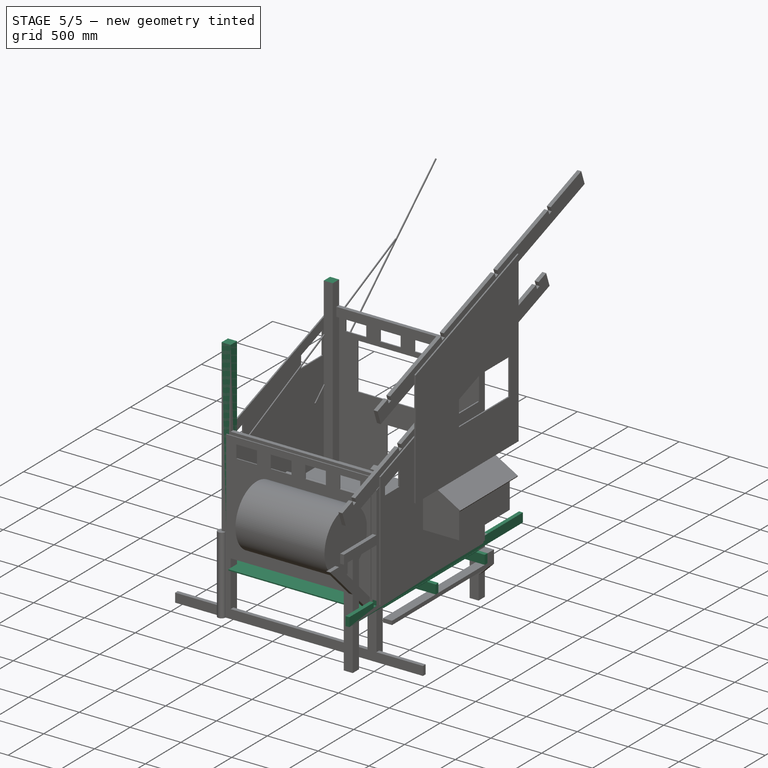
[diagram: stage 5 of 5 — iso view after this stage's code; geometry added in this stage tinted green]
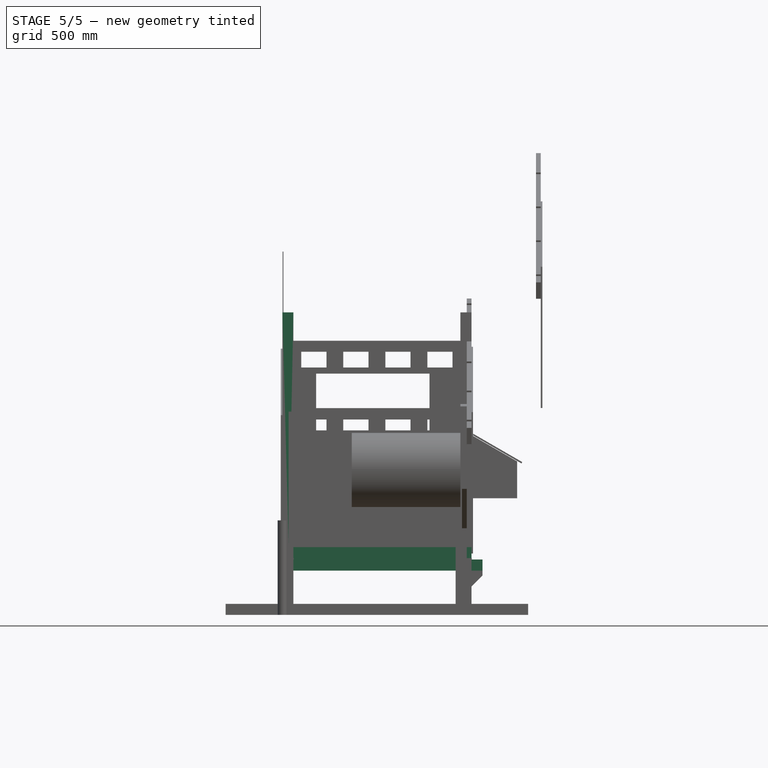
[diagram: stage 5 of 5 — front view after this stage's code; geometry added in this stage tinted green]
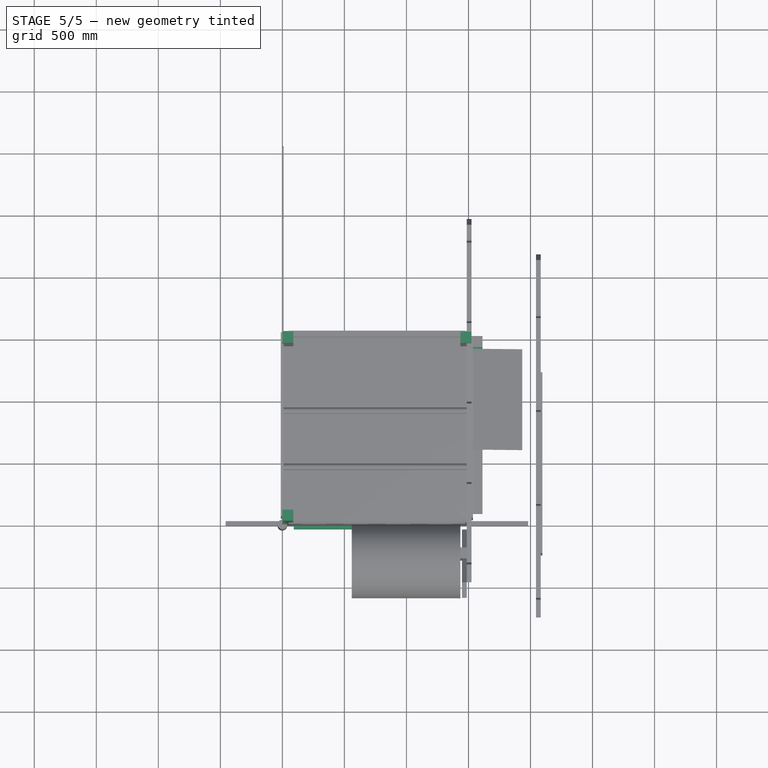
[diagram: stage 5 of 5 — top view after this stage's code; geometry added in this stage tinted green]
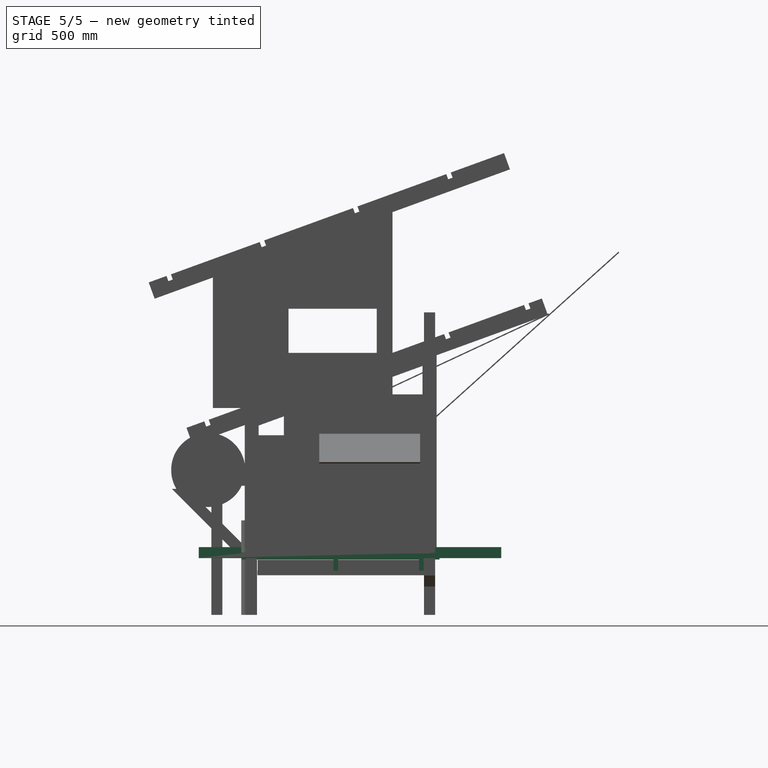
[diagram: stage 5 of 5 — right view after this stage's code; geometry added in this stage tinted green]
FEATURE [Part::Box] Box  label="NWpost"
  Height = 2438.4
  Length = 88.9
  Placement = pos=(1435.1,1435.1,0) rot=(0,0,1;0rad)
  Width = 88.9
FEATURE [Part::Box] Box001  label="NEpost"
  Height = 2438.4
  Length = 88.9
  Placement = pos=(0,1435.1,0) rot=(0,0,1;0rad)
  Width = 88.9
FEATURE [Part::Box] Box003  label="SEpost"
  Height = 2438.4
  Length = 88.9
  Width = 88.9
FEATURE [Sketcher::SketchObject] Sketch001
  Placement = pos=(0,0,0) rot=(1,0,0;1.5708rad)
  Support = -> Box004 [Face3]
  sketch-geometry (4):
    g0: LineSegment StartX=88.9 StartY=546.1 StartZ=0 EndX=88.9 EndY=457.2 EndZ=0
    g1: LineSegment StartX=88.9 StartY=546.1 StartZ=0 EndX=50.8 EndY=546.1 EndZ=0
    g2: LineSegment StartX=50.8 StartY=546.1 StartZ=0 EndX=50.8 EndY=457.2 EndZ=0
    g3: LineSegment StartX=50.8 StartY=457.2 StartZ=0 EndX=88.9 EndY=457.2 EndZ=0
  constraints (12):
    c: Vertical(g0)
    c: DistanceY(g0,g0) = 88.9
    c: DistanceX(g0) = 88.9
    c: DistanceY(g0) = 457.2
    c: Coincident(g0,g1)
    c: Horizontal(g1)
    c: Coincident(g1,g2)
    c: Vertical(g2)
    c: Coincident(g2,g3)
    c: Coincident(g3,g0)
    c: Horizontal(g3)
    c: DistanceX(g1,g1) = 38.1
FEATURE [PartDesign::Pocket] Pocket001  label="SEpost2"
  Length = 4.99999
  Sketch = -> Sketch001
  Type = 1
FEATURE [Part::Box] Box005  label="SWpost004"
  Height = 2438.4
  Length = 88.9
  Placement = pos=(0,1435.1,0) rot=(0,0,1;0rad)
  Width = 88.9
FEATURE [Sketcher::SketchObject] Sketch002
  Placement = pos=(0,1435.1,0) rot=(1,0,0;1.5708rad)
  Support = -> Box005 [Face3]
  sketch-geometry (4):
    g0: LineSegment StartX=88.9 StartY=546.1 StartZ=0 EndX=88.9 EndY=457.2 EndZ=0
    g1: LineSegment StartX=88.9 StartY=546.1 StartZ=0 EndX=50.8 EndY=546.1 EndZ=0
    g2: LineSegment StartX=50.8 StartY=546.1 StartZ=0 EndX=50.8 EndY=457.2 EndZ=0
    g3: LineSegment StartX=50.8 StartY=457.2 StartZ=0 EndX=88.9 EndY=457.2 EndZ=0
  constraints (12):
    c: Vertical(g0)
    c: DistanceY(g0,g0) = 88.9
    c: DistanceX(g0) = 88.9
    c: DistanceY(g0) = 457.2
    c: Coincident(g0,g1)
    c: Horizontal(g1)
    c: Coincident(g1,g2)
    c: Vertical(g2)
    c: Coincident(g2,g3)
    c: Coincident(g3,g0)
    c: Horizontal(g3)
    c: DistanceX(g1,g1) = 38.1
FEATURE [PartDesign::Pocket] Pocket002  label="NWpost2"
  Length = 4.99999
  Placement = pos=(0,1435.1,0) rot=(0,0,1;0rad)
  Sketch = -> Sketch002
  Type = 1
FEATURE [Part::Box] Box007  label="Cube"
  Height = 88.9
  Length = 38.1
  Placement = pos=(0,-381,457.2) rot=(0,0,1;0rad)
  Width = 2438.4
FEATURE [Sketcher::SketchObject] Sketch004
  Placement = pos=(0,-381,457.2) rot=(0.57735,-0.57735,-0.57735;2.0944rad)
  Support = -> Box007 [Face1]
  sketch-geometry (8):
    g0: LineSegment StartX=-381 StartY=88.9 StartZ=0 EndX=-342.9 EndY=88.9 EndZ=0
    g1: LineSegment StartX=-342.9 StartY=88.9 StartZ=0 EndX=-342.9 EndY=44.45 EndZ=0
    g2: LineSegment StartX=-342.9 StartY=44.45 StartZ=0 EndX=-381 EndY=44.45 EndZ=0
    g3: LineSegment StartX=-381 StartY=44.45 StartZ=0 EndX=-381 EndY=88.9 EndZ=0
    g4: LineSegment StartX=-1943.1 StartY=88.9 StartZ=0 EndX=-1905 EndY=88.9 EndZ=0
    g5: LineSegment StartX=-1905 StartY=88.9 StartZ=0 EndX=-1905 EndY=44.45 EndZ=0
    g6: LineSegment StartX=-1905 StartY=44.45 StartZ=0 EndX=-1943.1 EndY=44.45 EndZ=0
    g7: LineSegment StartX=-1943.1 StartY=44.45 StartZ=0 EndX=-1943.1 EndY=88.9 EndZ=0
  constraints (24):
    c: Coincident(g0,g1)
    c: Coincident(g1,g2)
    c: Coincident(g2,g3)
    c: Coincident(g3,g0)
    c: Horizontal(g0)
    c: Horizontal(g2)
    c: Vertical(g1)
    c: Vertical(g3)
    c: Coincident(g4,g5)
    c: Coincident(g5,g6)
    c: Coincident(g6,g7)
    c: Coincident(g7,g4)
    c: Horizontal(g4)
    c: Horizontal(g6)
    c: Vertical(g5)
    c: Vertical(g7)
    c: DistanceX(g0) = -381
    c: DistanceY(g0) = 88.9
    c: DistanceX(g0,g0) = 38.1
    c: DistanceY(g1,g1) = 44.45
    c: DistanceX(g4,g0) = 1524
    c: DistanceX(g4,g4) = 38.1
    c: DistanceY(g7,g7) = 44.45
    c: DistanceY(g-1,g4) = 88.9
FEATURE [PartDesign::Pocket] Pocket004
  Length = 4.99999
  Placement = pos=(0,-381,457.2) rot=(0,0,1;0rad)
  Sketch = -> Sketch004
  Type = 1
FEATURE [Part::Mirroring] Part__Mirroring002  label="EastFloorBeam"
  Base = (762,0,0)
  Normal = (1,0,0)
  Source = -> Pocket004
FEATURE [Part::Box] Box008  label="Cube001"
  Height = 88.9
  Length = 1828.8
  Placement = pos=(-152.4,-38.1,457.2) rot=(0,0,1;0rad)
  Width = 38.1
FEATURE [Sketcher::SketchObject] Sketch005
  Placement = pos=(-152.4,-38.1,457.2) rot=(1,0,0;1.5708rad)
  Support = -> Box008 [Face3]
  sketch-geometry (12):
    g0: LineSegment StartX=190.5 StartY=44.45 StartZ=0 EndX=152.4 EndY=44.45 EndZ=0
    g1: LineSegment StartX=0 StartY=0 StartZ=0 EndX=190.5 EndY=0 EndZ=0
    g2: LineSegment StartX=190.5 StartY=0 StartZ=0 EndX=190.5 EndY=44.45 EndZ=0
    g3: LineSegment StartX=1638.3 StartY=44.45 StartZ=0 EndX=1676.4 EndY=44.45 EndZ=0
    g4: LineSegment StartX=1828.8 StartY=0 StartZ=0 EndX=1638.3 EndY=0 EndZ=0
    g5: LineSegment StartX=1638.3 StartY=0 StartZ=0 EndX=1638.3 EndY=44.45 EndZ=0
    g6: LineSegment StartX=0 StartY=0 StartZ=0 EndX=0 EndY=88.9 EndZ=0
    g7: LineSegment StartX=0 StartY=88.9 StartZ=0 EndX=152.4 EndY=88.9 EndZ=0
    g8: LineSegment StartX=152.4 StartY=88.9 StartZ=0 EndX=152.4 EndY=44.45 EndZ=0
    g9: LineSegment StartX=1828.8 StartY=0 StartZ=0 EndX=1828.8 EndY=88.9 EndZ=0
    g10: LineSegment StartX=1828.8 StartY=88.9 StartZ=0 EndX=1676.4 EndY=88.9 EndZ=0
    g11: LineSegment StartX=1676.4 StartY=88.9 StartZ=0 EndX=1676.4 EndY=44.45 EndZ=0
  constraints (36):
    c: Coincident(g1,g2)
    c: Coincident(g2,g0)
    c: Horizontal(g0)
    c: Horizontal(g1)
    c: Vertical(g2)
    c: Coincident(g4,g5)
    c: Coincident(g5,g3)
    c: Horizontal(g3)
    c: Horizontal(g4)
    c: Vertical(g5)
    c: DistanceX(g0,g3) = 1447.8
    c: DistanceX(g0) = 190.5
    c: DistanceY(g0) = 44.45
    c: DistanceY(g1,g0) = 44.45
    c: DistanceY(g-1,g3) = 44.45
    c: Coincident(g1,g-1)
    c: Coincident(g-1,g6)
    c: Vertical(g6)
    c: Coincident(g6,g7)
    c: Horizontal(g7)
    c: Coincident(g7,g8)
    c: Coincident(g8,g0)
    c: Vertical(g8)
    c: Equal(g1,g4)
    c: DistanceY(g5,g5) = 44.45
    c: Coincident(g4,g9)
    c: Vertical(g9)
    c: Coincident(g9,g10)
    c: Horizontal(g10)
    c: Coincident(g10,g11)
    c: Coincident(g11,g3)
    c: Vertical(g11)
    c: DistanceX(g3,g3) = 38.1
    c: DistanceY(g9,g9) = 88.9
    c: DistanceX(g0,g0) = 38.1
    c: Equal(g6,g9)
FEATURE [PartDesign::Pocket] Pocket005
  Length = 4.99999
  Placement = pos=(-152.4,-38.1,457.2) rot=(0,0,1;0rad)
  Sketch = -> Sketch005
  Type = 1
FEATURE [Part::Mirroring] Part__Mirroring003  label="SouthFloorBeam"
  Base = (0,762,0)
  Normal = (0,1,0)
  Source = -> Pocket005
FEATURE [Sketcher::SketchObject] Sketch006
  Placement = pos=(0,0,446.087) rot=(0,0,1;0rad)
  sketch-geometry (12):
    g0: LineSegment StartX=0 StartY=91.44 StartZ=0 EndX=0 EndY=1432.56 EndZ=0
    g1: LineSegment StartX=0 StartY=1432.56 StartZ=0 EndX=91.44 EndY=1432.56 EndZ=0
    g2: LineSegment StartX=91.44 StartY=1432.56 StartZ=0 EndX=91.44 EndY=1559.56 EndZ=0
    g3: LineSegment StartX=91.44 StartY=1559.56 StartZ=0 EndX=1412.24 EndY=1559.56 EndZ=0
    g4: LineSegment StartX=1412.24 StartY=1559.56 StartZ=0 EndX=1412.24 EndY=1432.56 EndZ=0
    g5: LineSegment StartX=1412.24 StartY=1432.56 StartZ=0 EndX=1526.54 EndY=1432.56 EndZ=0
    g6: LineSegment StartX=1526.54 StartY=1432.56 StartZ=0 EndX=1526.54 EndY=91.44 EndZ=0
    g7: LineSegment StartX=1526.54 StartY=91.44 StartZ=0 EndX=1412.24 EndY=91.44 EndZ=0
    g8: LineSegment StartX=1412.24 StartY=91.44 StartZ=0 EndX=1412.24 EndY=-35.56 EndZ=0
    g9: LineSegment StartX=1412.24 StartY=-35.56 StartZ=0 EndX=91.44 EndY=-35.56 EndZ=0
    g10: LineSegment StartX=91.44 StartY=-35.56 StartZ=0 EndX=91.44 EndY=91.44 EndZ=0
    g11: LineSegment StartX=91.44 StartY=91.44 StartZ=0 EndX=0 EndY=91.44 EndZ=0
  constraints (36):
    c: PointOnObject(g0,g-2)
    c: Vertical(g0)
    c: Coincident(g0,g1)
    c: Horizontal(g1)
    c: Coincident(g1,g2)
    c: Vertical(g2)
    c: Coincident(g2,g3)
    c: Horizontal(g3)
    c: Coincident(g3,g4)
    c: Vertical(g4)
    c: Coincident(g4,g5)
    c: Horizontal(g5)
    c: Coincident(g5,g6)
    c: Vertical(g6)
    c: Coincident(g6,g7)
    c: Horizontal(g7)
    c: Coincident(g8,g9)
    c: Horizontal(g9)
    c: Coincident(g9,g10)
    c: Vertical(g10)
    c: Coincident(g10,g11)
    c: Coincident(g11,g0)
    c: Horizontal(g11)
    c: Vertical(g8)
    c: DistanceY(g0) = 91.44
    c: DistanceX(g11,g11) = 91.44
    c: DistanceY(g10,g10) = 127
    c: DistanceX(g9,g9) = 1320.8
    c: Coincident(g7,g8)
    c: DistanceY(g8,g8) = 127
    c: DistanceX(g7,g7) = 114.3
    c: Equal(g7,g5)
    c: Equal(g10,g2)
    c: Equal(g11,g1)
    c: DistanceY(g0,g0) = 1341.12
    c: Equal(g8,g4)
FEATURE [PartDesign::Pad] Pad
  Length = 11.1125
  Length2 = 100
  Placement = pos=(0,0,446.087) rot=(0,0,1;0rad)
  Sketch = -> Sketch006
  Type = 0
FEATURE [Part::Box] Box009  label="Cube002"
  Height = 88.9
  Length = 1612.9
  Placement = pos=(0,91.44,357.188) rot=(0,0,1;0rad)
  Width = 38.1
FEATURE [Part::Mirroring] Part__Mirroring004  label="FloorSupports"
  Base = (0,762,0)
  Normal = (0,1,0)
  Source = -> Box009
FEATURE [Part::Box] Box010  label="CentreFloorSupport"
  Height = 88.9
  Length = 1612.9
  Placement = pos=(0,704.85,357.188) rot=(0,0,1;0rad)
  Width = 38.1
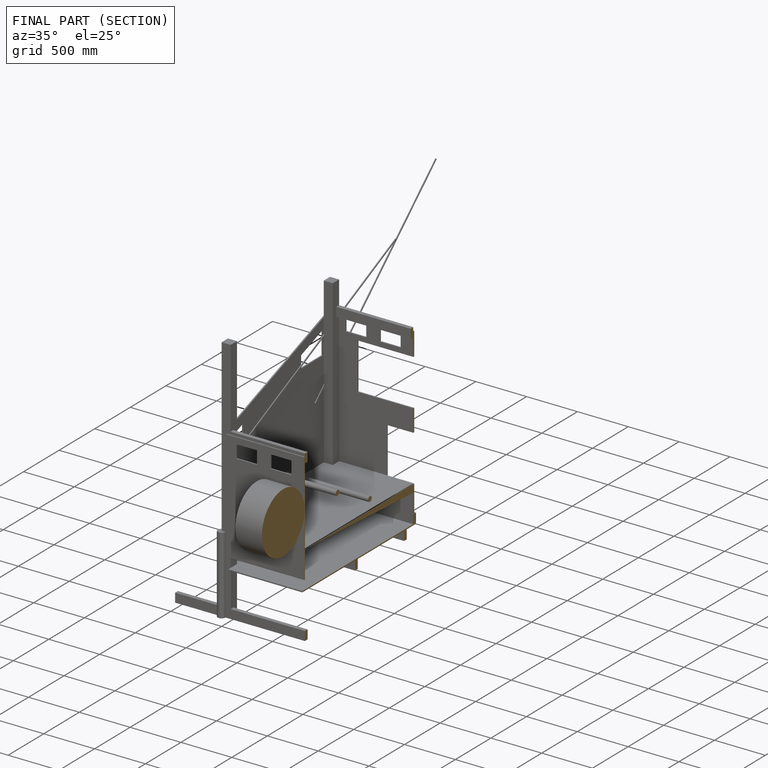
[diagram: finished part — half-section view (interior)]
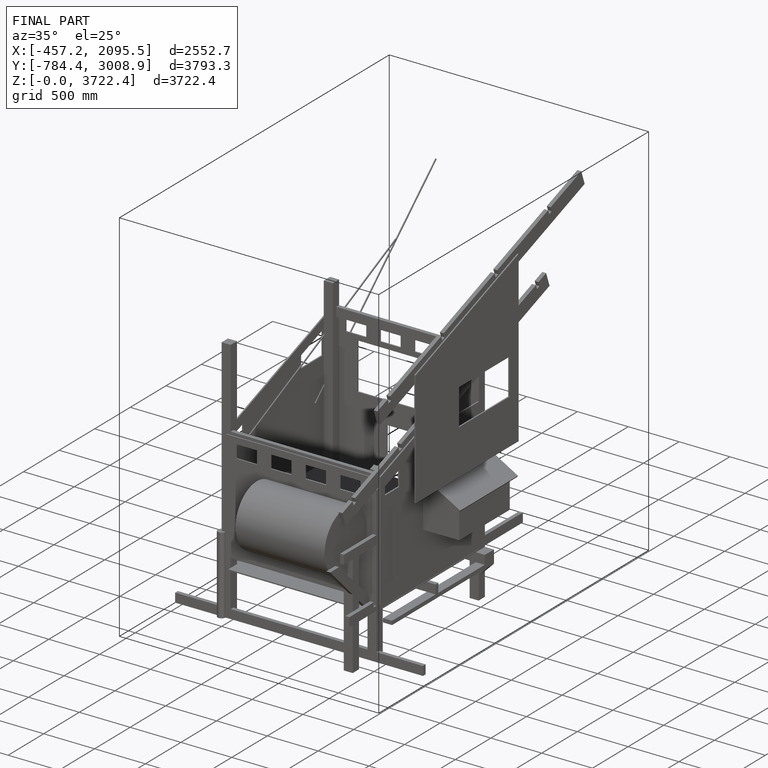
[diagram: finished part — iso view with bounding-box wireframe]
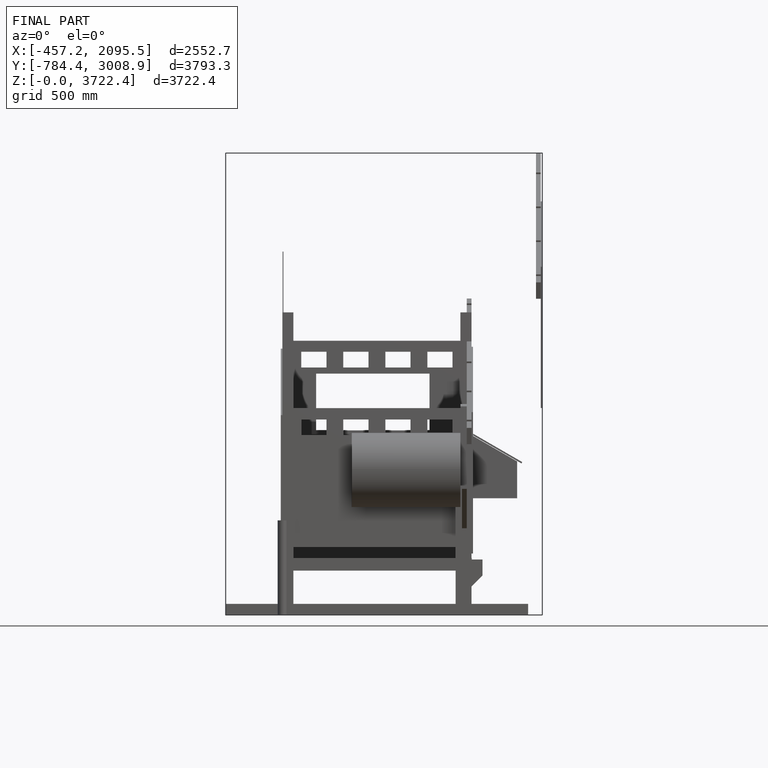
[diagram: finished part — front view with bounding-box wireframe]
